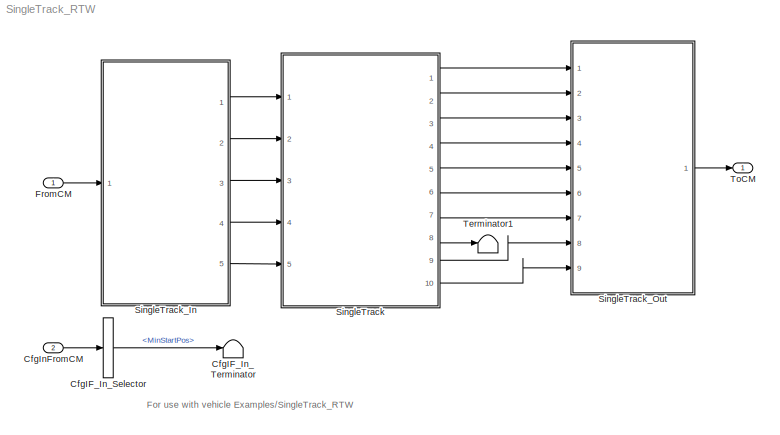
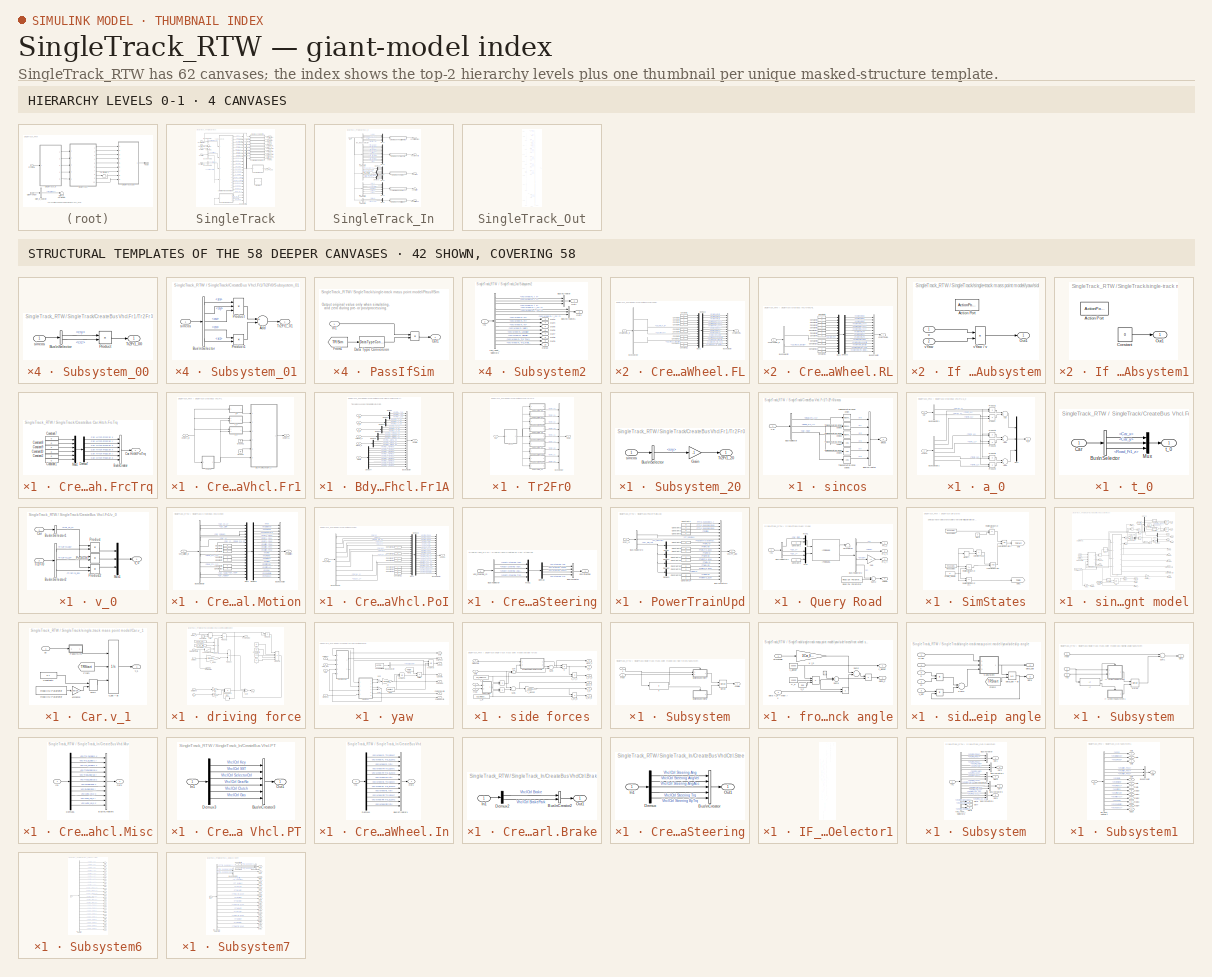
[diagram: thumbnail index - top-2 hierarchy levels (4 canvases) + 42 structural-template representatives of the remaining 58 canvases]
MODEL SingleTrack_RTW
KIND model
CONFIG InitFcn = vehicle = 'Car'; if ~length(which('cmcmd')), cmenv; end\nSingleTrack_RTW_bus
CONFIG PreLoadFcn = vehicle = 'Car'; if ~length(which('cmcmd')), cmenv; end\nSingleTrack_RTW_bus\nSingleTrack_RTW_params
BLOCK [BusSelector] CfgIF_In_Selector
  OutputSignals = MinStartPos
  Ports = [1, 1]
  SID = 9
BLOCK [Terminator] CfgIF_In_Terminator
  SID = 10
BLOCK [Inport] CfgInFromCM
  IconDisplay = Port number
  OutDataTypeStr = Bus: cmVehicle_CarCfgIn
  Port = 2
  SID = 8
BLOCK [Inport] FromCM
  IconDisplay = Port number
  OutDataTypeStr = Bus: cmVehicle_CarIn
  SID = 1
BLOCK [SubSystem] SingleTrack
  Ports = [5, 10]
  RequestExecContextInheritance = off
  SID = 255
  Variant = off
BLOCK [BusCreator] SingleTrack/Bus\nCreator
  DisplayOption = bar
  InheritFromInputs = on
  Inputs = 24
  Ports = [24, 1]
  SID = 261
BLOCK [BusSelector] SingleTrack/Bus\nSelector
  OutputSignals = VhclCtrl Steering Ang
  Ports = [1, 1]
  SID = 262
BLOCK [BusSelector] SingleTrack/Bus\nSelector1
  OutputSignals = VhclCtrl Brake
  Ports = [1, 1]
  SID = 263
BLOCK [BusSelector] SingleTrack/Bus\nSelector2
  OutputSignals = VhclCtrl Gas,VhclCtrl SelectorCtrl
  Ports = [1, 2]
  SID = 264
BLOCK [Outport] SingleTrack/Car.Hitch.FrcTrq
  IconDisplay = Port number
  Port = 8
  SID = 792
BLOCK [SubSystem] SingleTrack/CreateBus Car.Hitch.FrcTrq
  Ports = [0, 1]
  RequestExecContextInheritance = off
  SID = 265
  Variant = off
BLOCK [BusCreator] SingleTrack/CreateBus Car.Hitch.FrcTrq/Bus\nCreator
  DisplayOption = bar
  InheritFromInputs = on
  Inputs = 6
  Ports = [6, 1]
  SID = 266
BLOCK [Outport] SingleTrack/CreateBus Car.Hitch.FrcTrq/Car.Hitch.FrcTrq
  IconDisplay = Port number
  SID = 275
BLOCK [Constant] SingleTrack/CreateBus Car.Hitch.FrcTrq/Constant1
  SID = 267
  Value = 0
BLOCK [Constant] SingleTrack/CreateBus Car.Hitch.FrcTrq/Constant10
  SID = 268
  Value = 0
BLOCK [Constant] SingleTrack/CreateBus Car.Hitch.FrcTrq/Constant2
  SID = 269
  Value = 0
BLOCK [Constant] SingleTrack/CreateBus Car.Hitch.FrcTrq/Constant7
  SID = 270
  Value = 0
BLOCK [Constant] SingleTrack/CreateBus Car.Hitch.FrcTrq/Constant8
  SID = 271
  Value = 0
BLOCK [Constant] SingleTrack/CreateBus Car.Hitch.FrcTrq/Constant9
  SID = 272
  Value = 0
BLOCK [Demux] SingleTrack/CreateBus Car.Hitch.FrcTrq/Demux7
  Outputs = 6
  Ports = [1, 6]
  SID = 273
BLOCK [Mux] SingleTrack/CreateBus Car.Hitch.FrcTrq/Mux1
  DisplayOption = bar
  Inputs = 6
  Ports = [6, 1]
  SID = 274
BLOCK [SubSystem] SingleTrack/CreateBus Vhcl.Fr1
  Ports = [1, 1]
  RequestExecContextInheritance = off
  SID = 276
  Variant = off
BLOCK [SubSystem] SingleTrack/CreateBus Vhcl.Fr1/BdyFrame2Vhcl.Fr1A
  Ports = [6, 1]
  RequestExecContextInheritance = off
  SID = 278
  Variant = off
BLOCK [BusCreator] SingleTrack/CreateBus Vhcl.Fr1/BdyFrame2Vhcl.Fr1A/Bus\nCreator
  DisplayOption = bar
  InheritFromInputs = on
  Inputs = 24
  Ports = [24, 1]
  SID = 285
BLOCK [Demux] SingleTrack/CreateBus Vhcl.Fr1/BdyFrame2Vhcl.Fr1A/Demux
  DisplayOption = bar
  Outputs = 3
  Ports = [1, 3]
  SID = 286
BLOCK [Demux] SingleTrack/CreateBus Vhcl.Fr1/BdyFrame2Vhcl.Fr1A/Demux1
  DisplayOption = bar
  Outputs = 3
  Ports = [1, 3]
  SID = 287
BLOCK [Demux] SingleTrack/CreateBus Vhcl.Fr1/BdyFrame2Vhcl.Fr1A/Demux2
  DisplayOption = bar
  Outputs = 3
  Ports = [1, 3]
  SID = 288
BLOCK [Demux] SingleTrack/CreateBus Vhcl.Fr1/BdyFrame2Vhcl.Fr1A/Demux3
  DisplayOption = bar
  Outputs = 3
  Ports = [1, 3]
  SID = 289
BLOCK [Demux] SingleTrack/CreateBus Vhcl.Fr1/BdyFrame2Vhcl.Fr1A/Demux4
  DisplayOption = bar
  Outputs = 9
  Ports = [1, 9]
  SID = 290
BLOCK [Demux] SingleTrack/CreateBus Vhcl.Fr1/BdyFrame2Vhcl.Fr1A/Demux5
  DisplayOption = bar
  Outputs = 3
  Ports = [1, 3]
  SID = 291
BLOCK [Inport] SingleTrack/CreateBus Vhcl.Fr1/BdyFrame2Vhcl.Fr1A/Tr2Fr0
  IconDisplay = Port number
  Port = 6
  SID = 284
BLOCK [Outport] SingleTrack/CreateBus Vhcl.Fr1/BdyFrame2Vhcl.Fr1A/Vhcl.Fr1
  IconDisplay = Port number
  SID = 292
BLOCK [Inport] SingleTrack/CreateBus Vhcl.Fr1/BdyFrame2Vhcl.Fr1A/a_0
  IconDisplay = Port number
  Port = 3
  SID = 281
BLOCK [Inport] SingleTrack/CreateBus Vhcl.Fr1/BdyFrame2Vhcl.Fr1A/alpha_0
  IconDisplay = Port number
  Port = 5
  SID = 283
BLOCK [Inport] SingleTrack/CreateBus Vhcl.Fr1/BdyFrame2Vhcl.Fr1A/omega_0
  IconDisplay = Port number
  Port = 4
  SID = 282
BLOCK [Inport] SingleTrack/CreateBus Vhcl.Fr1/BdyFrame2Vhcl.Fr1A/t_0
  IconDisplay = Port number
  SID = 279
BLOCK [Inport] SingleTrack/CreateBus Vhcl.Fr1/BdyFrame2Vhcl.Fr1A/v_0
  IconDisplay = Port number
  Port = 2
  SID = 280
BLOCK [Ground] SingleTrack/CreateBus Vhcl.Fr1/Ground
  SID = 294
BLOCK [Ground] SingleTrack/CreateBus Vhcl.Fr1/Ground1
  SID = 295
BLOCK [SubSystem] SingleTrack/CreateBus Vhcl.Fr1/Tr2Fr0
  Ports = [1, 1]
  RequestExecContextInheritance = off
  SID = 296
  Variant = off
BLOCK [BusCreator] SingleTrack/CreateBus Vhcl.Fr1/Tr2Fr0/Bus\nCreator
  DisplayOption = bar
  InheritFromInputs = on
  Inputs = 9
  Ports = [9, 1]
  SID = 298
BLOCK [Inport] SingleTrack/CreateBus Vhcl.Fr1/Tr2Fr0/Car
  IconDisplay = Port number
  SID = 297
BLOCK [SubSystem] SingleTrack/CreateBus Vhcl.Fr1/Tr2Fr0/Subsystem_00
  Ports = [1, 1]
  RequestExecContextInheritance = off
  SID = 299
  Variant = off
BLOCK [BusSelector] SingleTrack/CreateBus Vhcl.Fr1/Tr2Fr0/Subsystem_00/Bus\nSelector
  OutputSignals = cry,crz
  Ports = [1, 2]
  SID = 301
BLOCK [Product] SingleTrack/CreateBus Vhcl.Fr1/Tr2Fr0/Subsystem_00/Product
  InputSameDT = off
  OutDataTypeStr = Inherit: Inherit via internal rule
  Ports = [2, 1]
  SID = 302
  SaturateOnIntegerOverflow = off
BLOCK [Outport] SingleTrack/CreateBus Vhcl.Fr1/Tr2Fr0/Subsystem_00/Tr2Fr1_00
  IconDisplay = Port number
  SID = 303
BLOCK [Inport] SingleTrack/CreateBus Vhcl.Fr1/Tr2Fr0/Subsystem_00/sincos
  IconDisplay = Port number
  SID = 300
BLOCK [SubSystem] SingleTrack/CreateBus Vhcl.Fr1/Tr2Fr0/Subsystem_01
  Ports = [1, 1]
  RequestExecContextInheritance = off
  SID = 304
  Variant = off
BLOCK [Sum] SingleTrack/CreateBus Vhcl.Fr1/Tr2Fr0/Subsystem_01/Add
  InputSameDT = off
  Inputs = +-
  OutDataTypeStr = Inherit: Inherit via internal rule
  Ports = [2, 1]
  SID = 306
  SaturateOnIntegerOverflow = off
BLOCK [BusSelector] SingleTrack/CreateBus Vhcl.Fr1/Tr2Fr0/Subsystem_01/Bus\nSelector
  OutputSignals = srx,sry,crz,crx,srz
  Ports = [1, 5]
  SID = 307
BLOCK [Product] SingleTrack/CreateBus Vhcl.Fr1/Tr2Fr0/Subsystem_01/Product
  InputSameDT = off
  Inputs = 3
  OutDataTypeStr = Inherit: Inherit via internal rule
  Ports = [3, 1]
  SID = 308
  SaturateOnIntegerOverflow = off
BLOCK [Product] SingleTrack/CreateBus Vhcl.Fr1/Tr2Fr0/Subsystem_01/Product1
  InputSameDT = off
  OutDataTypeStr = Inherit: Inherit via internal rule
  Ports = [2, 1]
  SID = 309
  SaturateOnIntegerOverflow = off
BLOCK [Outport] SingleTrack/CreateBus Vhcl.Fr1/Tr2Fr0/Subsystem_01/Tr2Fr1_01
  IconDisplay = Port number
  SID = 310
BLOCK [Inport] SingleTrack/CreateBus Vhcl.Fr1/Tr2Fr0/Subsystem_01/sincos
  IconDisplay = Port number
  SID = 305
BLOCK [SubSystem] SingleTrack/CreateBus Vhcl.Fr1/Tr2Fr0/Subsystem_02
  Ports = [1, 1]
  RequestExecContextInheritance = off
  SID = 311
  Variant = off
BLOCK [Sum] SingleTrack/CreateBus Vhcl.Fr1/Tr2Fr0/Subsystem_02/Add
  InputSameDT = off
  OutDataTypeStr = Inherit: Inherit via internal rule
  Ports = [2, 1]
  SID = 313
  SaturateOnIntegerOverflow = off
BLOCK [BusSelector] SingleTrack/CreateBus Vhcl.Fr1/Tr2Fr0/Subsystem_02/Bus\nSelector
  OutputSignals = crx,sry,crz,srx,srz
  Ports = [1, 5]
  SID = 314
BLOCK [Product] SingleTrack/CreateBus Vhcl.Fr1/Tr2Fr0/Subsystem_02/Product
  InputSameDT = off
  Inputs = 3
  OutDataTypeStr = Inherit: Inherit via internal rule
  Ports = [3, 1]
  SID = 315
  SaturateOnIntegerOverflow = off
BLOCK [Product] SingleTrack/CreateBus Vhcl.Fr1/Tr2Fr0/Subsystem_02/Product1
  InputSameDT = off
  OutDataTypeStr = Inherit: Inherit via internal rule
  Ports = [2, 1]
  SID = 316
  SaturateOnIntegerOverflow = off
BLOCK [Outport] SingleTrack/CreateBus Vhcl.Fr1/Tr2Fr0/Subsystem_02/Tr2Fr1_02
  IconDisplay = Port number
  SID = 317
BLOCK [Inport] SingleTrack/CreateBus Vhcl.Fr1/Tr2Fr0/Subsystem_02/sincos
  IconDisplay = Port number
  SID = 312
BLOCK [SubSystem] SingleTrack/CreateBus Vhcl.Fr1/Tr2Fr0/Subsystem_10
  Ports = [1, 1]
  RequestExecContextInheritance = off
  SID = 318
  Variant = off
BLOCK [BusSelector] SingleTrack/CreateBus Vhcl.Fr1/Tr2Fr0/Subsystem_10/Bus\nSelector
  OutputSignals = cry,srz
  Ports = [1, 2]
  SID = 320
BLOCK [Product] SingleTrack/CreateBus Vhcl.Fr1/Tr2Fr0/Subsystem_10/Product
  InputSameDT = off
  OutDataTypeStr = Inherit: Inherit via internal rule
  Ports = [2, 1]
  SID = 321
  SaturateOnIntegerOverflow = off
BLOCK [Outport] SingleTrack/CreateBus Vhcl.Fr1/Tr2Fr0/Subsystem_10/Tr2Fr1_10
  IconDisplay = Port number
  SID = 322
BLOCK [Inport] SingleTrack/CreateBus Vhcl.Fr1/Tr2Fr0/Subsystem_10/sincos
  IconDisplay = Port number
  SID = 319
BLOCK [SubSystem] SingleTrack/CreateBus Vhcl.Fr1/Tr2Fr0/Subsystem_11
  Ports = [1, 1]
  RequestExecContextInheritance = off
  SID = 323
  Variant = off
BLOCK [Sum] SingleTrack/CreateBus Vhcl.Fr1/Tr2Fr0/Subsystem_11/Add
  InputSameDT = off
  OutDataTypeStr = Inherit: Inherit via internal rule
  Ports = [2, 1]
  SID = 325
  SaturateOnIntegerOverflow = off
BLOCK [BusSelector] SingleTrack/CreateBus Vhcl.Fr1/Tr2Fr0/Subsystem_11/Bus\nSelector
  OutputSignals = srx,sry,srz,crx,crz
  Ports = [1, 5]
  SID = 326
BLOCK [Product] SingleTrack/CreateBus Vhcl.Fr1/Tr2Fr0/Subsystem_11/Product
  InputSameDT = off
  Inputs = 3
  OutDataTypeStr = Inherit: Inherit via internal rule
  Ports = [3, 1]
  SID = 327
  SaturateOnIntegerOverflow = off
BLOCK [Product] SingleTrack/CreateBus Vhcl.Fr1/Tr2Fr0/Subsystem_11/Product1
  InputSameDT = off
  OutDataTypeStr = Inherit: Inherit via internal rule
  Ports = [2, 1]
  SID = 328
  SaturateOnIntegerOverflow = off
BLOCK [Outport] SingleTrack/CreateBus Vhcl.Fr1/Tr2Fr0/Subsystem_11/Tr2Fr1_11
  IconDisplay = Port number
  SID = 329
BLOCK [Inport] SingleTrack/CreateBus Vhcl.Fr1/Tr2Fr0/Subsystem_11/sincos
  IconDisplay = Port number
  SID = 324
BLOCK [SubSystem] SingleTrack/CreateBus Vhcl.Fr1/Tr2Fr0/Subsystem_12
  Ports = [1, 1]
  RequestExecContextInheritance = off
  SID = 330
  Variant = off
BLOCK [Sum] SingleTrack/CreateBus Vhcl.Fr1/Tr2Fr0/Subsystem_12/Add
  InputSameDT = off
  Inputs = +-
  OutDataTypeStr = Inherit: Inherit via internal rule
  Ports = [2, 1]
  SID = 332
  SaturateOnIntegerOverflow = off
BLOCK [BusSelector] SingleTrack/CreateBus Vhcl.Fr1/Tr2Fr0/Subsystem_12/Bus\nSelector
  OutputSignals = crx,sry,srz,srx,crz
  Ports = [1, 5]
  SID = 333
BLOCK [Product] SingleTrack/CreateBus Vhcl.Fr1/Tr2Fr0/Subsystem_12/Product
  InputSameDT = off
  Inputs = 3
  OutDataTypeStr = Inherit: Inherit via internal rule
  Ports = [3, 1]
  SID = 334
  SaturateOnIntegerOverflow = off
BLOCK [Product] SingleTrack/CreateBus Vhcl.Fr1/Tr2Fr0/Subsystem_12/Product1
  InputSameDT = off
  OutDataTypeStr = Inherit: Inherit via internal rule
  Ports = [2, 1]
  SID = 335
  SaturateOnIntegerOverflow = off
BLOCK [Outport] SingleTrack/CreateBus Vhcl.Fr1/Tr2Fr0/Subsystem_12/Tr2Fr1_12
  IconDisplay = Port number
  SID = 336
BLOCK [Inport] SingleTrack/CreateBus Vhcl.Fr1/Tr2Fr0/Subsystem_12/sincos
  IconDisplay = Port number
  SID = 331
BLOCK [SubSystem] SingleTrack/CreateBus Vhcl.Fr1/Tr2Fr0/Subsystem_20
  Ports = [1, 1]
  RequestExecContextInheritance = off
  SID = 337
  Variant = off
BLOCK [BusSelector] SingleTrack/CreateBus Vhcl.Fr1/Tr2Fr0/Subsystem_20/Bus\nSelector
  OutputSignals = sry
  Ports = [1, 1]
  SID = 339
BLOCK [Gain] SingleTrack/CreateBus Vhcl.Fr1/Tr2Fr0/Subsystem_20/Gain
  Gain = -1
  OutDataTypeStr = Inherit: Inherit via internal rule
  ParamDataTypeStr = Inherit: Inherit via internal rule
  SID = 340
  SaturateOnIntegerOverflow = off
BLOCK [Outport] SingleTrack/CreateBus Vhcl.Fr1/Tr2Fr0/Subsystem_20/Tr2Fr1_20
  IconDisplay = Port number
  SID = 341
BLOCK [Inport] SingleTrack/CreateBus Vhcl.Fr1/Tr2Fr0/Subsystem_20/sincos
  IconDisplay = Port number
  SID = 338
BLOCK [SubSystem] SingleTrack/CreateBus Vhcl.Fr1/Tr2Fr0/Subsystem_21
  Ports = [1, 1]
  RequestExecContextInheritance = off
  SID = 342
  Variant = off
BLOCK [BusSelector] SingleTrack/CreateBus Vhcl.Fr1/Tr2Fr0/Subsystem_21/Bus\nSelector
  OutputSignals = srx,cry
  Ports = [1, 2]
  SID = 344
BLOCK [Product] SingleTrack/CreateBus Vhcl.Fr1/Tr2Fr0/Subsystem_21/Product
  InputSameDT = off
  OutDataTypeStr = Inherit: Inherit via internal rule
  Ports = [2, 1]
  SID = 345
  SaturateOnIntegerOverflow = off
BLOCK [Outport] SingleTrack/CreateBus Vhcl.Fr1/Tr2Fr0/Subsystem_21/Tr2Fr1_21
  IconDisplay = Port number
  SID = 346
BLOCK [Inport] SingleTrack/CreateBus Vhcl.Fr1/Tr2Fr0/Subsystem_21/sincos
  IconDisplay = Port number
  SID = 343
BLOCK [SubSystem] SingleTrack/CreateBus Vhcl.Fr1/Tr2Fr0/Subsystem_22
  Ports = [1, 1]
  RequestExecContextInheritance = off
  SID = 347
  Variant = off
BLOCK [BusSelector] SingleTrack/CreateBus Vhcl.Fr1/Tr2Fr0/Subsystem_22/Bus\nSelector
  OutputSignals = crx,cry
  Ports = [1, 2]
  SID = 349
BLOCK [Product] SingleTrack/CreateBus Vhcl.Fr1/Tr2Fr0/Subsystem_22/Product
  InputSameDT = off
  OutDataTypeStr = Inherit: Inherit via internal rule
  Ports = [2, 1]
  SID = 350
  SaturateOnIntegerOverflow = off
BLOCK [Outport] SingleTrack/CreateBus Vhcl.Fr1/Tr2Fr0/Subsystem_22/Tr2Fr1_22
  IconDisplay = Port number
  SID = 351
BLOCK [Inport] SingleTrack/CreateBus Vhcl.Fr1/Tr2Fr0/Subsystem_22/sincos
  IconDisplay = Port number
  SID = 348
BLOCK [Outport] SingleTrack/CreateBus Vhcl.Fr1/Tr2Fr0/Tr2Fr0
  IconDisplay = Port number
  SID = 363
BLOCK [SubSystem] SingleTrack/CreateBus Vhcl.Fr1/Tr2Fr0/sincos
  Ports = [1, 1]
  RequestExecContextInheritance = off
  SID = 352
  Variant = off
BLOCK [BusCreator] SingleTrack/CreateBus Vhcl.Fr1/Tr2Fr0/sincos/Bus\nCreator
  DisplayOption = bar
  InheritFromInputs = on
  Inputs = 6
  Ports = [6, 1]
  SID = 354
BLOCK [BusSelector] SingleTrack/CreateBus Vhcl.Fr1/Tr2Fr0/sincos/Bus\nSelector
  OutputSignals = Road_Fr1_rx,Road_Fr1_ry,Car_Yaw
  Ports = [1, 3]
  SID = 355
BLOCK [Inport] SingleTrack/CreateBus Vhcl.Fr1/Tr2Fr0/sincos/Car
  IconDisplay = Port number
  SID = 353
BLOCK [Trigonometry] SingleTrack/CreateBus Vhcl.Fr1/Tr2Fr0/sincos/Trigonometric\nFunction
  Ports = [1, 1]
  SID = 356
BLOCK [Trigonometry] SingleTrack/CreateBus Vhcl.Fr1/Tr2Fr0/sincos/Trigonometric\nFunction1
  Operator = cos
  Ports = [1, 1]
  SID = 357
BLOCK [Trigonometry] SingleTrack/CreateBus Vhcl.Fr1/Tr2Fr0/sincos/Trigonometric\nFunction2
  Ports = [1, 1]
  SID = 358
BLOCK [Trigonometry] SingleTrack/CreateBus Vhcl.Fr1/Tr2Fr0/sincos/Trigonometric\nFunction3
  Ports = [1, 1]
  SID = 359
BLOCK [Trigonometry] SingleTrack/CreateBus Vhcl.Fr1/Tr2Fr0/sincos/Trigonometric\nFunction4
  Operator = cos
  Ports = [1, 1]
  SID = 360
BLOCK [Trigonometry] SingleTrack/CreateBus Vhcl.Fr1/Tr2Fr0/sincos/Trigonometric\nFunction5
  Operator = cos
  Ports = [1, 1]
  SID = 361
BLOCK [Outport] SingleTrack/CreateBus Vhcl.Fr1/Tr2Fr0/sincos/sincos
  IconDisplay = Port number
  SID = 362
BLOCK [Outport] SingleTrack/CreateBus Vhcl.Fr1/Vhcl.Fr1A
  IconDisplay = Port number
  SID = 395
BLOCK [Inport] SingleTrack/CreateBus Vhcl.Fr1/Vhcl.Fr1_In
  IconDisplay = Port number
  SID = 277
BLOCK [SubSystem] SingleTrack/CreateBus Vhcl.Fr1/a_0
  Ports = [2, 1]
  RequestExecContextInheritance = off
  SID = 364
  Variant = off
BLOCK [Sum] SingleTrack/CreateBus Vhcl.Fr1/a_0/Add
  InputSameDT = off
  OutDataTypeStr = Inherit: Inherit via internal rule
  Ports = [2, 1]
  SID = 367
  SaturateOnIntegerOverflow = off
BLOCK [Sum] SingleTrack/CreateBus Vhcl.Fr1/a_0/Add1
  InputSameDT = off
  OutDataTypeStr = Inherit: Inherit via internal rule
  Ports = [2, 1]
  SID = 368
  SaturateOnIntegerOverflow = off
BLOCK [Sum] SingleTrack/CreateBus Vhcl.Fr1/a_0/Add2
  InputSameDT = off
  OutDataTypeStr = Inherit: Inherit via internal rule
  Ports = [2, 1]
  SID = 369
  SaturateOnIntegerOverflow = off
BLOCK [BusSelector] SingleTrack/CreateBus Vhcl.Fr1/a_0/Bus\nSelector1
  OutputSignals = Car_ax_1,Car_ay_1
  Ports = [1, 2]
  SID = 370
BLOCK [BusSelector] SingleTrack/CreateBus Vhcl.Fr1/a_0/Bus\nSelector2
  OutputSignals = Tr2Fr0_00,Tr2Fr0_01,Tr2Fr0_10,Tr2Fr1_11,Tr2Fr0_20,Tr2Fr0_21
  Ports = [1, 6]
  SID = 371
BLOCK [Inport] SingleTrack/CreateBus Vhcl.Fr1/a_0/Car
  IconDisplay = Port number
  SID = 365
BLOCK [Mux] SingleTrack/CreateBus Vhcl.Fr1/a_0/Mux1
  DisplayOption = bar
  Inputs = 3
  Ports = [3, 1]
  SID = 372
BLOCK [Product] SingleTrack/CreateBus Vhcl.Fr1/a_0/Product
  InputSameDT = off
  OutDataTypeStr = Inherit: Inherit via internal rule
  Ports = [2, 1]
  SID = 373
  SaturateOnIntegerOverflow = off
BLOCK [Product] SingleTrack/CreateBus Vhcl.Fr1/a_0/Product1
  InputSameDT = off
  OutDataTypeStr = Inherit: Inherit via internal rule
  Ports = [2, 1]
  SID = 374
  SaturateOnIntegerOverflow = off
BLOCK [Product] SingleTrack/CreateBus Vhcl.Fr1/a_0/Product2
  InputSameDT = off
  OutDataTypeStr = Inherit: Inherit via internal rule
  Ports = [2, 1]
  SID = 375
  SaturateOnIntegerOverflow = off
BLOCK [Product] SingleTrack/CreateBus Vhcl.Fr1/a_0/Product3
  InputSameDT = off
  OutDataTypeStr = Inherit: Inherit via internal rule
  Ports = [2, 1]
  SID = 376
  SaturateOnIntegerOverflow = off
BLOCK [Product] SingleTrack/CreateBus Vhcl.Fr1/a_0/Product4
  InputSameDT = off
  OutDataTypeStr = Inherit: Inherit via internal rule
  Ports = [2, 1]
  SID = 377
  SaturateOnIntegerOverflow = off
BLOCK [Product] SingleTrack/CreateBus Vhcl.Fr1/a_0/Product5
  InputSameDT = off
  OutDataTypeStr = Inherit: Inherit via internal rule
  Ports = [2, 1]
  SID = 378
  SaturateOnIntegerOverflow = off
BLOCK [Inport] SingleTrack/CreateBus Vhcl.Fr1/a_0/Tr2Fr0
  IconDisplay = Port number
  Port = 2
  SID = 366
BLOCK [Outport] SingleTrack/CreateBus Vhcl.Fr1/a_0/a_0
  IconDisplay = Port number
  SID = 379
BLOCK [SubSystem] SingleTrack/CreateBus Vhcl.Fr1/t_0
  Ports = [1, 1]
  RequestExecContextInheritance = off
  SID = 380
  Variant = off
BLOCK [BusSelector] SingleTrack/CreateBus Vhcl.Fr1/t_0/Bus\nSelector
  OutputSignals = Car_x,Car_y,Road_Fr1_z
  Ports = [1, 3]
  SID = 382
BLOCK [Inport] SingleTrack/CreateBus Vhcl.Fr1/t_0/Car
  IconDisplay = Port number
  SID = 381
BLOCK [Mux] SingleTrack/CreateBus Vhcl.Fr1/t_0/Mux
  DisplayOption = bar
  Inputs = 3
  Ports = [3, 1]
  SID = 383
BLOCK [Outport] SingleTrack/CreateBus Vhcl.Fr1/t_0/t_0
  IconDisplay = Port number
  SID = 384
BLOCK [SubSystem] SingleTrack/CreateBus Vhcl.Fr1/v_0
  Ports = [2, 1]
  RequestExecContextInheritance = off
  SID = 385
  Variant = off
BLOCK [BusSelector] SingleTrack/CreateBus Vhcl.Fr1/v_0/Bus\nSelector1
  OutputSignals = Car_vx_1
  Ports = [1, 1]
  SID = 388
BLOCK [BusSelector] SingleTrack/CreateBus Vhcl.Fr1/v_0/Bus\nSelector2
  OutputSignals = Tr2Fr0_00,Tr2Fr0_10,Tr2Fr0_20
  Ports = [1, 3]
  SID = 389
BLOCK [Inport] SingleTrack/CreateBus Vhcl.Fr1/v_0/Car
  IconDisplay = Port number
  SID = 386
BLOCK [Mux] SingleTrack/CreateBus Vhcl.Fr1/v_0/Mux1
  DisplayOption = bar
  Inputs = 3
  Ports = [3, 1]
  SID = 390
BLOCK [Product] SingleTrack/CreateBus Vhcl.Fr1/v_0/Product
  InputSameDT = off
  OutDataTypeStr = Inherit: Inherit via internal rule
  Ports = [2, 1]
  SID = 391
  SaturateOnIntegerOverflow = off
BLOCK [Product] SingleTrack/CreateBus Vhcl.Fr1/v_0/Product1
  InputSameDT = off
  OutDataTypeStr = Inherit: Inherit via internal rule
  Ports = [2, 1]
  SID = 392
  SaturateOnIntegerOverflow = off
BLOCK [Product] SingleTrack/CreateBus Vhcl.Fr1/v_0/Product2
  InputSameDT = off
  OutDataTypeStr = Inherit: Inherit via internal rule
  Ports = [2, 1]
  SID = 393
  SaturateOnIntegerOverflow = off
BLOCK [Inport] SingleTrack/CreateBus Vhcl.Fr1/v_0/Tr2Fr0
  IconDisplay = Port number
  Port = 2
  SID = 387
BLOCK [Outport] SingleTrack/CreateBus Vhcl.Fr1/v_0/v_0
  IconDisplay = Port number
  SID = 394
BLOCK [SubSystem] SingleTrack/CreateBus Vhcl.Motion
  Ports = [1, 1]
  RequestExecContextInheritance = off
  SID = 396
  Variant = off
BLOCK [BusCreator] SingleTrack/CreateBus Vhcl.Motion/Bus\nCreator
  DisplayOption = bar
  InheritFromInputs = on
  Inputs = 19
  Ports = [19, 1]
  SID = 398
BLOCK [BusSelector] SingleTrack/CreateBus Vhcl.Motion/Bus\nSelector
  OutputSignals = Car_vx_1,Car_Dist,Car_sRoad,Car_x,Car_y,Road_Fr1_z,Road_Fr1_rx,Road_Fr1_ry,Car_Yaw,Car_Yawp,Car_Yawpp
  Ports = [1, 11]
  SID = 399
BLOCK [Constant] SingleTrack/CreateBus Vhcl.Motion/Constant10
  SID = 400
  Value = 0
BLOCK [Constant] SingleTrack/CreateBus Vhcl.Motion/Constant2
  SID = 401
  Value = 0
BLOCK [Constant] SingleTrack/CreateBus Vhcl.Motion/Constant3
  SID = 402
  Value = 0
BLOCK [Constant] SingleTrack/CreateBus Vhcl.Motion/Constant4
  SID = 403
  Value = 0
BLOCK [Constant] SingleTrack/CreateBus Vhcl.Motion/Constant6
  SID = 404
  Value = 0
BLOCK [Constant] SingleTrack/CreateBus Vhcl.Motion/Constant7
  SID = 405
  Value = 0
BLOCK [Constant] SingleTrack/CreateBus Vhcl.Motion/Constant9
  SID = 406
  Value = 0
BLOCK [Demux] SingleTrack/CreateBus Vhcl.Motion/Demux3
  Outputs = 19
  Ports = [1, 19]
  SID = 407
BLOCK [Mux] SingleTrack/CreateBus Vhcl.Motion/Mux1
  DisplayOption = bar
  Inputs = 19
  Ports = [19, 1]
  SID = 408
BLOCK [Outport] SingleTrack/CreateBus Vhcl.Motion/Vhcl .Motion
  IconDisplay = Port number
  SID = 409
BLOCK [Inport] SingleTrack/CreateBus Vhcl.Motion/Vhcl_Motion_In
  IconDisplay = Port number
  SID = 397
BLOCK [SubSystem] SingleTrack/CreateBus Vhcl.PoI
  Ports = [1, 1]
  RequestExecContextInheritance = off
  SID = 410
  Variant = off
BLOCK [BusCreator] SingleTrack/CreateBus Vhcl.PoI/Bus\nCreator
  DisplayOption = bar
  InheritFromInputs = on
  Inputs = 18
  Ports = [18, 1]
  SID = 412
BLOCK [BusSelector] SingleTrack/CreateBus Vhcl.PoI/Bus\nSelector
  OutputSignals = Car_x,Car_y,Road_Fr1_z,Car_vx,Car_vy,Car_ax,Car_ay,Car_vx_1,Car_ax_1,Car_ay_1
  Ports = [1, 10]
  SID = 413
BLOCK [Constant] SingleTrack/CreateBus Vhcl.PoI/Constant11
  SID = 414
  Value = 0
BLOCK [Constant] SingleTrack/CreateBus Vhcl.PoI/Constant12
  SID = 415
  Value = 0
BLOCK [Constant] SingleTrack/CreateBus Vhcl.PoI/Constant13
  SID = 416
  Value = 0
BLOCK [Constant] SingleTrack/CreateBus Vhcl.PoI/Constant15
  SID = 417
  Value = 0
BLOCK [Constant] SingleTrack/CreateBus Vhcl.PoI/Constant16
  SID = 418
  Value = 0
BLOCK [Constant] SingleTrack/CreateBus Vhcl.PoI/Constant17
  SID = 419
  Value = 0
BLOCK [Constant] SingleTrack/CreateBus Vhcl.PoI/Constant18
  SID = 420
  Value = 0
BLOCK [Constant] SingleTrack/CreateBus Vhcl.PoI/Constant19
  SID = 421
  Value = 0
BLOCK [Demux] SingleTrack/CreateBus Vhcl.PoI/Demux3
  Outputs = 18
  Ports = [1, 18]
  SID = 422
BLOCK [Mux] SingleTrack/CreateBus Vhcl.PoI/Mux1
  DisplayOption = bar
  Inputs = 18
  Ports = [18, 1]
  SID = 423
BLOCK [Outport] SingleTrack/CreateBus Vhcl.PoI/Vhcl.PoI
  IconDisplay = Port number
  SID = 424
BLOCK [Inport] SingleTrack/CreateBus Vhcl.PoI/Vhcl_POI_In
  IconDisplay = Port number
  SID = 411
BLOCK [SubSystem] SingleTrack/CreateBus Vhcl.Steering
  Ports = [1, 1]
  RequestExecContextInheritance = off
  SID = 425
  Variant = off
BLOCK [BusCreator] SingleTrack/CreateBus Vhcl.Steering/Bus\nCreator
  DisplayOption = bar
  InheritFromInputs = on
  Inputs = 4
  Ports = [4, 1]
  SID = 427
BLOCK [BusSelector] SingleTrack/CreateBus Vhcl.Steering/Bus\nSelector
  OutputSignals = VhclCtrl Steering Ang,VhclCtrl Steering AngVel,VhclCtrl Steering AngAcc,VhclCtrl Steering Trq
  Ports = [1, 4]
  SID = 428
BLOCK [Demux] SingleTrack/CreateBus Vhcl.Steering/Demux
  Ports = [1, 4]
  SID = 429
BLOCK [Mux] SingleTrack/CreateBus Vhcl.Steering/Mux1
  DisplayOption = bar
  Ports = [4, 1]
  SID = 430
BLOCK [Outport] SingleTrack/CreateBus Vhcl.Steering/Vhcl.Steering
  IconDisplay = Port number
  SID = 431
BLOCK [Inport] SingleTrack/CreateBus Vhcl.Steering/Vhcl_Steering_In
  IconDisplay = Port number
  SID = 426
BLOCK [SubSystem] SingleTrack/CreateBus Vhcl.Wheel.FL
  Ports = [1, 1]
  RequestExecContextInheritance = off
  SID = 432
  Variant = off
BLOCK [BusCreator] SingleTrack/CreateBus Vhcl.Wheel.FL/Bus\nCreator
  DisplayOption = bar
  InheritFromInputs = on
  Inputs = 14
  Ports = [14, 1]
  SID = 434
BLOCK [BusSelector] SingleTrack/CreateBus Vhcl.Wheel.FL/Bus\nSelector
  OutputSignals = Car_Whl_F_rz,Car_Whl_Fz,Car_Whl_F_SideSlip
  Ports = [1, 3]
  SID = 435
BLOCK [Constant] SingleTrack/CreateBus Vhcl.Wheel.FL/Constant1
  SID = 436
  Value = 0
BLOCK [Constant] SingleTrack/CreateBus Vhcl.Wheel.FL/Constant10
  SID = 437
  Value = 0
BLOCK [Constant] SingleTrack/CreateBus Vhcl.Wheel.FL/Constant11
  SID = 438
  Value = 0
BLOCK [Constant] SingleTrack/CreateBus Vhcl.Wheel.FL/Constant12
  SID = 439
  Value = 0
BLOCK [Constant] SingleTrack/CreateBus Vhcl.Wheel.FL/Constant2
  SID = 440
  Value = 0
BLOCK [Constant] SingleTrack/CreateBus Vhcl.Wheel.FL/Constant3
  SID = 441
  Value = 0
BLOCK [Constant] SingleTrack/CreateBus Vhcl.Wheel.FL/Constant4
  SID = 442
  Value = 0
BLOCK [Constant] SingleTrack/CreateBus Vhcl.Wheel.FL/Constant5
  SID = 443
  Value = 0
BLOCK [Constant] SingleTrack/CreateBus Vhcl.Wheel.FL/Constant6
  SID = 444
  Value = 0
BLOCK [Constant] SingleTrack/CreateBus Vhcl.Wheel.FL/Constant8
  SID = 445
  Value = 0
BLOCK [Constant] SingleTrack/CreateBus Vhcl.Wheel.FL/Constant9
  SID = 446
  Value = 0
BLOCK [Demux] SingleTrack/CreateBus Vhcl.Wheel.FL/Demux3
  Outputs = 14
  Ports = [1, 14]
  SID = 447
BLOCK [Mux] SingleTrack/CreateBus Vhcl.Wheel.FL/Mux1
  DisplayOption = bar
  Inputs = 14
  Ports = [14, 1]
  SID = 448
BLOCK [Outport] SingleTrack/CreateBus Vhcl.Wheel.FL/Vhcl.Wheel.FL
  IconDisplay = Port number
  SID = 449
BLOCK [Inport] SingleTrack/CreateBus Vhcl.Wheel.FL/Vhcl.Wheel.FL_In
  IconDisplay = Port number
  SID = 433
BLOCK [SubSystem] SingleTrack/CreateBus Vhcl.Wheel.FR
  Ports = [1, 1]
  RequestExecContextInheritance = off
  SID = 450
  Variant = off
BLOCK [BusCreator] SingleTrack/CreateBus Vhcl.Wheel.FR/Bus\nCreator
  DisplayOption = bar
  InheritFromInputs = on
  Inputs = 14
  Ports = [14, 1]
  SID = 452
BLOCK [BusSelector] SingleTrack/CreateBus Vhcl.Wheel.FR/Bus\nSelector
  OutputSignals = Car_Whl_F_rz,Car_Whl_Fz,Car_Whl_F_SideSlip
  Ports = [1, 3]
  SID = 453
BLOCK [Constant] SingleTrack/CreateBus Vhcl.Wheel.FR/Constant1
  SID = 454
  Value = 0
BLOCK [Constant] SingleTrack/CreateBus Vhcl.Wheel.FR/Constant10
  SID = 455
  Value = 0
BLOCK [Constant] SingleTrack/CreateBus Vhcl.Wheel.FR/Constant11
  SID = 456
  Value = 0
BLOCK [Constant] SingleTrack/CreateBus Vhcl.Wheel.FR/Constant12
  SID = 457
  Value = 0
BLOCK [Constant] SingleTrack/CreateBus Vhcl.Wheel.FR/Constant2
  SID = 458
  Value = 0
BLOCK [Constant] SingleTrack/CreateBus Vhcl.Wheel.FR/Constant3
  SID = 459
  Value = 0
BLOCK [Constant] SingleTrack/CreateBus Vhcl.Wheel.FR/Constant4
  SID = 460
  Value = 0
BLOCK [Constant] SingleTrack/CreateBus Vhcl.Wheel.FR/Constant5
  SID = 461
  Value = 0
BLOCK [Constant] SingleTrack/CreateBus Vhcl.Wheel.FR/Constant6
  SID = 462
  Value = 0
BLOCK [Constant] SingleTrack/CreateBus Vhcl.Wheel.FR/Constant7
  SID = 463
  Value = 0
BLOCK [Constant] SingleTrack/CreateBus Vhcl.Wheel.FR/Constant9
  SID = 464
  Value = 0
BLOCK [Demux] SingleTrack/CreateBus Vhcl.Wheel.FR/Demux3
  Outputs = 14
  Ports = [1, 14]
  SID = 465
BLOCK [Mux] SingleTrack/CreateBus Vhcl.Wheel.FR/Mux1
  DisplayOption = bar
  Inputs = 14
  Ports = [14, 1]
  SID = 466
BLOCK [Outport] SingleTrack/CreateBus Vhcl.Wheel.FR/Vhcl.Wheel.FR
  IconDisplay = Port number
  SID = 467
BLOCK [Inport] SingleTrack/CreateBus Vhcl.Wheel.FR/Vhcl.Wheel.FR_In
  IconDisplay = Port number
  SID = 451
BLOCK [SubSystem] SingleTrack/CreateBus Vhcl.Wheel.RL
  Ports = [1, 1]
  RequestExecContextInheritance = off
  SID = 468
  Variant = off
BLOCK [BusCreator] SingleTrack/CreateBus Vhcl.Wheel.RL/Bus\nCreator
  DisplayOption = bar
  InheritFromInputs = on
  Inputs = 14
  Ports = [14, 1]
  SID = 470
BLOCK [BusSelector] SingleTrack/CreateBus Vhcl.Wheel.RL/Bus\nSelector
  OutputSignals = Car_Whl_Fz,Car_Whl_R_SideSlip
  Ports = [1, 2]
  SID = 471
BLOCK [Constant] SingleTrack/CreateBus Vhcl.Wheel.RL/Constant1
  SID = 472
  Value = 0
BLOCK [Constant] SingleTrack/CreateBus Vhcl.Wheel.RL/Constant10
  SID = 473
  Value = 0
BLOCK [Constant] SingleTrack/CreateBus Vhcl.Wheel.RL/Constant11
  SID = 474
  Value = 0
BLOCK [Constant] SingleTrack/CreateBus Vhcl.Wheel.RL/Constant12
  SID = 475
  Value = 0
BLOCK [Constant] SingleTrack/CreateBus Vhcl.Wheel.RL/Constant13
  SID = 476
  Value = 0
BLOCK [Constant] SingleTrack/CreateBus Vhcl.Wheel.RL/Constant2
  SID = 477
  Value = 0
BLOCK [Constant] SingleTrack/CreateBus Vhcl.Wheel.RL/Constant3
  SID = 478
  Value = 0
BLOCK [Constant] SingleTrack/CreateBus Vhcl.Wheel.RL/Constant4
  SID = 479
  Value = 0
BLOCK [Constant] SingleTrack/CreateBus Vhcl.Wheel.RL/Constant5
  SID = 480
  Value = 0
BLOCK [Constant] SingleTrack/CreateBus Vhcl.Wheel.RL/Constant6
  SID = 481
  Value = 0
BLOCK [Constant] SingleTrack/CreateBus Vhcl.Wheel.RL/Constant7
  SID = 482
  Value = 0
BLOCK [Constant] SingleTrack/CreateBus Vhcl.Wheel.RL/Constant9
  SID = 483
  Value = 0
BLOCK [Demux] SingleTrack/CreateBus Vhcl.Wheel.RL/Demux3
  Outputs = 14
  Ports = [1, 14]
  SID = 484
BLOCK [Mux] SingleTrack/CreateBus Vhcl.Wheel.RL/Mux1
  DisplayOption = bar
  Inputs = 14
  Ports = [14, 1]
  SID = 485
BLOCK [Outport] SingleTrack/CreateBus Vhcl.Wheel.RL/Vhcl.Wheel.RL
  IconDisplay = Port number
  SID = 486
BLOCK [Inport] SingleTrack/CreateBus Vhcl.Wheel.RL/Vhcl.Wheel.RL_In
  IconDisplay = Port number
  SID = 469
BLOCK [SubSystem] SingleTrack/CreateBus Vhcl.Wheel.RR
  Ports = [1, 1]
  RequestExecContextInheritance = off
  SID = 487
  Variant = off
BLOCK [BusCreator] SingleTrack/CreateBus Vhcl.Wheel.RR/Bus\nCreator
  DisplayOption = bar
  InheritFromInputs = on
  Inputs = 14
  Ports = [14, 1]
  SID = 489
BLOCK [BusSelector] SingleTrack/CreateBus Vhcl.Wheel.RR/Bus\nSelector
  OutputSignals = Car_Whl_Fz,Car_Whl_R_SideSlip
  Ports = [1, 2]
  SID = 490
BLOCK [Constant] SingleTrack/CreateBus Vhcl.Wheel.RR/Constant1
  SID = 491
  Value = 0
BLOCK [Constant] SingleTrack/CreateBus Vhcl.Wheel.RR/Constant10
  SID = 492
  Value = 0
BLOCK [Constant] SingleTrack/CreateBus Vhcl.Wheel.RR/Constant11
  SID = 493
  Value = 0
BLOCK [Constant] SingleTrack/CreateBus Vhcl.Wheel.RR/Constant12
  SID = 494
  Value = 0
BLOCK [Constant] SingleTrack/CreateBus Vhcl.Wheel.RR/Constant13
  SID = 495
  Value = 0
BLOCK [Constant] SingleTrack/CreateBus Vhcl.Wheel.RR/Constant2
  SID = 496
  Value = 0
BLOCK [Constant] SingleTrack/CreateBus Vhcl.Wheel.RR/Constant3
  SID = 497
  Value = 0
BLOCK [Constant] SingleTrack/CreateBus Vhcl.Wheel.RR/Constant4
  SID = 498
  Value = 0
BLOCK [Constant] SingleTrack/CreateBus Vhcl.Wheel.RR/Constant5
  SID = 499
  Value = 0
BLOCK [Constant] SingleTrack/CreateBus Vhcl.Wheel.RR/Constant6
  SID = 500
  Value = 0
BLOCK [Constant] SingleTrack/CreateBus Vhcl.Wheel.RR/Constant7
  SID = 501
  Value = 0
BLOCK [Constant] SingleTrack/CreateBus Vhcl.Wheel.RR/Constant9
  SID = 502
  Value = 0
BLOCK [Demux] SingleTrack/CreateBus Vhcl.Wheel.RR/Demux3
  Outputs = 14
  Ports = [1, 14]
  SID = 503
BLOCK [Mux] SingleTrack/CreateBus Vhcl.Wheel.RR/Mux1
  DisplayOption = bar
  Inputs = 14
  Ports = [14, 1]
  SID = 504
BLOCK [Outport] SingleTrack/CreateBus Vhcl.Wheel.RR/Vhcl.Wheel.RR
  IconDisplay = Port number
  SID = 505
BLOCK [Inport] SingleTrack/CreateBus Vhcl.Wheel.RR/Vhcl.Wheel.RR_In
  IconDisplay = Port number
  SID = 488
BLOCK [SubSystem] SingleTrack/PowerTrainUpd
  Ports = [1, 1]
  RequestExecContextInheritance = off
  SID = 506
  Variant = off
BLOCK [BusCreator] SingleTrack/PowerTrainUpd/Bus\nCreator3
  DisplayOption = bar
  InheritFromInputs = on
  Inputs = 19
  Ports = [19, 1]
  SID = 508
BLOCK [BusSelector] SingleTrack/PowerTrainUpd/Bus\nSelector3
  OutputSignals = PT_nEngine,PT_GearNo,Car_Whl_rot
  Ports = [1, 3]
  SID = 509
BLOCK [Constant] SingleTrack/PowerTrainUpd/Constant1
  SID = 510
  Value = 0
BLOCK [Constant] SingleTrack/PowerTrainUpd/Constant17
  SID = 511
  Value = 0
BLOCK [Constant] SingleTrack/PowerTrainUpd/Constant18
  SID = 512
  Value = 0
BLOCK [Constant] SingleTrack/PowerTrainUpd/Constant2
  SID = 513
  Value = 0
BLOCK [Constant] SingleTrack/PowerTrainUpd/Constant20
  SID = 514
  Value = 0
BLOCK [Constant] SingleTrack/PowerTrainUpd/Constant21
  SID = 515
  Value = 0
BLOCK [Constant] SingleTrack/PowerTrainUpd/Constant23
  SID = 516
  Value = 0
BLOCK [Constant] SingleTrack/PowerTrainUpd/Constant24
  SID = 517
  Value = 0
BLOCK [Constant] SingleTrack/PowerTrainUpd/Constant3
  SID = 518
  Value = 0
BLOCK [Constant] SingleTrack/PowerTrainUpd/Constant5
  SID = 519
BLOCK [Constant] SingleTrack/PowerTrainUpd/Constant6
  SID = 520
  Value = 0
BLOCK [Constant] SingleTrack/PowerTrainUpd/Constant7
  SID = 521
  Value = 0
BLOCK [Constant] SingleTrack/PowerTrainUpd/Constant8
  SID = 522
  Value = 0
BLOCK [Demux] SingleTrack/PowerTrainUpd/Demux
  DisplayOption = bar
  Outputs = 1
  Ports = [1, 1]
  SID = 523
BLOCK [Demux] SingleTrack/PowerTrainUpd/Demux1
  DisplayOption = bar
  Outputs = 1
  Ports = [1, 1]
  SID = 524
BLOCK [Demux] SingleTrack/PowerTrainUpd/Demux2
  DisplayOption = bar
  Outputs = 1
  Ports = [1, 1]
  SID = 525
BLOCK [Demux] SingleTrack/PowerTrainUpd/Demux3
  DisplayOption = bar
  Outputs = 1
  Ports = [1, 1]
  SID = 526
BLOCK [Inport] SingleTrack/PowerTrainUpd/Sync_In
  IconDisplay = Port number
  SID = 507
BLOCK [Outport] SingleTrack/PowerTrainUpd/Vhcl.PT_Upd
  IconDisplay = Port number
  SID = 527
BLOCK [SubSystem] SingleTrack/Query Road
  Ports = [1, 4]
  RequestExecContextInheritance = off
  SID = 528
  Variant = off
BLOCK [BusSelector] SingleTrack/Query Road/Bus\nSelector1
  OutputSignals = Car_Dist,Car_x,Car_y
  Ports = [1, 3]
  SID = 530
BLOCK [BusSelector] SingleTrack/Query Road/Bus\nSelector2
  OutputSignals = z,slope,grade,s
  Ports = [1, 4]
  SID = 531
BLOCK [Constant] SingleTrack/Query Road/Constant1
  SID = 532
  Value = 0
BLOCK [Constant] SingleTrack/Query Road/Constant2
  SID = 533
  Value = 0
BLOCK [Outport] SingleTrack/Query Road/Fr1_rx
  IconDisplay = Port number
  Port = 2
  SID = 542
BLOCK [Outport] SingleTrack/Query Road/Fr1_ry
  IconDisplay = Port number
  Port = 3
  SID = 543
BLOCK [Outport] SingleTrack/Query Road/Fr1_z
  IconDisplay = Port number
  SID = 541
BLOCK [Reference] SingleTrack/Query Road/IPGRoad5  REF=CarMaker4SL/IPGRoad5
  Ports = [2, 2]
  SID = 534
  SourceBlock = CarMaker4SL/IPGRoad5
  SourceType = Query IPGRoad
  xabort = on
  xconsiderbumps = off
  xevalmode = RouteEval XY_SZ
  xname = IPG Road
  xusepath = off
  xwithcurve = off
BLOCK [Inport] SingleTrack/Query Road/In1
  IconDisplay = Port number
  SID = 529
BLOCK [Mux] SingleTrack/Query Road/Mux
  DisplayOption = bar
  Inputs = 3
  Ports = [3, 1]
  SID = 535
BLOCK [Mux] SingleTrack/Query Road/Mux1
  DisplayOption = bar
  Inputs = 2
  Ports = [2, 1]
  SID = 536
BLOCK [Reference] SingleTrack/Query Road/Read CM Parameter  REF=CarMaker4SL/Read CM Parameter
  Ports = [0, 1]
  SID = 537
  SourceBlock = CarMaker4SL/Read CM Parameter
  SourceType = Read CarMaker Infofile Parameter
  xdefaults = 0
  xfile = Vehicle
  xkey = Wheel.fl.pos
  xmuxed = on
  xnout = 1
BLOCK [Sum] SingleTrack/Query Road/Sum2
  Ports = [2, 1]
  SID = 538
BLOCK [Terminator] SingleTrack/Query Road/Terminator
  SID = 539
BLOCK [Gain] SingleTrack/Query Road/neg
  Gain = -1
  SID = 540
BLOCK [Outport] SingleTrack/Query Road/sRoad
  IconDisplay = Port number
  Port = 4
  SID = 544
BLOCK [SubSystem] SingleTrack/SimStates
  Ports = []
  RequestExecContextInheritance = off
  SID = 545
  Variant = off
BLOCK [Goto] SingleTrack/SimStates/Goto
  GotoTag = TRStart
  SID = 546
  TagVisibility = global
BLOCK [Goto] SingleTrack/SimStates/Goto1
  GotoTag = TRSim
  SID = 547
  TagVisibility = global
BLOCK [Logic] SingleTrack/SimStates/Logical\nOperator
  AllPortsSameDT = off
  OutDataTypeStr = boolean
  Ports = [2, 1]
  SID = 548
BLOCK [Logic] SingleTrack/SimStates/Logical\nOperator1
  AllPortsSameDT = off
  Operator = OR
  OutDataTypeStr = boolean
  Ports = [2, 1]
  SID = 549
BLOCK [Memory] SingleTrack/SimStates/Memory
  SID = 550
BLOCK [Reference] SingleTrack/SimStates/Read CM Dict  REF=CarMaker4SL/Read CM Dict
  Ports = [0, 1]
  SID = 551
  SourceBlock = CarMaker4SL/Read CM Dict
  SourceType = Read CarMaker Dictionary Variable(s)
  xname = SC.State
  xsync = off
BLOCK [Reference] SingleTrack/SimStates/Read CM Dict1  REF=CarMaker4SL/Read CM Dict
  Ports = [0, 1]
  SID = 552
  SourceBlock = CarMaker4SL/Read CM Dict
  SourceType = Read CarMaker Dictionary Variable(s)
  xname = Time
  xsync = off
BLOCK [RelationalOperator] SingleTrack/SimStates/Relational\nOperator
  InputSameDT = off
  Operator = <=
  OutDataTypeStr = boolean
  Ports = [2, 1]
  SID = 553
BLOCK [RelationalOperator] SingleTrack/SimStates/Relational\nOperator1
  InputSameDT = off
  Operator = ==
  OutDataTypeStr = boolean
  Ports = [2, 1]
  SID = 554
BLOCK [RelationalOperator] SingleTrack/SimStates/Relational\nOperator2
  InputSameDT = off
  Operator = ==
  OutDataTypeStr = boolean
  Ports = [2, 1]
  SID = 555
BLOCK [Constant] SingleTrack/SimStates/SCState_Simulate
  SID = 556
  Value = 8
BLOCK [Constant] SingleTrack/SimStates/Zero
  SID = 557
  Value = 0
BLOCK [RelationalOperator] SingleTrack/SimStates/detect increase
  InputSameDT = off
  Operator = >
  OutDataTypeStr = boolean
  Ports = [2, 1]
  SID = 558
BLOCK [Terminator] SingleTrack/Terminator
  SID = 560
BLOCK [Terminator] SingleTrack/Terminator1
  SID = 561
BLOCK [Outport] SingleTrack/Vhcl.Fr1A
  IconDisplay = Port number
  Port = 9
  SID = 793
BLOCK [Inport] SingleTrack/Vhcl.Misc
  IconDisplay = Port number
  Port = 3
  SID = 258
BLOCK [Outport] SingleTrack/Vhcl.Motion
  IconDisplay = Port number
  Port = 2
  SID = 786
BLOCK [Outport] SingleTrack/Vhcl.POI
  IconDisplay = Port number
  Port = 3
  SID = 787
BLOCK [Outport] SingleTrack/Vhcl.Steering
  IconDisplay = Port number
  SID = 785
BLOCK [Outport] SingleTrack/Vhcl.Wheel.FL
  IconDisplay = Port number
  Port = 4
  SID = 788
BLOCK [Outport] SingleTrack/Vhcl.Wheel.FR
  IconDisplay = Port number
  Port = 5
  SID = 789
BLOCK [Inport] SingleTrack/Vhcl.Wheel.In
  IconDisplay = Port number
  Port = 2
  SID = 257
BLOCK [Outport] SingleTrack/Vhcl.Wheel.RL
  IconDisplay = Port number
  Port = 6
  SID = 790
BLOCK [Outport] SingleTrack/Vhcl.Wheel.RR
  IconDisplay = Port number
  Port = 7
  SID = 791
BLOCK [Inport] SingleTrack/VhclCtrl.Brake
  IconDisplay = Port number
  Port = 4
  SID = 259
BLOCK [Inport] SingleTrack/VhclCtrl.PT
  IconDisplay = Port number
  Port = 5
  SID = 260
BLOCK [Inport] SingleTrack/VhclCtrl.Steering
  IconDisplay = Port number
  SID = 256
BLOCK [Outport] SingleTrack/Vhcl_PT_Upd
  IconDisplay = Port number
  Port = 10
  SID = 794
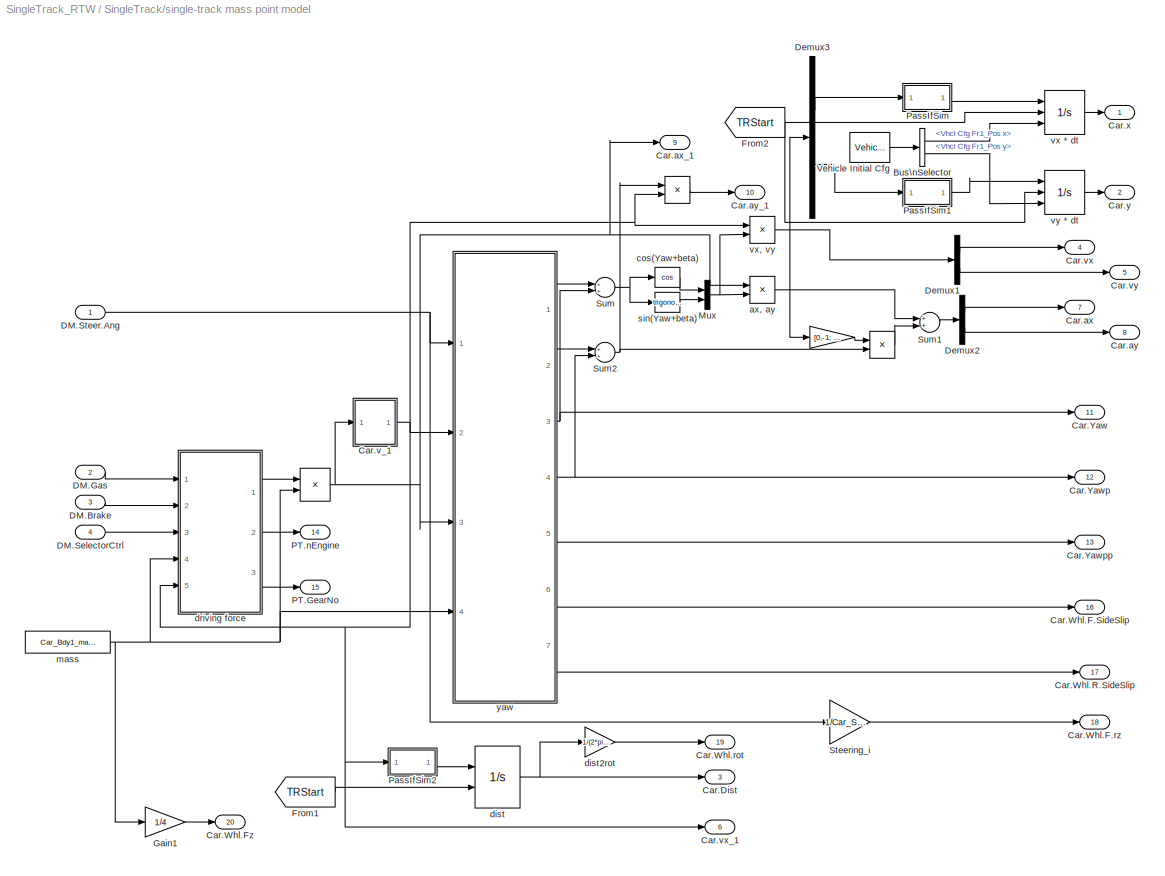
BLOCK [SubSystem] SingleTrack/single-track mass point model
  Ports = [4, 20]
  RequestExecContextInheritance = off
  SID = 562
  Variant = off
BLOCK [Gain] SingleTrack/single-track mass point model/ 
  Gain = [0,-1; 1,0]
  Multiplication = Matrix(K*u)
  SID = 567
BLOCK [Product] SingleTrack/single-track mass point model/   
  Ports = [2, 1]
  RndMeth = Floor
  SID = 568
BLOCK [Product] SingleTrack/single-track mass point model/     
  Ports = [2, 1]
  RndMeth = Floor
  SID = 569
BLOCK [Product] SingleTrack/single-track mass point model/      
  Inputs = */
  Ports = [2, 1]
  RndMeth = Floor
  SID = 570
BLOCK [BusSelector] SingleTrack/single-track mass point model/Bus\nSelector
  OutputSignals = Vhcl Cfg Fr1_Pos x,Vhcl Cfg Fr1_Pos y
  Ports = [1, 2]
  SID = 571
BLOCK [Outport] SingleTrack/single-track mass point model/Car.Dist
  IconDisplay = Port number
  Port = 3
  SID = 767
BLOCK [Outport] SingleTrack/single-track mass point model/Car.Whl.F.SideSlip
  IconDisplay = Port number
  Port = 16
  SID = 780
BLOCK [Outport] SingleTrack/single-track mass point model/Car.Whl.F.rz
  IconDisplay = Port number
  Port = 18
  SID = 782
BLOCK [Outport] SingleTrack/single-track mass point model/Car.Whl.Fz
  IconDisplay = Port number
  Port = 20
  SID = 784
BLOCK [Outport] SingleTrack/single-track mass point model/Car.Whl.R.SideSlip
  IconDisplay = Port number
  Port = 17
  SID = 781
BLOCK [Outport] SingleTrack/single-track mass point model/Car.Whl.rot
  IconDisplay = Port number
  Port = 19
  SID = 783
BLOCK [Outport] SingleTrack/single-track mass point model/Car.Yaw 
  IconDisplay = Port number
  Port = 11
  SID = 775
BLOCK [Outport] SingleTrack/single-track mass point model/Car.Yawp
  IconDisplay = Port number
  Port = 12
  SID = 776
BLOCK [Outport] SingleTrack/single-track mass point model/Car.Yawpp
  IconDisplay = Port number
  Port = 13
  SID = 777
BLOCK [Outport] SingleTrack/single-track mass point model/Car.ax
  IconDisplay = Port number
  Port = 7
  SID = 771
BLOCK [Outport] SingleTrack/single-track mass point model/Car.ax_1
  IconDisplay = Port number
  Port = 9
  SID = 773
BLOCK [Outport] SingleTrack/single-track mass point model/Car.ay
  IconDisplay = Port number
  Port = 8
  SID = 772
BLOCK [Outport] SingleTrack/single-track mass point model/Car.ay_1
  IconDisplay = Port number
  Port = 10
  SID = 774
BLOCK [SubSystem] SingleTrack/single-track mass point model/Car.v_1
  Ports = [1, 1]
  RequestExecContextInheritance = off
  SID = 572
  Variant = off
BLOCK [Constant] SingleTrack/single-track mass point model/Car.v_1/Constant1
  SID = 574
  Value = 0.1
BLOCK [From] SingleTrack/single-track mass point model/Car.v_1/From
  CloseFcn = tagdialog Close
  GotoTag = TRStart
  SID = 575
  TagVisibility = global
BLOCK [SubSystem] SingleTrack/single-track mass point model/Car.v_1/PassIfSim
  Ports = [1, 1]
  RequestExecContextInheritance = off
  SID = 576
  Variant = off
BLOCK [Product] SingleTrack/single-track mass point model/Car.v_1/PassIfSim/   
  Ports = [2, 1]
  RndMeth = Floor
  SID = 578
BLOCK [DataTypeConversion] SingleTrack/single-track mass point model/Car.v_1/PassIfSim/Data Type Conversion
  RndMeth = Floor
  SID = 579
  SaturateOnIntegerOverflow = off
BLOCK [From] SingleTrack/single-track mass point model/Car.v_1/PassIfSim/From1
  CloseFcn = tagdialog Close
  GotoTag = TRSim
  SID = 580
  TagVisibility = global
BLOCK [Inport] SingleTrack/single-track mass point model/Car.v_1/PassIfSim/In1
  IconDisplay = Port number
  SID = 577
BLOCK [Outport] SingleTrack/single-track mass point model/Car.v_1/PassIfSim/Out1
  IconDisplay = Port number
  SID = 581
BLOCK [Reference] SingleTrack/single-track mass point model/Car.v_1/Read CM Parameter  REF=CarMaker4SL/Read CM Parameter
  Ports = [0, 1]
  SID = 583
  SourceBlock = CarMaker4SL/Read CM Parameter
  SourceType = Read CarMaker Infofile Parameter
  xdefaults = 0
  xfile = Testrun
  xkey = DrivMan.Init.Velocity
  xmuxed = on
  xnout = 1
BLOCK [Inport] SingleTrack/single-track mass point model/Car.v_1/ax
  IconDisplay = Port number
  SID = 573
BLOCK [Gain] SingleTrack/single-track mass point model/Car.v_1/kmh2ms
  Gain = 1000/3600
  OutDataTypeStr = Inherit: Inherit via back propagation
  SID = 584
BLOCK [MinMax] SingleTrack/single-track mass point model/Car.v_1/vMin
  Function = max
  Inputs = 2
  Ports = [2, 1]
  SID = 585
BLOCK [Outport] SingleTrack/single-track mass point model/Car.v_1/v_1
  IconDisplay = Port number
  PortDimensions = 1
  SID = 587
BLOCK [Integrator] SingleTrack/single-track mass point model/Car.v_1/v_dot * dt
  ExternalReset = level
  InitialCondition = 22.222
  InitialConditionSource = external
  Ports = [3, 1]
  SID = 586
BLOCK [Outport] SingleTrack/single-track mass point model/Car.vx
  IconDisplay = Port number
  Port = 4
  SID = 768
BLOCK [Outport] SingleTrack/single-track mass point model/Car.vx_1
  IconDisplay = Port number
  Port = 6
  SID = 770
BLOCK [Outport] SingleTrack/single-track mass point model/Car.vy
  IconDisplay = Port number
  Port = 5
  SID = 769
BLOCK [Outport] SingleTrack/single-track mass point model/Car.x
  IconDisplay = Port number
  SID = 765
BLOCK [Outport] SingleTrack/single-track mass point model/Car.y
  IconDisplay = Port number
  Port = 2
  SID = 766
BLOCK [Inport] SingleTrack/single-track mass point model/DM.Brake
  IconDisplay = Port number
  Port = 3
  SID = 565
BLOCK [Inport] SingleTrack/single-track mass point model/DM.Gas
  IconDisplay = Port number
  Port = 2
  SID = 564
BLOCK [Inport] SingleTrack/single-track mass point model/DM.SelectorCtrl
  IconDisplay = Port number
  Port = 4
  SID = 566
BLOCK [Inport] SingleTrack/single-track mass point model/DM.Steer.Ang
  IconDisplay = Port number
  SID = 563
BLOCK [Demux] SingleTrack/single-track mass point model/Demux1
  Outputs = 2
  Ports = [1, 2]
  SID = 588
BLOCK [Demux] SingleTrack/single-track mass point model/Demux2
  Outputs = 2
  Ports = [1, 2]
  SID = 589
BLOCK [Demux] SingleTrack/single-track mass point model/Demux3
  Outputs = 2
  Ports = [1, 2]
  SID = 590
BLOCK [From] SingleTrack/single-track mass point model/From1
  CloseFcn = tagdialog Close
  GotoTag = TRStart
  SID = 591
  TagVisibility = global
BLOCK [From] SingleTrack/single-track mass point model/From2
  CloseFcn = tagdialog Close
  GotoTag = TRStart
  SID = 592
  TagVisibility = global
BLOCK [Gain] SingleTrack/single-track mass point model/Gain1
  Gain = 1/4
  OutDataTypeStr = Inherit: Inherit via internal rule
  ParamDataTypeStr = Inherit: Inherit via internal rule
  SID = 593
  SaturateOnIntegerOverflow = off
BLOCK [Mux] SingleTrack/single-track mass point model/Mux
  DisplayOption = bar
  Inputs = 2
  Ports = [2, 1]
  SID = 594
BLOCK [Outport] SingleTrack/single-track mass point model/PT.GearNo
  IconDisplay = Port number
  Port = 15
  SID = 779
BLOCK [Outport] SingleTrack/single-track mass point model/PT.nEngine
  IconDisplay = Port number
  Port = 14
  SID = 778
BLOCK [SubSystem] SingleTrack/single-track mass point model/PassIfSim
  Ports = [1, 1]
  RequestExecContextInheritance = off
  SID = 595
  Variant = off
BLOCK [Product] SingleTrack/single-track mass point model/PassIfSim/   
  Ports = [2, 1]
  RndMeth = Floor
  SID = 597
BLOCK [DataTypeConversion] SingleTrack/single-track mass point model/PassIfSim/Data Type Conversion
  RndMeth = Floor
  SID = 598
  SaturateOnIntegerOverflow = off
BLOCK [From] SingleTrack/single-track mass point model/PassIfSim/From1
  CloseFcn = tagdialog Close
  GotoTag = TRSim
  SID = 599
  TagVisibility = global
BLOCK [Inport] SingleTrack/single-track mass point model/PassIfSim/In1
  IconDisplay = Port number
  SID = 596
BLOCK [Outport] SingleTrack/single-track mass point model/PassIfSim/Out1
  IconDisplay = Port number
  SID = 600
BLOCK [SubSystem] SingleTrack/single-track mass point model/PassIfSim1
  Ports = [1, 1]
  RequestExecContextInheritance = off
  SID = 602
  Variant = off
BLOCK [Product] SingleTrack/single-track mass point model/PassIfSim1/   
  Ports = [2, 1]
  RndMeth = Floor
  SID = 604
BLOCK [DataTypeConversion] SingleTrack/single-track mass point model/PassIfSim1/Data Type Conversion
  RndMeth = Floor
  SID = 605
  SaturateOnIntegerOverflow = off
BLOCK [From] SingleTrack/single-track mass point model/PassIfSim1/From1
  CloseFcn = tagdialog Close
  GotoTag = TRSim
  SID = 606
  TagVisibility = global
BLOCK [Inport] SingleTrack/single-track mass point model/PassIfSim1/In1
  IconDisplay = Port number
  SID = 603
BLOCK [Outport] SingleTrack/single-track mass point model/PassIfSim1/Out1
  IconDisplay = Port number
  SID = 607
BLOCK [SubSystem] SingleTrack/single-track mass point model/PassIfSim2
  Ports = [1, 1]
  RequestExecContextInheritance = off
  SID = 609
  Variant = off
BLOCK [Product] SingleTrack/single-track mass point model/PassIfSim2/   
  Ports = [2, 1]
  RndMeth = Floor
  SID = 611
BLOCK [DataTypeConversion] SingleTrack/single-track mass point model/PassIfSim2/Data Type Conversion
  RndMeth = Floor
  SID = 612
  SaturateOnIntegerOverflow = off
BLOCK [From] SingleTrack/single-track mass point model/PassIfSim2/From1
  CloseFcn = tagdialog Close
  GotoTag = TRSim
  SID = 613
  TagVisibility = global
BLOCK [Inport] SingleTrack/single-track mass point model/PassIfSim2/In1
  IconDisplay = Port number
  SID = 610
BLOCK [Outport] SingleTrack/single-track mass point model/PassIfSim2/Out1
  IconDisplay = Port number
  SID = 614
BLOCK [Gain] SingleTrack/single-track mass point model/Steering_i 
  Gain = 1/Car_Steering_i
  SID = 616
BLOCK [Sum] SingleTrack/single-track mass point model/Sum
  Ports = [2, 1]
  SID = 617
BLOCK [Sum] SingleTrack/single-track mass point model/Sum1
  Ports = [2, 1]
  SID = 618
BLOCK [Sum] SingleTrack/single-track mass point model/Sum2
  Ports = [2, 1]
  SID = 619
BLOCK [Reference] SingleTrack/single-track mass point model/Vehicle Initial Cfg  REF=CarMaker4SL/Vehicle Initial Cfg
  Ports = [0, 1]
  SID = 620
  SourceBlock = CarMaker4SL/Vehicle Initial Cfg
  SourceType = Vehicle Initial Configuration Values
BLOCK [Product] SingleTrack/single-track mass point model/ax, ay
  Ports = [2, 1]
  RndMeth = Floor
  SID = 621
BLOCK [Trigonometry] SingleTrack/single-track mass point model/cos(Yaw+beta)
  Operator = cos
  Ports = [1, 1]
  SID = 622
BLOCK [Integrator] SingleTrack/single-track mass point model/dist
  ExternalReset = level
  Ports = [2, 1]
  SID = 623
BLOCK [Gain] SingleTrack/single-track mass point model/dist2rot
  Gain = 1/(2*pi*Car_Whl_Radius)
  SID = 624
BLOCK [SubSystem] SingleTrack/single-track mass point model/driving force
  Ports = [5, 3]
  RequestExecContextInheritance = off
  SID = 625
  Variant = off
BLOCK [Constant] SingleTrack/single-track mass point model/driving force/A
  SID = 631
  Value = 1.7
BLOCK [Inport] SingleTrack/single-track mass point model/driving force/Car.vx_1
  IconDisplay = Port number
  Port = 5
  SID = 630
BLOCK [Constant] SingleTrack/single-track mass point model/driving force/Constant1
  SID = 632
  Value = 3
BLOCK [Constant] SingleTrack/single-track mass point model/driving force/Constant3
  SID = 633
  Value = PT_DL_iDiff
BLOCK [Constant] SingleTrack/single-track mass point model/driving force/Constant4
  SID = 634
  Value = Car_Whl_Radius
BLOCK [Constant] SingleTrack/single-track mass point model/driving force/Constant6
  SID = 635
  Value = 0.5
BLOCK [Inport] SingleTrack/single-track mass point model/driving force/DM.Brake
  IconDisplay = Port number
  Port = 2
  SID = 627
BLOCK [Inport] SingleTrack/single-track mass point model/driving force/DM.Gas
  IconDisplay = Port number
  SID = 626
BLOCK [Inport] SingleTrack/single-track mass point model/driving force/DM.SelectorCtrl
  IconDisplay = Port number
  Port = 3
  SID = 628
BLOCK [Outport] SingleTrack/single-track mass point model/driving force/F_D
  IconDisplay = Port number
  SID = 651
BLOCK [Gain] SingleTrack/single-track mass point model/driving force/F_Mmax 
  Gain = mEngineMax
  SID = 636
BLOCK [Lookup] SingleTrack/single-track mass point model/driving force/Look-Up\nTable
  InputValues = [0 1 2 3 4 5 6]
  LookUpMeth = Interpolation-Use End Values
  SID = 637
  Table = PT_GearBox_iForwardGears
BLOCK [Outport] SingleTrack/single-track mass point model/driving force/PT.GearNo
  IconDisplay = Port number
  Port = 3
  SID = 653
BLOCK [Outport] SingleTrack/single-track mass point model/driving force/PT.nEngine
  IconDisplay = Port number
  Port = 2
  SID = 652
BLOCK [Product] SingleTrack/single-track mass point model/driving force/Product
  Inputs = **
  Ports = [2, 1]
  RndMeth = Floor
  SID = 638
BLOCK [Product] SingleTrack/single-track mass point model/driving force/Product1
  Inputs = /**
  Ports = [3, 1]
  RndMeth = Floor
  SID = 639
BLOCK [Product] SingleTrack/single-track mass point model/driving force/Product2
  Ports = [2, 1]
  RndMeth = Floor
  SID = 640
BLOCK [Product] SingleTrack/single-track mass point model/driving force/Product3
  Inputs = 5
  Ports = [5, 1]
  RndMeth = Floor
  SID = 641
BLOCK [Product] SingleTrack/single-track mass point model/driving force/Product4
  Ports = [2, 1]
  RndMeth = Floor
  SID = 642
BLOCK [Signum] SingleTrack/single-track mass point model/driving force/Sign
  SID = 643
BLOCK [Sum] SingleTrack/single-track mass point model/driving force/Sum
  Inputs = +--
  Ports = [3, 1]
  SID = 644
BLOCK [Product] SingleTrack/single-track mass point model/driving force/braking force
  Inputs = 3
  Ports = [3, 1]
  RndMeth = Floor
  SID = 645
BLOCK [Constant] SingleTrack/single-track mass point model/driving force/cW
  SID = 646
  Value = 0.5
BLOCK [Gain] SingleTrack/single-track mass point model/driving force/g
  Gain = 9.81
  SID = 647
BLOCK [Inport] SingleTrack/single-track mass point model/driving force/m
  IconDisplay = Port number
  Port = 4
  SID = 629
BLOCK [Gain] SingleTrack/single-track mass point model/driving force/mu
  Gain = 0.8
  SID = 648
BLOCK [Constant] SingleTrack/single-track mass point model/driving force/rho
  SID = 649
  Value = 1.205
BLOCK [MinMax] SingleTrack/single-track mass point model/driving force/vMin
  Function = max
  Inputs = 2
  Ports = [2, 1]
  SID = 650
BLOCK [Constant] SingleTrack/single-track mass point model/mass
  SID = 654
  Value = Car_Bdy1_mass
BLOCK [Trigonometry] SingleTrack/single-track mass point model/sin(Yaw+beta)
  Ports = [1, 1]
  SID = 655
BLOCK [Integrator] SingleTrack/single-track mass point model/vx * dt
  ExternalReset = level
  InitialCondition = [0,0]
  InitialConditionSource = external
  Ports = [3, 1]
  SID = 656
BLOCK [Product] SingleTrack/single-track mass point model/vx, vy
  Ports = [2, 1]
  RndMeth = Floor
  SID = 657
BLOCK [Integrator] SingleTrack/single-track mass point model/vy * dt
  ExternalReset = level
  InitialCondition = [0,0]
  InitialConditionSource = external
  Ports = [3, 1]
  SID = 658
BLOCK [SubSystem] SingleTrack/single-track mass point model/yaw
  Ports = [4, 7]
  RequestExecContextInheritance = off
  SID = 659
  Variant = off
BLOCK [Gain] SingleTrack/single-track mass point model/yaw/1// J
  Gain = 1/1322.5
  SID = 664
BLOCK [BusSelector] SingleTrack/single-track mass point model/yaw/Bus\nSelector
  OutputSignals = Vhcl Cfg Yaw
  Ports = [1, 1]
  SID = 665
BLOCK [Outport] SingleTrack/single-track mass point model/yaw/Car.Whl.F.SideSlip
  IconDisplay = Port number
  Port = 6
  SID = 763
BLOCK [Outport] SingleTrack/single-track mass point model/yaw/Car.Whl.SideSlip
  IconDisplay = Port number
  Port = 7
  SID = 764
BLOCK [Outport] SingleTrack/single-track mass point model/yaw/Car.Yaw
  IconDisplay = Port number
  Port = 3
  SID = 760
BLOCK [Outport] SingleTrack/single-track mass point model/yaw/Car.Yawp
  IconDisplay = Port number
  Port = 4
  SID = 761
BLOCK [Outport] SingleTrack/single-track mass point model/yaw/Car.Yawpp
  IconDisplay = Port number
  Port = 5
  SID = 762
BLOCK [Inport] SingleTrack/single-track mass point model/yaw/Car.mass
  IconDisplay = Port number
  Port = 4
  SID = 663
BLOCK [Inport] SingleTrack/single-track mass point model/yaw/Car.v
  IconDisplay = Port number
  Port = 2
  SID = 661
BLOCK [Inport] SingleTrack/single-track mass point model/yaw/Car.v_dot
  IconDisplay = Port number
  Port = 3
  SID = 662
BLOCK [From] SingleTrack/single-track mass point model/yaw/From
  CloseFcn = tagdialog Close
  GotoTag = TRStart
  SID = 666
  TagVisibility = global
BLOCK [From] SingleTrack/single-track mass point model/yaw/From1
  CloseFcn = tagdialog Close
  GotoTag = TRSim
  SID = 667
  TagVisibility = global
BLOCK [Product] SingleTrack/single-track mass point model/yaw/Multiply
  InputSameDT = off
  Inputs = **
  OutDataTypeStr = double
  Ports = [2, 1]
  RndMeth = Floor
  SID = 668
  SaturateOnIntegerOverflow = off
BLOCK [Inport] SingleTrack/single-track mass point model/yaw/Steer.Ang
  IconDisplay = Port number
  SID = 660
BLOCK [Sum] SingleTrack/single-track mass point model/yaw/Sum
  Inputs = +-
  Ports = [2, 1]
  SID = 669
BLOCK [Sum] SingleTrack/single-track mass point model/yaw/Sum1
  Ports = [2, 1]
  SID = 670
BLOCK [Reference] SingleTrack/single-track mass point model/yaw/Vehicle Initial Cfg  REF=CarMaker4SL/Vehicle Initial Cfg
  Ports = [0, 1]
  SID = 671
  SourceBlock = CarMaker4SL/Vehicle Initial Cfg
  SourceType = Vehicle Initial Configuration Values
BLOCK [Integrator] SingleTrack/single-track mass point model/yaw/aYaw * dt
  ExternalReset = level
  Ports = [2, 1]
  SID = 672
BLOCK [Outport] SingleTrack/single-track mass point model/yaw/beta
  IconDisplay = Port number
  SID = 758
BLOCK [Outport] SingleTrack/single-track mass point model/yaw/beta_dot
  IconDisplay = Port number
  Port = 2
  SID = 759
BLOCK [SubSystem] SingleTrack/single-track mass point model/yaw/side forces
  Ports = [4, 6]
  RequestExecContextInheritance = off
  SID = 673
  Variant = off
BLOCK [Product] SingleTrack/single-track mass point model/yaw/side forces/ 
  Ports = [2, 1]
  RndMeth = Floor
  SID = 678
BLOCK [Product] SingleTrack/single-track mass point model/yaw/side forces/  
  Ports = [2, 1]
  RndMeth = Floor
  SID = 679
BLOCK [Product] SingleTrack/single-track mass point model/yaw/side forces/      \n     
  Ports = [2, 1]
  RndMeth = Floor
  SID = 680
BLOCK [Outport] SingleTrack/single-track mass point model/yaw/side forces/S_F * l_F
  IconDisplay = Port number
  SID = 720
BLOCK [Outport] SingleTrack/single-track mass point model/yaw/side forces/S_R
  IconDisplay = Port number
  Port = 4
  SID = 723
BLOCK [Outport] SingleTrack/single-track mass point model/yaw/side forces/S_R * l_R
  IconDisplay = Port number
  Port = 2
  SID = 721
BLOCK [Product] SingleTrack/single-track mass point model/yaw/side forces/S_R * l_R 
  Ports = [2, 1]
  RndMeth = Floor
  SID = 681
BLOCK [Outport] SingleTrack/single-track mass point model/yaw/side forces/S_V
  IconDisplay = Port number
  Port = 3
  SID = 722
BLOCK [Product] SingleTrack/single-track mass point model/yaw/side forces/S_V * l_V 
  Ports = [2, 1]
  RndMeth = Floor
  SID = 682
BLOCK [Inport] SingleTrack/single-track mass point model/yaw/side forces/StWhlAngle
  IconDisplay = Port number
  Port = 4
  SID = 677
BLOCK [SubSystem] SingleTrack/single-track mass point model/yaw/side forces/Subsystem
  Ports = [2, 1]
  RequestExecContextInheritance = off
  SID = 683
  Variant = off
BLOCK [If] SingleTrack/single-track mass point model/yaw/side forces/Subsystem/If
  IfExpression = u1 > 0.1 | u1 < -0.1
  Ports = [1, 2]
  SID = 686
BLOCK [SubSystem] SingleTrack/single-track mass point model/yaw/side forces/Subsystem/If Action\nSubsystem
  Ports = [2, 1, 0, 0, 0, 0, 0, 1]
  RequestExecContextInheritance = off
  SID = 687
  TreatAsAtomicUnit = on
  Variant = off
BLOCK [ActionPort] SingleTrack/single-track mass point model/yaw/side forces/Subsystem/If Action\nSubsystem/Action Port
  ActionType = then
  SID = 690
BLOCK [Outport] SingleTrack/single-track mass point model/yaw/side forces/Subsystem/If Action\nSubsystem/Out1
  IconDisplay = Port number
  InitialOutput = 0
  SID = 692
BLOCK [Inport] SingleTrack/single-track mass point model/yaw/side forces/Subsystem/If Action\nSubsystem/v
  IconDisplay = Port number
  SID = 688
BLOCK [Inport] SingleTrack/single-track mass point model/yaw/side forces/Subsystem/If Action\nSubsystem/vYaw
  IconDisplay = Port number
  Port = 2
  SID = 689
BLOCK [Product] SingleTrack/single-track mass point model/yaw/side forces/Subsystem/If Action\nSubsystem/vYaw // v
  Inputs = /*
  Ports = [2, 1]
  RndMeth = Floor
  SID = 691
BLOCK [SubSystem] SingleTrack/single-track mass point model/yaw/side forces/Subsystem/If Action\nSubsystem1
  Ports = [0, 1, 0, 0, 0, 0, 0, 1]
  RequestExecContextInheritance = off
  SID = 693
  TreatAsAtomicUnit = on
  Variant = off
BLOCK [ActionPort] SingleTrack/single-track mass point model/yaw/side forces/Subsystem/If Action\nSubsystem1/Action Port
  ActionType = else
  SID = 694
BLOCK [Constant] SingleTrack/single-track mass point model/yaw/side forces/Subsystem/If Action\nSubsystem1/Constant
  SID = 695
  Value = 0
BLOCK [Outport] SingleTrack/single-track mass point model/yaw/side forces/Subsystem/If Action\nSubsystem1/Out1
  IconDisplay = Port number
  InitialOutput = 0
  SID = 696
BLOCK [Merge] SingleTrack/single-track mass point model/yaw/side forces/Subsystem/Merge
  InitialOutput = 0
  Ports = [2, 1]
  SID = 697
BLOCK [Inport] SingleTrack/single-track mass point model/yaw/side forces/Subsystem/v
  IconDisplay = Port number
  SID = 684
BLOCK [Inport] SingleTrack/single-track mass point model/yaw/side forces/Subsystem/vYaw
  IconDisplay = Port number
  Port = 2
  SID = 685
BLOCK [Outport] SingleTrack/single-track mass point model/yaw/side forces/Subsystem/vYaw//v
  IconDisplay = Port number
  SID = 698
BLOCK [Sum] SingleTrack/single-track mass point model/yaw/side forces/Sum
  Ports = [2, 1]
  SID = 699
BLOCK [Sum] SingleTrack/single-track mass point model/yaw/side forces/Sum1
  Inputs = -+
  Ports = [2, 1]
  SID = 700
BLOCK [Sum] SingleTrack/single-track mass point model/yaw/side forces/Sum4
  Inputs = +-
  Ports = [2, 1]
  SID = 701
BLOCK [Outport] SingleTrack/single-track mass point model/yaw/side forces/alpha_F
  IconDisplay = Port number
  Port = 5
  SID = 724
BLOCK [Outport] SingleTrack/single-track mass point model/yaw/side forces/alpha_R
  IconDisplay = Port number
  Port = 6
  SID = 725
BLOCK [Inport] SingleTrack/single-track mass point model/yaw/side forces/beta
  IconDisplay = Port number
  Port = 2
  SID = 675
BLOCK [Gain] SingleTrack/single-track mass point model/yaw/side forces/c_alphaR
  Gain = 50000
  SID = 702
BLOCK [SubSystem] SingleTrack/single-track mass point model/yaw/side forces/front wheel steering lock angle
  Ports = [2, 2]
  RequestExecContextInheritance = off
  SID = 703
  Variant = off
BLOCK [Product] SingleTrack/single-track mass point model/yaw/side forces/front wheel steering lock angle/   
  Ports = [2, 1]
  RndMeth = Floor
  SID = 706
BLOCK [Constant] SingleTrack/single-track mass point model/yaw/side forces/front wheel steering lock angle/     
  SID = 707
BLOCK [Product] SingleTrack/single-track mass point model/yaw/side forces/front wheel steering lock angle/      
  Inputs = */
  Ports = [2, 1]
  RndMeth = Floor
  SID = 708
BLOCK [Product] SingleTrack/single-track mass point model/yaw/side forces/front wheel steering lock angle/       
  Inputs = */*
  Ports = [3, 1]
  RndMeth = Floor
  SID = 709
BLOCK [Gain] SingleTrack/single-track mass point model/yaw/side forces/front wheel steering lock angle/1// i_S
  Gain = 1/Car_Steering_i
  SID = 710
BLOCK [Constant] SingleTrack/single-track mass point model/yaw/side forces/front wheel steering lock angle/C_S
  SID = 711
  Value = 10000
BLOCK [Inport] SingleTrack/single-track mass point model/yaw/side forces/front wheel steering lock angle/StWhlAngle
  IconDisplay = Port number
  SID = 704
BLOCK [Sum] SingleTrack/single-track mass point model/yaw/side forces/front wheel steering lock angle/Sum2
  Ports = [2, 1]
  SID = 712
BLOCK [Sum] SingleTrack/single-track mass point model/yaw/side forces/front wheel steering lock angle/Sum3
  Ports = [2, 1]
  SID = 713
BLOCK [Inport] SingleTrack/single-track mass point model/yaw/side forces/front wheel steering lock angle/beta + l_F * vYaw // v
  IconDisplay = Port number
  Port = 2
  SID = 705
BLOCK [Outport] SingleTrack/single-track mass point model/yaw/side forces/front wheel steering lock angle/c_alphaF
  IconDisplay = Port number
  SID = 716
BLOCK [Constant] SingleTrack/single-track mass point model/yaw/side forces/front wheel steering lock angle/c_alphaF 
  SID = 714
  Value = 50000
BLOCK [Outport] SingleTrack/single-track mass point model/yaw/side forces/front wheel steering lock angle/delta_F
  IconDisplay = Port number
  Port = 2
  SID = 717
BLOCK [Constant] SingleTrack/single-track mass point model/yaw/side forces/front wheel steering lock angle/n_F
  SID = 715
  Value = 0.06
BLOCK [Constant] SingleTrack/single-track mass point model/yaw/side forces/l__F
  SID = 718
  Value = Car_WhlBaseF
BLOCK [Constant] SingleTrack/single-track mass point model/yaw/side forces/l__R
  SID = 719
  Value = -Car_WhlBaseR
BLOCK [Inport] SingleTrack/single-track mass point model/yaw/side forces/v
  IconDisplay = Port number
  Port = 3
  SID = 676
BLOCK [Inport] SingleTrack/single-track mass point model/yaw/side forces/vYaw
  IconDisplay = Port number
  SID = 674
BLOCK [SubSystem] SingleTrack/single-track mass point model/yaw/sideslip angle
  Ports = [5, 2]
  RequestExecContextInheritance = off
  SID = 726
  Variant = off
BLOCK [Product] SingleTrack/single-track mass point model/yaw/sideslip angle/ 
  Inputs = */
  Ports = [2, 1]
  RndMeth = Floor
  SID = 732
BLOCK [Product] SingleTrack/single-track mass point model/yaw/sideslip angle/  
  Ports = [2, 1]
  RndMeth = Floor
  SID = 733
BLOCK [From] SingleTrack/single-track mass point model/yaw/sideslip angle/From2
  CloseFcn = tagdialog Close
  GotoTag = TRStart
  SID = 734
  TagVisibility = global
BLOCK [Inport] SingleTrack/single-track mass point model/yaw/sideslip angle/S
  IconDisplay = Port number
  Port = 5
  SID = 731
BLOCK [SubSystem] SingleTrack/single-track mass point model/yaw/sideslip angle/Subsystem
  Ports = [3, 1]
  RequestExecContextInheritance = off
  SID = 735
  Variant = off
BLOCK [If] SingleTrack/single-track mass point model/yaw/sideslip angle/Subsystem/If
  IfExpression = u1 > 0.1 | u1 < -0.1
  Ports = [1, 2]
  SID = 739
BLOCK [SubSystem] SingleTrack/single-track mass point model/yaw/sideslip angle/Subsystem/If Action\nSubsystem
  Ports = [2, 1, 0, 0, 0, 0, 0, 1]
  RequestExecContextInheritance = off
  SID = 740
  TreatAsAtomicUnit = on
  Variant = off
BLOCK [Product] SingleTrack/single-track mass point model/yaw/sideslip angle/Subsystem/If Action\nSubsystem/    
  Inputs = /*
  Ports = [2, 1]
  RndMeth = Floor
  SID = 744
BLOCK [ActionPort] SingleTrack/single-track mass point model/yaw/sideslip angle/Subsystem/If Action\nSubsystem/Action Port
  ActionType = then
  SID = 743
BLOCK [Inport] SingleTrack/single-track mass point model/yaw/sideslip angle/Subsystem/If Action\nSubsystem/In3
  IconDisplay = Port number
  Port = 2
  SID = 742
BLOCK [Outport] SingleTrack/single-track mass point model/yaw/sideslip angle/Subsystem/If Action\nSubsystem/Out1
  IconDisplay = Port number
  InitialOutput = 0
  SID = 745
BLOCK [Inport] SingleTrack/single-track mass point model/yaw/sideslip angle/Subsystem/If Action\nSubsystem/v
  IconDisplay = Port number
  SID = 741
BLOCK [SubSystem] SingleTrack/single-track mass point model/yaw/sideslip angle/Subsystem/If Action\nSubsystem1
  Ports = [0, 1, 0, 0, 0, 0, 0, 1]
  RequestExecContextInheritance = off
  SID = 746
  TreatAsAtomicUnit = on
  Variant = off
BLOCK [ActionPort] SingleTrack/single-track mass point model/yaw/sideslip angle/Subsystem/If Action\nSubsystem1/Action Port
  ActionType = else
  SID = 747
BLOCK [Constant] SingleTrack/single-track mass point model/yaw/sideslip angle/Subsystem/If Action\nSubsystem1/Constant
  SID = 748
  Value = 0
BLOCK [Outport] SingleTrack/single-track mass point model/yaw/sideslip angle/Subsystem/If Action\nSubsystem1/Out1
  IconDisplay = Port number
  InitialOutput = 0
  SID = 749
BLOCK [Inport] SingleTrack/single-track mass point model/yaw/sideslip angle/Subsystem/In3
  IconDisplay = Port number
  Port = 3
  SID = 738
BLOCK [Merge] SingleTrack/single-track mass point model/yaw/sideslip angle/Subsystem/Merge
  Ports = [2, 1]
  SID = 750
BLOCK [Outport] SingleTrack/single-track mass point model/yaw/sideslip angle/Subsystem/Out1
  IconDisplay = Port number
  SID = 752
BLOCK [Sum] SingleTrack/single-track mass point model/yaw/sideslip angle/Subsystem/Sum1
  Inputs = -+
  Ports = [2, 1]
  SID = 751
BLOCK [Inport] SingleTrack/single-track mass point model/yaw/sideslip angle/Subsystem/v
  IconDisplay = Port number
  Port = 2
  SID = 737
BLOCK [Inport] SingleTrack/single-track mass point model/yaw/sideslip angle/Subsystem/vYaw
  IconDisplay = Port number
  SID = 736
BLOCK [Sum] SingleTrack/single-track mass point model/yaw/sideslip angle/Sum2
  Inputs = +-
  Ports = [2, 1]
  SID = 753
BLOCK [Outport] SingleTrack/single-track mass point model/yaw/sideslip angle/beta
  IconDisplay = Port number
  Port = 2
  SID = 756
BLOCK [Outport] SingleTrack/single-track mass point model/yaw/sideslip angle/beta_dot
  IconDisplay = Port number
  SID = 755
BLOCK [Integrator] SingleTrack/single-track mass point model/yaw/sideslip angle/beta_dot * dt
  ExternalReset = level
  Ports = [2, 1]
  SID = 754
BLOCK [Inport] SingleTrack/single-track mass point model/yaw/sideslip angle/m
  IconDisplay = Port number
  Port = 2
  SID = 728
BLOCK [Inport] SingleTrack/single-track mass point model/yaw/sideslip angle/v
  IconDisplay = Port number
  Port = 4
  SID = 730
BLOCK [Inport] SingleTrack/single-track mass point model/yaw/sideslip angle/vYaw
  IconDisplay = Port number
  SID = 727
BLOCK [Inport] SingleTrack/single-track mass point model/yaw/sideslip angle/v_dot
  IconDisplay = Port number
  Port = 3
  SID = 729
BLOCK [Integrator] SingleTrack/single-track mass point model/yaw/vYaw * dt
  ExternalReset = level
  InitialConditionSource = external
  Ports = [3, 1]
  SID = 757
BLOCK [SubSystem] SingleTrack_In
  Ports = [1, 5]
  RequestExecContextInheritance = off
  SID = 796
  Variant = off
BLOCK [SubSystem] SingleTrack_In/CreateBus Vhcl.Misc
  Ports = [1, 1]
  RequestExecContextInheritance = off
  SID = 798
  Variant = off
BLOCK [BusCreator] SingleTrack_In/CreateBus Vhcl.Misc/Bus\nCreator5
  DisplayOption = bar
  InheritFromInputs = on
  Inputs = 11
  Ports = [11, 1]
  SID = 800
BLOCK [Demux] SingleTrack_In/CreateBus Vhcl.Misc/Demux5
  Outputs = 11
  Ports = [1, 11]
  SID = 801
BLOCK [Inport] SingleTrack_In/CreateBus Vhcl.Misc/In1
  IconDisplay = Port number
  SID = 799
BLOCK [Outport] SingleTrack_In/CreateBus Vhcl.Misc/Out1
  IconDisplay = Port number
  SID = 802
BLOCK [SubSystem] SingleTrack_In/CreateBus Vhcl.PT
  Ports = [1, 1]
  RequestExecContextInheritance = off
  SID = 803
  Variant = off
BLOCK [BusCreator] SingleTrack_In/CreateBus Vhcl.PT/Bus\nCreator3
  DisplayOption = bar
  InheritFromInputs = on
  Inputs = 6
  Ports = [6, 1]
  SID = 805
BLOCK [Demux] SingleTrack_In/CreateBus Vhcl.PT/Demux3
  Outputs = 6
  Ports = [1, 6]
  SID = 806
BLOCK [Inport] SingleTrack_In/CreateBus Vhcl.PT/In1
  IconDisplay = Port number
  SID = 804
BLOCK [Outport] SingleTrack_In/CreateBus Vhcl.PT/Out1
  IconDisplay = Port number
  SID = 807
BLOCK [SubSystem] SingleTrack_In/CreateBus Vhcl.Wheel.In
  Ports = [1, 1]
  RequestExecContextInheritance = off
  SID = 808
  Variant = off
BLOCK [BusCreator] SingleTrack_In/CreateBus Vhcl.Wheel.In/Bus\nCreator1
  DisplayOption = bar
  InheritFromInputs = on
  Inputs = 12
  Ports = [12, 1]
  SID = 810
BLOCK [Demux] SingleTrack_In/CreateBus Vhcl.Wheel.In/Demux1
  Outputs = 12
  Ports = [1, 12]
  SID = 811
BLOCK [Inport] SingleTrack_In/CreateBus Vhcl.Wheel.In/In1
  IconDisplay = Port number
  SID = 809
BLOCK [Outport] SingleTrack_In/CreateBus Vhcl.Wheel.In/Out1
  IconDisplay = Port number
  SID = 812
BLOCK [SubSystem] SingleTrack_In/CreateBus VhclCtrl.Brake
  Ports = [1, 1]
  RequestExecContextInheritance = off
  SID = 813
  Variant = off
BLOCK [BusCreator] SingleTrack_In/CreateBus VhclCtrl.Brake/Bus\nCreator2
  DisplayOption = bar
  InheritFromInputs = on
  Inputs = 2
  Ports = [2, 1]
  SID = 815
BLOCK [Demux] SingleTrack_In/CreateBus VhclCtrl.Brake/Demux2
  Outputs = 2
  Ports = [1, 2]
  SID = 816
BLOCK [Inport] SingleTrack_In/CreateBus VhclCtrl.Brake/In1
  IconDisplay = Port number
  SID = 814
BLOCK [Outport] SingleTrack_In/CreateBus VhclCtrl.Brake/Out1
  IconDisplay = Port number
  SID = 817
BLOCK [SubSystem] SingleTrack_In/CreateBus VhclCtrl.Steering
  Ports = [1, 1]
  RequestExecContextInheritance = off
  SID = 818
  Variant = off
BLOCK [BusCreator] SingleTrack_In/CreateBus VhclCtrl.Steering/Bus\nCreator
  DisplayOption = bar
  InheritFromInputs = on
  Inputs = 5
  Ports = [5, 1]
  SID = 820
BLOCK [Demux] SingleTrack_In/CreateBus VhclCtrl.Steering/Demux
  Outputs = 5
  Ports = [1, 5]
  SID = 821
BLOCK [Inport] SingleTrack_In/CreateBus VhclCtrl.Steering/In1
  IconDisplay = Port number
  SID = 819
BLOCK [Outport] SingleTrack_In/CreateBus VhclCtrl.Steering/Out1
  IconDisplay = Port number
  SID = 822
BLOCK [Demux] SingleTrack_In/Demux1
  Outputs = 3
  Ports = [1, 3]
  SID = 823
BLOCK [Demux] SingleTrack_In/Demux2
  Outputs = 3
  Ports = [1, 3]
  SID = 824
BLOCK [Demux] SingleTrack_In/Demux3
  Outputs = 3
  Ports = [1, 3]
  SID = 825
BLOCK [Demux] SingleTrack_In/Demux4
  Outputs = 2
  Ports = [1, 2]
  SID = 826
BLOCK [Inport] SingleTrack_In/In1
  IconDisplay = Port number
  SID = 797
BLOCK [Mux] SingleTrack_In/Mux1
  DisplayOption = bar
  Inputs = 5
  Ports = [5, 1]
  SID = 827
BLOCK [Mux] SingleTrack_In/Mux2
  DisplayOption = bar
  Inputs = 11
  Ports = [11, 1]
  SID = 828
BLOCK [Mux] SingleTrack_In/Mux3
  DisplayOption = bar
  Inputs = 12
  Ports = [12, 1]
  SID = 829
BLOCK [Mux] SingleTrack_In/Mux4
  DisplayOption = bar
  Inputs = 6
  Ports = [6, 1]
  SID = 830
BLOCK [Mux] SingleTrack_In/Mux5
  DisplayOption = bar
  Inputs = 2
  Ports = [2, 1]
  SID = 831
BLOCK [Outport] SingleTrack_In/Vhcl.Misc
  IconDisplay = Port number
  Port = 3
  SID = 839
BLOCK [Outport] SingleTrack_In/Vhcl.Wheel.In
  IconDisplay = Port number
  Port = 2
  SID = 838
BLOCK [Outport] SingleTrack_In/VhclCtrl.Brake
  IconDisplay = Port number
  Port = 4
  SID = 840
BLOCK [Outport] SingleTrack_In/VhclCtrl.PT
  IconDisplay = Port number
  Port = 5
  SID = 841
BLOCK [Outport] SingleTrack_In/VhclCtrl.Steering
  IconDisplay = Port number
  SID = 837
BLOCK [BusSelector] SingleTrack_In/foo_Input_Selector
  OutputSignals = VhclCtrl.Steering.Ang,VhclCtrl.Steering.AngVel,VhclCtrl.Steering.AngAcc,VhclCtrl.Steering.Trq,VhclCtrl.Steering.SteerByTrq
  Ports = [1, 5]
  SID = 832
BLOCK [BusSelector] SingleTrack_In/foo_Input_Selector1
  OutputSignals = VhclCtrl.Brake,VhclCtrl.BrakePark
  Ports = [1, 2]
  SID = 833
BLOCK [BusSelector] SingleTrack_In/foo_Input_Selector2
  OutputSignals = Vhcl.Wheel.FL.Trq_B2WC,Vhcl.Wheel.FL.Trq_DL2WC,Vhcl.Wheel.FL.rotv,Vhcl.Wheel.FR.Trq_B2WC,Vhcl.Wheel.FR.Trq_DL2WC,Vhcl.Wheel.FR.rotv,Vhcl.Wheel.RL.Trq_B2WC,Vhcl.Wheel.RL.Trq_DL2WC,Vhcl.Wheel.RL.rotv,Vhcl.Wheel.RR.Trq_B2WC,Vhcl.Wheel.RR.Trq_DL2WC,Vhcl.Wheel.RR.rotv
  Ports = [1, 12]
  SID = 834
BLOCK [BusSelector] SingleTrack_In/foo_Input_Selector3
  OutputSignals = VhclCtrl.Key,VhclCtrl.SST,VhclCtrl.SelectorCtrl,VhclCtrl.GearNo,VhclCtrl.Clutch,VhclCtrl.Gas
  Ports = [1, 6]
  SID = 835
BLOCK [BusSelector] SingleTrack_In/foo_Input_Selector4
  OutputSignals = Vhcl.Trq_DL2Bdy1,Vhcl.Trq_DL2Bdy1B,Vhcl.Trq_DL2BdyEng,Vhcl.Wind_vel_0
  Ports = [1, 4]
  SID = 836
BLOCK [SubSystem] SingleTrack_Out
  Ports = [9, 1]
  RequestExecContextInheritance = off
  SID = 842
  Variant = off
BLOCK [Ground] SingleTrack_Out/Ground2
  SID = 852
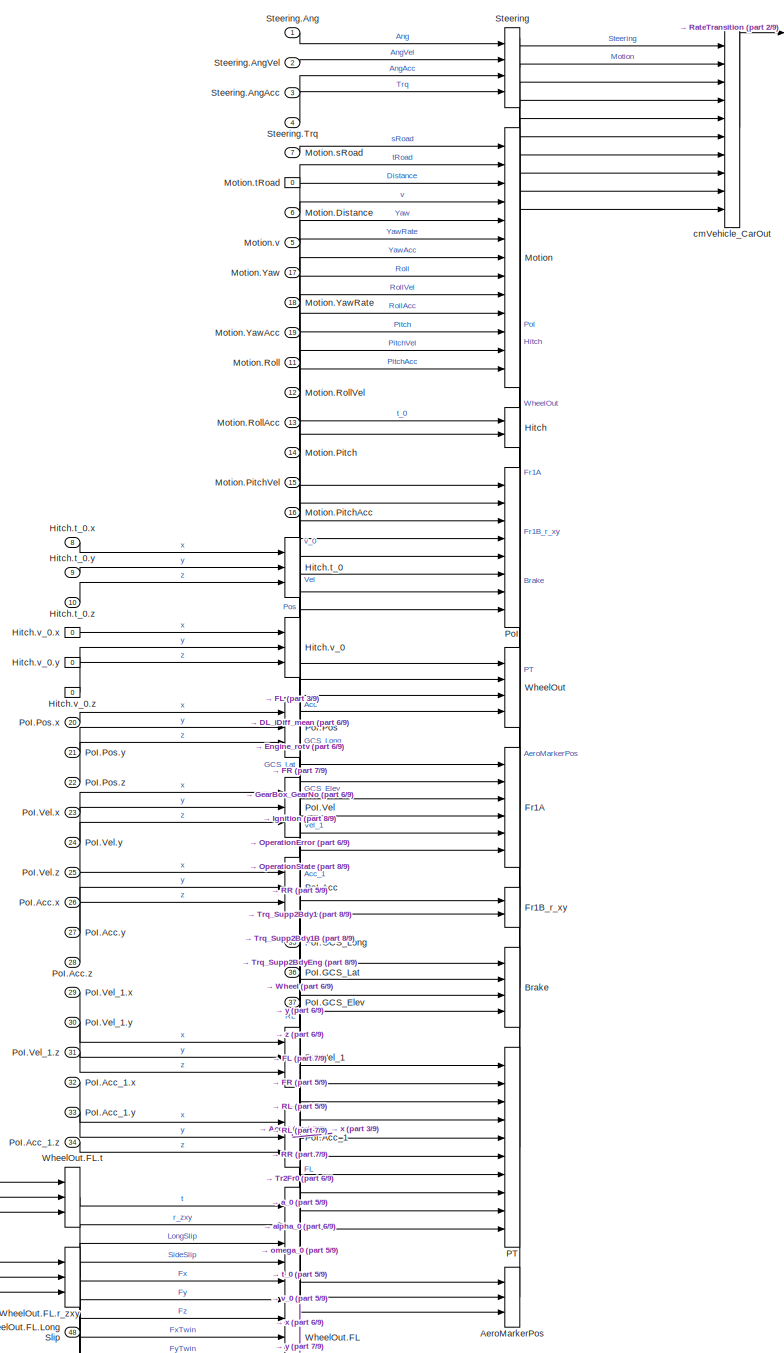
[diagram: SingleTrack_Out/IF_Out_Selector1 - part 1/9, top center region]
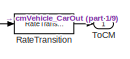
[diagram: SingleTrack_Out/IF_Out_Selector1 - part 2/9, top right region]
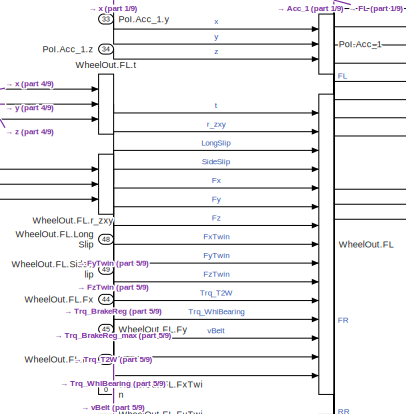
[diagram: SingleTrack_Out/IF_Out_Selector1 - part 3/9, top center region]
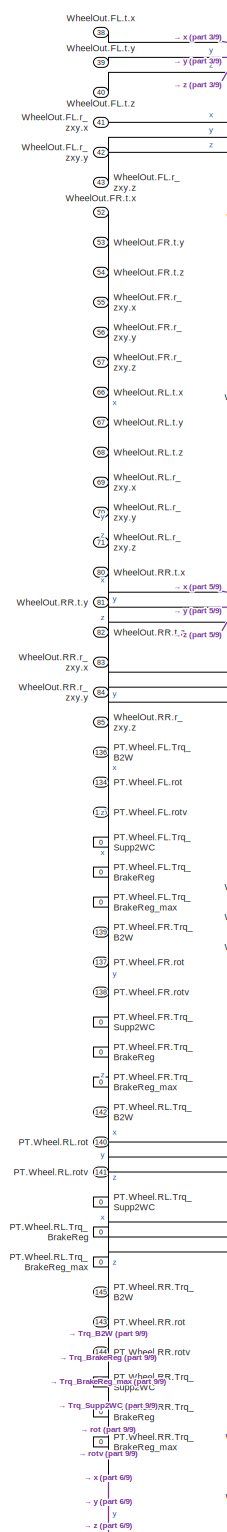
[diagram: SingleTrack_Out/IF_Out_Selector1 - part 4/9, middle left region]
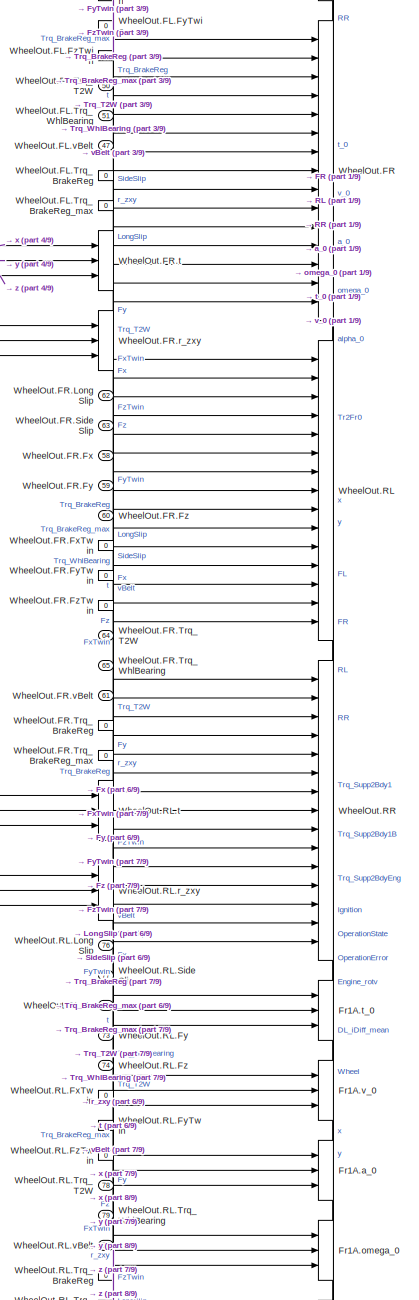
[diagram: SingleTrack_Out/IF_Out_Selector1 - part 5/9, central region]
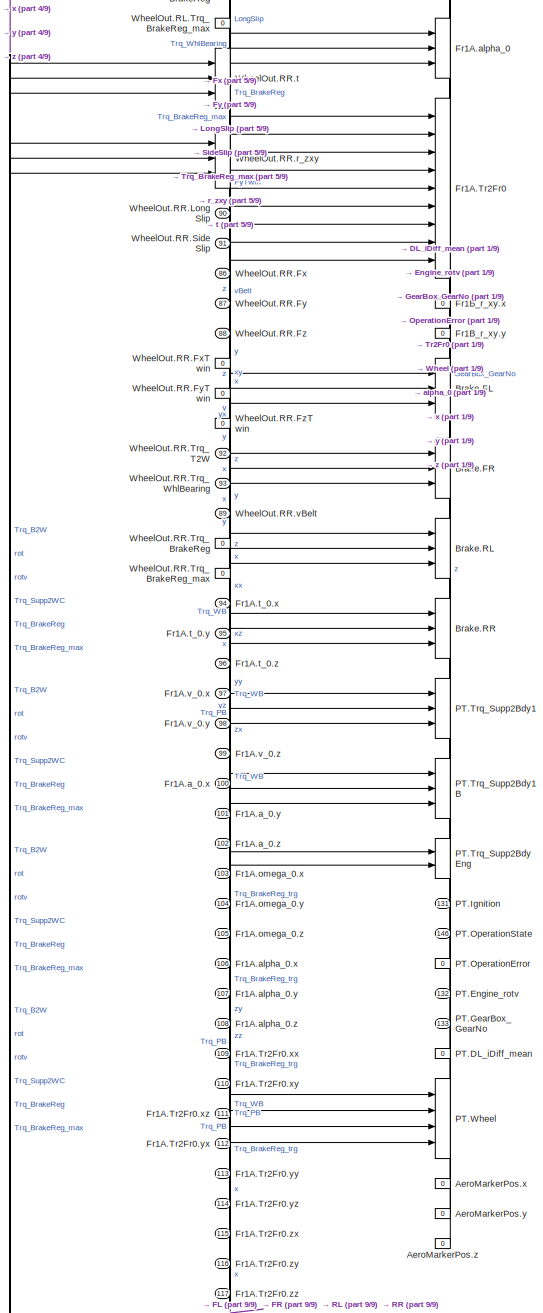
[diagram: SingleTrack_Out/IF_Out_Selector1 - part 6/9, middle left region]
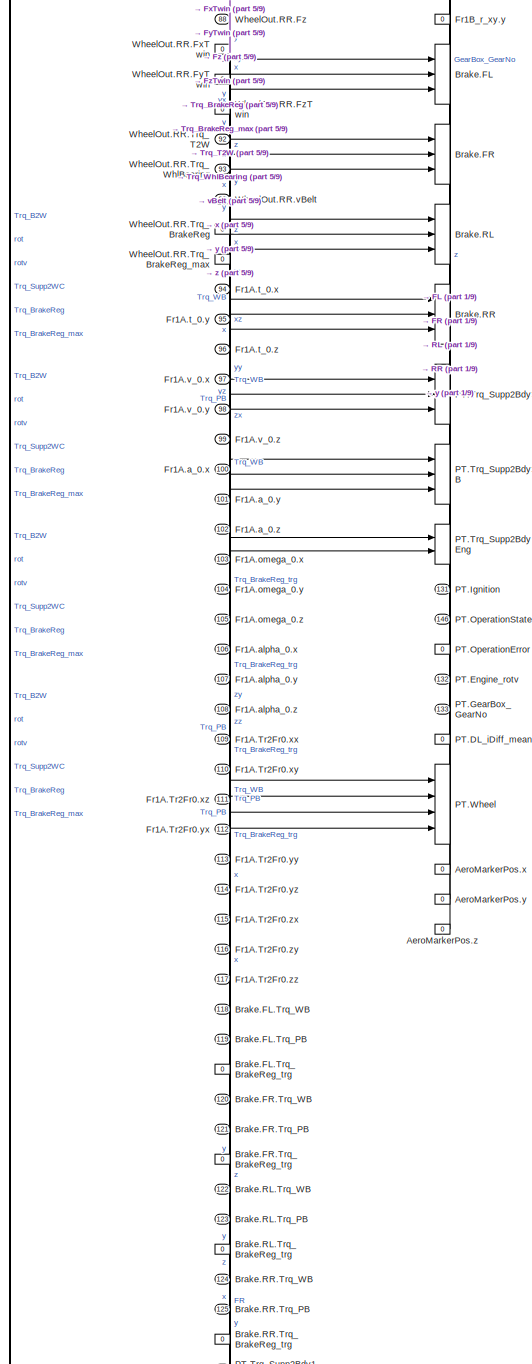
[diagram: SingleTrack_Out/IF_Out_Selector1 - part 7/9, bottom left region]
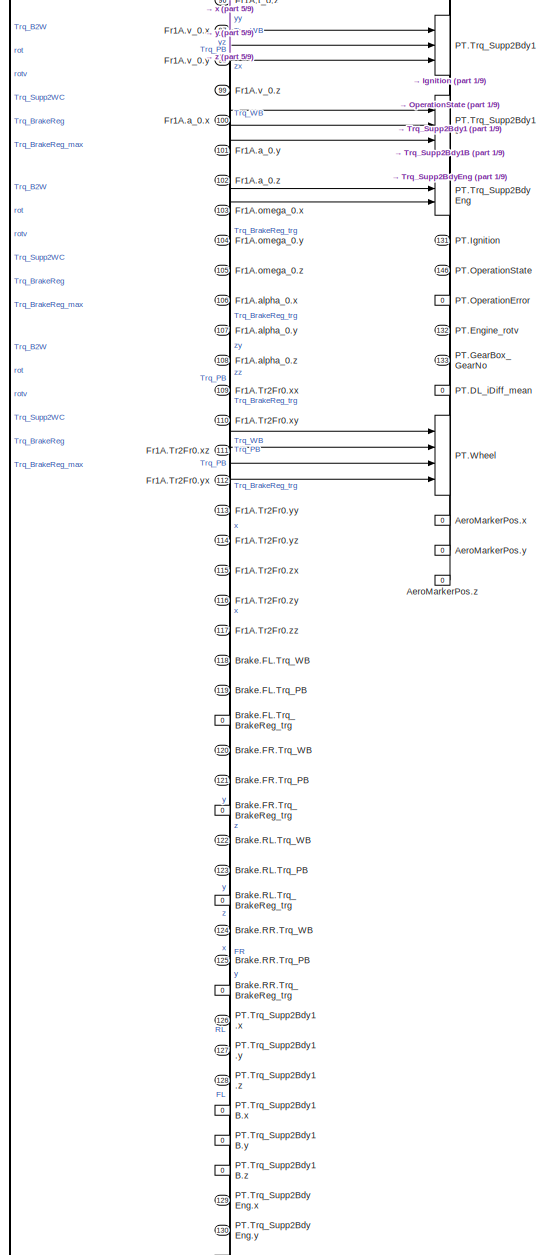
[diagram: SingleTrack_Out/IF_Out_Selector1 - part 8/9, bottom left region]
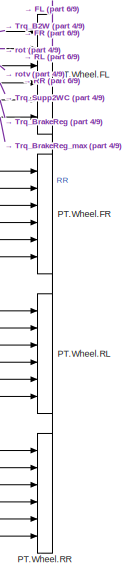
[diagram: SingleTrack_Out/IF_Out_Selector1 - part 9/9, bottom left region]
BLOCK [SubSystem] SingleTrack_Out/IF_Out_Selector1
  OpenFcn = cmSignalSelect('SignalSelection_CB',gcb)
  Ports = [146, 1]
  RequestExecContextInheritance = off
  SID = 1254
  UserData = DataTag0
  UserDataPersistent = on
  Variant = off
BLOCK [BusCreator] SingleTrack_Out/IF_Out_Selector1/AeroMarkerPos
  InheritFromInputs = on
  Inputs = 3
  Ports = [3, 1]
  SID = 1255
BLOCK [Constant] SingleTrack_Out/IF_Out_Selector1/AeroMarkerPos.x
  SID = 1256
  Value = 0
BLOCK [Constant] SingleTrack_Out/IF_Out_Selector1/AeroMarkerPos.y
  SID = 1257
  Value = 0
BLOCK [Constant] SingleTrack_Out/IF_Out_Selector1/AeroMarkerPos.z
  SID = 1258
  Value = 0
BLOCK [BusCreator] SingleTrack_Out/IF_Out_Selector1/Brake
  InheritFromInputs = on
  Inputs = 4
  Ports = [4, 1]
  SID = 1259
BLOCK [BusCreator] SingleTrack_Out/IF_Out_Selector1/Brake.FL
  InheritFromInputs = on
  Inputs = 3
  Ports = [3, 1]
  SID = 1260
BLOCK [Constant] SingleTrack_Out/IF_Out_Selector1/Brake.FL.Trq_BrakeReg_trg
  SID = 1261
  Value = 0
BLOCK [Inport] SingleTrack_Out/IF_Out_Selector1/Brake.FL.Trq_PB
  IconDisplay = Port number
  Port = 119
  SID = 1640
BLOCK [Inport] SingleTrack_Out/IF_Out_Selector1/Brake.FL.Trq_WB
  IconDisplay = Port number
  Port = 118
  SID = 1639
BLOCK [BusCreator] SingleTrack_Out/IF_Out_Selector1/Brake.FR
  InheritFromInputs = on
  Inputs = 3
  Ports = [3, 1]
  SID = 1264
BLOCK [Constant] SingleTrack_Out/IF_Out_Selector1/Brake.FR.Trq_BrakeReg_trg
  SID = 1265
  Value = 0
BLOCK [Inport] SingleTrack_Out/IF_Out_Selector1/Brake.FR.Trq_PB
  IconDisplay = Port number
  Port = 121
  SID = 1642
BLOCK [Inport] SingleTrack_Out/IF_Out_Selector1/Brake.FR.Trq_WB
  IconDisplay = Port number
  Port = 120
  SID = 1641
BLOCK [BusCreator] SingleTrack_Out/IF_Out_Selector1/Brake.RL
  InheritFromInputs = on
  Inputs = 3
  Ports = [3, 1]
  SID = 1268
BLOCK [Constant] SingleTrack_Out/IF_Out_Selector1/Brake.RL.Trq_BrakeReg_trg
  SID = 1269
  Value = 0
BLOCK [Inport] SingleTrack_Out/IF_Out_Selector1/Brake.RL.Trq_PB
  IconDisplay = Port number
  Port = 123
  SID = 1644
BLOCK [Inport] SingleTrack_Out/IF_Out_Selector1/Brake.RL.Trq_WB
  IconDisplay = Port number
  Port = 122
  SID = 1643
BLOCK [BusCreator] SingleTrack_Out/IF_Out_Selector1/Brake.RR
  InheritFromInputs = on
  Inputs = 3
  Ports = [3, 1]
  SID = 1272
BLOCK [Constant] SingleTrack_Out/IF_Out_Selector1/Brake.RR.Trq_BrakeReg_trg
  SID = 1273
  Value = 0
BLOCK [Inport] SingleTrack_Out/IF_Out_Selector1/Brake.RR.Trq_PB
  IconDisplay = Port number
  Port = 125
  SID = 1646
BLOCK [Inport] SingleTrack_Out/IF_Out_Selector1/Brake.RR.Trq_WB
  IconDisplay = Port number
  Port = 124
  SID = 1645
BLOCK [BusCreator] SingleTrack_Out/IF_Out_Selector1/Fr1A
  InheritFromInputs = on
  Inputs = 6
  Ports = [6, 1]
  SID = 1276
BLOCK [BusCreator] SingleTrack_Out/IF_Out_Selector1/Fr1A.Tr2Fr0
  InheritFromInputs = on
  Inputs = 9
  Ports = [9, 1]
  SID = 1277
BLOCK [Inport] SingleTrack_Out/IF_Out_Selector1/Fr1A.Tr2Fr0.xx
  IconDisplay = Port number
  Port = 109
  SID = 1610
BLOCK [Inport] SingleTrack_Out/IF_Out_Selector1/Fr1A.Tr2Fr0.xy
  IconDisplay = Port number
  Port = 110
  SID = 1611
BLOCK [Inport] SingleTrack_Out/IF_Out_Selector1/Fr1A.Tr2Fr0.xz
  IconDisplay = Port number
  Port = 111
  SID = 1612
BLOCK [Inport] SingleTrack_Out/IF_Out_Selector1/Fr1A.Tr2Fr0.yx
  IconDisplay = Port number
  Port = 112
  SID = 1613
BLOCK [Inport] SingleTrack_Out/IF_Out_Selector1/Fr1A.Tr2Fr0.yy
  IconDisplay = Port number
  Port = 113
  SID = 1614
BLOCK [Inport] SingleTrack_Out/IF_Out_Selector1/Fr1A.Tr2Fr0.yz
  IconDisplay = Port number
  Port = 114
  SID = 1615
BLOCK [Inport] SingleTrack_Out/IF_Out_Selector1/Fr1A.Tr2Fr0.zx
  IconDisplay = Port number
  Port = 115
  SID = 1616
BLOCK [Inport] SingleTrack_Out/IF_Out_Selector1/Fr1A.Tr2Fr0.zy
  IconDisplay = Port number
  Port = 116
  SID = 1617
BLOCK [Inport] SingleTrack_Out/IF_Out_Selector1/Fr1A.Tr2Fr0.zz
  IconDisplay = Port number
  Port = 117
  SID = 1618
BLOCK [BusCreator] SingleTrack_Out/IF_Out_Selector1/Fr1A.a_0
  InheritFromInputs = on
  Inputs = 3
  Ports = [3, 1]
  SID = 1287
BLOCK [Inport] SingleTrack_Out/IF_Out_Selector1/Fr1A.a_0.x
  IconDisplay = Port number
  Port = 100
  SID = 1601
BLOCK [Inport] SingleTrack_Out/IF_Out_Selector1/Fr1A.a_0.y
  IconDisplay = Port number
  Port = 101
  SID = 1602
BLOCK [Inport] SingleTrack_Out/IF_Out_Selector1/Fr1A.a_0.z
  IconDisplay = Port number
  Port = 102
  SID = 1603
BLOCK [BusCreator] SingleTrack_Out/IF_Out_Selector1/Fr1A.alpha_0
  InheritFromInputs = on
  Inputs = 3
  Ports = [3, 1]
  SID = 1291
BLOCK [Inport] SingleTrack_Out/IF_Out_Selector1/Fr1A.alpha_0.x
  IconDisplay = Port number
  Port = 106
  SID = 1607
BLOCK [Inport] SingleTrack_Out/IF_Out_Selector1/Fr1A.alpha_0.y
  IconDisplay = Port number
  Port = 107
  SID = 1608
BLOCK [Inport] SingleTrack_Out/IF_Out_Selector1/Fr1A.alpha_0.z
  IconDisplay = Port number
  Port = 108
  SID = 1609
BLOCK [BusCreator] SingleTrack_Out/IF_Out_Selector1/Fr1A.omega_0
  InheritFromInputs = on
  Inputs = 3
  Ports = [3, 1]
  SID = 1295
BLOCK [Inport] SingleTrack_Out/IF_Out_Selector1/Fr1A.omega_0.x
  IconDisplay = Port number
  Port = 103
  SID = 1604
BLOCK [Inport] SingleTrack_Out/IF_Out_Selector1/Fr1A.omega_0.y
  IconDisplay = Port number
  Port = 104
  SID = 1605
BLOCK [Inport] SingleTrack_Out/IF_Out_Selector1/Fr1A.omega_0.z
  IconDisplay = Port number
  Port = 105
  SID = 1606
BLOCK [BusCreator] SingleTrack_Out/IF_Out_Selector1/Fr1A.t_0
  InheritFromInputs = on
  Inputs = 3
  Ports = [3, 1]
  SID = 1299
BLOCK [Inport] SingleTrack_Out/IF_Out_Selector1/Fr1A.t_0.x
  IconDisplay = Port number
  Port = 94
  SID = 1595
BLOCK [Inport] SingleTrack_Out/IF_Out_Selector1/Fr1A.t_0.y
  IconDisplay = Port number
  Port = 95
  SID = 1596
BLOCK [Inport] SingleTrack_Out/IF_Out_Selector1/Fr1A.t_0.z
  IconDisplay = Port number
  Port = 96
  SID = 1597
BLOCK [BusCreator] SingleTrack_Out/IF_Out_Selector1/Fr1A.v_0
  InheritFromInputs = on
  Inputs = 3
  Ports = [3, 1]
  SID = 1303
BLOCK [Inport] SingleTrack_Out/IF_Out_Selector1/Fr1A.v_0.x
  IconDisplay = Port number
  Port = 97
  SID = 1598
BLOCK [Inport] SingleTrack_Out/IF_Out_Selector1/Fr1A.v_0.y
  IconDisplay = Port number
  Port = 98
  SID = 1599
BLOCK [Inport] SingleTrack_Out/IF_Out_Selector1/Fr1A.v_0.z
  IconDisplay = Port number
  Port = 99
  SID = 1600
BLOCK [BusCreator] SingleTrack_Out/IF_Out_Selector1/Fr1B_r_xy
  InheritFromInputs = on
  Inputs = 2
  Ports = [2, 1]
  SID = 1307
BLOCK [Constant] SingleTrack_Out/IF_Out_Selector1/Fr1B_r_xy.x
  SID = 1308
  Value = 0
BLOCK [Constant] SingleTrack_Out/IF_Out_Selector1/Fr1B_r_xy.y
  SID = 1309
  Value = 0
BLOCK [BusCreator] SingleTrack_Out/IF_Out_Selector1/Hitch
  InheritFromInputs = on
  Inputs = 2
  Ports = [2, 1]
  SID = 1310
BLOCK [BusCreator] SingleTrack_Out/IF_Out_Selector1/Hitch.t_0
  InheritFromInputs = on
  Inputs = 3
  Ports = [3, 1]
  SID = 1311
BLOCK [Inport] SingleTrack_Out/IF_Out_Selector1/Hitch.t_0.x
  IconDisplay = Port number
  Port = 8
  SID = 1508
BLOCK [Inport] SingleTrack_Out/IF_Out_Selector1/Hitch.t_0.y
  IconDisplay = Port number
  Port = 9
  SID = 1509
BLOCK [Inport] SingleTrack_Out/IF_Out_Selector1/Hitch.t_0.z
  IconDisplay = Port number
  Port = 10
  SID = 1510
BLOCK [BusCreator] SingleTrack_Out/IF_Out_Selector1/Hitch.v_0
  InheritFromInputs = on
  Inputs = 3
  Ports = [3, 1]
  SID = 1315
BLOCK [Constant] SingleTrack_Out/IF_Out_Selector1/Hitch.v_0.x
  SID = 1316
  Value = 0
BLOCK [Constant] SingleTrack_Out/IF_Out_Selector1/Hitch.v_0.y
  SID = 1317
  Value = 0
BLOCK [Constant] SingleTrack_Out/IF_Out_Selector1/Hitch.v_0.z
  SID = 1318
  Value = 0
BLOCK [BusCreator] SingleTrack_Out/IF_Out_Selector1/Motion
  InheritFromInputs = on
  Inputs = 13
  Ports = [13, 1]
  SID = 1319
BLOCK [Inport] SingleTrack_Out/IF_Out_Selector1/Motion.Distance
  IconDisplay = Port number
  Port = 6
  SID = 1506
BLOCK [Inport] SingleTrack_Out/IF_Out_Selector1/Motion.Pitch
  IconDisplay = Port number
  Port = 14
  SID = 1514
BLOCK [Inport] SingleTrack_Out/IF_Out_Selector1/Motion.PitchAcc
  IconDisplay = Port number
  Port = 16
  SID = 1516
BLOCK [Inport] SingleTrack_Out/IF_Out_Selector1/Motion.PitchVel
  IconDisplay = Port number
  Port = 15
  SID = 1515
BLOCK [Inport] SingleTrack_Out/IF_Out_Selector1/Motion.Roll
  IconDisplay = Port number
  Port = 11
  SID = 1511
BLOCK [Inport] SingleTrack_Out/IF_Out_Selector1/Motion.RollAcc
  IconDisplay = Port number
  Port = 13
  SID = 1513
BLOCK [Inport] SingleTrack_Out/IF_Out_Selector1/Motion.RollVel
  IconDisplay = Port number
  Port = 12
  SID = 1512
BLOCK [Inport] SingleTrack_Out/IF_Out_Selector1/Motion.Yaw
  IconDisplay = Port number
  Port = 17
  SID = 1517
BLOCK [Inport] SingleTrack_Out/IF_Out_Selector1/Motion.YawAcc
  IconDisplay = Port number
  Port = 19
  SID = 1519
BLOCK [Inport] SingleTrack_Out/IF_Out_Selector1/Motion.YawRate
  IconDisplay = Port number
  Port = 18
  SID = 1518
BLOCK [Inport] SingleTrack_Out/IF_Out_Selector1/Motion.sRoad
  IconDisplay = Port number
  Port = 7
  SID = 1507
BLOCK [Constant] SingleTrack_Out/IF_Out_Selector1/Motion.tRoad
  SID = 1331
  Value = 0
BLOCK [Inport] SingleTrack_Out/IF_Out_Selector1/Motion.v
  IconDisplay = Port number
  Port = 5
  SID = 1505
BLOCK [BusCreator] SingleTrack_Out/IF_Out_Selector1/PT
  InheritFromInputs = on
  Inputs = 10
  Ports = [10, 1]
  SID = 1333
BLOCK [Constant] SingleTrack_Out/IF_Out_Selector1/PT.DL_iDiff_mean
  SID = 1334
  Value = 0
BLOCK [Inport] SingleTrack_Out/IF_Out_Selector1/PT.Engine_rotv
  IconDisplay = Port number
  Port = 132
  SID = 1625
BLOCK [Inport] SingleTrack_Out/IF_Out_Selector1/PT.GearBox_GearNo
  IconDisplay = Port number
  Port = 133
  SID = 1626
BLOCK [Inport] SingleTrack_Out/IF_Out_Selector1/PT.Ignition
  IconDisplay = Port number
  Port = 131
  SID = 1624
BLOCK [Constant] SingleTrack_Out/IF_Out_Selector1/PT.OperationError
  SID = 1338
  Value = 0
BLOCK [Inport] SingleTrack_Out/IF_Out_Selector1/PT.OperationState
  IconDisplay = Port number
  Port = 146
  SID = 1647
BLOCK [BusCreator] SingleTrack_Out/IF_Out_Selector1/PT.Trq_Supp2Bdy1
  InheritFromInputs = on
  Inputs = 3
  Ports = [3, 1]
  SID = 1340
BLOCK [Inport] SingleTrack_Out/IF_Out_Selector1/PT.Trq_Supp2Bdy1.x
  IconDisplay = Port number
  Port = 126
  SID = 1619
BLOCK [Inport] SingleTrack_Out/IF_Out_Selector1/PT.Trq_Supp2Bdy1.y
  IconDisplay = Port number
  Port = 127
  SID = 1620
BLOCK [Inport] SingleTrack_Out/IF_Out_Selector1/PT.Trq_Supp2Bdy1.z
  IconDisplay = Port number
  Port = 128
  SID = 1621
BLOCK [BusCreator] SingleTrack_Out/IF_Out_Selector1/PT.Trq_Supp2Bdy1B
  InheritFromInputs = on
  Inputs = 3
  Ports = [3, 1]
  SID = 1344
BLOCK [Constant] SingleTrack_Out/IF_Out_Selector1/PT.Trq_Supp2Bdy1B.x
  SID = 1345
  Value = 0
BLOCK [Constant] SingleTrack_Out/IF_Out_Selector1/PT.Trq_Supp2Bdy1B.y
  SID = 1346
  Value = 0
BLOCK [Constant] SingleTrack_Out/IF_Out_Selector1/PT.Trq_Supp2Bdy1B.z
  SID = 1347
  Value = 0
BLOCK [BusCreator] SingleTrack_Out/IF_Out_Selector1/PT.Trq_Supp2BdyEng
  InheritFromInputs = on
  Inputs = 2
  Ports = [2, 1]
  SID = 1348
BLOCK [Inport] SingleTrack_Out/IF_Out_Selector1/PT.Trq_Supp2BdyEng.x
  IconDisplay = Port number
  Port = 129
  SID = 1622
BLOCK [Inport] SingleTrack_Out/IF_Out_Selector1/PT.Trq_Supp2BdyEng.y
  IconDisplay = Port number
  Port = 130
  SID = 1623
BLOCK [BusCreator] SingleTrack_Out/IF_Out_Selector1/PT.Wheel
  InheritFromInputs = on
  Inputs = 4
  Ports = [4, 1]
  SID = 1351
BLOCK [BusCreator] SingleTrack_Out/IF_Out_Selector1/PT.Wheel.FL
  InheritFromInputs = on
  Inputs = 6
  Ports = [6, 1]
  SID = 1352
BLOCK [Inport] SingleTrack_Out/IF_Out_Selector1/PT.Wheel.FL.Trq_B2W
  IconDisplay = Port number
  Port = 136
  SID = 1629
BLOCK [Constant] SingleTrack_Out/IF_Out_Selector1/PT.Wheel.FL.Trq_BrakeReg
  SID = 1354
  Value = 0
BLOCK [Constant] SingleTrack_Out/IF_Out_Selector1/PT.Wheel.FL.Trq_BrakeReg_max
  SID = 1355
  Value = 0
BLOCK [Constant] SingleTrack_Out/IF_Out_Selector1/PT.Wheel.FL.Trq_Supp2WC
  SID = 1356
  Value = 0
BLOCK [Inport] SingleTrack_Out/IF_Out_Selector1/PT.Wheel.FL.rot
  IconDisplay = Port number
  Port = 134
  SID = 1627
BLOCK [Inport] SingleTrack_Out/IF_Out_Selector1/PT.Wheel.FL.rotv
  IconDisplay = Port number
  Port = 135
  SID = 1628
BLOCK [BusCreator] SingleTrack_Out/IF_Out_Selector1/PT.Wheel.FR
  InheritFromInputs = on
  Inputs = 6
  Ports = [6, 1]
  SID = 1359
BLOCK [Inport] SingleTrack_Out/IF_Out_Selector1/PT.Wheel.FR.Trq_B2W
  IconDisplay = Port number
  Port = 139
  SID = 1632
BLOCK [Constant] SingleTrack_Out/IF_Out_Selector1/PT.Wheel.FR.Trq_BrakeReg
  SID = 1361
  Value = 0
BLOCK [Constant] SingleTrack_Out/IF_Out_Selector1/PT.Wheel.FR.Trq_BrakeReg_max
  SID = 1362
  Value = 0
BLOCK [Constant] SingleTrack_Out/IF_Out_Selector1/PT.Wheel.FR.Trq_Supp2WC
  SID = 1363
  Value = 0
BLOCK [Inport] SingleTrack_Out/IF_Out_Selector1/PT.Wheel.FR.rot
  IconDisplay = Port number
  Port = 137
  SID = 1630
BLOCK [Inport] SingleTrack_Out/IF_Out_Selector1/PT.Wheel.FR.rotv
  IconDisplay = Port number
  Port = 138
  SID = 1631
BLOCK [BusCreator] SingleTrack_Out/IF_Out_Selector1/PT.Wheel.RL
  InheritFromInputs = on
  Inputs = 6
  Ports = [6, 1]
  SID = 1366
BLOCK [Inport] SingleTrack_Out/IF_Out_Selector1/PT.Wheel.RL.Trq_B2W
  IconDisplay = Port number
  Port = 142
  SID = 1635
BLOCK [Constant] SingleTrack_Out/IF_Out_Selector1/PT.Wheel.RL.Trq_BrakeReg
  SID = 1368
  Value = 0
BLOCK [Constant] SingleTrack_Out/IF_Out_Selector1/PT.Wheel.RL.Trq_BrakeReg_max
  SID = 1369
  Value = 0
BLOCK [Constant] SingleTrack_Out/IF_Out_Selector1/PT.Wheel.RL.Trq_Supp2WC
  SID = 1370
  Value = 0
BLOCK [Inport] SingleTrack_Out/IF_Out_Selector1/PT.Wheel.RL.rot
  IconDisplay = Port number
  Port = 140
  SID = 1633
BLOCK [Inport] SingleTrack_Out/IF_Out_Selector1/PT.Wheel.RL.rotv
  IconDisplay = Port number
  Port = 141
  SID = 1634
BLOCK [BusCreator] SingleTrack_Out/IF_Out_Selector1/PT.Wheel.RR
  InheritFromInputs = on
  Inputs = 6
  Ports = [6, 1]
  SID = 1373
BLOCK [Inport] SingleTrack_Out/IF_Out_Selector1/PT.Wheel.RR.Trq_B2W
  IconDisplay = Port number
  Port = 145
  SID = 1638
BLOCK [Constant] SingleTrack_Out/IF_Out_Selector1/PT.Wheel.RR.Trq_BrakeReg
  SID = 1375
  Value = 0
BLOCK [Constant] SingleTrack_Out/IF_Out_Selector1/PT.Wheel.RR.Trq_BrakeReg_max
  SID = 1376
  Value = 0
BLOCK [Constant] SingleTrack_Out/IF_Out_Selector1/PT.Wheel.RR.Trq_Supp2WC
  SID = 1377
  Value = 0
BLOCK [Inport] SingleTrack_Out/IF_Out_Selector1/PT.Wheel.RR.rot
  IconDisplay = Port number
  Port = 143
  SID = 1636
BLOCK [Inport] SingleTrack_Out/IF_Out_Selector1/PT.Wheel.RR.rotv
  IconDisplay = Port number
  Port = 144
  SID = 1637
BLOCK [BusCreator] SingleTrack_Out/IF_Out_Selector1/PoI
  InheritFromInputs = on
  Inputs = 8
  Ports = [8, 1]
  SID = 1380
BLOCK [BusCreator] SingleTrack_Out/IF_Out_Selector1/PoI.Acc
  InheritFromInputs = on
  Inputs = 3
  Ports = [3, 1]
  SID = 1381
BLOCK [Inport] SingleTrack_Out/IF_Out_Selector1/PoI.Acc.x
  IconDisplay = Port number
  Port = 26
  SID = 1526
BLOCK [Inport] SingleTrack_Out/IF_Out_Selector1/PoI.Acc.y
  IconDisplay = Port number
  Port = 27
  SID = 1527
BLOCK [Inport] SingleTrack_Out/IF_Out_Selector1/PoI.Acc.z
  IconDisplay = Port number
  Port = 28
  SID = 1528
BLOCK [BusCreator] SingleTrack_Out/IF_Out_Selector1/PoI.Acc_1
  InheritFromInputs = on
  Inputs = 3
  Ports = [3, 1]
  SID = 1385
BLOCK [Inport] SingleTrack_Out/IF_Out_Selector1/PoI.Acc_1.x
  IconDisplay = Port number
  Port = 32
  SID = 1532
BLOCK [Inport] SingleTrack_Out/IF_Out_Selector1/PoI.Acc_1.y
  IconDisplay = Port number
  Port = 33
  SID = 1533
BLOCK [Inport] SingleTrack_Out/IF_Out_Selector1/PoI.Acc_1.z
  IconDisplay = Port number
  Port = 34
  SID = 1534
BLOCK [Inport] SingleTrack_Out/IF_Out_Selector1/PoI.GCS_Elev
  IconDisplay = Port number
  Port = 37
  SID = 1537
BLOCK [Inport] SingleTrack_Out/IF_Out_Selector1/PoI.GCS_Lat
  IconDisplay = Port number
  Port = 36
  SID = 1536
BLOCK [Inport] SingleTrack_Out/IF_Out_Selector1/PoI.GCS_Long
  IconDisplay = Port number
  Port = 35
  SID = 1535
BLOCK [BusCreator] SingleTrack_Out/IF_Out_Selector1/PoI.Pos
  InheritFromInputs = on
  Inputs = 3
  Ports = [3, 1]
  SID = 1392
BLOCK [Inport] SingleTrack_Out/IF_Out_Selector1/PoI.Pos.x
  IconDisplay = Port number
  Port = 20
  SID = 1520
BLOCK [Inport] SingleTrack_Out/IF_Out_Selector1/PoI.Pos.y
  IconDisplay = Port number
  Port = 21
  SID = 1521
BLOCK [Inport] SingleTrack_Out/IF_Out_Selector1/PoI.Pos.z
  IconDisplay = Port number
  Port = 22
  SID = 1522
BLOCK [BusCreator] SingleTrack_Out/IF_Out_Selector1/PoI.Vel
  InheritFromInputs = on
  Inputs = 3
  Ports = [3, 1]
  SID = 1396
BLOCK [Inport] SingleTrack_Out/IF_Out_Selector1/PoI.Vel.x
  IconDisplay = Port number
  Port = 23
  SID = 1523
BLOCK [Inport] SingleTrack_Out/IF_Out_Selector1/PoI.Vel.y
  IconDisplay = Port number
  Port = 24
  SID = 1524
BLOCK [Inport] SingleTrack_Out/IF_Out_Selector1/PoI.Vel.z
  IconDisplay = Port number
  Port = 25
  SID = 1525
BLOCK [BusCreator] SingleTrack_Out/IF_Out_Selector1/PoI.Vel_1
  InheritFromInputs = on
  Inputs = 3
  Ports = [3, 1]
  SID = 1400
BLOCK [Inport] SingleTrack_Out/IF_Out_Selector1/PoI.Vel_1.x
  IconDisplay = Port number
  Port = 29
  SID = 1529
BLOCK [Inport] SingleTrack_Out/IF_Out_Selector1/PoI.Vel_1.y
  IconDisplay = Port number
  Port = 30
  SID = 1530
BLOCK [Inport] SingleTrack_Out/IF_Out_Selector1/PoI.Vel_1.z
  IconDisplay = Port number
  Port = 31
  SID = 1531
BLOCK [RateTransition] SingleTrack_Out/IF_Out_Selector1/RateTransition
  OutPortSampleTime = str2num(get_param(bdroot,'FixedStep'))
  SID = 1404
BLOCK [BusCreator] SingleTrack_Out/IF_Out_Selector1/Steering
  InheritFromInputs = on
  Inputs = 4
  Ports = [4, 1]
  SID = 1405
BLOCK [Inport] SingleTrack_Out/IF_Out_Selector1/Steering.Ang
  IconDisplay = Port number
  SID = 1501
BLOCK [Inport] SingleTrack_Out/IF_Out_Selector1/Steering.AngAcc
  IconDisplay = Port number
  Port = 3
  SID = 1503
BLOCK [Inport] SingleTrack_Out/IF_Out_Selector1/Steering.AngVel
  IconDisplay = Port number
  Port = 2
  SID = 1502
BLOCK [Inport] SingleTrack_Out/IF_Out_Selector1/Steering.Trq
  IconDisplay = Port number
  Port = 4
  SID = 1504
BLOCK [Outport] SingleTrack_Out/IF_Out_Selector1/ToCM
  IconDisplay = Port number
  SID = 1500
BLOCK [BusCreator] SingleTrack_Out/IF_Out_Selector1/WheelOut
  InheritFromInputs = on
  Inputs = 4
  Ports = [4, 1]
  SID = 1410
BLOCK [BusCreator] SingleTrack_Out/IF_Out_Selector1/WheelOut.FL
  InheritFromInputs = on
  Inputs = 15
  Ports = [15, 1]
  SID = 1411
BLOCK [Inport] SingleTrack_Out/IF_Out_Selector1/WheelOut.FL.Fx
  IconDisplay = Port number
  Port = 44
  SID = 1544
BLOCK [Constant] SingleTrack_Out/IF_Out_Selector1/WheelOut.FL.FxTwin
  SID = 1413
  Value = 0
BLOCK [Inport] SingleTrack_Out/IF_Out_Selector1/WheelOut.FL.Fy
  IconDisplay = Port number
  Port = 45
  SID = 1545
BLOCK [Constant] SingleTrack_Out/IF_Out_Selector1/WheelOut.FL.FyTwin
  SID = 1415
  Value = 0
BLOCK [Inport] SingleTrack_Out/IF_Out_Selector1/WheelOut.FL.Fz
  IconDisplay = Port number
  Port = 46
  SID = 1546
BLOCK [Constant] SingleTrack_Out/IF_Out_Selector1/WheelOut.FL.FzTwin
  SID = 1417
  Value = 0
BLOCK [Inport] SingleTrack_Out/IF_Out_Selector1/WheelOut.FL.LongSlip
  IconDisplay = Port number
  Port = 48
  SID = 1548
BLOCK [Inport] SingleTrack_Out/IF_Out_Selector1/WheelOut.FL.SideSlip
  IconDisplay = Port number
  Port = 49
  SID = 1549
BLOCK [Constant] SingleTrack_Out/IF_Out_Selector1/WheelOut.FL.Trq_BrakeReg
  SID = 1420
  Value = 0
BLOCK [Constant] SingleTrack_Out/IF_Out_Selector1/WheelOut.FL.Trq_BrakeReg_max
  SID = 1421
  Value = 0
BLOCK [Inport] SingleTrack_Out/IF_Out_Selector1/WheelOut.FL.Trq_T2W
  IconDisplay = Port number
  Port = 50
  SID = 1550
BLOCK [Inport] SingleTrack_Out/IF_Out_Selector1/WheelOut.FL.Trq_WhlBearing
  IconDisplay = Port number
  Port = 51
  SID = 1551
BLOCK [BusCreator] SingleTrack_Out/IF_Out_Selector1/WheelOut.FL.r_zxy
  InheritFromInputs = on
  Inputs = 3
  Ports = [3, 1]
  SID = 1424
BLOCK [Inport] SingleTrack_Out/IF_Out_Selector1/WheelOut.FL.r_zxy.x
  IconDisplay = Port number
  Port = 41
  SID = 1541
BLOCK [Inport] SingleTrack_Out/IF_Out_Selector1/WheelOut.FL.r_zxy.y
  IconDisplay = Port number
  Port = 42
  SID = 1542
BLOCK [Inport] SingleTrack_Out/IF_Out_Selector1/WheelOut.FL.r_zxy.z
  IconDisplay = Port number
  Port = 43
  SID = 1543
BLOCK [BusCreator] SingleTrack_Out/IF_Out_Selector1/WheelOut.FL.t
  InheritFromInputs = on
  Inputs = 3
  Ports = [3, 1]
  SID = 1428
BLOCK [Inport] SingleTrack_Out/IF_Out_Selector1/WheelOut.FL.t.x
  IconDisplay = Port number
  Port = 38
  SID = 1538
BLOCK [Inport] SingleTrack_Out/IF_Out_Selector1/WheelOut.FL.t.y
  IconDisplay = Port number
  Port = 39
  SID = 1539
BLOCK [Inport] SingleTrack_Out/IF_Out_Selector1/WheelOut.FL.t.z
  IconDisplay = Port number
  Port = 40
  SID = 1540
BLOCK [Inport] SingleTrack_Out/IF_Out_Selector1/WheelOut.FL.vBelt
  IconDisplay = Port number
  Port = 47
  SID = 1547
BLOCK [BusCreator] SingleTrack_Out/IF_Out_Selector1/WheelOut.FR
  InheritFromInputs = on
  Inputs = 15
  Ports = [15, 1]
  SID = 1433
BLOCK [Inport] SingleTrack_Out/IF_Out_Selector1/WheelOut.FR.Fx
  IconDisplay = Port number
  Port = 58
  SID = 1559
BLOCK [Constant] SingleTrack_Out/IF_Out_Selector1/WheelOut.FR.FxTwin
  SID = 1435
  Value = 0
BLOCK [Inport] SingleTrack_Out/IF_Out_Selector1/WheelOut.FR.Fy
  IconDisplay = Port number
  Port = 59
  SID = 1560
BLOCK [Constant] SingleTrack_Out/IF_Out_Selector1/WheelOut.FR.FyTwin
  SID = 1437
  Value = 0
BLOCK [Inport] SingleTrack_Out/IF_Out_Selector1/WheelOut.FR.Fz
  IconDisplay = Port number
  Port = 60
  SID = 1561
BLOCK [Constant] SingleTrack_Out/IF_Out_Selector1/WheelOut.FR.FzTwin
  SID = 1439
  Value = 0
BLOCK [Inport] SingleTrack_Out/IF_Out_Selector1/WheelOut.FR.LongSlip
  IconDisplay = Port number
  Port = 62
  SID = 1567
BLOCK [Inport] SingleTrack_Out/IF_Out_Selector1/WheelOut.FR.SideSlip
  IconDisplay = Port number
  Port = 63
  SID = 1568
BLOCK [Constant] SingleTrack_Out/IF_Out_Selector1/WheelOut.FR.Trq_BrakeReg
  SID = 1442
  Value = 0
BLOCK [Constant] SingleTrack_Out/IF_Out_Selector1/WheelOut.FR.Trq_BrakeReg_max
  SID = 1443
  Value = 0
BLOCK [Inport] SingleTrack_Out/IF_Out_Selector1/WheelOut.FR.Trq_T2W
  IconDisplay = Port number
  Port = 64
  SID = 1569
BLOCK [Inport] SingleTrack_Out/IF_Out_Selector1/WheelOut.FR.Trq_WhlBearing
  IconDisplay = Port number
  Port = 65
  SID = 1570
BLOCK [BusCreator] SingleTrack_Out/IF_Out_Selector1/WheelOut.FR.r_zxy
  InheritFromInputs = on
  Inputs = 3
  Ports = [3, 1]
  SID = 1446
BLOCK [Inport] SingleTrack_Out/IF_Out_Selector1/WheelOut.FR.r_zxy.x
  IconDisplay = Port number
  Port = 55
  SID = 1556
BLOCK [Inport] SingleTrack_Out/IF_Out_Selector1/WheelOut.FR.r_zxy.y
  IconDisplay = Port number
  Port = 56
  SID = 1557
BLOCK [Inport] SingleTrack_Out/IF_Out_Selector1/WheelOut.FR.r_zxy.z
  IconDisplay = Port number
  Port = 57
  SID = 1558
BLOCK [BusCreator] SingleTrack_Out/IF_Out_Selector1/WheelOut.FR.t
  InheritFromInputs = on
  Inputs = 3
  Ports = [3, 1]
  SID = 1450
BLOCK [Inport] SingleTrack_Out/IF_Out_Selector1/WheelOut.FR.t.x
  IconDisplay = Port number
  Port = 52
  SID = 1553
BLOCK [Inport] SingleTrack_Out/IF_Out_Selector1/WheelOut.FR.t.y
  IconDisplay = Port number
  Port = 53
  SID = 1554
BLOCK [Inport] SingleTrack_Out/IF_Out_Selector1/WheelOut.FR.t.z
  IconDisplay = Port number
  Port = 54
  SID = 1555
BLOCK [Inport] SingleTrack_Out/IF_Out_Selector1/WheelOut.FR.vBelt
  IconDisplay = Port number
  Port = 61
  SID = 1562
BLOCK [BusCreator] SingleTrack_Out/IF_Out_Selector1/WheelOut.RL
  InheritFromInputs = on
  Inputs = 15
  Ports = [15, 1]
  SID = 1455
BLOCK [Inport] SingleTrack_Out/IF_Out_Selector1/WheelOut.RL.Fx
  IconDisplay = Port number
  Port = 72
  SID = 1577
BLOCK [Constant] SingleTrack_Out/IF_Out_Selector1/WheelOut.RL.FxTwin
  SID = 1457
  Value = 0
BLOCK [Inport] SingleTrack_Out/IF_Out_Selector1/WheelOut.RL.Fy
  IconDisplay = Port number
  Port = 73
  SID = 1578
BLOCK [Constant] SingleTrack_Out/IF_Out_Selector1/WheelOut.RL.FyTwin
  SID = 1459
  Value = 0
BLOCK [Inport] SingleTrack_Out/IF_Out_Selector1/WheelOut.RL.Fz
  IconDisplay = Port number
  Port = 74
  SID = 1579
BLOCK [Constant] SingleTrack_Out/IF_Out_Selector1/WheelOut.RL.FzTwin
  SID = 1461
  Value = 0
BLOCK [Inport] SingleTrack_Out/IF_Out_Selector1/WheelOut.RL.LongSlip
  IconDisplay = Port number
  Port = 76
  SID = 1563
BLOCK [Inport] SingleTrack_Out/IF_Out_Selector1/WheelOut.RL.SideSlip
  IconDisplay = Port number
  Port = 77
  SID = 1564
BLOCK [Constant] SingleTrack_Out/IF_Out_Selector1/WheelOut.RL.Trq_BrakeReg
  SID = 1464
  Value = 0
BLOCK [Constant] SingleTrack_Out/IF_Out_Selector1/WheelOut.RL.Trq_BrakeReg_max
  SID = 1465
  Value = 0
BLOCK [Inport] SingleTrack_Out/IF_Out_Selector1/WheelOut.RL.Trq_T2W
  IconDisplay = Port number
  Port = 78
  SID = 1565
BLOCK [Inport] SingleTrack_Out/IF_Out_Selector1/WheelOut.RL.Trq_WhlBearing
  IconDisplay = Port number
  Port = 79
  SID = 1566
BLOCK [BusCreator] SingleTrack_Out/IF_Out_Selector1/WheelOut.RL.r_zxy
  InheritFromInputs = on
  Inputs = 3
  Ports = [3, 1]
  SID = 1468
BLOCK [Inport] SingleTrack_Out/IF_Out_Selector1/WheelOut.RL.r_zxy.x
  IconDisplay = Port number
  Port = 69
  SID = 1574
BLOCK [Inport] SingleTrack_Out/IF_Out_Selector1/WheelOut.RL.r_zxy.y
  IconDisplay = Port number
  Port = 70
  SID = 1575
BLOCK [Inport] SingleTrack_Out/IF_Out_Selector1/WheelOut.RL.r_zxy.z
  IconDisplay = Port number
  Port = 71
  SID = 1576
BLOCK [BusCreator] SingleTrack_Out/IF_Out_Selector1/WheelOut.RL.t
  InheritFromInputs = on
  Inputs = 3
  Ports = [3, 1]
  SID = 1472
BLOCK [Inport] SingleTrack_Out/IF_Out_Selector1/WheelOut.RL.t.x
  IconDisplay = Port number
  Port = 66
  SID = 1571
BLOCK [Inport] SingleTrack_Out/IF_Out_Selector1/WheelOut.RL.t.y
  IconDisplay = Port number
  Port = 67
  SID = 1572
BLOCK [Inport] SingleTrack_Out/IF_Out_Selector1/WheelOut.RL.t.z
  IconDisplay = Port number
  Port = 68
  SID = 1573
BLOCK [Inport] SingleTrack_Out/IF_Out_Selector1/WheelOut.RL.vBelt
  IconDisplay = Port number
  Port = 75
  SID = 1580
BLOCK [BusCreator] SingleTrack_Out/IF_Out_Selector1/WheelOut.RR
  InheritFromInputs = on
  Inputs = 15
  Ports = [15, 1]
  SID = 1477
BLOCK [Inport] SingleTrack_Out/IF_Out_Selector1/WheelOut.RR.Fx
  IconDisplay = Port number
  Port = 86
  SID = 1587
BLOCK [Constant] SingleTrack_Out/IF_Out_Selector1/WheelOut.RR.FxTwin
  SID = 1479
  Value = 0
BLOCK [Inport] SingleTrack_Out/IF_Out_Selector1/WheelOut.RR.Fy
  IconDisplay = Port number
  Port = 87
  SID = 1588
BLOCK [Constant] SingleTrack_Out/IF_Out_Selector1/WheelOut.RR.FyTwin
  SID = 1481
  Value = 0
BLOCK [Inport] SingleTrack_Out/IF_Out_Selector1/WheelOut.RR.Fz
  IconDisplay = Port number
  Port = 88
  SID = 1589
BLOCK [Constant] SingleTrack_Out/IF_Out_Selector1/WheelOut.RR.FzTwin
  SID = 1483
  Value = 0
BLOCK [Inport] SingleTrack_Out/IF_Out_Selector1/WheelOut.RR.LongSlip
  IconDisplay = Port number
  Port = 90
  SID = 1591
BLOCK [Inport] SingleTrack_Out/IF_Out_Selector1/WheelOut.RR.SideSlip
  IconDisplay = Port number
  Port = 91
  SID = 1592
BLOCK [Constant] SingleTrack_Out/IF_Out_Selector1/WheelOut.RR.Trq_BrakeReg
  SID = 1486
  Value = 0
BLOCK [Constant] SingleTrack_Out/IF_Out_Selector1/WheelOut.RR.Trq_BrakeReg_max
  SID = 1487
  Value = 0
BLOCK [Inport] SingleTrack_Out/IF_Out_Selector1/WheelOut.RR.Trq_T2W
  IconDisplay = Port number
  Port = 92
  SID = 1593
BLOCK [Inport] SingleTrack_Out/IF_Out_Selector1/WheelOut.RR.Trq_WhlBearing
  IconDisplay = Port number
  Port = 93
  SID = 1594
BLOCK [BusCreator] SingleTrack_Out/IF_Out_Selector1/WheelOut.RR.r_zxy
  InheritFromInputs = on
  Inputs = 3
  Ports = [3, 1]
  SID = 1490
BLOCK [Inport] SingleTrack_Out/IF_Out_Selector1/WheelOut.RR.r_zxy.x
  IconDisplay = Port number
  Port = 83
  SID = 1584
BLOCK [Inport] SingleTrack_Out/IF_Out_Selector1/WheelOut.RR.r_zxy.y
  IconDisplay = Port number
  Port = 84
  SID = 1585
BLOCK [Inport] SingleTrack_Out/IF_Out_Selector1/WheelOut.RR.r_zxy.z
  IconDisplay = Port number
  Port = 85
  SID = 1586
BLOCK [BusCreator] SingleTrack_Out/IF_Out_Selector1/WheelOut.RR.t
  InheritFromInputs = on
  Inputs = 3
  Ports = [3, 1]
  SID = 1494
BLOCK [Inport] SingleTrack_Out/IF_Out_Selector1/WheelOut.RR.t.x
  IconDisplay = Port number
  Port = 80
  SID = 1581
BLOCK [Inport] SingleTrack_Out/IF_Out_Selector1/WheelOut.RR.t.y
  IconDisplay = Port number
  Port = 81
  SID = 1582
BLOCK [Inport] SingleTrack_Out/IF_Out_Selector1/WheelOut.RR.t.z
  IconDisplay = Port number
  Port = 82
  SID = 1583
BLOCK [Inport] SingleTrack_Out/IF_Out_Selector1/WheelOut.RR.vBelt
  IconDisplay = Port number
  Port = 89
  SID = 1590
BLOCK [BusCreator] SingleTrack_Out/IF_Out_Selector1/cmVehicle_CarOut
  InheritFromInputs = on
  Inputs = 10
  Ports = [10, 1]
  SID = 1499
BLOCK [Constant] SingleTrack_Out/OperState_Driving
  SID = 1089
  Value = 4
BLOCK [Outport] SingleTrack_Out/Out1
  IconDisplay = Port number
  SID = 1252
BLOCK [SubSystem] SingleTrack_Out/Subsystem
  Ports = [1, 8]
  RequestExecContextInheritance = off
  SID = 1090
  Variant = off
BLOCK [BusCreator] SingleTrack_Out/Subsystem/Bus\nCreator
  DisplayOption = bar
  InheritFromInputs = on
  Inputs = 3
  Ports = [3, 1]
  SID = 1092
BLOCK [BusCreator] SingleTrack_Out/Subsystem/Bus\nCreator1
  DisplayOption = bar
  InheritFromInputs = on
  Inputs = 3
  Ports = [3, 1]
  SID = 1093
BLOCK [BusCreator] SingleTrack_Out/Subsystem/Bus\nCreator2
  DisplayOption = bar
  InheritFromInputs = on
  Inputs = 3
  Ports = [3, 1]
  SID = 1094
BLOCK [BusCreator] SingleTrack_Out/Subsystem/Bus\nCreator3
  DisplayOption = bar
  InheritFromInputs = on
  Inputs = 3
  Ports = [3, 1]
  SID = 1095
BLOCK [BusCreator] SingleTrack_Out/Subsystem/Bus\nCreator4
  DisplayOption = bar
  InheritFromInputs = on
  Inputs = 3
  Ports = [3, 1]
  SID = 1096
BLOCK [Inport] SingleTrack_Out/Subsystem/In1
  IconDisplay = Port number
  SID = 1091
BLOCK [Outport] SingleTrack_Out/Subsystem/Out1
  IconDisplay = Port number
  SID = 1098
BLOCK [Outport] SingleTrack_Out/Subsystem/Out2
  IconDisplay = Port number
  Port = 2
  SID = 1099
BLOCK [Outport] SingleTrack_Out/Subsystem/Out3
  IconDisplay = Port number
  Port = 3
  SID = 1100
BLOCK [Outport] SingleTrack_Out/Subsystem/Out4
  IconDisplay = Port number
  Port = 4
  SID = 1101
BLOCK [Outport] SingleTrack_Out/Subsystem/Out5
  IconDisplay = Port number
  Port = 5
  SID = 1102
BLOCK [Outport] SingleTrack_Out/Subsystem/Out6
  IconDisplay = Port number
  Port = 6
  SID = 1103
BLOCK [Outport] SingleTrack_Out/Subsystem/Out7
  IconDisplay = Port number
  Port = 7
  SID = 1104
BLOCK [Outport] SingleTrack_Out/Subsystem/Out8
  IconDisplay = Port number
  Port = 8
  SID = 1105
BLOCK [BusSelector] SingleTrack_Out/Subsystem/foo_Input_Selector2
  OutputSignals = Vhcl PoI_Pos x,Vhcl PoI_Pos y,Vhcl PoI_Pos z,Vhcl PoI_Vel x,Vhcl PoI_Vel y,Vhcl PoI_Vel z,Vhcl PoI_Acc x,Vhcl PoI_Acc y,Vhcl PoI_Acc z,Vhcl PoI_Vel_1 x,Vhcl PoI_Vel_1 y,Vhcl PoI_Vel_1 z,Vhcl PoI_Acc_1 x,Vhcl PoI_Acc_1 y,Vhcl PoI_Acc_1 z,Vhcl PoI_GCS Long,Vhcl PoI_GCS Lat,Vhcl PoI_GCS Elev
  Ports = [1, 18]
  SID = 1097
BLOCK [SubSystem] SingleTrack_Out/Subsystem1
  Ports = [1, 13]
  RequestExecContextInheritance = off
  SID = 1106
  Variant = off
BLOCK [BusCreator] SingleTrack_Out/Subsystem1/Bus\nCreator
  DisplayOption = bar
  InheritFromInputs = on
  Inputs = 3
  Ports = [3, 1]
  SID = 1108
BLOCK [Inport] SingleTrack_Out/Subsystem1/In1
  IconDisplay = Port number
  SID = 1107
BLOCK [Outport] SingleTrack_Out/Subsystem1/Out1
  IconDisplay = Port number
  SID = 1110
BLOCK [Outport] SingleTrack_Out/Subsystem1/Out10
  IconDisplay = Port number
  Port = 8
  SID = 1118
BLOCK [Outport] SingleTrack_Out/Subsystem1/Out11
  IconDisplay = Port number
  Port = 9
  SID = 1119
BLOCK [Outport] SingleTrack_Out/Subsystem1/Out12
  IconDisplay = Port number
  Port = 10
  SID = 1120
BLOCK [Outport] SingleTrack_Out/Subsystem1/Out13
  IconDisplay = Port number
  Port = 11
  SID = 1121
BLOCK [Outport] SingleTrack_Out/Subsystem1/Out14
  IconDisplay = Port number
  Port = 12
  SID = 1122
BLOCK [Outport] SingleTrack_Out/Subsystem1/Out15
  IconDisplay = Port number
  Port = 13
  SID = 1123
BLOCK [Outport] SingleTrack_Out/Subsystem1/Out2
  IconDisplay = Port number
  Port = 2
  SID = 1111
BLOCK [Outport] SingleTrack_Out/Subsystem1/Out3
  IconDisplay = Port number
  Port = 3
  SID = 1112
BLOCK [Outport] SingleTrack_Out/Subsystem1/Out6
  IconDisplay = Port number
  Port = 4
  SID = 1114
BLOCK [Outport] SingleTrack_Out/Subsystem1/Out7
  IconDisplay = Port number
  Port = 5
  SID = 1115
BLOCK [Outport] SingleTrack_Out/Subsystem1/Out8
  IconDisplay = Port number
  Port = 6
  SID = 1116
BLOCK [Outport] SingleTrack_Out/Subsystem1/Out9
  IconDisplay = Port number
  Port = 7
  SID = 1117
BLOCK [BusSelector] SingleTrack_Out/Subsystem1/foo_Input_Selector1
  OutputSignals = Vhcl v,Vhcl Distance,Vhcl sRoad,Vhcl sRoadAero,Vhcl Hitch_Pos x,Vhcl Hitch_Pos y,Vhcl Hitch_Pos z,Vhcl Roll,Vhcl RollVel,Vhcl RollAcc,Vhcl Pitch,Vhcl PitchVel,Vhcl PitchAcc,Vhcl Yaw,Vhcl YawRate,Vhcl YawAcc
  Ports = [1, 16]
  SID = 1109
BLOCK [SubSystem] SingleTrack_Out/Subsystem2
  Ports = [1, 10]
  RequestExecContextInheritance = off
  SID = 1124
  Variant = off
BLOCK [BusCreator] SingleTrack_Out/Subsystem2/Bus\nCreator
  DisplayOption = bar
  InheritFromInputs = on
  Inputs = 3
  Ports = [3, 1]
  SID = 1126
BLOCK [BusCreator] SingleTrack_Out/Subsystem2/Bus\nCreator1
  DisplayOption = bar
  InheritFromInputs = on
  Inputs = 3
  Ports = [3, 1]
  SID = 1127
BLOCK [Inport] SingleTrack_Out/Subsystem2/In1
  IconDisplay = Port number
  SID = 1125
BLOCK [Outport] SingleTrack_Out/Subsystem2/Out1
  IconDisplay = Port number
  SID = 1129
BLOCK [Outport] SingleTrack_Out/Subsystem2/Out10
  IconDisplay = Port number
  Port = 10
  SID = 1138
BLOCK [Outport] SingleTrack_Out/Subsystem2/Out2
  IconDisplay = Port number
  Port = 2
  SID = 1130
BLOCK [Outport] SingleTrack_Out/Subsystem2/Out3
  IconDisplay = Port number
  Port = 3
  SID = 1131
BLOCK [Outport] SingleTrack_Out/Subsystem2/Out4
  IconDisplay = Port number
  Port = 4
  SID = 1132
BLOCK [Outport] SingleTrack_Out/Subsystem2/Out5
  IconDisplay = Port number
  Port = 5
  SID = 1133
BLOCK [Outport] SingleTrack_Out/Subsystem2/Out6
  IconDisplay = Port number
  Port = 6
  SID = 1134
BLOCK [Outport] SingleTrack_Out/Subsystem2/Out7
  IconDisplay = Port number
  Port = 7
  SID = 1135
BLOCK [Outport] SingleTrack_Out/Subsystem2/Out8
  IconDisplay = Port number
  Port = 8
  SID = 1136
BLOCK [Outport] SingleTrack_Out/Subsystem2/Out9
  IconDisplay = Port number
  Port = 9
  SID = 1137
BLOCK [BusSelector] SingleTrack_Out/Subsystem2/foo_Input_Selector3
  OutputSignals = Vhcl Wheel FL t x,Vhcl Wheel FL t y,Vhcl Wheel FL t z,Vhcl Wheel FL r_zxy x,Vhcl Wheel FL r_zxy y,Vhcl Wheel FL r_zxy z,Vhcl Wheel FL Fx,Vhcl Wheel FL Fy,Vhcl Wheel FL Fz,Vhcl Wheel FL vBelt,Vhcl Wheel FL LongSlip,Vhcl Wheel FL SideSlip,Vhcl Wheel FL Trq_T2W,Vhcl Wheel FL Trq_WhlBearing
  Ports = [1, 14]
  SID = 1128
BLOCK [SubSystem] SingleTrack_Out/Subsystem3
  Ports = [1, 10]
  RequestExecContextInheritance = off
  SID = 1139
  Variant = off
BLOCK [BusCreator] SingleTrack_Out/Subsystem3/Bus\nCreator
  DisplayOption = bar
  InheritFromInputs = on
  Inputs = 3
  Ports = [3, 1]
  SID = 1141
BLOCK [BusCreator] SingleTrack_Out/Subsystem3/Bus\nCreator1
  DisplayOption = bar
  InheritFromInputs = on
  Inputs = 3
  Ports = [3, 1]
  SID = 1142
BLOCK [Inport] SingleTrack_Out/Subsystem3/In1
  IconDisplay = Port number
  SID = 1140
BLOCK [Outport] SingleTrack_Out/Subsystem3/Out1
  IconDisplay = Port number
  SID = 1144
BLOCK [Outport] SingleTrack_Out/Subsystem3/Out10
  IconDisplay = Port number
  Port = 10
  SID = 1153
BLOCK [Outport] SingleTrack_Out/Subsystem3/Out2
  IconDisplay = Port number
  Port = 2
  SID = 1145
BLOCK [Outport] SingleTrack_Out/Subsystem3/Out3
  IconDisplay = Port number
  Port = 3
  SID = 1146
BLOCK [Outport] SingleTrack_Out/Subsystem3/Out4
  IconDisplay = Port number
  Port = 4
  SID = 1147
BLOCK [Outport] SingleTrack_Out/Subsystem3/Out5
  IconDisplay = Port number
  Port = 5
  SID = 1148
BLOCK [Outport] SingleTrack_Out/Subsystem3/Out6
  IconDisplay = Port number
  Port = 6
  SID = 1149
BLOCK [Outport] SingleTrack_Out/Subsystem3/Out7
  IconDisplay = Port number
  Port = 7
  SID = 1150
BLOCK [Outport] SingleTrack_Out/Subsystem3/Out8
  IconDisplay = Port number
  Port = 8
  SID = 1151
BLOCK [Outport] SingleTrack_Out/Subsystem3/Out9
  IconDisplay = Port number
  Port = 9
  SID = 1152
BLOCK [BusSelector] SingleTrack_Out/Subsystem3/foo_Input_Selector3
  OutputSignals = Vhcl Wheel FR t x,Vhcl Wheel FR t y,Vhcl Wheel FR t z,Vhcl Wheel FR r_zxy x,Vhcl Wheel FR r_zxy y,Vhcl Wheel FR r_zxy z,Vhcl Wheel FR Fx,Vhcl Wheel FR Fy,Vhcl Wheel FR Fz,Vhcl Wheel FR vBelt,Vhcl Wheel FR LongSlip,Vhcl Wheel FR SideSlip,Vhcl Wheel FR Trq_T2W,Vhcl Wheel FR Trq_WhlBearing
  Ports = [1, 14]
  SID = 1143
BLOCK [SubSystem] SingleTrack_Out/Subsystem4
  Ports = [1, 10]
  RequestExecContextInheritance = off
  SID = 1154
  Variant = off
BLOCK [BusCreator] SingleTrack_Out/Subsystem4/Bus\nCreator
  DisplayOption = bar
  InheritFromInputs = on
  Inputs = 3
  Ports = [3, 1]
  SID = 1156
BLOCK [BusCreator] SingleTrack_Out/Subsystem4/Bus\nCreator1
  DisplayOption = bar
  InheritFromInputs = on
  Inputs = 3
  Ports = [3, 1]
  SID = 1157
BLOCK [Inport] SingleTrack_Out/Subsystem4/In1
  IconDisplay = Port number
  SID = 1155
BLOCK [Outport] SingleTrack_Out/Subsystem4/Out1
  IconDisplay = Port number
  SID = 1159
BLOCK [Outport] SingleTrack_Out/Subsystem4/Out10
  IconDisplay = Port number
  Port = 10
  SID = 1168
BLOCK [Outport] SingleTrack_Out/Subsystem4/Out2
  IconDisplay = Port number
  Port = 2
  SID = 1160
BLOCK [Outport] SingleTrack_Out/Subsystem4/Out3
  IconDisplay = Port number
  Port = 3
  SID = 1161
BLOCK [Outport] SingleTrack_Out/Subsystem4/Out4
  IconDisplay = Port number
  Port = 4
  SID = 1162
BLOCK [Outport] SingleTrack_Out/Subsystem4/Out5
  IconDisplay = Port number
  Port = 5
  SID = 1163
BLOCK [Outport] SingleTrack_Out/Subsystem4/Out6
  IconDisplay = Port number
  Port = 6
  SID = 1164
BLOCK [Outport] SingleTrack_Out/Subsystem4/Out7
  IconDisplay = Port number
  Port = 7
  SID = 1165
BLOCK [Outport] SingleTrack_Out/Subsystem4/Out8
  IconDisplay = Port number
  Port = 8
  SID = 1166
BLOCK [Outport] SingleTrack_Out/Subsystem4/Out9
  IconDisplay = Port number
  Port = 9
  SID = 1167
BLOCK [BusSelector] SingleTrack_Out/Subsystem4/foo_Input_Selector3
  OutputSignals = Vhcl Wheel RL t x,Vhcl Wheel RL t y,Vhcl Wheel RL t z,Vhcl Wheel RL r_zxy x,Vhcl Wheel RL r_zxy y,Vhcl Wheel RL r_zxy z,Vhcl Wheel RL Fx,Vhcl Wheel RL Fy,Vhcl Wheel RL Fz,Vhcl Wheel RL vBelt,Vhcl Wheel RL LongSlip,Vhcl Wheel RL SideSlip,Vhcl Wheel RL Trq_T2W,Vhcl Wheel RL Trq_WhlBearing
  Ports = [1, 14]
  SID = 1158
BLOCK [SubSystem] SingleTrack_Out/Subsystem5
  Ports = [1, 10]
  RequestExecContextInheritance = off
  SID = 1169
  Variant = off
BLOCK [BusCreator] SingleTrack_Out/Subsystem5/Bus\nCreator
  DisplayOption = bar
  InheritFromInputs = on
  Inputs = 3
  Ports = [3, 1]
  SID = 1171
BLOCK [BusCreator] SingleTrack_Out/Subsystem5/Bus\nCreator1
  DisplayOption = bar
  InheritFromInputs = on
  Inputs = 3
  Ports = [3, 1]
  SID = 1172
BLOCK [Inport] SingleTrack_Out/Subsystem5/In1
  IconDisplay = Port number
  SID = 1170
BLOCK [Outport] SingleTrack_Out/Subsystem5/Out1
  IconDisplay = Port number
  SID = 1174
BLOCK [Outport] SingleTrack_Out/Subsystem5/Out10
  IconDisplay = Port number
  Port = 10
  SID = 1183
BLOCK [Outport] SingleTrack_Out/Subsystem5/Out2
  IconDisplay = Port number
  Port = 2
  SID = 1175
BLOCK [Outport] SingleTrack_Out/Subsystem5/Out3
  IconDisplay = Port number
  Port = 3
  SID = 1176
BLOCK [Outport] SingleTrack_Out/Subsystem5/Out4
  IconDisplay = Port number
  Port = 4
  SID = 1177
BLOCK [Outport] SingleTrack_Out/Subsystem5/Out5
  IconDisplay = Port number
  Port = 5
  SID = 1178
BLOCK [Outport] SingleTrack_Out/Subsystem5/Out6
  IconDisplay = Port number
  Port = 6
  SID = 1179
BLOCK [Outport] SingleTrack_Out/Subsystem5/Out7
  IconDisplay = Port number
  Port = 7
  SID = 1180
BLOCK [Outport] SingleTrack_Out/Subsystem5/Out8
  IconDisplay = Port number
  Port = 8
  SID = 1181
BLOCK [Outport] SingleTrack_Out/Subsystem5/Out9
  IconDisplay = Port number
  Port = 9
  SID = 1182
BLOCK [BusSelector] SingleTrack_Out/Subsystem5/foo_Input_Selector3
  OutputSignals = Vhcl Wheel RR t x,Vhcl Wheel RR t y,Vhcl Wheel RR t z,Vhcl Wheel RR r_zxy x,Vhcl Wheel RR r_zxy y,Vhcl Wheel RR r_zxy z,Vhcl Wheel RR Fx,Vhcl Wheel RR Fy,Vhcl Wheel RR Fz,Vhcl Wheel RR vBelt,Vhcl Wheel RR LongSlip,Vhcl Wheel RR SideSlip,Vhcl Wheel RR Trq_T2W,Vhcl Wheel RR Trq_WhlBearing
  Ports = [1, 14]
  SID = 1173
BLOCK [SubSystem] SingleTrack_Out/Subsystem6
  Ports = [1, 24]
  RequestExecContextInheritance = off
  SID = 1184
  Variant = off
BLOCK [Inport] SingleTrack_Out/Subsystem6/In1
  IconDisplay = Port number
  SID = 1185
BLOCK [Outport] SingleTrack_Out/Subsystem6/Out1
  IconDisplay = Port number
  SID = 1187
BLOCK [Outport] SingleTrack_Out/Subsystem6/Out10
  IconDisplay = Port number
  Port = 10
  SID = 1196
BLOCK [Outport] SingleTrack_Out/Subsystem6/Out11
  IconDisplay = Port number
  Port = 11
  SID = 1197
BLOCK [Outport] SingleTrack_Out/Subsystem6/Out12
  IconDisplay = Port number
  Port = 12
  SID = 1198
BLOCK [Outport] SingleTrack_Out/Subsystem6/Out13
  IconDisplay = Port number
  Port = 13
  SID = 1199
BLOCK [Outport] SingleTrack_Out/Subsystem6/Out14
  IconDisplay = Port number
  Port = 14
  SID = 1200
BLOCK [Outport] SingleTrack_Out/Subsystem6/Out15
  IconDisplay = Port number
  Port = 15
  SID = 1201
BLOCK [Outport] SingleTrack_Out/Subsystem6/Out16
  IconDisplay = Port number
  Port = 16
  SID = 1202
BLOCK [Outport] SingleTrack_Out/Subsystem6/Out17
  IconDisplay = Port number
  Port = 17
  SID = 1203
BLOCK [Outport] SingleTrack_Out/Subsystem6/Out18
  IconDisplay = Port number
  Port = 18
  SID = 1204
BLOCK [Outport] SingleTrack_Out/Subsystem6/Out19
  IconDisplay = Port number
  Port = 19
  SID = 1205
BLOCK [Outport] SingleTrack_Out/Subsystem6/Out2
  IconDisplay = Port number
  Port = 2
  SID = 1188
BLOCK [Outport] SingleTrack_Out/Subsystem6/Out20
  IconDisplay = Port number
  Port = 20
  SID = 1206
BLOCK [Outport] SingleTrack_Out/Subsystem6/Out21
  IconDisplay = Port number
  Port = 21
  SID = 1207
BLOCK [Outport] SingleTrack_Out/Subsystem6/Out22
  IconDisplay = Port number
  Port = 22
  SID = 1208
BLOCK [Outport] SingleTrack_Out/Subsystem6/Out23
  IconDisplay = Port number
  Port = 23
  SID = 1209
BLOCK [Outport] SingleTrack_Out/Subsystem6/Out24
  IconDisplay = Port number
  Port = 24
  SID = 1210
BLOCK [Outport] SingleTrack_Out/Subsystem6/Out3
  IconDisplay = Port number
  Port = 3
  SID = 1189
BLOCK [Outport] SingleTrack_Out/Subsystem6/Out4
  IconDisplay = Port number
  Port = 4
  SID = 1190
BLOCK [Outport] SingleTrack_Out/Subsystem6/Out5
  IconDisplay = Port number
  Port = 5
  SID = 1191
BLOCK [Outport] SingleTrack_Out/Subsystem6/Out6
  IconDisplay = Port number
  Port = 6
  SID = 1192
BLOCK [Outport] SingleTrack_Out/Subsystem6/Out7
  IconDisplay = Port number
  Port = 7
  SID = 1193
BLOCK [Outport] SingleTrack_Out/Subsystem6/Out8
  IconDisplay = Port number
  Port = 8
  SID = 1194
BLOCK [Outport] SingleTrack_Out/Subsystem6/Out9
  IconDisplay = Port number
  Port = 9
  SID = 1195
BLOCK [BusSelector] SingleTrack_Out/Subsystem6/foo_Input_Selector1
  OutputSignals = Vhcl Fr1 A_t_0 x,Vhcl Fr1A_t_0 y,Vhcl Fr1A_t_0 z,Vhcl Fr1A_v_0 x,Vhcl Fr1A_v_0 y,Vhcl Fr1A_v_0 z,Vhcl Fr1A_a_0 x,Vhcl Fr1A_a_0 y,Vhcl Fr1A_a_0 z,Vhcl Fr1A_omega_0 x,Vhcl Fr1A_omega_0 y,Vhcl Fr1A_omega_0 z,Vhcl Fr1A_alpha_0 x,Vhcl Fr1A_alpha_0 y,Vhcl Fr1A_alpha_0 z,Vhcl Fr1A_Tr2Fr0 00,Vhcl Fr1A_Tr2Fr0 01,Vhcl Fr1A_Tr2Fr0 02,Vhcl Fr1A_Tr2Fr0 10,Vhcl Fr1A_Tr2Fr0 11,Vhcl Fr1A_Tr2Fr0 12,Vhcl Fr1A_Tr2Fr...<+44ch>
  Ports = [1, 24]
  SID = 1186
BLOCK [SubSystem] SingleTrack_Out/Subsystem7
  Ports = [1, 17]
  RequestExecContextInheritance = off
  SID = 1211
  Variant = off
BLOCK [BusCreator] SingleTrack_Out/Subsystem7/Bus\nCreator
  DisplayOption = bar
  InheritFromInputs = on
  Inputs = 3
  Ports = [3, 1]
  SID = 1213
BLOCK [BusCreator] SingleTrack_Out/Subsystem7/Bus\nCreator1
  DisplayOption = bar
  InheritFromInputs = on
  Inputs = 2
  Ports = [2, 1]
  SID = 1214
BLOCK [Constant] SingleTrack_Out/Subsystem7/Constant1
  SID = 1215
  Value = 0
BLOCK [Constant] SingleTrack_Out/Subsystem7/Constant8
  SID = 1216
  Value = 0
BLOCK [Inport] SingleTrack_Out/Subsystem7/In1
  IconDisplay = Port number
  SID = 1212
BLOCK [Outport] SingleTrack_Out/Subsystem7/Out1
  IconDisplay = Port number
  SID = 1218
BLOCK [Outport] SingleTrack_Out/Subsystem7/Out10
  IconDisplay = Port number
  Port = 16
  SID = 1233
BLOCK [Outport] SingleTrack_Out/Subsystem7/Out11
  IconDisplay = Port number
  Port = 17
  SID = 1234
BLOCK [Outport] SingleTrack_Out/Subsystem7/Out12
  IconDisplay = Port number
  Port = 10
  SID = 1227
BLOCK [Outport] SingleTrack_Out/Subsystem7/Out13
  IconDisplay = Port number
  Port = 11
  SID = 1228
BLOCK [Outport] SingleTrack_Out/Subsystem7/Out16
  IconDisplay = Port number
  Port = 12
  SID = 1229
BLOCK [Outport] SingleTrack_Out/Subsystem7/Out17
  IconDisplay = Port number
  Port = 13
  SID = 1230
BLOCK [Outport] SingleTrack_Out/Subsystem7/Out2
  IconDisplay = Port number
  Port = 2
  SID = 1219
BLOCK [Outport] SingleTrack_Out/Subsystem7/Out20
  IconDisplay = Port number
  Port = 14
  SID = 1231
BLOCK [Outport] SingleTrack_Out/Subsystem7/Out21
  IconDisplay = Port number
  Port = 15
  SID = 1232
BLOCK [Outport] SingleTrack_Out/Subsystem7/Out3
  IconDisplay = Port number
  Port = 3
  SID = 1220
BLOCK [Outport] SingleTrack_Out/Subsystem7/Out4
  IconDisplay = Port number
  Port = 4
  SID = 1221
BLOCK [Outport] SingleTrack_Out/Subsystem7/Out5
  IconDisplay = Port number
  Port = 5
  SID = 1222
BLOCK [Outport] SingleTrack_Out/Subsystem7/Out6
  IconDisplay = Port number
  Port = 6
  SID = 1223
BLOCK [Outport] SingleTrack_Out/Subsystem7/Out7
  IconDisplay = Port number
  Port = 7
  SID = 1224
BLOCK [Outport] SingleTrack_Out/Subsystem7/Out8
  IconDisplay = Port number
  Port = 8
  SID = 1225
BLOCK [Outport] SingleTrack_Out/Subsystem7/Out9
  IconDisplay = Port number
  Port = 9
  SID = 1226
BLOCK [BusSelector] SingleTrack_Out/Subsystem7/foo_Input_Selector2
  OutputSignals = PT Trq_Supp2Bdy1_y,PT Trq_Supp2BdyEng x,PT Trq_Supp2BdyEng y,PT Ignition,PT_nEngine,PT_GearNo,PT WFL rot,PT WFL rotv,PT WFL Trq_B2W,PT WFR rot,PT WFR rotv,PT WFR Trq_B2W,PT WRL rot,PT WRL rotv,PT WRL Trq_B2W,PT WRR rot,PT WRR rotv,PT WRR Trq_B2W
  Ports = [1, 18]
  SID = 1217
BLOCK [Inport] SingleTrack_Out/Vhcl.Fr1A
  IconDisplay = Port number
  Port = 8
  SID = 850
BLOCK [Inport] SingleTrack_Out/Vhcl.Motion
  IconDisplay = Port number
  Port = 2
  SID = 844
BLOCK [Inport] SingleTrack_Out/Vhcl.POI
  IconDisplay = Port number
  Port = 3
  SID = 845
BLOCK [Inport] SingleTrack_Out/Vhcl.PTUpd
  IconDisplay = Port number
  Port = 9
  SID = 851
BLOCK [Inport] SingleTrack_Out/Vhcl.Steering
  IconDisplay = Port number
  SID = 843
BLOCK [Inport] SingleTrack_Out/Vhcl.Wheel.FL
  IconDisplay = Port number
  Port = 4
  SID = 846
BLOCK [Inport] SingleTrack_Out/Vhcl.Wheel.FR
  IconDisplay = Port number
  Port = 5
  SID = 847
BLOCK [Inport] SingleTrack_Out/Vhcl.Wheel.RL
  IconDisplay = Port number
  Port = 6
  SID = 848
BLOCK [Inport] SingleTrack_Out/Vhcl.Wheel.RR
  IconDisplay = Port number
  Port = 7
  SID = 849
BLOCK [BusSelector] SingleTrack_Out/foo_Input_Selector
  OutputSignals = Vhcl Steering Ang,Vhcl Steering AngVel,Vhcl Steering AngAcc,Vhcl Steering Trq
  Ports = [1, 4]
  SID = 1235
BLOCK [BusSelector] SingleTrack_Out/foo_Input_Selector1
  OutputSignals = Vhcl Hitch_Pos x,Vhcl Hitch_Pos y,Vhcl Hitch_Pos z
  Ports = [1, 3]
  SID = 1236
BLOCK [BusSelector] SingleTrack_Out/foo_Input_Selector10
  OutputSignals = Vhcl Wheel FR r_zxy x,Vhcl Wheel FR r_zxy y,Vhcl Wheel FR r_zxy z
  Ports = [1, 3]
  SID = 1237
BLOCK [BusSelector] SingleTrack_Out/foo_Input_Selector11
  OutputSignals = Vhcl Wheel RL t x,Vhcl Wheel RL t y,Vhcl Wheel RL t z
  Ports = [1, 3]
  SID = 1238
BLOCK [BusSelector] SingleTrack_Out/foo_Input_Selector12
  OutputSignals = Vhcl Wheel RL r_zxy x,Vhcl Wheel RL r_zxy y,Vhcl Wheel RL r_zxy z
  Ports = [1, 3]
  SID = 1239
BLOCK [BusSelector] SingleTrack_Out/foo_Input_Selector13
  OutputSignals = Vhcl Wheel RR t x,Vhcl Wheel RR t y,Vhcl Wheel RR t z
  Ports = [1, 3]
  SID = 1240
BLOCK [BusSelector] SingleTrack_Out/foo_Input_Selector14
  OutputSignals = Vhcl Wheel RR r_zxy x,Vhcl Wheel RR r_zxy y,Vhcl Wheel RR r_zxy z
  Ports = [1, 3]
  SID = 1241
BLOCK [BusSelector] SingleTrack_Out/foo_Input_Selector15
  OutputSignals = PT Trq_Supp2Bdy1_x,PT Trq_Supp2Bdy1_y,PT Trq_Supp2Bdy1_z
  Ports = [1, 3]
  SID = 1242
BLOCK [BusSelector] SingleTrack_Out/foo_Input_Selector16
  OutputSignals = PT Trq_Supp2BdyEng x,PT Trq_Supp2BdyEng y
  Ports = [1, 2]
  SID = 1243
BLOCK [BusSelector] SingleTrack_Out/foo_Input_Selector2
  OutputSignals = Vhcl PoI_Pos x,Vhcl PoI_Pos y,Vhcl PoI_Pos z
  Ports = [1, 3]
  SID = 1244
BLOCK [BusSelector] SingleTrack_Out/foo_Input_Selector3
  OutputSignals = Vhcl PoI_Vel x,Vhcl PoI_Vel y,Vhcl PoI_Vel z
  Ports = [1, 3]
  SID = 1245
BLOCK [BusSelector] SingleTrack_Out/foo_Input_Selector4
  OutputSignals = Vhcl PoI_Acc x,Vhcl PoI_Acc y,Vhcl PoI_Acc z
  Ports = [1, 3]
  SID = 1246
BLOCK [BusSelector] SingleTrack_Out/foo_Input_Selector5
  OutputSignals = Vhcl PoI_Vel_1 x,Vhcl PoI_Vel_1 y,Vhcl PoI_Vel_1 z
  Ports = [1, 3]
  SID = 1247
BLOCK [BusSelector] SingleTrack_Out/foo_Input_Selector6
  OutputSignals = Vhcl PoI_Acc_1 x,Vhcl PoI_Acc_1 y,Vhcl PoI_Acc_1 z
  Ports = [1, 3]
  SID = 1248
BLOCK [BusSelector] SingleTrack_Out/foo_Input_Selector7
  OutputSignals = Vhcl Wheel FL t x,Vhcl Wheel FL t y,Vhcl Wheel FL t z
  Ports = [1, 3]
  SID = 1249
BLOCK [BusSelector] SingleTrack_Out/foo_Input_Selector8
  OutputSignals = Vhcl Wheel FL r_zxy x,Vhcl Wheel FL r_zxy y,Vhcl Wheel FL r_zxy z
  Ports = [1, 3]
  SID = 1250
BLOCK [BusSelector] SingleTrack_Out/foo_Input_Selector9
  OutputSignals = Vhcl Wheel FR t x,Vhcl Wheel FR t y,Vhcl Wheel FR t z
  Ports = [1, 3]
  SID = 1251
BLOCK [Terminator] Terminator1
  SID = 1253
BLOCK [Outport] ToCM
  IconDisplay = Port number
  OutDataTypeStr = Bus: cmVehicle_CarOut
  SID = 4
ANNOTATION (root): For use with vehicle Examples/SingleTrack_RTW
ANNOTATION SingleTrack: Your vehicle here.
ANNOTATION SingleTrack/CreateBus Vhcl.Fr1/BdyFrame2Vhcl.Fr1A: Translate pseudo BdyFrame interface to Vhcl.Fr1
ANNOTATION SingleTrack/SimStates: Detect CarMaker states and transistions relevant for initialization at the start of a new testrun.
ANNOTATION SingleTrack/single-track mass point model/Car.v_1/PassIfSim: Output original value only when simulating,\nand zero during pre- or postprocessing.
ANNOTATION SingleTrack/single-track mass point model/PassIfSim: Output original value only when simulating,\nand zero during pre- or postprocessing.
ANNOTATION SingleTrack/single-track mass point model/PassIfSim1: Output original value only when simulating,\nand zero during pre- or postprocessing.
ANNOTATION SingleTrack/single-track mass point model/PassIfSim2: Output original value only when simulating,\nand zero during pre- or postprocessing.
LINE CfgIF_In_Selector:1 -> CfgIF_In_Terminator:1
LINE CfgInFromCM:1 -> CfgIF_In_Selector:1
LINE FromCM:1 -> SingleTrack_In:1
NET SingleTrack/Bus\nCreator:1 -> SingleTrack/CreateBus Vhcl.Fr1:1, SingleTrack/CreateBus Vhcl.Motion:1, SingleTrack/CreateBus Vhcl.PoI:1, SingleTrack/CreateBus Vhcl.Wheel.FL:1, SingleTrack/CreateBus Vhcl.Wheel.FR:1, SingleTrack/CreateBus Vhcl.Wheel.RL:1, SingleTrack/CreateBus Vhcl.Wheel.RR:1, SingleTrack/PowerTrainUpd:1, SingleTrack/Query Road:1
LINE SingleTrack/Bus\nSelector1:1 -> SingleTrack/single-track mass point model:3
LINE SingleTrack/Bus\nSelector2:1 -> SingleTrack/single-track mass point model:2
LINE SingleTrack/Bus\nSelector2:2 -> SingleTrack/single-track mass point model:4
LINE SingleTrack/Bus\nSelector:1 -> SingleTrack/single-track mass point model:1
LINE SingleTrack/CreateBus Car.Hitch.FrcTrq/Bus\nCreator:1 -> SingleTrack/CreateBus Car.Hitch.FrcTrq/Car.Hitch.FrcTrq:1
LINE SingleTrack/CreateBus Car.Hitch.FrcTrq/Constant10:1 -> SingleTrack/CreateBus Car.Hitch.FrcTrq/Mux1:4
LINE SingleTrack/CreateBus Car.Hitch.FrcTrq/Constant1:1 -> SingleTrack/CreateBus Car.Hitch.FrcTrq/Mux1:6
LINE SingleTrack/CreateBus Car.Hitch.FrcTrq/Constant2:1 -> SingleTrack/CreateBus Car.Hitch.FrcTrq/Mux1:5
LINE SingleTrack/CreateBus Car.Hitch.FrcTrq/Constant7:1 -> SingleTrack/CreateBus Car.Hitch.FrcTrq/Mux1:1
LINE SingleTrack/CreateBus Car.Hitch.FrcTrq/Constant8:1 -> SingleTrack/CreateBus Car.Hitch.FrcTrq/Mux1:2
LINE SingleTrack/CreateBus Car.Hitch.FrcTrq/Constant9:1 -> SingleTrack/CreateBus Car.Hitch.FrcTrq/Mux1:3
LINE SingleTrack/CreateBus Car.Hitch.FrcTrq/Demux7:1 -> SingleTrack/CreateBus Car.Hitch.FrcTrq/Bus\nCreator:1
LINE SingleTrack/CreateBus Car.Hitch.FrcTrq/Demux7:2 -> SingleTrack/CreateBus Car.Hitch.FrcTrq/Bus\nCreator:2
LINE SingleTrack/CreateBus Car.Hitch.FrcTrq/Demux7:3 -> SingleTrack/CreateBus Car.Hitch.FrcTrq/Bus\nCreator:3
LINE SingleTrack/CreateBus Car.Hitch.FrcTrq/Demux7:4 -> SingleTrack/CreateBus Car.Hitch.FrcTrq/Bus\nCreator:4
LINE SingleTrack/CreateBus Car.Hitch.FrcTrq/Demux7:5 -> SingleTrack/CreateBus Car.Hitch.FrcTrq/Bus\nCreator:5
LINE SingleTrack/CreateBus Car.Hitch.FrcTrq/Demux7:6 -> SingleTrack/CreateBus Car.Hitch.FrcTrq/Bus\nCreator:6
LINE SingleTrack/CreateBus Car.Hitch.FrcTrq/Mux1:1 -> SingleTrack/CreateBus Car.Hitch.FrcTrq/Demux7:1
LINE SingleTrack/CreateBus Car.Hitch.FrcTrq:1 -> SingleTrack/Car.Hitch.FrcTrq:1
LINE SingleTrack/CreateBus Vhcl.Fr1/BdyFrame2Vhcl.Fr1A/Bus\nCreator:1 -> SingleTrack/CreateBus Vhcl.Fr1/BdyFrame2Vhcl.Fr1A/Vhcl.Fr1:1
LINE SingleTrack/CreateBus Vhcl.Fr1/BdyFrame2Vhcl.Fr1A/Demux1:1 -> SingleTrack/CreateBus Vhcl.Fr1/BdyFrame2Vhcl.Fr1A/Bus\nCreator:4
LINE SingleTrack/CreateBus Vhcl.Fr1/BdyFrame2Vhcl.Fr1A/Demux1:2 -> SingleTrack/CreateBus Vhcl.Fr1/BdyFrame2Vhcl.Fr1A/Bus\nCreator:5
LINE SingleTrack/CreateBus Vhcl.Fr1/BdyFrame2Vhcl.Fr1A/Demux1:3 -> SingleTrack/CreateBus Vhcl.Fr1/BdyFrame2Vhcl.Fr1A/Bus\nCreator:6
LINE SingleTrack/CreateBus Vhcl.Fr1/BdyFrame2Vhcl.Fr1A/Demux2:1 -> SingleTrack/CreateBus Vhcl.Fr1/BdyFrame2Vhcl.Fr1A/Bus\nCreator:7
LINE SingleTrack/CreateBus Vhcl.Fr1/BdyFrame2Vhcl.Fr1A/Demux2:2 -> SingleTrack/CreateBus Vhcl.Fr1/BdyFrame2Vhcl.Fr1A/Bus\nCreator:8
LINE SingleTrack/CreateBus Vhcl.Fr1/BdyFrame2Vhcl.Fr1A/Demux2:3 -> SingleTrack/CreateBus Vhcl.Fr1/BdyFrame2Vhcl.Fr1A/Bus\nCreator:9
LINE SingleTrack/CreateBus Vhcl.Fr1/BdyFrame2Vhcl.Fr1A/Demux3:1 -> SingleTrack/CreateBus Vhcl.Fr1/BdyFrame2Vhcl.Fr1A/Bus\nCreator:10
LINE SingleTrack/CreateBus Vhcl.Fr1/BdyFrame2Vhcl.Fr1A/Demux3:2 -> SingleTrack/CreateBus Vhcl.Fr1/BdyFrame2Vhcl.Fr1A/Bus\nCreator:11
LINE SingleTrack/CreateBus Vhcl.Fr1/BdyFrame2Vhcl.Fr1A/Demux3:3 -> SingleTrack/CreateBus Vhcl.Fr1/BdyFrame2Vhcl.Fr1A/Bus\nCreator:12
LINE SingleTrack/CreateBus Vhcl.Fr1/BdyFrame2Vhcl.Fr1A/Demux4:1 -> SingleTrack/CreateBus Vhcl.Fr1/BdyFrame2Vhcl.Fr1A/Bus\nCreator:16
LINE SingleTrack/CreateBus Vhcl.Fr1/BdyFrame2Vhcl.Fr1A/Demux4:2 -> SingleTrack/CreateBus Vhcl.Fr1/BdyFrame2Vhcl.Fr1A/Bus\nCreator:17
LINE SingleTrack/CreateBus Vhcl.Fr1/BdyFrame2Vhcl.Fr1A/Demux4:3 -> SingleTrack/CreateBus Vhcl.Fr1/BdyFrame2Vhcl.Fr1A/Bus\nCreator:18
LINE SingleTrack/CreateBus Vhcl.Fr1/BdyFrame2Vhcl.Fr1A/Demux4:4 -> SingleTrack/CreateBus Vhcl.Fr1/BdyFrame2Vhcl.Fr1A/Bus\nCreator:19
LINE SingleTrack/CreateBus Vhcl.Fr1/BdyFrame2Vhcl.Fr1A/Demux4:5 -> SingleTrack/CreateBus Vhcl.Fr1/BdyFrame2Vhcl.Fr1A/Bus\nCreator:20
LINE SingleTrack/CreateBus Vhcl.Fr1/BdyFrame2Vhcl.Fr1A/Demux4:6 -> SingleTrack/CreateBus Vhcl.Fr1/BdyFrame2Vhcl.Fr1A/Bus\nCreator:21
LINE SingleTrack/CreateBus Vhcl.Fr1/BdyFrame2Vhcl.Fr1A/Demux4:7 -> SingleTrack/CreateBus Vhcl.Fr1/BdyFrame2Vhcl.Fr1A/Bus\nCreator:22
LINE SingleTrack/CreateBus Vhcl.Fr1/BdyFrame2Vhcl.Fr1A/Demux4:8 -> SingleTrack/CreateBus Vhcl.Fr1/BdyFrame2Vhcl.Fr1A/Bus\nCreator:23
LINE SingleTrack/CreateBus Vhcl.Fr1/BdyFrame2Vhcl.Fr1A/Demux4:9 -> SingleTrack/CreateBus Vhcl.Fr1/BdyFrame2Vhcl.Fr1A/Bus\nCreator:24
LINE SingleTrack/CreateBus Vhcl.Fr1/BdyFrame2Vhcl.Fr1A/Demux5:1 -> SingleTrack/CreateBus Vhcl.Fr1/BdyFrame2Vhcl.Fr1A/Bus\nCreator:13
LINE SingleTrack/CreateBus Vhcl.Fr1/BdyFrame2Vhcl.Fr1A/Demux5:2 -> SingleTrack/CreateBus Vhcl.Fr1/BdyFrame2Vhcl.Fr1A/Bus\nCreator:14
LINE SingleTrack/CreateBus Vhcl.Fr1/BdyFrame2Vhcl.Fr1A/Demux5:3 -> SingleTrack/CreateBus Vhcl.Fr1/BdyFrame2Vhcl.Fr1A/Bus\nCreator:15
LINE SingleTrack/CreateBus Vhcl.Fr1/BdyFrame2Vhcl.Fr1A/Demux:1 -> SingleTrack/CreateBus Vhcl.Fr1/BdyFrame2Vhcl.Fr1A/Bus\nCreator:1
LINE SingleTrack/CreateBus Vhcl.Fr1/BdyFrame2Vhcl.Fr1A/Demux:2 -> SingleTrack/CreateBus Vhcl.Fr1/BdyFrame2Vhcl.Fr1A/Bus\nCreator:2
LINE SingleTrack/CreateBus Vhcl.Fr1/BdyFrame2Vhcl.Fr1A/Demux:3 -> SingleTrack/CreateBus Vhcl.Fr1/BdyFrame2Vhcl.Fr1A/Bus\nCreator:3
LINE SingleTrack/CreateBus Vhcl.Fr1/BdyFrame2Vhcl.Fr1A/Tr2Fr0:1 -> SingleTrack/CreateBus Vhcl.Fr1/BdyFrame2Vhcl.Fr1A/Demux4:1
LINE SingleTrack/CreateBus Vhcl.Fr1/BdyFrame2Vhcl.Fr1A/a_0:1 -> SingleTrack/CreateBus Vhcl.Fr1/BdyFrame2Vhcl.Fr1A/Demux2:1
LINE SingleTrack/CreateBus Vhcl.Fr1/BdyFrame2Vhcl.Fr1A/alpha_0:1 -> SingleTrack/CreateBus Vhcl.Fr1/BdyFrame2Vhcl.Fr1A/Demux5:1
LINE SingleTrack/CreateBus Vhcl.Fr1/BdyFrame2Vhcl.Fr1A/omega_0:1 -> SingleTrack/CreateBus Vhcl.Fr1/BdyFrame2Vhcl.Fr1A/Demux3:1
LINE SingleTrack/CreateBus Vhcl.Fr1/BdyFrame2Vhcl.Fr1A/t_0:1 -> SingleTrack/CreateBus Vhcl.Fr1/BdyFrame2Vhcl.Fr1A/Demux:1
LINE SingleTrack/CreateBus Vhcl.Fr1/BdyFrame2Vhcl.Fr1A/v_0:1 -> SingleTrack/CreateBus Vhcl.Fr1/BdyFrame2Vhcl.Fr1A/Demux1:1
LINE SingleTrack/CreateBus Vhcl.Fr1/BdyFrame2Vhcl.Fr1A:1 -> SingleTrack/CreateBus Vhcl.Fr1/Vhcl.Fr1A:1
LINE SingleTrack/CreateBus Vhcl.Fr1/Ground1:1 -> SingleTrack/CreateBus Vhcl.Fr1/BdyFrame2Vhcl.Fr1A:4
LINE SingleTrack/CreateBus Vhcl.Fr1/Ground:1 -> SingleTrack/CreateBus Vhcl.Fr1/BdyFrame2Vhcl.Fr1A:5
LINE SingleTrack/CreateBus Vhcl.Fr1/Tr2Fr0/Bus\nCreator:1 -> SingleTrack/CreateBus Vhcl.Fr1/Tr2Fr0/Tr2Fr0:1
LINE SingleTrack/CreateBus Vhcl.Fr1/Tr2Fr0/Car:1 -> SingleTrack/CreateBus Vhcl.Fr1/Tr2Fr0/sincos:1
LINE SingleTrack/CreateBus Vhcl.Fr1/Tr2Fr0/Subsystem_00/Bus\nSelector:1 -> SingleTrack/CreateBus Vhcl.Fr1/Tr2Fr0/Subsystem_00/Product:1
LINE SingleTrack/CreateBus Vhcl.Fr1/Tr2Fr0/Subsystem_00/Bus\nSelector:2 -> SingleTrack/CreateBus Vhcl.Fr1/Tr2Fr0/Subsystem_00/Product:2
LINE SingleTrack/CreateBus Vhcl.Fr1/Tr2Fr0/Subsystem_00/Product:1 -> SingleTrack/CreateBus Vhcl.Fr1/Tr2Fr0/Subsystem_00/Tr2Fr1_00:1
LINE SingleTrack/CreateBus Vhcl.Fr1/Tr2Fr0/Subsystem_00/sincos:1 -> SingleTrack/CreateBus Vhcl.Fr1/Tr2Fr0/Subsystem_00/Bus\nSelector:1
LINE SingleTrack/CreateBus Vhcl.Fr1/Tr2Fr0/Subsystem_00:1 -> SingleTrack/CreateBus Vhcl.Fr1/Tr2Fr0/Bus\nCreator:1
LINE SingleTrack/CreateBus Vhcl.Fr1/Tr2Fr0/Subsystem_01/Add:1 -> SingleTrack/CreateBus Vhcl.Fr1/Tr2Fr0/Subsystem_01/Tr2Fr1_01:1
LINE SingleTrack/CreateBus Vhcl.Fr1/Tr2Fr0/Subsystem_01/Bus\nSelector:1 -> SingleTrack/CreateBus Vhcl.Fr1/Tr2Fr0/Subsystem_01/Product:1
LINE SingleTrack/CreateBus Vhcl.Fr1/Tr2Fr0/Subsystem_01/Bus\nSelector:2 -> SingleTrack/CreateBus Vhcl.Fr1/Tr2Fr0/Subsystem_01/Product:2
LINE SingleTrack/CreateBus Vhcl.Fr1/Tr2Fr0/Subsystem_01/Bus\nSelector:3 -> SingleTrack/CreateBus Vhcl.Fr1/Tr2Fr0/Subsystem_01/Product:3
LINE SingleTrack/CreateBus Vhcl.Fr1/Tr2Fr0/Subsystem_01/Bus\nSelector:4 -> SingleTrack/CreateBus Vhcl.Fr1/Tr2Fr0/Subsystem_01/Product1:1
LINE SingleTrack/CreateBus Vhcl.Fr1/Tr2Fr0/Subsystem_01/Bus\nSelector:5 -> SingleTrack/CreateBus Vhcl.Fr1/Tr2Fr0/Subsystem_01/Product1:2
LINE SingleTrack/CreateBus Vhcl.Fr1/Tr2Fr0/Subsystem_01/Product1:1 -> SingleTrack/CreateBus Vhcl.Fr1/Tr2Fr0/Subsystem_01/Add:2
LINE SingleTrack/CreateBus Vhcl.Fr1/Tr2Fr0/Subsystem_01/Product:1 -> SingleTrack/CreateBus Vhcl.Fr1/Tr2Fr0/Subsystem_01/Add:1
LINE SingleTrack/CreateBus Vhcl.Fr1/Tr2Fr0/Subsystem_01/sincos:1 -> SingleTrack/CreateBus Vhcl.Fr1/Tr2Fr0/Subsystem_01/Bus\nSelector:1
LINE SingleTrack/CreateBus Vhcl.Fr1/Tr2Fr0/Subsystem_01:1 -> SingleTrack/CreateBus Vhcl.Fr1/Tr2Fr0/Bus\nCreator:2
LINE SingleTrack/CreateBus Vhcl.Fr1/Tr2Fr0/Subsystem_02/Add:1 -> SingleTrack/CreateBus Vhcl.Fr1/Tr2Fr0/Subsystem_02/Tr2Fr1_02:1
LINE SingleTrack/CreateBus Vhcl.Fr1/Tr2Fr0/Subsystem_02/Bus\nSelector:1 -> SingleTrack/CreateBus Vhcl.Fr1/Tr2Fr0/Subsystem_02/Product:1
LINE SingleTrack/CreateBus Vhcl.Fr1/Tr2Fr0/Subsystem_02/Bus\nSelector:2 -> SingleTrack/CreateBus Vhcl.Fr1/Tr2Fr0/Subsystem_02/Product:2
LINE SingleTrack/CreateBus Vhcl.Fr1/Tr2Fr0/Subsystem_02/Bus\nSelector:3 -> SingleTrack/CreateBus Vhcl.Fr1/Tr2Fr0/Subsystem_02/Product:3
LINE SingleTrack/CreateBus Vhcl.Fr1/Tr2Fr0/Subsystem_02/Bus\nSelector:4 -> SingleTrack/CreateBus Vhcl.Fr1/Tr2Fr0/Subsystem_02/Product1:1
LINE SingleTrack/CreateBus Vhcl.Fr1/Tr2Fr0/Subsystem_02/Bus\nSelector:5 -> SingleTrack/CreateBus Vhcl.Fr1/Tr2Fr0/Subsystem_02/Product1:2
LINE SingleTrack/CreateBus Vhcl.Fr1/Tr2Fr0/Subsystem_02/Product1:1 -> SingleTrack/CreateBus Vhcl.Fr1/Tr2Fr0/Subsystem_02/Add:2
LINE SingleTrack/CreateBus Vhcl.Fr1/Tr2Fr0/Subsystem_02/Product:1 -> SingleTrack/CreateBus Vhcl.Fr1/Tr2Fr0/Subsystem_02/Add:1
LINE SingleTrack/CreateBus Vhcl.Fr1/Tr2Fr0/Subsystem_02/sincos:1 -> SingleTrack/CreateBus Vhcl.Fr1/Tr2Fr0/Subsystem_02/Bus\nSelector:1
LINE SingleTrack/CreateBus Vhcl.Fr1/Tr2Fr0/Subsystem_02:1 -> SingleTrack/CreateBus Vhcl.Fr1/Tr2Fr0/Bus\nCreator:3
LINE SingleTrack/CreateBus Vhcl.Fr1/Tr2Fr0/Subsystem_10/Bus\nSelector:1 -> SingleTrack/CreateBus Vhcl.Fr1/Tr2Fr0/Subsystem_10/Product:1
LINE SingleTrack/CreateBus Vhcl.Fr1/Tr2Fr0/Subsystem_10/Bus\nSelector:2 -> SingleTrack/CreateBus Vhcl.Fr1/Tr2Fr0/Subsystem_10/Product:2
LINE SingleTrack/CreateBus Vhcl.Fr1/Tr2Fr0/Subsystem_10/Product:1 -> SingleTrack/CreateBus Vhcl.Fr1/Tr2Fr0/Subsystem_10/Tr2Fr1_10:1
LINE SingleTrack/CreateBus Vhcl.Fr1/Tr2Fr0/Subsystem_10/sincos:1 -> SingleTrack/CreateBus Vhcl.Fr1/Tr2Fr0/Subsystem_10/Bus\nSelector:1
LINE SingleTrack/CreateBus Vhcl.Fr1/Tr2Fr0/Subsystem_10:1 -> SingleTrack/CreateBus Vhcl.Fr1/Tr2Fr0/Bus\nCreator:4
LINE SingleTrack/CreateBus Vhcl.Fr1/Tr2Fr0/Subsystem_11/Add:1 -> SingleTrack/CreateBus Vhcl.Fr1/Tr2Fr0/Subsystem_11/Tr2Fr1_11:1
LINE SingleTrack/CreateBus Vhcl.Fr1/Tr2Fr0/Subsystem_11/Bus\nSelector:1 -> SingleTrack/CreateBus Vhcl.Fr1/Tr2Fr0/Subsystem_11/Product:1
LINE SingleTrack/CreateBus Vhcl.Fr1/Tr2Fr0/Subsystem_11/Bus\nSelector:2 -> SingleTrack/CreateBus Vhcl.Fr1/Tr2Fr0/Subsystem_11/Product:2
LINE SingleTrack/CreateBus Vhcl.Fr1/Tr2Fr0/Subsystem_11/Bus\nSelector:3 -> SingleTrack/CreateBus Vhcl.Fr1/Tr2Fr0/Subsystem_11/Product:3
LINE SingleTrack/CreateBus Vhcl.Fr1/Tr2Fr0/Subsystem_11/Bus\nSelector:4 -> SingleTrack/CreateBus Vhcl.Fr1/Tr2Fr0/Subsystem_11/Product1:1
LINE SingleTrack/CreateBus Vhcl.Fr1/Tr2Fr0/Subsystem_11/Bus\nSelector:5 -> SingleTrack/CreateBus Vhcl.Fr1/Tr2Fr0/Subsystem_11/Product1:2
LINE SingleTrack/CreateBus Vhcl.Fr1/Tr2Fr0/Subsystem_11/Product1:1 -> SingleTrack/CreateBus Vhcl.Fr1/Tr2Fr0/Subsystem_11/Add:2
LINE SingleTrack/CreateBus Vhcl.Fr1/Tr2Fr0/Subsystem_11/Product:1 -> SingleTrack/CreateBus Vhcl.Fr1/Tr2Fr0/Subsystem_11/Add:1
LINE SingleTrack/CreateBus Vhcl.Fr1/Tr2Fr0/Subsystem_11/sincos:1 -> SingleTrack/CreateBus Vhcl.Fr1/Tr2Fr0/Subsystem_11/Bus\nSelector:1
LINE SingleTrack/CreateBus Vhcl.Fr1/Tr2Fr0/Subsystem_11:1 -> SingleTrack/CreateBus Vhcl.Fr1/Tr2Fr0/Bus\nCreator:5
LINE SingleTrack/CreateBus Vhcl.Fr1/Tr2Fr0/Subsystem_12/Add:1 -> SingleTrack/CreateBus Vhcl.Fr1/Tr2Fr0/Subsystem_12/Tr2Fr1_12:1
LINE SingleTrack/CreateBus Vhcl.Fr1/Tr2Fr0/Subsystem_12/Bus\nSelector:1 -> SingleTrack/CreateBus Vhcl.Fr1/Tr2Fr0/Subsystem_12/Product:1
LINE SingleTrack/CreateBus Vhcl.Fr1/Tr2Fr0/Subsystem_12/Bus\nSelector:2 -> SingleTrack/CreateBus Vhcl.Fr1/Tr2Fr0/Subsystem_12/Product:2
LINE SingleTrack/CreateBus Vhcl.Fr1/Tr2Fr0/Subsystem_12/Bus\nSelector:3 -> SingleTrack/CreateBus Vhcl.Fr1/Tr2Fr0/Subsystem_12/Product:3
LINE SingleTrack/CreateBus Vhcl.Fr1/Tr2Fr0/Subsystem_12/Bus\nSelector:4 -> SingleTrack/CreateBus Vhcl.Fr1/Tr2Fr0/Subsystem_12/Product1:1
LINE SingleTrack/CreateBus Vhcl.Fr1/Tr2Fr0/Subsystem_12/Bus\nSelector:5 -> SingleTrack/CreateBus Vhcl.Fr1/Tr2Fr0/Subsystem_12/Product1:2
LINE SingleTrack/CreateBus Vhcl.Fr1/Tr2Fr0/Subsystem_12/Product1:1 -> SingleTrack/CreateBus Vhcl.Fr1/Tr2Fr0/Subsystem_12/Add:2
LINE SingleTrack/CreateBus Vhcl.Fr1/Tr2Fr0/Subsystem_12/Product:1 -> SingleTrack/CreateBus Vhcl.Fr1/Tr2Fr0/Subsystem_12/Add:1
LINE SingleTrack/CreateBus Vhcl.Fr1/Tr2Fr0/Subsystem_12/sincos:1 -> SingleTrack/CreateBus Vhcl.Fr1/Tr2Fr0/Subsystem_12/Bus\nSelector:1
LINE SingleTrack/CreateBus Vhcl.Fr1/Tr2Fr0/Subsystem_12:1 -> SingleTrack/CreateBus Vhcl.Fr1/Tr2Fr0/Bus\nCreator:6
LINE SingleTrack/CreateBus Vhcl.Fr1/Tr2Fr0/Subsystem_20/Bus\nSelector:1 -> SingleTrack/CreateBus Vhcl.Fr1/Tr2Fr0/Subsystem_20/Gain:1
LINE SingleTrack/CreateBus Vhcl.Fr1/Tr2Fr0/Subsystem_20/Gain:1 -> SingleTrack/CreateBus Vhcl.Fr1/Tr2Fr0/Subsystem_20/Tr2Fr1_20:1
LINE SingleTrack/CreateBus Vhcl.Fr1/Tr2Fr0/Subsystem_20/sincos:1 -> SingleTrack/CreateBus Vhcl.Fr1/Tr2Fr0/Subsystem_20/Bus\nSelector:1
LINE SingleTrack/CreateBus Vhcl.Fr1/Tr2Fr0/Subsystem_20:1 -> SingleTrack/CreateBus Vhcl.Fr1/Tr2Fr0/Bus\nCreator:7
LINE SingleTrack/CreateBus Vhcl.Fr1/Tr2Fr0/Subsystem_21/Bus\nSelector:1 -> SingleTrack/CreateBus Vhcl.Fr1/Tr2Fr0/Subsystem_21/Product:1
LINE SingleTrack/CreateBus Vhcl.Fr1/Tr2Fr0/Subsystem_21/Bus\nSelector:2 -> SingleTrack/CreateBus Vhcl.Fr1/Tr2Fr0/Subsystem_21/Product:2
LINE SingleTrack/CreateBus Vhcl.Fr1/Tr2Fr0/Subsystem_21/Product:1 -> SingleTrack/CreateBus Vhcl.Fr1/Tr2Fr0/Subsystem_21/Tr2Fr1_21:1
LINE SingleTrack/CreateBus Vhcl.Fr1/Tr2Fr0/Subsystem_21/sincos:1 -> SingleTrack/CreateBus Vhcl.Fr1/Tr2Fr0/Subsystem_21/Bus\nSelector:1
LINE SingleTrack/CreateBus Vhcl.Fr1/Tr2Fr0/Subsystem_21:1 -> SingleTrack/CreateBus Vhcl.Fr1/Tr2Fr0/Bus\nCreator:8
LINE SingleTrack/CreateBus Vhcl.Fr1/Tr2Fr0/Subsystem_22/Bus\nSelector:1 -> SingleTrack/CreateBus Vhcl.Fr1/Tr2Fr0/Subsystem_22/Product:1
LINE SingleTrack/CreateBus Vhcl.Fr1/Tr2Fr0/Subsystem_22/Bus\nSelector:2 -> SingleTrack/CreateBus Vhcl.Fr1/Tr2Fr0/Subsystem_22/Product:2
LINE SingleTrack/CreateBus Vhcl.Fr1/Tr2Fr0/Subsystem_22/Product:1 -> SingleTrack/CreateBus Vhcl.Fr1/Tr2Fr0/Subsystem_22/Tr2Fr1_22:1
LINE SingleTrack/CreateBus Vhcl.Fr1/Tr2Fr0/Subsystem_22/sincos:1 -> SingleTrack/CreateBus Vhcl.Fr1/Tr2Fr0/Subsystem_22/Bus\nSelector:1
LINE SingleTrack/CreateBus Vhcl.Fr1/Tr2Fr0/Subsystem_22:1 -> SingleTrack/CreateBus Vhcl.Fr1/Tr2Fr0/Bus\nCreator:9
LINE SingleTrack/CreateBus Vhcl.Fr1/Tr2Fr0/sincos/Bus\nCreator:1 -> SingleTrack/CreateBus Vhcl.Fr1/Tr2Fr0/sincos/sincos:1
NET SingleTrack/CreateBus Vhcl.Fr1/Tr2Fr0/sincos/Bus\nSelector:1 -> SingleTrack/CreateBus Vhcl.Fr1/Tr2Fr0/sincos/Trigonometric\nFunction1:1, SingleTrack/CreateBus Vhcl.Fr1/Tr2Fr0/sincos/Trigonometric\nFunction:1
NET SingleTrack/CreateBus Vhcl.Fr1/Tr2Fr0/sincos/Bus\nSelector:2 -> SingleTrack/CreateBus Vhcl.Fr1/Tr2Fr0/sincos/Trigonometric\nFunction3:1, SingleTrack/CreateBus Vhcl.Fr1/Tr2Fr0/sincos/Trigonometric\nFunction4:1
NET SingleTrack/CreateBus Vhcl.Fr1/Tr2Fr0/sincos/Bus\nSelector:3 -> SingleTrack/CreateBus Vhcl.Fr1/Tr2Fr0/sincos/Trigonometric\nFunction2:1, SingleTrack/CreateBus Vhcl.Fr1/Tr2Fr0/sincos/Trigonometric\nFunction5:1
LINE SingleTrack/CreateBus Vhcl.Fr1/Tr2Fr0/sincos/Car:1 -> SingleTrack/CreateBus Vhcl.Fr1/Tr2Fr0/sincos/Bus\nSelector:1
LINE SingleTrack/CreateBus Vhcl.Fr1/Tr2Fr0/sincos/Trigonometric\nFunction1:1 -> SingleTrack/CreateBus Vhcl.Fr1/Tr2Fr0/sincos/Bus\nCreator:4
LINE SingleTrack/CreateBus Vhcl.Fr1/Tr2Fr0/sincos/Trigonometric\nFunction2:1 -> SingleTrack/CreateBus Vhcl.Fr1/Tr2Fr0/sincos/Bus\nCreator:3
LINE SingleTrack/CreateBus Vhcl.Fr1/Tr2Fr0/sincos/Trigonometric\nFunction3:1 -> SingleTrack/CreateBus Vhcl.Fr1/Tr2Fr0/sincos/Bus\nCreator:2
LINE SingleTrack/CreateBus Vhcl.Fr1/Tr2Fr0/sincos/Trigonometric\nFunction4:1 -> SingleTrack/CreateBus Vhcl.Fr1/Tr2Fr0/sincos/Bus\nCreator:5
LINE SingleTrack/CreateBus Vhcl.Fr1/Tr2Fr0/sincos/Trigonometric\nFunction5:1 -> SingleTrack/CreateBus Vhcl.Fr1/Tr2Fr0/sincos/Bus\nCreator:6
LINE SingleTrack/CreateBus Vhcl.Fr1/Tr2Fr0/sincos/Trigonometric\nFunction:1 -> SingleTrack/CreateBus Vhcl.Fr1/Tr2Fr0/sincos/Bus\nCreator:1
NET SingleTrack/CreateBus Vhcl.Fr1/Tr2Fr0/sincos:1 -> SingleTrack/CreateBus Vhcl.Fr1/Tr2Fr0/Subsystem_00:1, SingleTrack/CreateBus Vhcl.Fr1/Tr2Fr0/Subsystem_01:1, SingleTrack/CreateBus Vhcl.Fr1/Tr2Fr0/Subsystem_02:1, SingleTrack/CreateBus Vhcl.Fr1/Tr2Fr0/Subsystem_10:1, SingleTrack/CreateBus Vhcl.Fr1/Tr2Fr0/Subsystem_11:1, SingleTrack/CreateBus Vhcl.Fr1/Tr2Fr0/Subsystem_12:1, SingleTrack/CreateBus Vhcl.Fr1/Tr2Fr0/Subsystem_20:1, SingleTrack/CreateBus Vhcl.Fr1/Tr2Fr0/Subsystem_21:1, SingleTrack/CreateBus Vhcl.Fr1/Tr2Fr0/Subsystem_22:1
NET SingleTrack/CreateBus Vhcl.Fr1/Tr2Fr0:1 -> SingleTrack/CreateBus Vhcl.Fr1/BdyFrame2Vhcl.Fr1A:6, SingleTrack/CreateBus Vhcl.Fr1/a_0:2, SingleTrack/CreateBus Vhcl.Fr1/v_0:2
NET SingleTrack/CreateBus Vhcl.Fr1/Vhcl.Fr1_In:1 -> SingleTrack/CreateBus Vhcl.Fr1/Tr2Fr0:1, SingleTrack/CreateBus Vhcl.Fr1/a_0:1, SingleTrack/CreateBus Vhcl.Fr1/t_0:1, SingleTrack/CreateBus Vhcl.Fr1/v_0:1
LINE SingleTrack/CreateBus Vhcl.Fr1/a_0/Add1:1 -> SingleTrack/CreateBus Vhcl.Fr1/a_0/Mux1:2
LINE SingleTrack/CreateBus Vhcl.Fr1/a_0/Add2:1 -> SingleTrack/CreateBus Vhcl.Fr1/a_0/Mux1:3
LINE SingleTrack/CreateBus Vhcl.Fr1/a_0/Add:1 -> SingleTrack/CreateBus Vhcl.Fr1/a_0/Mux1:1
NET SingleTrack/CreateBus Vhcl.Fr1/a_0/Bus\nSelector1:1 -> SingleTrack/CreateBus Vhcl.Fr1/a_0/Product1:1, SingleTrack/CreateBus Vhcl.Fr1/a_0/Product3:1, SingleTrack/CreateBus Vhcl.Fr1/a_0/Product5:1
NET SingleTrack/CreateBus Vhcl.Fr1/a_0/Bus\nSelector1:2 -> SingleTrack/CreateBus Vhcl.Fr1/a_0/Product2:1, SingleTrack/CreateBus Vhcl.Fr1/a_0/Product4:1, SingleTrack/CreateBus Vhcl.Fr1/a_0/Product:1
LINE SingleTrack/CreateBus Vhcl.Fr1/a_0/Bus\nSelector2:1 -> SingleTrack/CreateBus Vhcl.Fr1/a_0/Product1:2
LINE SingleTrack/CreateBus Vhcl.Fr1/a_0/Bus\nSelector2:2 -> SingleTrack/CreateBus Vhcl.Fr1/a_0/Product:2
LINE SingleTrack/CreateBus Vhcl.Fr1/a_0/Bus\nSelector2:3 -> SingleTrack/CreateBus Vhcl.Fr1/a_0/Product3:2
LINE SingleTrack/CreateBus Vhcl.Fr1/a_0/Bus\nSelector2:4 -> SingleTrack/CreateBus Vhcl.Fr1/a_0/Product2:2
LINE SingleTrack/CreateBus Vhcl.Fr1/a_0/Bus\nSelector2:5 -> SingleTrack/CreateBus Vhcl.Fr1/a_0/Product5:2
LINE SingleTrack/CreateBus Vhcl.Fr1/a_0/Bus\nSelector2:6 -> SingleTrack/CreateBus Vhcl.Fr1/a_0/Product4:2
LINE SingleTrack/CreateBus Vhcl.Fr1/a_0/Car:1 -> SingleTrack/CreateBus Vhcl.Fr1/a_0/Bus\nSelector1:1
LINE SingleTrack/CreateBus Vhcl.Fr1/a_0/Mux1:1 -> SingleTrack/CreateBus Vhcl.Fr1/a_0/a_0:1
LINE SingleTrack/CreateBus Vhcl.Fr1/a_0/Product1:1 -> SingleTrack/CreateBus Vhcl.Fr1/a_0/Add:1
LINE SingleTrack/CreateBus Vhcl.Fr1/a_0/Product2:1 -> SingleTrack/CreateBus Vhcl.Fr1/a_0/Add1:2
LINE SingleTrack/CreateBus Vhcl.Fr1/a_0/Product3:1 -> SingleTrack/CreateBus Vhcl.Fr1/a_0/Add1:1
LINE SingleTrack/CreateBus Vhcl.Fr1/a_0/Product4:1 -> SingleTrack/CreateBus Vhcl.Fr1/a_0/Add2:2
LINE SingleTrack/CreateBus Vhcl.Fr1/a_0/Product5:1 -> SingleTrack/CreateBus Vhcl.Fr1/a_0/Add2:1
LINE SingleTrack/CreateBus Vhcl.Fr1/a_0/Product:1 -> SingleTrack/CreateBus Vhcl.Fr1/a_0/Add:2
LINE SingleTrack/CreateBus Vhcl.Fr1/a_0/Tr2Fr0:1 -> SingleTrack/CreateBus Vhcl.Fr1/a_0/Bus\nSelector2:1
LINE SingleTrack/CreateBus Vhcl.Fr1/a_0:1 -> SingleTrack/CreateBus Vhcl.Fr1/BdyFrame2Vhcl.Fr1A:3
LINE SingleTrack/CreateBus Vhcl.Fr1/t_0/Bus\nSelector:1 -> SingleTrack/CreateBus Vhcl.Fr1/t_0/Mux:1
LINE SingleTrack/CreateBus Vhcl.Fr1/t_0/Bus\nSelector:2 -> SingleTrack/CreateBus Vhcl.Fr1/t_0/Mux:2
LINE SingleTrack/CreateBus Vhcl.Fr1/t_0/Bus\nSelector:3 -> SingleTrack/CreateBus Vhcl.Fr1/t_0/Mux:3
LINE SingleTrack/CreateBus Vhcl.Fr1/t_0/Car:1 -> SingleTrack/CreateBus Vhcl.Fr1/t_0/Bus\nSelector:1
LINE SingleTrack/CreateBus Vhcl.Fr1/t_0/Mux:1 -> SingleTrack/CreateBus Vhcl.Fr1/t_0/t_0:1
LINE SingleTrack/CreateBus Vhcl.Fr1/t_0:1 -> SingleTrack/CreateBus Vhcl.Fr1/BdyFrame2Vhcl.Fr1A:1
NET SingleTrack/CreateBus Vhcl.Fr1/v_0/Bus\nSelector1:1 -> SingleTrack/CreateBus Vhcl.Fr1/v_0/Product1:1, SingleTrack/CreateBus Vhcl.Fr1/v_0/Product2:1, SingleTrack/CreateBus Vhcl.Fr1/v_0/Product:1
LINE SingleTrack/CreateBus Vhcl.Fr1/v_0/Bus\nSelector2:1 -> SingleTrack/CreateBus Vhcl.Fr1/v_0/Product:2
LINE SingleTrack/CreateBus Vhcl.Fr1/v_0/Bus\nSelector2:2 -> SingleTrack/CreateBus Vhcl.Fr1/v_0/Product1:2
LINE SingleTrack/CreateBus Vhcl.Fr1/v_0/Bus\nSelector2:3 -> SingleTrack/CreateBus Vhcl.Fr1/v_0/Product2:2
LINE SingleTrack/CreateBus Vhcl.Fr1/v_0/Car:1 -> SingleTrack/CreateBus Vhcl.Fr1/v_0/Bus\nSelector1:1
LINE SingleTrack/CreateBus Vhcl.Fr1/v_0/Mux1:1 -> SingleTrack/CreateBus Vhcl.Fr1/v_0/v_0:1
LINE SingleTrack/CreateBus Vhcl.Fr1/v_0/Product1:1 -> SingleTrack/CreateBus Vhcl.Fr1/v_0/Mux1:2
LINE SingleTrack/CreateBus Vhcl.Fr1/v_0/Product2:1 -> SingleTrack/CreateBus Vhcl.Fr1/v_0/Mux1:3
LINE SingleTrack/CreateBus Vhcl.Fr1/v_0/Product:1 -> SingleTrack/CreateBus Vhcl.Fr1/v_0/Mux1:1
LINE SingleTrack/CreateBus Vhcl.Fr1/v_0/Tr2Fr0:1 -> SingleTrack/CreateBus Vhcl.Fr1/v_0/Bus\nSelector2:1
LINE SingleTrack/CreateBus Vhcl.Fr1/v_0:1 -> SingleTrack/CreateBus Vhcl.Fr1/BdyFrame2Vhcl.Fr1A:2
LINE SingleTrack/CreateBus Vhcl.Fr1:1 -> SingleTrack/Vhcl.Fr1A:1
LINE SingleTrack/CreateBus Vhcl.Motion/Bus\nCreator:1 -> SingleTrack/CreateBus Vhcl.Motion/Vhcl .Motion:1
LINE SingleTrack/CreateBus Vhcl.Motion/Bus\nSelector:1 -> SingleTrack/CreateBus Vhcl.Motion/Mux1:1
LINE SingleTrack/CreateBus Vhcl.Motion/Bus\nSelector:10 -> SingleTrack/CreateBus Vhcl.Motion/Mux1:18
LINE SingleTrack/CreateBus Vhcl.Motion/Bus\nSelector:11 -> SingleTrack/CreateBus Vhcl.Motion/Mux1:19
LINE SingleTrack/CreateBus Vhcl.Motion/Bus\nSelector:2 -> SingleTrack/CreateBus Vhcl.Motion/Mux1:2
NET SingleTrack/CreateBus Vhcl.Motion/Bus\nSelector:3 -> SingleTrack/CreateBus Vhcl.Motion/Mux1:3, SingleTrack/CreateBus Vhcl.Motion/Mux1:4
LINE SingleTrack/CreateBus Vhcl.Motion/Bus\nSelector:4 -> SingleTrack/CreateBus Vhcl.Motion/Mux1:5
LINE SingleTrack/CreateBus Vhcl.Motion/Bus\nSelector:5 -> SingleTrack/CreateBus Vhcl.Motion/Mux1:6
LINE SingleTrack/CreateBus Vhcl.Motion/Bus\nSelector:6 -> SingleTrack/CreateBus Vhcl.Motion/Mux1:7
LINE SingleTrack/CreateBus Vhcl.Motion/Bus\nSelector:7 -> SingleTrack/CreateBus Vhcl.Motion/Mux1:11
LINE SingleTrack/CreateBus Vhcl.Motion/Bus\nSelector:8 -> SingleTrack/CreateBus Vhcl.Motion/Mux1:14
LINE SingleTrack/CreateBus Vhcl.Motion/Bus\nSelector:9 -> SingleTrack/CreateBus Vhcl.Motion/Mux1:17
LINE SingleTrack/CreateBus Vhcl.Motion/Constant10:1 -> SingleTrack/CreateBus Vhcl.Motion/Mux1:16
LINE SingleTrack/CreateBus Vhcl.Motion/Constant2:1 -> SingleTrack/CreateBus Vhcl.Motion/Mux1:8
LINE SingleTrack/CreateBus Vhcl.Motion/Constant3:1 -> SingleTrack/CreateBus Vhcl.Motion/Mux1:9
LINE SingleTrack/CreateBus Vhcl.Motion/Constant4:1 -> SingleTrack/CreateBus Vhcl.Motion/Mux1:10
LINE SingleTrack/CreateBus Vhcl.Motion/Constant6:1 -> SingleTrack/CreateBus Vhcl.Motion/Mux1:12
LINE SingleTrack/CreateBus Vhcl.Motion/Constant7:1 -> SingleTrack/CreateBus Vhcl.Motion/Mux1:13
LINE SingleTrack/CreateBus Vhcl.Motion/Constant9:1 -> SingleTrack/CreateBus Vhcl.Motion/Mux1:15
LINE SingleTrack/CreateBus Vhcl.Motion/Demux3:1 -> SingleTrack/CreateBus Vhcl.Motion/Bus\nCreator:1
LINE SingleTrack/CreateBus Vhcl.Motion/Demux3:10 -> SingleTrack/CreateBus Vhcl.Motion/Bus\nCreator:10
LINE SingleTrack/CreateBus Vhcl.Motion/Demux3:11 -> SingleTrack/CreateBus Vhcl.Motion/Bus\nCreator:11
LINE SingleTrack/CreateBus Vhcl.Motion/Demux3:12 -> SingleTrack/CreateBus Vhcl.Motion/Bus\nCreator:12
LINE SingleTrack/CreateBus Vhcl.Motion/Demux3:13 -> SingleTrack/CreateBus Vhcl.Motion/Bus\nCreator:13
LINE SingleTrack/CreateBus Vhcl.Motion/Demux3:14 -> SingleTrack/CreateBus Vhcl.Motion/Bus\nCreator:14
LINE SingleTrack/CreateBus Vhcl.Motion/Demux3:15 -> SingleTrack/CreateBus Vhcl.Motion/Bus\nCreator:15
LINE SingleTrack/CreateBus Vhcl.Motion/Demux3:16 -> SingleTrack/CreateBus Vhcl.Motion/Bus\nCreator:16
LINE SingleTrack/CreateBus Vhcl.Motion/Demux3:17 -> SingleTrack/CreateBus Vhcl.Motion/Bus\nCreator:17
LINE SingleTrack/CreateBus Vhcl.Motion/Demux3:18 -> SingleTrack/CreateBus Vhcl.Motion/Bus\nCreator:18
LINE SingleTrack/CreateBus Vhcl.Motion/Demux3:19 -> SingleTrack/CreateBus Vhcl.Motion/Bus\nCreator:19
LINE SingleTrack/CreateBus Vhcl.Motion/Demux3:2 -> SingleTrack/CreateBus Vhcl.Motion/Bus\nCreator:2
LINE SingleTrack/CreateBus Vhcl.Motion/Demux3:3 -> SingleTrack/CreateBus Vhcl.Motion/Bus\nCreator:3
LINE SingleTrack/CreateBus Vhcl.Motion/Demux3:4 -> SingleTrack/CreateBus Vhcl.Motion/Bus\nCreator:4
LINE SingleTrack/CreateBus Vhcl.Motion/Demux3:5 -> SingleTrack/CreateBus Vhcl.Motion/Bus\nCreator:5
LINE SingleTrack/CreateBus Vhcl.Motion/Demux3:6 -> SingleTrack/CreateBus Vhcl.Motion/Bus\nCreator:6
LINE SingleTrack/CreateBus Vhcl.Motion/Demux3:7 -> SingleTrack/CreateBus Vhcl.Motion/Bus\nCreator:7
LINE SingleTrack/CreateBus Vhcl.Motion/Demux3:8 -> SingleTrack/CreateBus Vhcl.Motion/Bus\nCreator:8
LINE SingleTrack/CreateBus Vhcl.Motion/Demux3:9 -> SingleTrack/CreateBus Vhcl.Motion/Bus\nCreator:9
LINE SingleTrack/CreateBus Vhcl.Motion/Mux1:1 -> SingleTrack/CreateBus Vhcl.Motion/Demux3:1
LINE SingleTrack/CreateBus Vhcl.Motion/Vhcl_Motion_In:1 -> SingleTrack/CreateBus Vhcl.Motion/Bus\nSelector:1
LINE SingleTrack/CreateBus Vhcl.Motion:1 -> SingleTrack/Vhcl.Motion:1
LINE SingleTrack/CreateBus Vhcl.PoI/Bus\nCreator:1 -> SingleTrack/CreateBus Vhcl.PoI/Vhcl.PoI:1
LINE SingleTrack/CreateBus Vhcl.PoI/Bus\nSelector:1 -> SingleTrack/CreateBus Vhcl.PoI/Mux1:1
LINE SingleTrack/CreateBus Vhcl.PoI/Bus\nSelector:10 -> SingleTrack/CreateBus Vhcl.PoI/Mux1:14
LINE SingleTrack/CreateBus Vhcl.PoI/Bus\nSelector:2 -> SingleTrack/CreateBus Vhcl.PoI/Mux1:2
LINE SingleTrack/CreateBus Vhcl.PoI/Bus\nSelector:3 -> SingleTrack/CreateBus Vhcl.PoI/Mux1:3
LINE SingleTrack/CreateBus Vhcl.PoI/Bus\nSelector:4 -> SingleTrack/CreateBus Vhcl.PoI/Mux1:4
LINE SingleTrack/CreateBus Vhcl.PoI/Bus\nSelector:5 -> SingleTrack/CreateBus Vhcl.PoI/Mux1:5
LINE SingleTrack/CreateBus Vhcl.PoI/Bus\nSelector:6 -> SingleTrack/CreateBus Vhcl.PoI/Mux1:7
LINE SingleTrack/CreateBus Vhcl.PoI/Bus\nSelector:7 -> SingleTrack/CreateBus Vhcl.PoI/Mux1:8
LINE SingleTrack/CreateBus Vhcl.PoI/Bus\nSelector:8 -> SingleTrack/CreateBus Vhcl.PoI/Mux1:10
LINE SingleTrack/CreateBus Vhcl.PoI/Bus\nSelector:9 -> SingleTrack/CreateBus Vhcl.PoI/Mux1:13
LINE SingleTrack/CreateBus Vhcl.PoI/Constant11:1 -> SingleTrack/CreateBus Vhcl.PoI/Mux1:18
LINE SingleTrack/CreateBus Vhcl.PoI/Constant12:1 -> SingleTrack/CreateBus Vhcl.PoI/Mux1:16
LINE SingleTrack/CreateBus Vhcl.PoI/Constant13:1 -> SingleTrack/CreateBus Vhcl.PoI/Mux1:17
LINE SingleTrack/CreateBus Vhcl.PoI/Constant15:1 -> SingleTrack/CreateBus Vhcl.PoI/Mux1:6
LINE SingleTrack/CreateBus Vhcl.PoI/Constant16:1 -> SingleTrack/CreateBus Vhcl.PoI/Mux1:9
LINE SingleTrack/CreateBus Vhcl.PoI/Constant17:1 -> SingleTrack/CreateBus Vhcl.PoI/Mux1:11
LINE SingleTrack/CreateBus Vhcl.PoI/Constant18:1 -> SingleTrack/CreateBus Vhcl.PoI/Mux1:12
LINE SingleTrack/CreateBus Vhcl.PoI/Constant19:1 -> SingleTrack/CreateBus Vhcl.PoI/Mux1:15
LINE SingleTrack/CreateBus Vhcl.PoI/Demux3:1 -> SingleTrack/CreateBus Vhcl.PoI/Bus\nCreator:1
LINE SingleTrack/CreateBus Vhcl.PoI/Demux3:10 -> SingleTrack/CreateBus Vhcl.PoI/Bus\nCreator:10
LINE SingleTrack/CreateBus Vhcl.PoI/Demux3:11 -> SingleTrack/CreateBus Vhcl.PoI/Bus\nCreator:11
LINE SingleTrack/CreateBus Vhcl.PoI/Demux3:12 -> SingleTrack/CreateBus Vhcl.PoI/Bus\nCreator:12
LINE SingleTrack/CreateBus Vhcl.PoI/Demux3:13 -> SingleTrack/CreateBus Vhcl.PoI/Bus\nCreator:13
LINE SingleTrack/CreateBus Vhcl.PoI/Demux3:14 -> SingleTrack/CreateBus Vhcl.PoI/Bus\nCreator:14
LINE SingleTrack/CreateBus Vhcl.PoI/Demux3:15 -> SingleTrack/CreateBus Vhcl.PoI/Bus\nCreator:15
LINE SingleTrack/CreateBus Vhcl.PoI/Demux3:16 -> SingleTrack/CreateBus Vhcl.PoI/Bus\nCreator:16
LINE SingleTrack/CreateBus Vhcl.PoI/Demux3:17 -> SingleTrack/CreateBus Vhcl.PoI/Bus\nCreator:17
LINE SingleTrack/CreateBus Vhcl.PoI/Demux3:18 -> SingleTrack/CreateBus Vhcl.PoI/Bus\nCreator:18
LINE SingleTrack/CreateBus Vhcl.PoI/Demux3:2 -> SingleTrack/CreateBus Vhcl.PoI/Bus\nCreator:2
LINE SingleTrack/CreateBus Vhcl.PoI/Demux3:3 -> SingleTrack/CreateBus Vhcl.PoI/Bus\nCreator:3
LINE SingleTrack/CreateBus Vhcl.PoI/Demux3:4 -> SingleTrack/CreateBus Vhcl.PoI/Bus\nCreator:4
LINE SingleTrack/CreateBus Vhcl.PoI/Demux3:5 -> SingleTrack/CreateBus Vhcl.PoI/Bus\nCreator:5
LINE SingleTrack/CreateBus Vhcl.PoI/Demux3:6 -> SingleTrack/CreateBus Vhcl.PoI/Bus\nCreator:6
LINE SingleTrack/CreateBus Vhcl.PoI/Demux3:7 -> SingleTrack/CreateBus Vhcl.PoI/Bus\nCreator:7
LINE SingleTrack/CreateBus Vhcl.PoI/Demux3:8 -> SingleTrack/CreateBus Vhcl.PoI/Bus\nCreator:8
LINE SingleTrack/CreateBus Vhcl.PoI/Demux3:9 -> SingleTrack/CreateBus Vhcl.PoI/Bus\nCreator:9
LINE SingleTrack/CreateBus Vhcl.PoI/Mux1:1 -> SingleTrack/CreateBus Vhcl.PoI/Demux3:1
LINE SingleTrack/CreateBus Vhcl.PoI/Vhcl_POI_In:1 -> SingleTrack/CreateBus Vhcl.PoI/Bus\nSelector:1
LINE SingleTrack/CreateBus Vhcl.PoI:1 -> SingleTrack/Vhcl.POI:1
LINE SingleTrack/CreateBus Vhcl.Steering/Bus\nCreator:1 -> SingleTrack/CreateBus Vhcl.Steering/Vhcl.Steering:1
LINE SingleTrack/CreateBus Vhcl.Steering/Bus\nSelector:1 -> SingleTrack/CreateBus Vhcl.Steering/Mux1:1
LINE SingleTrack/CreateBus Vhcl.Steering/Bus\nSelector:2 -> SingleTrack/CreateBus Vhcl.Steering/Mux1:2
LINE SingleTrack/CreateBus Vhcl.Steering/Bus\nSelector:3 -> SingleTrack/CreateBus Vhcl.Steering/Mux1:3
LINE SingleTrack/CreateBus Vhcl.Steering/Bus\nSelector:4 -> SingleTrack/CreateBus Vhcl.Steering/Mux1:4
LINE SingleTrack/CreateBus Vhcl.Steering/Demux:1 -> SingleTrack/CreateBus Vhcl.Steering/Bus\nCreator:1
LINE SingleTrack/CreateBus Vhcl.Steering/Demux:2 -> SingleTrack/CreateBus Vhcl.Steering/Bus\nCreator:2
LINE SingleTrack/CreateBus Vhcl.Steering/Demux:3 -> SingleTrack/CreateBus Vhcl.Steering/Bus\nCreator:3
LINE SingleTrack/CreateBus Vhcl.Steering/Demux:4 -> SingleTrack/CreateBus Vhcl.Steering/Bus\nCreator:4
LINE SingleTrack/CreateBus Vhcl.Steering/Mux1:1 -> SingleTrack/CreateBus Vhcl.Steering/Demux:1
LINE SingleTrack/CreateBus Vhcl.Steering/Vhcl_Steering_In:1 -> SingleTrack/CreateBus Vhcl.Steering/Bus\nSelector:1
LINE SingleTrack/CreateBus Vhcl.Steering:1 -> SingleTrack/Vhcl.Steering:1
LINE SingleTrack/CreateBus Vhcl.Wheel.FL/Bus\nCreator:1 -> SingleTrack/CreateBus Vhcl.Wheel.FL/Vhcl.Wheel.FL:1
LINE SingleTrack/CreateBus Vhcl.Wheel.FL/Bus\nSelector:1 -> SingleTrack/CreateBus Vhcl.Wheel.FL/Mux1:6
LINE SingleTrack/CreateBus Vhcl.Wheel.FL/Bus\nSelector:2 -> SingleTrack/CreateBus Vhcl.Wheel.FL/Mux1:9
LINE SingleTrack/CreateBus Vhcl.Wheel.FL/Bus\nSelector:3 -> SingleTrack/CreateBus Vhcl.Wheel.FL/Mux1:12
LINE SingleTrack/CreateBus Vhcl.Wheel.FL/Constant10:1 -> SingleTrack/CreateBus Vhcl.Wheel.FL/Mux1:11
LINE SingleTrack/CreateBus Vhcl.Wheel.FL/Constant11:1 -> SingleTrack/CreateBus Vhcl.Wheel.FL/Mux1:14
LINE SingleTrack/CreateBus Vhcl.Wheel.FL/Constant12:1 -> SingleTrack/CreateBus Vhcl.Wheel.FL/Mux1:13
LINE SingleTrack/CreateBus Vhcl.Wheel.FL/Constant1:1 -> SingleTrack/CreateBus Vhcl.Wheel.FL/Mux1:1
LINE SingleTrack/CreateBus Vhcl.Wheel.FL/Constant2:1 -> SingleTrack/CreateBus Vhcl.Wheel.FL/Mux1:2
LINE SingleTrack/CreateBus Vhcl.Wheel.FL/Constant3:1 -> SingleTrack/CreateBus Vhcl.Wheel.FL/Mux1:3
LINE SingleTrack/CreateBus Vhcl.Wheel.FL/Constant4:1 -> SingleTrack/CreateBus Vhcl.Wheel.FL/Mux1:4
LINE SingleTrack/CreateBus Vhcl.Wheel.FL/Constant5:1 -> SingleTrack/CreateBus Vhcl.Wheel.FL/Mux1:5
LINE SingleTrack/CreateBus Vhcl.Wheel.FL/Constant6:1 -> SingleTrack/CreateBus Vhcl.Wheel.FL/Mux1:7
LINE SingleTrack/CreateBus Vhcl.Wheel.FL/Constant8:1 -> SingleTrack/CreateBus Vhcl.Wheel.FL/Mux1:8
LINE SingleTrack/CreateBus Vhcl.Wheel.FL/Constant9:1 -> SingleTrack/CreateBus Vhcl.Wheel.FL/Mux1:10
LINE SingleTrack/CreateBus Vhcl.Wheel.FL/Demux3:1 -> SingleTrack/CreateBus Vhcl.Wheel.FL/Bus\nCreator:1
LINE SingleTrack/CreateBus Vhcl.Wheel.FL/Demux3:10 -> SingleTrack/CreateBus Vhcl.Wheel.FL/Bus\nCreator:10
LINE SingleTrack/CreateBus Vhcl.Wheel.FL/Demux3:11 -> SingleTrack/CreateBus Vhcl.Wheel.FL/Bus\nCreator:11
LINE SingleTrack/CreateBus Vhcl.Wheel.FL/Demux3:12 -> SingleTrack/CreateBus Vhcl.Wheel.FL/Bus\nCreator:12
LINE SingleTrack/CreateBus Vhcl.Wheel.FL/Demux3:13 -> SingleTrack/CreateBus Vhcl.Wheel.FL/Bus\nCreator:13
LINE SingleTrack/CreateBus Vhcl.Wheel.FL/Demux3:14 -> SingleTrack/CreateBus Vhcl.Wheel.FL/Bus\nCreator:14
LINE SingleTrack/CreateBus Vhcl.Wheel.FL/Demux3:2 -> SingleTrack/CreateBus Vhcl.Wheel.FL/Bus\nCreator:2
LINE SingleTrack/CreateBus Vhcl.Wheel.FL/Demux3:3 -> SingleTrack/CreateBus Vhcl.Wheel.FL/Bus\nCreator:3
LINE SingleTrack/CreateBus Vhcl.Wheel.FL/Demux3:4 -> SingleTrack/CreateBus Vhcl.Wheel.FL/Bus\nCreator:4
LINE SingleTrack/CreateBus Vhcl.Wheel.FL/Demux3:5 -> SingleTrack/CreateBus Vhcl.Wheel.FL/Bus\nCreator:5
LINE SingleTrack/CreateBus Vhcl.Wheel.FL/Demux3:6 -> SingleTrack/CreateBus Vhcl.Wheel.FL/Bus\nCreator:6
LINE SingleTrack/CreateBus Vhcl.Wheel.FL/Demux3:7 -> SingleTrack/CreateBus Vhcl.Wheel.FL/Bus\nCreator:7
LINE SingleTrack/CreateBus Vhcl.Wheel.FL/Demux3:8 -> SingleTrack/CreateBus Vhcl.Wheel.FL/Bus\nCreator:8
LINE SingleTrack/CreateBus Vhcl.Wheel.FL/Demux3:9 -> SingleTrack/CreateBus Vhcl.Wheel.FL/Bus\nCreator:9
LINE SingleTrack/CreateBus Vhcl.Wheel.FL/Mux1:1 -> SingleTrack/CreateBus Vhcl.Wheel.FL/Demux3:1
LINE SingleTrack/CreateBus Vhcl.Wheel.FL/Vhcl.Wheel.FL_In:1 -> SingleTrack/CreateBus Vhcl.Wheel.FL/Bus\nSelector:1
LINE SingleTrack/CreateBus Vhcl.Wheel.FL:1 -> SingleTrack/Vhcl.Wheel.FL:1
LINE SingleTrack/CreateBus Vhcl.Wheel.FR/Bus\nCreator:1 -> SingleTrack/CreateBus Vhcl.Wheel.FR/Vhcl.Wheel.FR:1
LINE SingleTrack/CreateBus Vhcl.Wheel.FR/Bus\nSelector:1 -> SingleTrack/CreateBus Vhcl.Wheel.FR/Mux1:6
LINE SingleTrack/CreateBus Vhcl.Wheel.FR/Bus\nSelector:2 -> SingleTrack/CreateBus Vhcl.Wheel.FR/Mux1:9
LINE SingleTrack/CreateBus Vhcl.Wheel.FR/Bus\nSelector:3 -> SingleTrack/CreateBus Vhcl.Wheel.FR/Mux1:12
LINE SingleTrack/CreateBus Vhcl.Wheel.FR/Constant10:1 -> SingleTrack/CreateBus Vhcl.Wheel.FR/Mux1:11
LINE SingleTrack/CreateBus Vhcl.Wheel.FR/Constant11:1 -> SingleTrack/CreateBus Vhcl.Wheel.FR/Mux1:14
LINE SingleTrack/CreateBus Vhcl.Wheel.FR/Constant12:1 -> SingleTrack/CreateBus Vhcl.Wheel.FR/Mux1:13
LINE SingleTrack/CreateBus Vhcl.Wheel.FR/Constant1:1 -> SingleTrack/CreateBus Vhcl.Wheel.FR/Mux1:1
LINE SingleTrack/CreateBus Vhcl.Wheel.FR/Constant2:1 -> SingleTrack/CreateBus Vhcl.Wheel.FR/Mux1:2
LINE SingleTrack/CreateBus Vhcl.Wheel.FR/Constant3:1 -> SingleTrack/CreateBus Vhcl.Wheel.FR/Mux1:3
LINE SingleTrack/CreateBus Vhcl.Wheel.FR/Constant4:1 -> SingleTrack/CreateBus Vhcl.Wheel.FR/Mux1:4
LINE SingleTrack/CreateBus Vhcl.Wheel.FR/Constant5:1 -> SingleTrack/CreateBus Vhcl.Wheel.FR/Mux1:5
LINE SingleTrack/CreateBus Vhcl.Wheel.FR/Constant6:1 -> SingleTrack/CreateBus Vhcl.Wheel.FR/Mux1:7
LINE SingleTrack/CreateBus Vhcl.Wheel.FR/Constant7:1 -> SingleTrack/CreateBus Vhcl.Wheel.FR/Mux1:8
LINE SingleTrack/CreateBus Vhcl.Wheel.FR/Constant9:1 -> SingleTrack/CreateBus Vhcl.Wheel.FR/Mux1:10
LINE SingleTrack/CreateBus Vhcl.Wheel.FR/Demux3:1 -> SingleTrack/CreateBus Vhcl.Wheel.FR/Bus\nCreator:1
LINE SingleTrack/CreateBus Vhcl.Wheel.FR/Demux3:10 -> SingleTrack/CreateBus Vhcl.Wheel.FR/Bus\nCreator:10
LINE SingleTrack/CreateBus Vhcl.Wheel.FR/Demux3:11 -> SingleTrack/CreateBus Vhcl.Wheel.FR/Bus\nCreator:11
LINE SingleTrack/CreateBus Vhcl.Wheel.FR/Demux3:12 -> SingleTrack/CreateBus Vhcl.Wheel.FR/Bus\nCreator:12
LINE SingleTrack/CreateBus Vhcl.Wheel.FR/Demux3:13 -> SingleTrack/CreateBus Vhcl.Wheel.FR/Bus\nCreator:13
LINE SingleTrack/CreateBus Vhcl.Wheel.FR/Demux3:14 -> SingleTrack/CreateBus Vhcl.Wheel.FR/Bus\nCreator:14
LINE SingleTrack/CreateBus Vhcl.Wheel.FR/Demux3:2 -> SingleTrack/CreateBus Vhcl.Wheel.FR/Bus\nCreator:2
LINE SingleTrack/CreateBus Vhcl.Wheel.FR/Demux3:3 -> SingleTrack/CreateBus Vhcl.Wheel.FR/Bus\nCreator:3
LINE SingleTrack/CreateBus Vhcl.Wheel.FR/Demux3:4 -> SingleTrack/CreateBus Vhcl.Wheel.FR/Bus\nCreator:4
LINE SingleTrack/CreateBus Vhcl.Wheel.FR/Demux3:5 -> SingleTrack/CreateBus Vhcl.Wheel.FR/Bus\nCreator:5
LINE SingleTrack/CreateBus Vhcl.Wheel.FR/Demux3:6 -> SingleTrack/CreateBus Vhcl.Wheel.FR/Bus\nCreator:6
LINE SingleTrack/CreateBus Vhcl.Wheel.FR/Demux3:7 -> SingleTrack/CreateBus Vhcl.Wheel.FR/Bus\nCreator:7
LINE SingleTrack/CreateBus Vhcl.Wheel.FR/Demux3:8 -> SingleTrack/CreateBus Vhcl.Wheel.FR/Bus\nCreator:8
LINE SingleTrack/CreateBus Vhcl.Wheel.FR/Demux3:9 -> SingleTrack/CreateBus Vhcl.Wheel.FR/Bus\nCreator:9
LINE SingleTrack/CreateBus Vhcl.Wheel.FR/Mux1:1 -> SingleTrack/CreateBus Vhcl.Wheel.FR/Demux3:1
LINE SingleTrack/CreateBus Vhcl.Wheel.FR/Vhcl.Wheel.FR_In:1 -> SingleTrack/CreateBus Vhcl.Wheel.FR/Bus\nSelector:1
LINE SingleTrack/CreateBus Vhcl.Wheel.FR:1 -> SingleTrack/Vhcl.Wheel.FR:1
LINE SingleTrack/CreateBus Vhcl.Wheel.RL/Bus\nCreator:1 -> SingleTrack/CreateBus Vhcl.Wheel.RL/Vhcl.Wheel.RL:1
LINE SingleTrack/CreateBus Vhcl.Wheel.RL/Bus\nSelector:1 -> SingleTrack/CreateBus Vhcl.Wheel.RL/Mux1:9
LINE SingleTrack/CreateBus Vhcl.Wheel.RL/Bus\nSelector:2 -> SingleTrack/CreateBus Vhcl.Wheel.RL/Mux1:12
LINE SingleTrack/CreateBus Vhcl.Wheel.RL/Constant10:1 -> SingleTrack/CreateBus Vhcl.Wheel.RL/Mux1:11
LINE SingleTrack/CreateBus Vhcl.Wheel.RL/Constant11:1 -> SingleTrack/CreateBus Vhcl.Wheel.RL/Mux1:14
LINE SingleTrack/CreateBus Vhcl.Wheel.RL/Constant12:1 -> SingleTrack/CreateBus Vhcl.Wheel.RL/Mux1:13
LINE SingleTrack/CreateBus Vhcl.Wheel.RL/Constant13:1 -> SingleTrack/CreateBus Vhcl.Wheel.RL/Mux1:6
LINE SingleTrack/CreateBus Vhcl.Wheel.RL/Constant1:1 -> SingleTrack/CreateBus Vhcl.Wheel.RL/Mux1:1
LINE SingleTrack/CreateBus Vhcl.Wheel.RL/Constant2:1 -> SingleTrack/CreateBus Vhcl.Wheel.RL/Mux1:2
LINE SingleTrack/CreateBus Vhcl.Wheel.RL/Constant3:1 -> SingleTrack/CreateBus Vhcl.Wheel.RL/Mux1:3
LINE SingleTrack/CreateBus Vhcl.Wheel.RL/Constant4:1 -> SingleTrack/CreateBus Vhcl.Wheel.RL/Mux1:4
LINE SingleTrack/CreateBus Vhcl.Wheel.RL/Constant5:1 -> SingleTrack/CreateBus Vhcl.Wheel.RL/Mux1:5
LINE SingleTrack/CreateBus Vhcl.Wheel.RL/Constant6:1 -> SingleTrack/CreateBus Vhcl.Wheel.RL/Mux1:7
LINE SingleTrack/CreateBus Vhcl.Wheel.RL/Constant7:1 -> SingleTrack/CreateBus Vhcl.Wheel.RL/Mux1:8
LINE SingleTrack/CreateBus Vhcl.Wheel.RL/Constant9:1 -> SingleTrack/CreateBus Vhcl.Wheel.RL/Mux1:10
LINE SingleTrack/CreateBus Vhcl.Wheel.RL/Demux3:1 -> SingleTrack/CreateBus Vhcl.Wheel.RL/Bus\nCreator:1
LINE SingleTrack/CreateBus Vhcl.Wheel.RL/Demux3:10 -> SingleTrack/CreateBus Vhcl.Wheel.RL/Bus\nCreator:10
LINE SingleTrack/CreateBus Vhcl.Wheel.RL/Demux3:11 -> SingleTrack/CreateBus Vhcl.Wheel.RL/Bus\nCreator:11
LINE SingleTrack/CreateBus Vhcl.Wheel.RL/Demux3:12 -> SingleTrack/CreateBus Vhcl.Wheel.RL/Bus\nCreator:12
LINE SingleTrack/CreateBus Vhcl.Wheel.RL/Demux3:13 -> SingleTrack/CreateBus Vhcl.Wheel.RL/Bus\nCreator:13
LINE SingleTrack/CreateBus Vhcl.Wheel.RL/Demux3:14 -> SingleTrack/CreateBus Vhcl.Wheel.RL/Bus\nCreator:14
LINE SingleTrack/CreateBus Vhcl.Wheel.RL/Demux3:2 -> SingleTrack/CreateBus Vhcl.Wheel.RL/Bus\nCreator:2
LINE SingleTrack/CreateBus Vhcl.Wheel.RL/Demux3:3 -> SingleTrack/CreateBus Vhcl.Wheel.RL/Bus\nCreator:3
LINE SingleTrack/CreateBus Vhcl.Wheel.RL/Demux3:4 -> SingleTrack/CreateBus Vhcl.Wheel.RL/Bus\nCreator:4
LINE SingleTrack/CreateBus Vhcl.Wheel.RL/Demux3:5 -> SingleTrack/CreateBus Vhcl.Wheel.RL/Bus\nCreator:5
LINE SingleTrack/CreateBus Vhcl.Wheel.RL/Demux3:6 -> SingleTrack/CreateBus Vhcl.Wheel.RL/Bus\nCreator:6
LINE SingleTrack/CreateBus Vhcl.Wheel.RL/Demux3:7 -> SingleTrack/CreateBus Vhcl.Wheel.RL/Bus\nCreator:7
LINE SingleTrack/CreateBus Vhcl.Wheel.RL/Demux3:8 -> SingleTrack/CreateBus Vhcl.Wheel.RL/Bus\nCreator:8
LINE SingleTrack/CreateBus Vhcl.Wheel.RL/Demux3:9 -> SingleTrack/CreateBus Vhcl.Wheel.RL/Bus\nCreator:9
LINE SingleTrack/CreateBus Vhcl.Wheel.RL/Mux1:1 -> SingleTrack/CreateBus Vhcl.Wheel.RL/Demux3:1
LINE SingleTrack/CreateBus Vhcl.Wheel.RL/Vhcl.Wheel.RL_In:1 -> SingleTrack/CreateBus Vhcl.Wheel.RL/Bus\nSelector:1
LINE SingleTrack/CreateBus Vhcl.Wheel.RL:1 -> SingleTrack/Vhcl.Wheel.RL:1
LINE SingleTrack/CreateBus Vhcl.Wheel.RR/Bus\nCreator:1 -> SingleTrack/CreateBus Vhcl.Wheel.RR/Vhcl.Wheel.RR:1
LINE SingleTrack/CreateBus Vhcl.Wheel.RR/Bus\nSelector:1 -> SingleTrack/CreateBus Vhcl.Wheel.RR/Mux1:9
LINE SingleTrack/CreateBus Vhcl.Wheel.RR/Bus\nSelector:2 -> SingleTrack/CreateBus Vhcl.Wheel.RR/Mux1:12
LINE SingleTrack/CreateBus Vhcl.Wheel.RR/Constant10:1 -> SingleTrack/CreateBus Vhcl.Wheel.RR/Mux1:11
LINE SingleTrack/CreateBus Vhcl.Wheel.RR/Constant11:1 -> SingleTrack/CreateBus Vhcl.Wheel.RR/Mux1:14
LINE SingleTrack/CreateBus Vhcl.Wheel.RR/Constant12:1 -> SingleTrack/CreateBus Vhcl.Wheel.RR/Mux1:13
LINE SingleTrack/CreateBus Vhcl.Wheel.RR/Constant13:1 -> SingleTrack/CreateBus Vhcl.Wheel.RR/Mux1:6
LINE SingleTrack/CreateBus Vhcl.Wheel.RR/Constant1:1 -> SingleTrack/CreateBus Vhcl.Wheel.RR/Mux1:1
LINE SingleTrack/CreateBus Vhcl.Wheel.RR/Constant2:1 -> SingleTrack/CreateBus Vhcl.Wheel.RR/Mux1:2
LINE SingleTrack/CreateBus Vhcl.Wheel.RR/Constant3:1 -> SingleTrack/CreateBus Vhcl.Wheel.RR/Mux1:3
LINE SingleTrack/CreateBus Vhcl.Wheel.RR/Constant4:1 -> SingleTrack/CreateBus Vhcl.Wheel.RR/Mux1:4
LINE SingleTrack/CreateBus Vhcl.Wheel.RR/Constant5:1 -> SingleTrack/CreateBus Vhcl.Wheel.RR/Mux1:5
LINE SingleTrack/CreateBus Vhcl.Wheel.RR/Constant6:1 -> SingleTrack/CreateBus Vhcl.Wheel.RR/Mux1:7
LINE SingleTrack/CreateBus Vhcl.Wheel.RR/Constant7:1 -> SingleTrack/CreateBus Vhcl.Wheel.RR/Mux1:8
LINE SingleTrack/CreateBus Vhcl.Wheel.RR/Constant9:1 -> SingleTrack/CreateBus Vhcl.Wheel.RR/Mux1:10
LINE SingleTrack/CreateBus Vhcl.Wheel.RR/Demux3:1 -> SingleTrack/CreateBus Vhcl.Wheel.RR/Bus\nCreator:1
LINE SingleTrack/CreateBus Vhcl.Wheel.RR/Demux3:10 -> SingleTrack/CreateBus Vhcl.Wheel.RR/Bus\nCreator:10
LINE SingleTrack/CreateBus Vhcl.Wheel.RR/Demux3:11 -> SingleTrack/CreateBus Vhcl.Wheel.RR/Bus\nCreator:11
LINE SingleTrack/CreateBus Vhcl.Wheel.RR/Demux3:12 -> SingleTrack/CreateBus Vhcl.Wheel.RR/Bus\nCreator:12
LINE SingleTrack/CreateBus Vhcl.Wheel.RR/Demux3:13 -> SingleTrack/CreateBus Vhcl.Wheel.RR/Bus\nCreator:13
LINE SingleTrack/CreateBus Vhcl.Wheel.RR/Demux3:14 -> SingleTrack/CreateBus Vhcl.Wheel.RR/Bus\nCreator:14
LINE SingleTrack/CreateBus Vhcl.Wheel.RR/Demux3:2 -> SingleTrack/CreateBus Vhcl.Wheel.RR/Bus\nCreator:2
LINE SingleTrack/CreateBus Vhcl.Wheel.RR/Demux3:3 -> SingleTrack/CreateBus Vhcl.Wheel.RR/Bus\nCreator:3
LINE SingleTrack/CreateBus Vhcl.Wheel.RR/Demux3:4 -> SingleTrack/CreateBus Vhcl.Wheel.RR/Bus\nCreator:4
LINE SingleTrack/CreateBus Vhcl.Wheel.RR/Demux3:5 -> SingleTrack/CreateBus Vhcl.Wheel.RR/Bus\nCreator:5
LINE SingleTrack/CreateBus Vhcl.Wheel.RR/Demux3:6 -> SingleTrack/CreateBus Vhcl.Wheel.RR/Bus\nCreator:6
LINE SingleTrack/CreateBus Vhcl.Wheel.RR/Demux3:7 -> SingleTrack/CreateBus Vhcl.Wheel.RR/Bus\nCreator:7
LINE SingleTrack/CreateBus Vhcl.Wheel.RR/Demux3:8 -> SingleTrack/CreateBus Vhcl.Wheel.RR/Bus\nCreator:8
LINE SingleTrack/CreateBus Vhcl.Wheel.RR/Demux3:9 -> SingleTrack/CreateBus Vhcl.Wheel.RR/Bus\nCreator:9
LINE SingleTrack/CreateBus Vhcl.Wheel.RR/Mux1:1 -> SingleTrack/CreateBus Vhcl.Wheel.RR/Demux3:1
LINE SingleTrack/CreateBus Vhcl.Wheel.RR/Vhcl.Wheel.RR_In:1 -> SingleTrack/CreateBus Vhcl.Wheel.RR/Bus\nSelector:1
LINE SingleTrack/CreateBus Vhcl.Wheel.RR:1 -> SingleTrack/Vhcl.Wheel.RR:1
LINE SingleTrack/PowerTrainUpd/Bus\nCreator3:1 -> SingleTrack/PowerTrainUpd/Vhcl.PT_Upd:1
LINE SingleTrack/PowerTrainUpd/Bus\nSelector3:1 -> SingleTrack/PowerTrainUpd/Bus\nCreator3:5
LINE SingleTrack/PowerTrainUpd/Bus\nSelector3:2 -> SingleTrack/PowerTrainUpd/Bus\nCreator3:6
NET SingleTrack/PowerTrainUpd/Bus\nSelector3:3 -> SingleTrack/PowerTrainUpd/Demux1:1, SingleTrack/PowerTrainUpd/Demux2:1, SingleTrack/PowerTrainUpd/Demux3:1, SingleTrack/PowerTrainUpd/Demux:1
LINE SingleTrack/PowerTrainUpd/Constant17:1 -> SingleTrack/PowerTrainUpd/Bus\nCreator3:12
LINE SingleTrack/PowerTrainUpd/Constant18:1 -> SingleTrack/PowerTrainUpd/Bus\nCreator3:13
LINE SingleTrack/PowerTrainUpd/Constant1:1 -> SingleTrack/PowerTrainUpd/Bus\nCreator3:1
LINE SingleTrack/PowerTrainUpd/Constant20:1 -> SingleTrack/PowerTrainUpd/Bus\nCreator3:15
LINE SingleTrack/PowerTrainUpd/Constant21:1 -> SingleTrack/PowerTrainUpd/Bus\nCreator3:16
LINE SingleTrack/PowerTrainUpd/Constant23:1 -> SingleTrack/PowerTrainUpd/Bus\nCreator3:18
LINE SingleTrack/PowerTrainUpd/Constant24:1 -> SingleTrack/PowerTrainUpd/Bus\nCreator3:19
LINE SingleTrack/PowerTrainUpd/Constant2:1 -> SingleTrack/PowerTrainUpd/Bus\nCreator3:2
LINE SingleTrack/PowerTrainUpd/Constant3:1 -> SingleTrack/PowerTrainUpd/Bus\nCreator3:3
LINE SingleTrack/PowerTrainUpd/Constant5:1 -> SingleTrack/PowerTrainUpd/Bus\nCreator3:4
LINE SingleTrack/PowerTrainUpd/Constant6:1 -> SingleTrack/PowerTrainUpd/Bus\nCreator3:7
LINE SingleTrack/PowerTrainUpd/Constant7:1 -> SingleTrack/PowerTrainUpd/Bus\nCreator3:10
LINE SingleTrack/PowerTrainUpd/Constant8:1 -> SingleTrack/PowerTrainUpd/Bus\nCreator3:9
LINE SingleTrack/PowerTrainUpd/Demux1:1 -> SingleTrack/PowerTrainUpd/Bus\nCreator3:11
LINE SingleTrack/PowerTrainUpd/Demux2:1 -> SingleTrack/PowerTrainUpd/Bus\nCreator3:14
LINE SingleTrack/PowerTrainUpd/Demux3:1 -> SingleTrack/PowerTrainUpd/Bus\nCreator3:17
LINE SingleTrack/PowerTrainUpd/Demux:1 -> SingleTrack/PowerTrainUpd/Bus\nCreator3:8
LINE SingleTrack/PowerTrainUpd/Sync_In:1 -> SingleTrack/PowerTrainUpd/Bus\nSelector3:1
LINE SingleTrack/PowerTrainUpd:1 -> SingleTrack/Vhcl_PT_Upd:1
LINE SingleTrack/Query Road/Bus\nSelector1:1 -> SingleTrack/Query Road/Mux1:1
LINE SingleTrack/Query Road/Bus\nSelector1:2 -> SingleTrack/Query Road/Mux:1
LINE SingleTrack/Query Road/Bus\nSelector1:3 -> SingleTrack/Query Road/Mux:2
LINE SingleTrack/Query Road/Bus\nSelector2:1 -> SingleTrack/Query Road/Fr1_z:1
LINE SingleTrack/Query Road/Bus\nSelector2:2 -> SingleTrack/Query Road/Fr1_rx:1
LINE SingleTrack/Query Road/Bus\nSelector2:3 -> SingleTrack/Query Road/neg:1
LINE SingleTrack/Query Road/Bus\nSelector2:4 -> SingleTrack/Query Road/Sum2:1
LINE SingleTrack/Query Road/Constant1:1 -> SingleTrack/Query Road/Mux1:2
LINE SingleTrack/Query Road/Constant2:1 -> SingleTrack/Query Road/Mux:3
LINE SingleTrack/Query Road/IPGRoad5:1 -> SingleTrack/Query Road/Terminator:1
LINE SingleTrack/Query Road/IPGRoad5:2 -> SingleTrack/Query Road/Bus\nSelector2:1
LINE SingleTrack/Query Road/In1:1 -> SingleTrack/Query Road/Bus\nSelector1:1
LINE SingleTrack/Query Road/Mux1:1 -> SingleTrack/Query Road/IPGRoad5:1
LINE SingleTrack/Query Road/Mux:1 -> SingleTrack/Query Road/IPGRoad5:2
LINE SingleTrack/Query Road/Read CM Parameter:1 -> SingleTrack/Query Road/Sum2:2
LINE SingleTrack/Query Road/Sum2:1 -> SingleTrack/Query Road/sRoad:1
LINE SingleTrack/Query Road/neg:1 -> SingleTrack/Query Road/Fr1_ry:1
LINE SingleTrack/Query Road:1 -> SingleTrack/Bus\nCreator:21
LINE SingleTrack/Query Road:2 -> SingleTrack/Bus\nCreator:22
LINE SingleTrack/Query Road:3 -> SingleTrack/Bus\nCreator:23
LINE SingleTrack/Query Road:4 -> SingleTrack/Bus\nCreator:24
LINE SingleTrack/SimStates/Logical\nOperator1:1 -> SingleTrack/SimStates/Goto:1
LINE SingleTrack/SimStates/Logical\nOperator:1 -> SingleTrack/SimStates/Logical\nOperator1:2
LINE SingleTrack/SimStates/Memory:1 -> SingleTrack/SimStates/detect increase:2
LINE SingleTrack/SimStates/Read CM Dict1:1 -> SingleTrack/SimStates/Relational\nOperator2:1
NET SingleTrack/SimStates/Read CM Dict:1 -> SingleTrack/SimStates/Memory:1, SingleTrack/SimStates/Relational\nOperator1:2, SingleTrack/SimStates/Relational\nOperator:1, SingleTrack/SimStates/detect increase:1
LINE SingleTrack/SimStates/Relational\nOperator1:1 -> SingleTrack/SimStates/Goto1:1
LINE SingleTrack/SimStates/Relational\nOperator2:1 -> SingleTrack/SimStates/Logical\nOperator1:1
LINE SingleTrack/SimStates/Relational\nOperator:1 -> SingleTrack/SimStates/Logical\nOperator:2
NET SingleTrack/SimStates/SCState_Simulate:1 -> SingleTrack/SimStates/Relational\nOperator1:1, SingleTrack/SimStates/Relational\nOperator:2
LINE SingleTrack/SimStates/Zero:1 -> SingleTrack/SimStates/Relational\nOperator2:2
LINE SingleTrack/SimStates/detect increase:1 -> SingleTrack/SimStates/Logical\nOperator:1
LINE SingleTrack/Vhcl.Misc:1 -> SingleTrack/Terminator1:1
LINE SingleTrack/Vhcl.Wheel.In:1 -> SingleTrack/Terminator:1
LINE SingleTrack/VhclCtrl.Brake:1 -> SingleTrack/Bus\nSelector1:1
LINE SingleTrack/VhclCtrl.PT:1 -> SingleTrack/Bus\nSelector2:1
NET SingleTrack/VhclCtrl.Steering:1 -> SingleTrack/Bus\nSelector:1, SingleTrack/CreateBus Vhcl.Steering:1
NET SingleTrack/single-track mass point model/      :1 -> SingleTrack/single-track mass point model/Car.ax_1:1, SingleTrack/single-track mass point model/Car.v_1:1, SingleTrack/single-track mass point model/ax, ay:1, SingleTrack/single-track mass point model/yaw:3
LINE SingleTrack/single-track mass point model/     :1 -> SingleTrack/single-track mass point model/Car.ay_1:1
LINE SingleTrack/single-track mass point model/   :1 -> SingleTrack/single-track mass point model/Sum1:2
LINE SingleTrack/single-track mass point model/ :1 -> SingleTrack/single-track mass point model/   :1
LINE SingleTrack/single-track mass point model/Bus\nSelector:1 -> SingleTrack/single-track mass point model/vx * dt:3
LINE SingleTrack/single-track mass point model/Bus\nSelector:2 -> SingleTrack/single-track mass point model/vy * dt:3
LINE SingleTrack/single-track mass point model/Car.v_1/Constant1:1 -> SingleTrack/single-track mass point model/Car.v_1/vMin:1
LINE SingleTrack/single-track mass point model/Car.v_1/From:1 -> SingleTrack/single-track mass point model/Car.v_1/v_dot * dt:2
LINE SingleTrack/single-track mass point model/Car.v_1/PassIfSim/   :1 -> SingleTrack/single-track mass point model/Car.v_1/PassIfSim/Out1:1
LINE SingleTrack/single-track mass point model/Car.v_1/PassIfSim/Data Type Conversion:1 -> SingleTrack/single-track mass point model/Car.v_1/PassIfSim/   :2
LINE SingleTrack/single-track mass point model/Car.v_1/PassIfSim/From1:1 -> SingleTrack/single-track mass point model/Car.v_1/PassIfSim/Data Type Conversion:1
LINE SingleTrack/single-track mass point model/Car.v_1/PassIfSim/In1:1 -> SingleTrack/single-track mass point model/Car.v_1/PassIfSim/   :1
LINE SingleTrack/single-track mass point model/Car.v_1/PassIfSim:1 -> SingleTrack/single-track mass point model/Car.v_1/v_dot * dt:1
LINE SingleTrack/single-track mass point model/Car.v_1/Read CM Parameter:1 -> SingleTrack/single-track mass point model/Car.v_1/kmh2ms:1
LINE SingleTrack/single-track mass point model/Car.v_1/ax:1 -> SingleTrack/single-track mass point model/Car.v_1/PassIfSim:1
LINE SingleTrack/single-track mass point model/Car.v_1/kmh2ms:1 -> SingleTrack/single-track mass point model/Car.v_1/vMin:2
LINE SingleTrack/single-track mass point model/Car.v_1/vMin:1 -> SingleTrack/single-track mass point model/Car.v_1/v_dot * dt:3
LINE SingleTrack/single-track mass point model/Car.v_1/v_dot * dt:1 -> SingleTrack/single-track mass point model/Car.v_1/v_1:1
NET SingleTrack/single-track mass point model/Car.v_1:1 -> SingleTrack/single-track mass point model/     :2, SingleTrack/single-track mass point model/Car.vx_1:1, SingleTrack/single-track mass point model/PassIfSim2:1, SingleTrack/single-track mass point model/driving force:5, SingleTrack/single-track mass point model/vx, vy:1, SingleTrack/single-track mass point model/yaw:2
LINE SingleTrack/single-track mass point model/DM.Brake:1 -> SingleTrack/single-track mass point model/driving force:2
LINE SingleTrack/single-track mass point model/DM.Gas:1 -> SingleTrack/single-track mass point model/driving force:1
LINE SingleTrack/single-track mass point model/DM.SelectorCtrl:1 -> SingleTrack/single-track mass point model/driving force:3
NET SingleTrack/single-track mass point model/DM.Steer.Ang:1 -> SingleTrack/single-track mass point model/Steering_i :1, SingleTrack/single-track mass point model/yaw:1
LINE SingleTrack/single-track mass point model/Demux1:1 -> SingleTrack/single-track mass point model/Car.vx:1
LINE SingleTrack/single-track mass point model/Demux1:2 -> SingleTrack/single-track mass point model/Car.vy:1
LINE SingleTrack/single-track mass point model/Demux2:1 -> SingleTrack/single-track mass point model/Car.ax:1
LINE SingleTrack/single-track mass point model/Demux2:2 -> SingleTrack/single-track mass point model/Car.ay:1
LINE SingleTrack/single-track mass point model/Demux3:1 -> SingleTrack/single-track mass point model/PassIfSim:1
LINE SingleTrack/single-track mass point model/Demux3:2 -> SingleTrack/single-track mass point model/PassIfSim1:1
LINE SingleTrack/single-track mass point model/From1:1 -> SingleTrack/single-track mass point model/dist:2
NET SingleTrack/single-track mass point model/From2:1 -> SingleTrack/single-track mass point model/vx * dt:2, SingleTrack/single-track mass point model/vy * dt:2
LINE SingleTrack/single-track mass point model/Gain1:1 -> SingleTrack/single-track mass point model/Car.Whl.Fz:1
NET SingleTrack/single-track mass point model/Mux:1 -> SingleTrack/single-track mass point model/ax, ay:2, SingleTrack/single-track mass point model/vx, vy:2
LINE SingleTrack/single-track mass point model/PassIfSim/   :1 -> SingleTrack/single-track mass point model/PassIfSim/Out1:1
LINE SingleTrack/single-track mass point model/PassIfSim/Data Type Conversion:1 -> SingleTrack/single-track mass point model/PassIfSim/   :2
LINE SingleTrack/single-track mass point model/PassIfSim/From1:1 -> SingleTrack/single-track mass point model/PassIfSim/Data Type Conversion:1
LINE SingleTrack/single-track mass point model/PassIfSim/In1:1 -> SingleTrack/single-track mass point model/PassIfSim/   :1
LINE SingleTrack/single-track mass point model/PassIfSim1/   :1 -> SingleTrack/single-track mass point model/PassIfSim1/Out1:1
LINE SingleTrack/single-track mass point model/PassIfSim1/Data Type Conversion:1 -> SingleTrack/single-track mass point model/PassIfSim1/   :2
LINE SingleTrack/single-track mass point model/PassIfSim1/From1:1 -> SingleTrack/single-track mass point model/PassIfSim1/Data Type Conversion:1
LINE SingleTrack/single-track mass point model/PassIfSim1/In1:1 -> SingleTrack/single-track mass point model/PassIfSim1/   :1
LINE SingleTrack/single-track mass point model/PassIfSim1:1 -> SingleTrack/single-track mass point model/vy * dt:1
LINE SingleTrack/single-track mass point model/PassIfSim2/   :1 -> SingleTrack/single-track mass point model/PassIfSim2/Out1:1
LINE SingleTrack/single-track mass point model/PassIfSim2/Data Type Conversion:1 -> SingleTrack/single-track mass point model/PassIfSim2/   :2
LINE SingleTrack/single-track mass point model/PassIfSim2/From1:1 -> SingleTrack/single-track mass point model/PassIfSim2/Data Type Conversion:1
LINE SingleTrack/single-track mass point model/PassIfSim2/In1:1 -> SingleTrack/single-track mass point model/PassIfSim2/   :1
LINE SingleTrack/single-track mass point model/PassIfSim2:1 -> SingleTrack/single-track mass point model/dist:1
LINE SingleTrack/single-track mass point model/PassIfSim:1 -> SingleTrack/single-track mass point model/vx * dt:1
LINE SingleTrack/single-track mass point model/Steering_i :1 -> SingleTrack/single-track mass point model/Car.Whl.F.rz:1
LINE SingleTrack/single-track mass point model/Sum1:1 -> SingleTrack/single-track mass point model/Demux2:1
NET SingleTrack/single-track mass point model/Sum2:1 -> SingleTrack/single-track mass point model/     :1, SingleTrack/single-track mass point model/   :2
NET SingleTrack/single-track mass point model/Sum:1 -> SingleTrack/single-track mass point model/cos(Yaw+beta):1, SingleTrack/single-track mass point model/sin(Yaw+beta):1
LINE SingleTrack/single-track mass point model/Vehicle Initial Cfg:1 -> SingleTrack/single-track mass point model/Bus\nSelector:1
LINE SingleTrack/single-track mass point model/ax, ay:1 -> SingleTrack/single-track mass point model/Sum1:1
LINE SingleTrack/single-track mass point model/cos(Yaw+beta):1 -> SingleTrack/single-track mass point model/Mux:1
LINE SingleTrack/single-track mass point model/dist2rot:1 -> SingleTrack/single-track mass point model/Car.Whl.rot:1
NET SingleTrack/single-track mass point model/dist:1 -> SingleTrack/single-track mass point model/Car.Dist:1, SingleTrack/single-track mass point model/dist2rot:1
LINE SingleTrack/single-track mass point model/driving force/A:1 -> SingleTrack/single-track mass point model/driving force/Product3:5
NET SingleTrack/single-track mass point model/driving force/Car.vx_1:1 -> SingleTrack/single-track mass point model/driving force/Product4:1, SingleTrack/single-track mass point model/driving force/Product4:2, SingleTrack/single-track mass point model/driving force/Sign:1, SingleTrack/single-track mass point model/driving force/vMin:1
LINE SingleTrack/single-track mass point model/driving force/Constant1:1 -> SingleTrack/single-track mass point model/driving force/vMin:2
LINE SingleTrack/single-track mass point model/driving force/Constant3:1 -> SingleTrack/single-track mass point model/driving force/Product1:2
LINE SingleTrack/single-track mass point model/driving force/Constant4:1 -> SingleTrack/single-track mass point model/driving force/Product1:1
LINE SingleTrack/single-track mass point model/driving force/Constant6:1 -> SingleTrack/single-track mass point model/driving force/Product3:3
LINE SingleTrack/single-track mass point model/driving force/DM.Brake:1 -> SingleTrack/single-track mass point model/driving force/mu:1
LINE SingleTrack/single-track mass point model/driving force/DM.Gas:1 -> SingleTrack/single-track mass point model/driving force/F_Mmax :1
NET SingleTrack/single-track mass point model/driving force/DM.SelectorCtrl:1 -> SingleTrack/single-track mass point model/driving force/Look-Up\nTable:1, SingleTrack/single-track mass point model/driving force/PT.GearNo:1
LINE SingleTrack/single-track mass point model/driving force/F_Mmax :1 -> SingleTrack/single-track mass point model/driving force/Product:2
LINE SingleTrack/single-track mass point model/driving force/Look-Up\nTable:1 -> SingleTrack/single-track mass point model/driving force/Product1:3
NET SingleTrack/single-track mass point model/driving force/Product1:1 -> SingleTrack/single-track mass point model/driving force/Product2:2, SingleTrack/single-track mass point model/driving force/Product:1
LINE SingleTrack/single-track mass point model/driving force/Product2:1 -> SingleTrack/single-track mass point model/driving force/PT.nEngine:1
LINE SingleTrack/single-track mass point model/driving force/Product3:1 -> SingleTrack/single-track mass point model/driving force/Sum:3
LINE SingleTrack/single-track mass point model/driving force/Product4:1 -> SingleTrack/single-track mass point model/driving force/Product3:1
LINE SingleTrack/single-track mass point model/driving force/Product:1 -> SingleTrack/single-track mass point model/driving force/Sum:1
LINE SingleTrack/single-track mass point model/driving force/Sign:1 -> SingleTrack/single-track mass point model/driving force/braking force:3
LINE SingleTrack/single-track mass point model/driving force/Sum:1 -> SingleTrack/single-track mass point model/driving force/F_D:1
LINE SingleTrack/single-track mass point model/driving force/braking force:1 -> SingleTrack/single-track mass point model/driving force/Sum:2
LINE SingleTrack/single-track mass point model/driving force/cW:1 -> SingleTrack/single-track mass point model/driving force/Product3:2
LINE SingleTrack/single-track mass point model/driving force/g:1 -> SingleTrack/single-track mass point model/driving force/braking force:2
LINE SingleTrack/single-track mass point model/driving force/m:1 -> SingleTrack/single-track mass point model/driving force/g:1
LINE SingleTrack/single-track mass point model/driving force/mu:1 -> SingleTrack/single-track mass point model/driving force/braking force:1
LINE SingleTrack/single-track mass point model/driving force/rho:1 -> SingleTrack/single-track mass point model/driving force/Product3:4
LINE SingleTrack/single-track mass point model/driving force/vMin:1 -> SingleTrack/single-track mass point model/driving force/Product2:1
LINE SingleTrack/single-track mass point model/driving force:1 -> SingleTrack/single-track mass point model/      :1
LINE SingleTrack/single-track mass point model/driving force:2 -> SingleTrack/single-track mass point model/PT.nEngine:1
LINE SingleTrack/single-track mass point model/driving force:3 -> SingleTrack/single-track mass point model/PT.GearNo:1
NET SingleTrack/single-track mass point model/mass:1 -> SingleTrack/single-track mass point model/      :2, SingleTrack/single-track mass point model/Gain1:1, SingleTrack/single-track mass point model/driving force:4, SingleTrack/single-track mass point model/yaw:4
LINE SingleTrack/single-track mass point model/sin(Yaw+beta):1 -> SingleTrack/single-track mass point model/Mux:2
LINE SingleTrack/single-track mass point model/vx * dt:1 -> SingleTrack/single-track mass point model/Car.x:1
NET SingleTrack/single-track mass point model/vx, vy:1 -> SingleTrack/single-track mass point model/ :1, SingleTrack/single-track mass point model/Demux1:1, SingleTrack/single-track mass point model/Demux3:1
LINE SingleTrack/single-track mass point model/vy * dt:1 -> SingleTrack/single-track mass point model/Car.y:1
NET SingleTrack/single-track mass point model/yaw/1// J:1 -> SingleTrack/single-track mass point model/yaw/Car.Yawpp:1, SingleTrack/single-track mass point model/yaw/aYaw * dt:1
LINE SingleTrack/single-track mass point model/yaw/Bus\nSelector:1 -> SingleTrack/single-track mass point model/yaw/vYaw * dt:3
LINE SingleTrack/single-track mass point model/yaw/Car.mass:1 -> SingleTrack/single-track mass point model/yaw/sideslip angle:2
NET SingleTrack/single-track mass point model/yaw/Car.v:1 -> SingleTrack/single-track mass point model/yaw/side forces:3, SingleTrack/single-track mass point model/yaw/sideslip angle:4
LINE SingleTrack/single-track mass point model/yaw/Car.v_dot:1 -> SingleTrack/single-track mass point model/yaw/sideslip angle:3
LINE SingleTrack/single-track mass point model/yaw/From1:1 -> SingleTrack/single-track mass point model/yaw/Multiply:1
NET SingleTrack/single-track mass point model/yaw/From:1 -> SingleTrack/single-track mass point model/yaw/aYaw * dt:2, SingleTrack/single-track mass point model/yaw/vYaw * dt:2
NET SingleTrack/single-track mass point model/yaw/Multiply:1 -> SingleTrack/single-track mass point model/yaw/Car.Yawp:1, SingleTrack/single-track mass point model/yaw/side forces:1, SingleTrack/single-track mass point model/yaw/sideslip angle:1, SingleTrack/single-track mass point model/yaw/vYaw * dt:1
LINE SingleTrack/single-track mass point model/yaw/Steer.Ang:1 -> SingleTrack/single-track mass point model/yaw/side forces:4
LINE SingleTrack/single-track mass point model/yaw/Sum1:1 -> SingleTrack/single-track mass point model/yaw/sideslip angle:5
LINE SingleTrack/single-track mass point model/yaw/Sum:1 -> SingleTrack/single-track mass point model/yaw/1// J:1
LINE SingleTrack/single-track mass point model/yaw/Vehicle Initial Cfg:1 -> SingleTrack/single-track mass point model/yaw/Bus\nSelector:1
LINE SingleTrack/single-track mass point model/yaw/aYaw * dt:1 -> SingleTrack/single-track mass point model/yaw/Multiply:2
NET SingleTrack/single-track mass point model/yaw/side forces/      \n     :1 -> SingleTrack/single-track mass point model/yaw/side forces/S_V * l_V :1, SingleTrack/single-track mass point model/yaw/side forces/S_V:1
LINE SingleTrack/single-track mass point model/yaw/side forces/  :1 -> SingleTrack/single-track mass point model/yaw/side forces/Sum:2
LINE SingleTrack/single-track mass point model/yaw/side forces/ :1 -> SingleTrack/single-track mass point model/yaw/side forces/Sum1:2
LINE SingleTrack/single-track mass point model/yaw/side forces/S_R * l_R :1 -> SingleTrack/single-track mass point model/yaw/side forces/S_R * l_R:1
LINE SingleTrack/single-track mass point model/yaw/side forces/S_V * l_V :1 -> SingleTrack/single-track mass point model/yaw/side forces/S_F * l_F:1
LINE SingleTrack/single-track mass point model/yaw/side forces/StWhlAngle:1 -> SingleTrack/single-track mass point model/yaw/side forces/front wheel steering lock angle:1
LINE SingleTrack/single-track mass point model/yaw/side forces/Subsystem/If Action\nSubsystem/v:1 -> SingleTrack/single-track mass point model/yaw/side forces/Subsystem/If Action\nSubsystem/vYaw // v:1
LINE SingleTrack/single-track mass point model/yaw/side forces/Subsystem/If Action\nSubsystem/vYaw // v:1 -> SingleTrack/single-track mass point model/yaw/side forces/Subsystem/If Action\nSubsystem/Out1:1
LINE SingleTrack/single-track mass point model/yaw/side forces/Subsystem/If Action\nSubsystem/vYaw:1 -> SingleTrack/single-track mass point model/yaw/side forces/Subsystem/If Action\nSubsystem/vYaw // v:2
LINE SingleTrack/single-track mass point model/yaw/side forces/Subsystem/If Action\nSubsystem1/Constant:1 -> SingleTrack/single-track mass point model/yaw/side forces/Subsystem/If Action\nSubsystem1/Out1:1
LINE SingleTrack/single-track mass point model/yaw/side forces/Subsystem/If Action\nSubsystem1:1 -> SingleTrack/single-track mass point model/yaw/side forces/Subsystem/Merge:2
LINE SingleTrack/single-track mass point model/yaw/side forces/Subsystem/If Action\nSubsystem:1 -> SingleTrack/single-track mass point model/yaw/side forces/Subsystem/Merge:1
LINE SingleTrack/single-track mass point model/yaw/side forces/Subsystem/If:1 -> SingleTrack/single-track mass point model/yaw/side forces/Subsystem/If Action\nSubsystem:ifaction
LINE SingleTrack/single-track mass point model/yaw/side forces/Subsystem/If:2 -> SingleTrack/single-track mass point model/yaw/side forces/Subsystem/If Action\nSubsystem1:ifaction
LINE SingleTrack/single-track mass point model/yaw/side forces/Subsystem/Merge:1 -> SingleTrack/single-track mass point model/yaw/side forces/Subsystem/vYaw//v:1
NET SingleTrack/single-track mass point model/yaw/side forces/Subsystem/v:1 -> SingleTrack/single-track mass point model/yaw/side forces/Subsystem/If Action\nSubsystem:1, SingleTrack/single-track mass point model/yaw/side forces/Subsystem/If:1
LINE SingleTrack/single-track mass point model/yaw/side forces/Subsystem/vYaw:1 -> SingleTrack/single-track mass point model/yaw/side forces/Subsystem/If Action\nSubsystem:2
NET SingleTrack/single-track mass point model/yaw/side forces/Subsystem:1 -> SingleTrack/single-track mass point model/yaw/side forces/  :2, SingleTrack/single-track mass point model/yaw/side forces/ :1
NET SingleTrack/single-track mass point model/yaw/side forces/Sum1:1 -> SingleTrack/single-track mass point model/yaw/side forces/alpha_R:1, SingleTrack/single-track mass point model/yaw/side forces/c_alphaR:1
NET SingleTrack/single-track mass point model/yaw/side forces/Sum4:1 -> SingleTrack/single-track mass point model/yaw/side forces/      \n     :2, SingleTrack/single-track mass point model/yaw/side forces/alpha_F:1
NET SingleTrack/single-track mass point model/yaw/side forces/Sum:1 -> SingleTrack/single-track mass point model/yaw/side forces/Sum4:2, SingleTrack/single-track mass point model/yaw/side forces/front wheel steering lock angle:2
NET SingleTrack/single-track mass point model/yaw/side forces/beta:1 -> SingleTrack/single-track mass point model/yaw/side forces/Sum1:1, SingleTrack/single-track mass point model/yaw/side forces/Sum:1
NET SingleTrack/single-track mass point model/yaw/side forces/c_alphaR:1 -> SingleTrack/single-track mass point model/yaw/side forces/S_R * l_R :1, SingleTrack/single-track mass point model/yaw/side forces/S_R:1
NET SingleTrack/single-track mass point model/yaw/side forces/front wheel steering lock angle/       :1 -> SingleTrack/single-track mass point model/yaw/side forces/front wheel steering lock angle/   :1, SingleTrack/single-track mass point model/yaw/side forces/front wheel steering lock angle/Sum3:2
LINE SingleTrack/single-track mass point model/yaw/side forces/front wheel steering lock angle/      :1 -> SingleTrack/single-track mass point model/yaw/side forces/front wheel steering lock angle/delta_F:1
LINE SingleTrack/single-track mass point model/yaw/side forces/front wheel steering lock angle/     :1 -> SingleTrack/single-track mass point model/yaw/side forces/front wheel steering lock angle/Sum3:1
LINE SingleTrack/single-track mass point model/yaw/side forces/front wheel steering lock angle/   :1 -> SingleTrack/single-track mass point model/yaw/side forces/front wheel steering lock angle/Sum2:2
LINE SingleTrack/single-track mass point model/yaw/side forces/front wheel steering lock angle/1// i_S:1 -> SingleTrack/single-track mass point model/yaw/side forces/front wheel steering lock angle/Sum2:1
LINE SingleTrack/single-track mass point model/yaw/side forces/front wheel steering lock angle/C_S:1 -> SingleTrack/single-track mass point model/yaw/side forces/front wheel steering lock angle/       :2
LINE SingleTrack/single-track mass point model/yaw/side forces/front wheel steering lock angle/StWhlAngle:1 -> SingleTrack/single-track mass point model/yaw/side forces/front wheel steering lock angle/1// i_S:1
LINE SingleTrack/single-track mass point model/yaw/side forces/front wheel steering lock angle/Sum2:1 -> SingleTrack/single-track mass point model/yaw/side forces/front wheel steering lock angle/      :1
LINE SingleTrack/single-track mass point model/yaw/side forces/front wheel steering lock angle/Sum3:1 -> SingleTrack/single-track mass point model/yaw/side forces/front wheel steering lock angle/      :2
LINE SingleTrack/single-track mass point model/yaw/side forces/front wheel steering lock angle/beta + l_F * vYaw // v:1 -> SingleTrack/single-track mass point model/yaw/side forces/front wheel steering lock angle/   :2
NET SingleTrack/single-track mass point model/yaw/side forces/front wheel steering lock angle/c_alphaF :1 -> SingleTrack/single-track mass point model/yaw/side forces/front wheel steering lock angle/       :1, SingleTrack/single-track mass point model/yaw/side forces/front wheel steering lock angle/c_alphaF:1
LINE SingleTrack/single-track mass point model/yaw/side forces/front wheel steering lock angle/n_F:1 -> SingleTrack/single-track mass point model/yaw/side forces/front wheel steering lock angle/       :3
LINE SingleTrack/single-track mass point model/yaw/side forces/front wheel steering lock angle:1 -> SingleTrack/single-track mass point model/yaw/side forces/      \n     :1
LINE SingleTrack/single-track mass point model/yaw/side forces/front wheel steering lock angle:2 -> SingleTrack/single-track mass point model/yaw/side forces/Sum4:1
NET SingleTrack/single-track mass point model/yaw/side forces/l__F:1 -> SingleTrack/single-track mass point model/yaw/side forces/  :1, SingleTrack/single-track mass point model/yaw/side forces/S_V * l_V :2
NET SingleTrack/single-track mass point model/yaw/side forces/l__R:1 -> SingleTrack/single-track mass point model/yaw/side forces/ :2, SingleTrack/single-track mass point model/yaw/side forces/S_R * l_R :2
LINE SingleTrack/single-track mass point model/yaw/side forces/v:1 -> SingleTrack/single-track mass point model/yaw/side forces/Subsystem:1
LINE SingleTrack/single-track mass point model/yaw/side forces/vYaw:1 -> SingleTrack/single-track mass point model/yaw/side forces/Subsystem:2
LINE SingleTrack/single-track mass point model/yaw/side forces:1 -> SingleTrack/single-track mass point model/yaw/Sum:1
LINE SingleTrack/single-track mass point model/yaw/side forces:2 -> SingleTrack/single-track mass point model/yaw/Sum:2
LINE SingleTrack/single-track mass point model/yaw/side forces:3 -> SingleTrack/single-track mass point model/yaw/Sum1:1
LINE SingleTrack/single-track mass point model/yaw/side forces:4 -> SingleTrack/single-track mass point model/yaw/Sum1:2
LINE SingleTrack/single-track mass point model/yaw/side forces:5 -> SingleTrack/single-track mass point model/yaw/Car.Whl.F.SideSlip:1
LINE SingleTrack/single-track mass point model/yaw/side forces:6 -> SingleTrack/single-track mass point model/yaw/Car.Whl.SideSlip:1
LINE SingleTrack/single-track mass point model/yaw/sideslip angle/  :1 -> SingleTrack/single-track mass point model/yaw/sideslip angle/Sum2:2
LINE SingleTrack/single-track mass point model/yaw/sideslip angle/ :1 -> SingleTrack/single-track mass point model/yaw/sideslip angle/Sum2:1
LINE SingleTrack/single-track mass point model/yaw/sideslip angle/From2:1 -> SingleTrack/single-track mass point model/yaw/sideslip angle/beta_dot * dt:2
LINE SingleTrack/single-track mass point model/yaw/sideslip angle/S:1 -> SingleTrack/single-track mass point model/yaw/sideslip angle/ :1
LINE SingleTrack/single-track mass point model/yaw/sideslip angle/Subsystem/If Action\nSubsystem/    :1 -> SingleTrack/single-track mass point model/yaw/sideslip angle/Subsystem/If Action\nSubsystem/Out1:1
LINE SingleTrack/single-track mass point model/yaw/sideslip angle/Subsystem/If Action\nSubsystem/In3:1 -> SingleTrack/single-track mass point model/yaw/sideslip angle/Subsystem/If Action\nSubsystem/    :2
LINE SingleTrack/single-track mass point model/yaw/sideslip angle/Subsystem/If Action\nSubsystem/v:1 -> SingleTrack/single-track mass point model/yaw/sideslip angle/Subsystem/If Action\nSubsystem/    :1
LINE SingleTrack/single-track mass point model/yaw/sideslip angle/Subsystem/If Action\nSubsystem1/Constant:1 -> SingleTrack/single-track mass point model/yaw/sideslip angle/Subsystem/If Action\nSubsystem1/Out1:1
LINE SingleTrack/single-track mass point model/yaw/sideslip angle/Subsystem/If Action\nSubsystem1:1 -> SingleTrack/single-track mass point model/yaw/sideslip angle/Subsystem/Merge:2
LINE SingleTrack/single-track mass point model/yaw/sideslip angle/Subsystem/If Action\nSubsystem:1 -> SingleTrack/single-track mass point model/yaw/sideslip angle/Subsystem/Merge:1
LINE SingleTrack/single-track mass point model/yaw/sideslip angle/Subsystem/If:1 -> SingleTrack/single-track mass point model/yaw/sideslip angle/Subsystem/If Action\nSubsystem:ifaction
LINE SingleTrack/single-track mass point model/yaw/sideslip angle/Subsystem/If:2 -> SingleTrack/single-track mass point model/yaw/sideslip angle/Subsystem/If Action\nSubsystem1:ifaction
LINE SingleTrack/single-track mass point model/yaw/sideslip angle/Subsystem/In3:1 -> SingleTrack/single-track mass point model/yaw/sideslip angle/Subsystem/If Action\nSubsystem:2
LINE SingleTrack/single-track mass point model/yaw/sideslip angle/Subsystem/Merge:1 -> SingleTrack/single-track mass point model/yaw/sideslip angle/Subsystem/Sum1:2
LINE SingleTrack/single-track mass point model/yaw/sideslip angle/Subsystem/Sum1:1 -> SingleTrack/single-track mass point model/yaw/sideslip angle/Subsystem/Out1:1
NET SingleTrack/single-track mass point model/yaw/sideslip angle/Subsystem/v:1 -> SingleTrack/single-track mass point model/yaw/sideslip angle/Subsystem/If Action\nSubsystem:1, SingleTrack/single-track mass point model/yaw/sideslip angle/Subsystem/If:1
LINE SingleTrack/single-track mass point model/yaw/sideslip angle/Subsystem/vYaw:1 -> SingleTrack/single-track mass point model/yaw/sideslip angle/Subsystem/Sum1:1
NET SingleTrack/single-track mass point model/yaw/sideslip angle/Subsystem:1 -> SingleTrack/single-track mass point model/yaw/sideslip angle/beta_dot * dt:1, SingleTrack/single-track mass point model/yaw/sideslip angle/beta_dot:1
LINE SingleTrack/single-track mass point model/yaw/sideslip angle/Sum2:1 -> SingleTrack/single-track mass point model/yaw/sideslip angle/Subsystem:3
NET SingleTrack/single-track mass point model/yaw/sideslip angle/beta_dot * dt:1 -> SingleTrack/single-track mass point model/yaw/sideslip angle/  :2, SingleTrack/single-track mass point model/yaw/sideslip angle/beta:1
LINE SingleTrack/single-track mass point model/yaw/sideslip angle/m:1 -> SingleTrack/single-track mass point model/yaw/sideslip angle/ :2
LINE SingleTrack/single-track mass point model/yaw/sideslip angle/v:1 -> SingleTrack/single-track mass point model/yaw/sideslip angle/Subsystem:2
LINE SingleTrack/single-track mass point model/yaw/sideslip angle/vYaw:1 -> SingleTrack/single-track mass point model/yaw/sideslip angle/Subsystem:1
LINE SingleTrack/single-track mass point model/yaw/sideslip angle/v_dot:1 -> SingleTrack/single-track mass point model/yaw/sideslip angle/  :1
LINE SingleTrack/single-track mass point model/yaw/sideslip angle:1 -> SingleTrack/single-track mass point model/yaw/beta_dot:1
NET SingleTrack/single-track mass point model/yaw/sideslip angle:2 -> SingleTrack/single-track mass point model/yaw/beta:1, SingleTrack/single-track mass point model/yaw/side forces:2
LINE SingleTrack/single-track mass point model/yaw/vYaw * dt:1 -> SingleTrack/single-track mass point model/yaw/Car.Yaw:1
LINE SingleTrack/single-track mass point model/yaw:1 -> SingleTrack/single-track mass point model/Sum:1
LINE SingleTrack/single-track mass point model/yaw:2 -> SingleTrack/single-track mass point model/Sum2:1
NET SingleTrack/single-track mass point model/yaw:3 -> SingleTrack/single-track mass point model/Car.Yaw :1, SingleTrack/single-track mass point model/Sum:2
NET SingleTrack/single-track mass point model/yaw:4 -> SingleTrack/single-track mass point model/Car.Yawp:1, SingleTrack/single-track mass point model/Sum2:2
LINE SingleTrack/single-track mass point model/yaw:5 -> SingleTrack/single-track mass point model/Car.Yawpp:1
LINE SingleTrack/single-track mass point model/yaw:6 -> SingleTrack/single-track mass point model/Car.Whl.F.SideSlip:1
LINE SingleTrack/single-track mass point model/yaw:7 -> SingleTrack/single-track mass point model/Car.Whl.R.SideSlip:1
LINE SingleTrack/single-track mass point model:1 -> SingleTrack/Bus\nCreator:1
LINE SingleTrack/single-track mass point model:10 -> SingleTrack/Bus\nCreator:10
LINE SingleTrack/single-track mass point model:11 -> SingleTrack/Bus\nCreator:11
LINE SingleTrack/single-track mass point model:12 -> SingleTrack/Bus\nCreator:12
LINE SingleTrack/single-track mass point model:13 -> SingleTrack/Bus\nCreator:13
LINE SingleTrack/single-track mass point model:14 -> SingleTrack/Bus\nCreator:14
LINE SingleTrack/single-track mass point model:15 -> SingleTrack/Bus\nCreator:15
LINE SingleTrack/single-track mass point model:16 -> SingleTrack/Bus\nCreator:16
LINE SingleTrack/single-track mass point model:17 -> SingleTrack/Bus\nCreator:17
LINE SingleTrack/single-track mass point model:18 -> SingleTrack/Bus\nCreator:18
LINE SingleTrack/single-track mass point model:19 -> SingleTrack/Bus\nCreator:19
LINE SingleTrack/single-track mass point model:2 -> SingleTrack/Bus\nCreator:2
LINE SingleTrack/single-track mass point model:20 -> SingleTrack/Bus\nCreator:20
LINE SingleTrack/single-track mass point model:3 -> SingleTrack/Bus\nCreator:3
LINE SingleTrack/single-track mass point model:4 -> SingleTrack/Bus\nCreator:4
LINE SingleTrack/single-track mass point model:5 -> SingleTrack/Bus\nCreator:5
LINE SingleTrack/single-track mass point model:6 -> SingleTrack/Bus\nCreator:6
LINE SingleTrack/single-track mass point model:7 -> SingleTrack/Bus\nCreator:7
LINE SingleTrack/single-track mass point model:8 -> SingleTrack/Bus\nCreator:8
LINE SingleTrack/single-track mass point model:9 -> SingleTrack/Bus\nCreator:9
LINE SingleTrack:1 -> SingleTrack_Out:1
LINE SingleTrack:10 -> SingleTrack_Out:9
LINE SingleTrack:2 -> SingleTrack_Out:2
LINE SingleTrack:3 -> SingleTrack_Out:3
LINE SingleTrack:4 -> SingleTrack_Out:4
LINE SingleTrack:5 -> SingleTrack_Out:5
LINE SingleTrack:6 -> SingleTrack_Out:6
LINE SingleTrack:7 -> SingleTrack_Out:7
LINE SingleTrack:8 -> Terminator1:1
LINE SingleTrack:9 -> SingleTrack_Out:8
LINE SingleTrack_In/CreateBus Vhcl.Misc/Bus\nCreator5:1 -> SingleTrack_In/CreateBus Vhcl.Misc/Out1:1
LINE SingleTrack_In/CreateBus Vhcl.Misc/Demux5:1 -> SingleTrack_In/CreateBus Vhcl.Misc/Bus\nCreator5:1
LINE SingleTrack_In/CreateBus Vhcl.Misc/Demux5:10 -> SingleTrack_In/CreateBus Vhcl.Misc/Bus\nCreator5:10
LINE SingleTrack_In/CreateBus Vhcl.Misc/Demux5:11 -> SingleTrack_In/CreateBus Vhcl.Misc/Bus\nCreator5:11
LINE SingleTrack_In/CreateBus Vhcl.Misc/Demux5:2 -> SingleTrack_In/CreateBus Vhcl.Misc/Bus\nCreator5:2
LINE SingleTrack_In/CreateBus Vhcl.Misc/Demux5:3 -> SingleTrack_In/CreateBus Vhcl.Misc/Bus\nCreator5:3
LINE SingleTrack_In/CreateBus Vhcl.Misc/Demux5:4 -> SingleTrack_In/CreateBus Vhcl.Misc/Bus\nCreator5:4
LINE SingleTrack_In/CreateBus Vhcl.Misc/Demux5:5 -> SingleTrack_In/CreateBus Vhcl.Misc/Bus\nCreator5:5
LINE SingleTrack_In/CreateBus Vhcl.Misc/Demux5:6 -> SingleTrack_In/CreateBus Vhcl.Misc/Bus\nCreator5:6
LINE SingleTrack_In/CreateBus Vhcl.Misc/Demux5:7 -> SingleTrack_In/CreateBus Vhcl.Misc/Bus\nCreator5:7
LINE SingleTrack_In/CreateBus Vhcl.Misc/Demux5:8 -> SingleTrack_In/CreateBus Vhcl.Misc/Bus\nCreator5:8
LINE SingleTrack_In/CreateBus Vhcl.Misc/Demux5:9 -> SingleTrack_In/CreateBus Vhcl.Misc/Bus\nCreator5:9
LINE SingleTrack_In/CreateBus Vhcl.Misc/In1:1 -> SingleTrack_In/CreateBus Vhcl.Misc/Demux5:1
LINE SingleTrack_In/CreateBus Vhcl.Misc:1 -> SingleTrack_In/Vhcl.Misc:1
LINE SingleTrack_In/CreateBus Vhcl.PT/Bus\nCreator3:1 -> SingleTrack_In/CreateBus Vhcl.PT/Out1:1
LINE SingleTrack_In/CreateBus Vhcl.PT/Demux3:1 -> SingleTrack_In/CreateBus Vhcl.PT/Bus\nCreator3:1
LINE SingleTrack_In/CreateBus Vhcl.PT/Demux3:2 -> SingleTrack_In/CreateBus Vhcl.PT/Bus\nCreator3:2
LINE SingleTrack_In/CreateBus Vhcl.PT/Demux3:3 -> SingleTrack_In/CreateBus Vhcl.PT/Bus\nCreator3:3
LINE SingleTrack_In/CreateBus Vhcl.PT/Demux3:4 -> SingleTrack_In/CreateBus Vhcl.PT/Bus\nCreator3:4
LINE SingleTrack_In/CreateBus Vhcl.PT/Demux3:5 -> SingleTrack_In/CreateBus Vhcl.PT/Bus\nCreator3:5
LINE SingleTrack_In/CreateBus Vhcl.PT/Demux3:6 -> SingleTrack_In/CreateBus Vhcl.PT/Bus\nCreator3:6
LINE SingleTrack_In/CreateBus Vhcl.PT/In1:1 -> SingleTrack_In/CreateBus Vhcl.PT/Demux3:1
LINE SingleTrack_In/CreateBus Vhcl.PT:1 -> SingleTrack_In/VhclCtrl.PT:1
LINE SingleTrack_In/CreateBus Vhcl.Wheel.In/Bus\nCreator1:1 -> SingleTrack_In/CreateBus Vhcl.Wheel.In/Out1:1
LINE SingleTrack_In/CreateBus Vhcl.Wheel.In/Demux1:1 -> SingleTrack_In/CreateBus Vhcl.Wheel.In/Bus\nCreator1:1
LINE SingleTrack_In/CreateBus Vhcl.Wheel.In/Demux1:10 -> SingleTrack_In/CreateBus Vhcl.Wheel.In/Bus\nCreator1:10
LINE SingleTrack_In/CreateBus Vhcl.Wheel.In/Demux1:11 -> SingleTrack_In/CreateBus Vhcl.Wheel.In/Bus\nCreator1:11
LINE SingleTrack_In/CreateBus Vhcl.Wheel.In/Demux1:12 -> SingleTrack_In/CreateBus Vhcl.Wheel.In/Bus\nCreator1:12
LINE SingleTrack_In/CreateBus Vhcl.Wheel.In/Demux1:2 -> SingleTrack_In/CreateBus Vhcl.Wheel.In/Bus\nCreator1:2
LINE SingleTrack_In/CreateBus Vhcl.Wheel.In/Demux1:3 -> SingleTrack_In/CreateBus Vhcl.Wheel.In/Bus\nCreator1:3
LINE SingleTrack_In/CreateBus Vhcl.Wheel.In/Demux1:4 -> SingleTrack_In/CreateBus Vhcl.Wheel.In/Bus\nCreator1:4
LINE SingleTrack_In/CreateBus Vhcl.Wheel.In/Demux1:5 -> SingleTrack_In/CreateBus Vhcl.Wheel.In/Bus\nCreator1:5
LINE SingleTrack_In/CreateBus Vhcl.Wheel.In/Demux1:6 -> SingleTrack_In/CreateBus Vhcl.Wheel.In/Bus\nCreator1:6
LINE SingleTrack_In/CreateBus Vhcl.Wheel.In/Demux1:7 -> SingleTrack_In/CreateBus Vhcl.Wheel.In/Bus\nCreator1:7
LINE SingleTrack_In/CreateBus Vhcl.Wheel.In/Demux1:8 -> SingleTrack_In/CreateBus Vhcl.Wheel.In/Bus\nCreator1:8
LINE SingleTrack_In/CreateBus Vhcl.Wheel.In/Demux1:9 -> SingleTrack_In/CreateBus Vhcl.Wheel.In/Bus\nCreator1:9
LINE SingleTrack_In/CreateBus Vhcl.Wheel.In/In1:1 -> SingleTrack_In/CreateBus Vhcl.Wheel.In/Demux1:1
LINE SingleTrack_In/CreateBus Vhcl.Wheel.In:1 -> SingleTrack_In/Vhcl.Wheel.In:1
LINE SingleTrack_In/CreateBus VhclCtrl.Brake/Bus\nCreator2:1 -> SingleTrack_In/CreateBus VhclCtrl.Brake/Out1:1
LINE SingleTrack_In/CreateBus VhclCtrl.Brake/Demux2:1 -> SingleTrack_In/CreateBus VhclCtrl.Brake/Bus\nCreator2:1
LINE SingleTrack_In/CreateBus VhclCtrl.Brake/Demux2:2 -> SingleTrack_In/CreateBus VhclCtrl.Brake/Bus\nCreator2:2
LINE SingleTrack_In/CreateBus VhclCtrl.Brake/In1:1 -> SingleTrack_In/CreateBus VhclCtrl.Brake/Demux2:1
LINE SingleTrack_In/CreateBus VhclCtrl.Brake:1 -> SingleTrack_In/VhclCtrl.Brake:1
LINE SingleTrack_In/CreateBus VhclCtrl.Steering/Bus\nCreator:1 -> SingleTrack_In/CreateBus VhclCtrl.Steering/Out1:1
LINE SingleTrack_In/CreateBus VhclCtrl.Steering/Demux:1 -> SingleTrack_In/CreateBus VhclCtrl.Steering/Bus\nCreator:1
LINE SingleTrack_In/CreateBus VhclCtrl.Steering/Demux:2 -> SingleTrack_In/CreateBus VhclCtrl.Steering/Bus\nCreator:2
LINE SingleTrack_In/CreateBus VhclCtrl.Steering/Demux:3 -> SingleTrack_In/CreateBus VhclCtrl.Steering/Bus\nCreator:3
LINE SingleTrack_In/CreateBus VhclCtrl.Steering/Demux:4 -> SingleTrack_In/CreateBus VhclCtrl.Steering/Bus\nCreator:4
LINE SingleTrack_In/CreateBus VhclCtrl.Steering/Demux:5 -> SingleTrack_In/CreateBus VhclCtrl.Steering/Bus\nCreator:5
LINE SingleTrack_In/CreateBus VhclCtrl.Steering/In1:1 -> SingleTrack_In/CreateBus VhclCtrl.Steering/Demux:1
LINE SingleTrack_In/CreateBus VhclCtrl.Steering:1 -> SingleTrack_In/VhclCtrl.Steering:1
LINE SingleTrack_In/Demux1:1 -> SingleTrack_In/Mux2:1
LINE SingleTrack_In/Demux1:2 -> SingleTrack_In/Mux2:2
LINE SingleTrack_In/Demux1:3 -> SingleTrack_In/Mux2:3
LINE SingleTrack_In/Demux2:1 -> SingleTrack_In/Mux2:9
LINE SingleTrack_In/Demux2:2 -> SingleTrack_In/Mux2:10
LINE SingleTrack_In/Demux2:3 -> SingleTrack_In/Mux2:11
LINE SingleTrack_In/Demux3:1 -> SingleTrack_In/Mux2:4
LINE SingleTrack_In/Demux3:2 -> SingleTrack_In/Mux2:5
LINE SingleTrack_In/Demux3:3 -> SingleTrack_In/Mux2:6
LINE SingleTrack_In/Demux4:1 -> SingleTrack_In/Mux2:7
LINE SingleTrack_In/Demux4:2 -> SingleTrack_In/Mux2:8
NET SingleTrack_In/In1:1 -> SingleTrack_In/foo_Input_Selector1:1, SingleTrack_In/foo_Input_Selector2:1, SingleTrack_In/foo_Input_Selector3:1, SingleTrack_In/foo_Input_Selector4:1, SingleTrack_In/foo_Input_Selector:1
LINE SingleTrack_In/Mux1:1 -> SingleTrack_In/CreateBus VhclCtrl.Steering:1
LINE SingleTrack_In/Mux2:1 -> SingleTrack_In/CreateBus Vhcl.Misc:1
LINE SingleTrack_In/Mux3:1 -> SingleTrack_In/CreateBus Vhcl.Wheel.In:1
LINE SingleTrack_In/Mux4:1 -> SingleTrack_In/CreateBus Vhcl.PT:1
LINE SingleTrack_In/Mux5:1 -> SingleTrack_In/CreateBus VhclCtrl.Brake:1
LINE SingleTrack_In/foo_Input_Selector1:1 -> SingleTrack_In/Mux5:1
LINE SingleTrack_In/foo_Input_Selector1:2 -> SingleTrack_In/Mux5:2
LINE SingleTrack_In/foo_Input_Selector2:1 -> SingleTrack_In/Mux3:1
LINE SingleTrack_In/foo_Input_Selector2:10 -> SingleTrack_In/Mux3:10
LINE SingleTrack_In/foo_Input_Selector2:11 -> SingleTrack_In/Mux3:11
LINE SingleTrack_In/foo_Input_Selector2:12 -> SingleTrack_In/Mux3:12
LINE SingleTrack_In/foo_Input_Selector2:2 -> SingleTrack_In/Mux3:2
LINE SingleTrack_In/foo_Input_Selector2:3 -> SingleTrack_In/Mux3:3
LINE SingleTrack_In/foo_Input_Selector2:4 -> SingleTrack_In/Mux3:4
LINE SingleTrack_In/foo_Input_Selector2:5 -> SingleTrack_In/Mux3:5
LINE SingleTrack_In/foo_Input_Selector2:6 -> SingleTrack_In/Mux3:6
LINE SingleTrack_In/foo_Input_Selector2:7 -> SingleTrack_In/Mux3:7
LINE SingleTrack_In/foo_Input_Selector2:8 -> SingleTrack_In/Mux3:8
LINE SingleTrack_In/foo_Input_Selector2:9 -> SingleTrack_In/Mux3:9
LINE SingleTrack_In/foo_Input_Selector3:1 -> SingleTrack_In/Mux4:1
LINE SingleTrack_In/foo_Input_Selector3:2 -> SingleTrack_In/Mux4:2
LINE SingleTrack_In/foo_Input_Selector3:3 -> SingleTrack_In/Mux4:3
LINE SingleTrack_In/foo_Input_Selector3:4 -> SingleTrack_In/Mux4:4
LINE SingleTrack_In/foo_Input_Selector3:5 -> SingleTrack_In/Mux4:5
LINE SingleTrack_In/foo_Input_Selector3:6 -> SingleTrack_In/Mux4:6
LINE SingleTrack_In/foo_Input_Selector4:1 -> SingleTrack_In/Demux1:1
LINE SingleTrack_In/foo_Input_Selector4:2 -> SingleTrack_In/Demux3:1
LINE SingleTrack_In/foo_Input_Selector4:3 -> SingleTrack_In/Demux4:1
LINE SingleTrack_In/foo_Input_Selector4:4 -> SingleTrack_In/Demux2:1
LINE SingleTrack_In/foo_Input_Selector:1 -> SingleTrack_In/Mux1:1
LINE SingleTrack_In/foo_Input_Selector:2 -> SingleTrack_In/Mux1:2
LINE SingleTrack_In/foo_Input_Selector:3 -> SingleTrack_In/Mux1:3
LINE SingleTrack_In/foo_Input_Selector:4 -> SingleTrack_In/Mux1:4
LINE SingleTrack_In/foo_Input_Selector:5 -> SingleTrack_In/Mux1:5
LINE SingleTrack_In:1 -> SingleTrack:1
LINE SingleTrack_In:2 -> SingleTrack:2
LINE SingleTrack_In:3 -> SingleTrack:3
LINE SingleTrack_In:4 -> SingleTrack:4
LINE SingleTrack_In:5 -> SingleTrack:5
NET SingleTrack_Out/Ground2:1 -> SingleTrack_Out/IF_Out_Selector1:118, SingleTrack_Out/IF_Out_Selector1:119, SingleTrack_Out/IF_Out_Selector1:120, SingleTrack_Out/IF_Out_Selector1:121, SingleTrack_Out/IF_Out_Selector1:122, SingleTrack_Out/IF_Out_Selector1:123, SingleTrack_Out/IF_Out_Selector1:124, SingleTrack_Out/IF_Out_Selector1:125
LINE SingleTrack_Out/IF_Out_Selector1/AeroMarkerPos.x:1 -> SingleTrack_Out/IF_Out_Selector1/AeroMarkerPos:1
LINE SingleTrack_Out/IF_Out_Selector1/AeroMarkerPos.y:1 -> SingleTrack_Out/IF_Out_Selector1/AeroMarkerPos:2
LINE SingleTrack_Out/IF_Out_Selector1/AeroMarkerPos.z:1 -> SingleTrack_Out/IF_Out_Selector1/AeroMarkerPos:3
LINE SingleTrack_Out/IF_Out_Selector1/AeroMarkerPos:1 -> SingleTrack_Out/IF_Out_Selector1/cmVehicle_CarOut:10
LINE SingleTrack_Out/IF_Out_Selector1/Brake.FL.Trq_BrakeReg_trg:1 -> SingleTrack_Out/IF_Out_Selector1/Brake.FL:3
LINE SingleTrack_Out/IF_Out_Selector1/Brake.FL.Trq_PB:1 -> SingleTrack_Out/IF_Out_Selector1/Brake.FL:2
LINE SingleTrack_Out/IF_Out_Selector1/Brake.FL.Trq_WB:1 -> SingleTrack_Out/IF_Out_Selector1/Brake.FL:1
LINE SingleTrack_Out/IF_Out_Selector1/Brake.FL:1 -> SingleTrack_Out/IF_Out_Selector1/Brake:1
LINE SingleTrack_Out/IF_Out_Selector1/Brake.FR.Trq_BrakeReg_trg:1 -> SingleTrack_Out/IF_Out_Selector1/Brake.FR:3
LINE SingleTrack_Out/IF_Out_Selector1/Brake.FR.Trq_PB:1 -> SingleTrack_Out/IF_Out_Selector1/Brake.FR:2
LINE SingleTrack_Out/IF_Out_Selector1/Brake.FR.Trq_WB:1 -> SingleTrack_Out/IF_Out_Selector1/Brake.FR:1
LINE SingleTrack_Out/IF_Out_Selector1/Brake.FR:1 -> SingleTrack_Out/IF_Out_Selector1/Brake:2
LINE SingleTrack_Out/IF_Out_Selector1/Brake.RL.Trq_BrakeReg_trg:1 -> SingleTrack_Out/IF_Out_Selector1/Brake.RL:3
LINE SingleTrack_Out/IF_Out_Selector1/Brake.RL.Trq_PB:1 -> SingleTrack_Out/IF_Out_Selector1/Brake.RL:2
LINE SingleTrack_Out/IF_Out_Selector1/Brake.RL.Trq_WB:1 -> SingleTrack_Out/IF_Out_Selector1/Brake.RL:1
LINE SingleTrack_Out/IF_Out_Selector1/Brake.RL:1 -> SingleTrack_Out/IF_Out_Selector1/Brake:3
LINE SingleTrack_Out/IF_Out_Selector1/Brake.RR.Trq_BrakeReg_trg:1 -> SingleTrack_Out/IF_Out_Selector1/Brake.RR:3
LINE SingleTrack_Out/IF_Out_Selector1/Brake.RR.Trq_PB:1 -> SingleTrack_Out/IF_Out_Selector1/Brake.RR:2
LINE SingleTrack_Out/IF_Out_Selector1/Brake.RR.Trq_WB:1 -> SingleTrack_Out/IF_Out_Selector1/Brake.RR:1
LINE SingleTrack_Out/IF_Out_Selector1/Brake.RR:1 -> SingleTrack_Out/IF_Out_Selector1/Brake:4
LINE SingleTrack_Out/IF_Out_Selector1/Brake:1 -> SingleTrack_Out/IF_Out_Selector1/cmVehicle_CarOut:8
LINE SingleTrack_Out/IF_Out_Selector1/Fr1A.Tr2Fr0.xx:1 -> SingleTrack_Out/IF_Out_Selector1/Fr1A.Tr2Fr0:1
LINE SingleTrack_Out/IF_Out_Selector1/Fr1A.Tr2Fr0.xy:1 -> SingleTrack_Out/IF_Out_Selector1/Fr1A.Tr2Fr0:2
LINE SingleTrack_Out/IF_Out_Selector1/Fr1A.Tr2Fr0.xz:1 -> SingleTrack_Out/IF_Out_Selector1/Fr1A.Tr2Fr0:3
LINE SingleTrack_Out/IF_Out_Selector1/Fr1A.Tr2Fr0.yx:1 -> SingleTrack_Out/IF_Out_Selector1/Fr1A.Tr2Fr0:4
LINE SingleTrack_Out/IF_Out_Selector1/Fr1A.Tr2Fr0.yy:1 -> SingleTrack_Out/IF_Out_Selector1/Fr1A.Tr2Fr0:5
LINE SingleTrack_Out/IF_Out_Selector1/Fr1A.Tr2Fr0.yz:1 -> SingleTrack_Out/IF_Out_Selector1/Fr1A.Tr2Fr0:6
LINE SingleTrack_Out/IF_Out_Selector1/Fr1A.Tr2Fr0.zx:1 -> SingleTrack_Out/IF_Out_Selector1/Fr1A.Tr2Fr0:7
LINE SingleTrack_Out/IF_Out_Selector1/Fr1A.Tr2Fr0.zy:1 -> SingleTrack_Out/IF_Out_Selector1/Fr1A.Tr2Fr0:8
LINE SingleTrack_Out/IF_Out_Selector1/Fr1A.Tr2Fr0.zz:1 -> SingleTrack_Out/IF_Out_Selector1/Fr1A.Tr2Fr0:9
LINE SingleTrack_Out/IF_Out_Selector1/Fr1A.Tr2Fr0:1 -> SingleTrack_Out/IF_Out_Selector1/Fr1A:6
LINE SingleTrack_Out/IF_Out_Selector1/Fr1A.a_0.x:1 -> SingleTrack_Out/IF_Out_Selector1/Fr1A.a_0:1
LINE SingleTrack_Out/IF_Out_Selector1/Fr1A.a_0.y:1 -> SingleTrack_Out/IF_Out_Selector1/Fr1A.a_0:2
LINE SingleTrack_Out/IF_Out_Selector1/Fr1A.a_0.z:1 -> SingleTrack_Out/IF_Out_Selector1/Fr1A.a_0:3
LINE SingleTrack_Out/IF_Out_Selector1/Fr1A.a_0:1 -> SingleTrack_Out/IF_Out_Selector1/Fr1A:3
LINE SingleTrack_Out/IF_Out_Selector1/Fr1A.alpha_0.x:1 -> SingleTrack_Out/IF_Out_Selector1/Fr1A.alpha_0:1
LINE SingleTrack_Out/IF_Out_Selector1/Fr1A.alpha_0.y:1 -> SingleTrack_Out/IF_Out_Selector1/Fr1A.alpha_0:2
LINE SingleTrack_Out/IF_Out_Selector1/Fr1A.alpha_0.z:1 -> SingleTrack_Out/IF_Out_Selector1/Fr1A.alpha_0:3
LINE SingleTrack_Out/IF_Out_Selector1/Fr1A.alpha_0:1 -> SingleTrack_Out/IF_Out_Selector1/Fr1A:5
LINE SingleTrack_Out/IF_Out_Selector1/Fr1A.omega_0.x:1 -> SingleTrack_Out/IF_Out_Selector1/Fr1A.omega_0:1
LINE SingleTrack_Out/IF_Out_Selector1/Fr1A.omega_0.y:1 -> SingleTrack_Out/IF_Out_Selector1/Fr1A.omega_0:2
LINE SingleTrack_Out/IF_Out_Selector1/Fr1A.omega_0.z:1 -> SingleTrack_Out/IF_Out_Selector1/Fr1A.omega_0:3
LINE SingleTrack_Out/IF_Out_Selector1/Fr1A.omega_0:1 -> SingleTrack_Out/IF_Out_Selector1/Fr1A:4
LINE SingleTrack_Out/IF_Out_Selector1/Fr1A.t_0.x:1 -> SingleTrack_Out/IF_Out_Selector1/Fr1A.t_0:1
LINE SingleTrack_Out/IF_Out_Selector1/Fr1A.t_0.y:1 -> SingleTrack_Out/IF_Out_Selector1/Fr1A.t_0:2
LINE SingleTrack_Out/IF_Out_Selector1/Fr1A.t_0.z:1 -> SingleTrack_Out/IF_Out_Selector1/Fr1A.t_0:3
LINE SingleTrack_Out/IF_Out_Selector1/Fr1A.t_0:1 -> SingleTrack_Out/IF_Out_Selector1/Fr1A:1
LINE SingleTrack_Out/IF_Out_Selector1/Fr1A.v_0.x:1 -> SingleTrack_Out/IF_Out_Selector1/Fr1A.v_0:1
LINE SingleTrack_Out/IF_Out_Selector1/Fr1A.v_0.y:1 -> SingleTrack_Out/IF_Out_Selector1/Fr1A.v_0:2
LINE SingleTrack_Out/IF_Out_Selector1/Fr1A.v_0.z:1 -> SingleTrack_Out/IF_Out_Selector1/Fr1A.v_0:3
LINE SingleTrack_Out/IF_Out_Selector1/Fr1A.v_0:1 -> SingleTrack_Out/IF_Out_Selector1/Fr1A:2
LINE SingleTrack_Out/IF_Out_Selector1/Fr1A:1 -> SingleTrack_Out/IF_Out_Selector1/cmVehicle_CarOut:6
LINE SingleTrack_Out/IF_Out_Selector1/Fr1B_r_xy.x:1 -> SingleTrack_Out/IF_Out_Selector1/Fr1B_r_xy:1
LINE SingleTrack_Out/IF_Out_Selector1/Fr1B_r_xy.y:1 -> SingleTrack_Out/IF_Out_Selector1/Fr1B_r_xy:2
LINE SingleTrack_Out/IF_Out_Selector1/Fr1B_r_xy:1 -> SingleTrack_Out/IF_Out_Selector1/cmVehicle_CarOut:7
LINE SingleTrack_Out/IF_Out_Selector1/Hitch.t_0.x:1 -> SingleTrack_Out/IF_Out_Selector1/Hitch.t_0:1
LINE SingleTrack_Out/IF_Out_Selector1/Hitch.t_0.y:1 -> SingleTrack_Out/IF_Out_Selector1/Hitch.t_0:2
LINE SingleTrack_Out/IF_Out_Selector1/Hitch.t_0.z:1 -> SingleTrack_Out/IF_Out_Selector1/Hitch.t_0:3
LINE SingleTrack_Out/IF_Out_Selector1/Hitch.t_0:1 -> SingleTrack_Out/IF_Out_Selector1/Hitch:1
LINE SingleTrack_Out/IF_Out_Selector1/Hitch.v_0.x:1 -> SingleTrack_Out/IF_Out_Selector1/Hitch.v_0:1
LINE SingleTrack_Out/IF_Out_Selector1/Hitch.v_0.y:1 -> SingleTrack_Out/IF_Out_Selector1/Hitch.v_0:2
LINE SingleTrack_Out/IF_Out_Selector1/Hitch.v_0.z:1 -> SingleTrack_Out/IF_Out_Selector1/Hitch.v_0:3
LINE SingleTrack_Out/IF_Out_Selector1/Hitch.v_0:1 -> SingleTrack_Out/IF_Out_Selector1/Hitch:2
LINE SingleTrack_Out/IF_Out_Selector1/Hitch:1 -> SingleTrack_Out/IF_Out_Selector1/cmVehicle_CarOut:3
LINE SingleTrack_Out/IF_Out_Selector1/Motion.Distance:1 -> SingleTrack_Out/IF_Out_Selector1/Motion:3
LINE SingleTrack_Out/IF_Out_Selector1/Motion.Pitch:1 -> SingleTrack_Out/IF_Out_Selector1/Motion:11
LINE SingleTrack_Out/IF_Out_Selector1/Motion.PitchAcc:1 -> SingleTrack_Out/IF_Out_Selector1/Motion:13
LINE SingleTrack_Out/IF_Out_Selector1/Motion.PitchVel:1 -> SingleTrack_Out/IF_Out_Selector1/Motion:12
LINE SingleTrack_Out/IF_Out_Selector1/Motion.Roll:1 -> SingleTrack_Out/IF_Out_Selector1/Motion:8
LINE SingleTrack_Out/IF_Out_Selector1/Motion.RollAcc:1 -> SingleTrack_Out/IF_Out_Selector1/Motion:10
LINE SingleTrack_Out/IF_Out_Selector1/Motion.RollVel:1 -> SingleTrack_Out/IF_Out_Selector1/Motion:9
LINE SingleTrack_Out/IF_Out_Selector1/Motion.Yaw:1 -> SingleTrack_Out/IF_Out_Selector1/Motion:5
LINE SingleTrack_Out/IF_Out_Selector1/Motion.YawAcc:1 -> SingleTrack_Out/IF_Out_Selector1/Motion:7
LINE SingleTrack_Out/IF_Out_Selector1/Motion.YawRate:1 -> SingleTrack_Out/IF_Out_Selector1/Motion:6
LINE SingleTrack_Out/IF_Out_Selector1/Motion.sRoad:1 -> SingleTrack_Out/IF_Out_Selector1/Motion:1
LINE SingleTrack_Out/IF_Out_Selector1/Motion.tRoad:1 -> SingleTrack_Out/IF_Out_Selector1/Motion:2
LINE SingleTrack_Out/IF_Out_Selector1/Motion.v:1 -> SingleTrack_Out/IF_Out_Selector1/Motion:4
LINE SingleTrack_Out/IF_Out_Selector1/Motion:1 -> SingleTrack_Out/IF_Out_Selector1/cmVehicle_CarOut:2
LINE SingleTrack_Out/IF_Out_Selector1/PT.DL_iDiff_mean:1 -> SingleTrack_Out/IF_Out_Selector1/PT:9
LINE SingleTrack_Out/IF_Out_Selector1/PT.Engine_rotv:1 -> SingleTrack_Out/IF_Out_Selector1/PT:7
LINE SingleTrack_Out/IF_Out_Selector1/PT.GearBox_GearNo:1 -> SingleTrack_Out/IF_Out_Selector1/PT:8
LINE SingleTrack_Out/IF_Out_Selector1/PT.Ignition:1 -> SingleTrack_Out/IF_Out_Selector1/PT:4
LINE SingleTrack_Out/IF_Out_Selector1/PT.OperationError:1 -> SingleTrack_Out/IF_Out_Selector1/PT:6
LINE SingleTrack_Out/IF_Out_Selector1/PT.OperationState:1 -> SingleTrack_Out/IF_Out_Selector1/PT:5
LINE SingleTrack_Out/IF_Out_Selector1/PT.Trq_Supp2Bdy1.x:1 -> SingleTrack_Out/IF_Out_Selector1/PT.Trq_Supp2Bdy1:1
LINE SingleTrack_Out/IF_Out_Selector1/PT.Trq_Supp2Bdy1.y:1 -> SingleTrack_Out/IF_Out_Selector1/PT.Trq_Supp2Bdy1:2
LINE SingleTrack_Out/IF_Out_Selector1/PT.Trq_Supp2Bdy1.z:1 -> SingleTrack_Out/IF_Out_Selector1/PT.Trq_Supp2Bdy1:3
LINE SingleTrack_Out/IF_Out_Selector1/PT.Trq_Supp2Bdy1:1 -> SingleTrack_Out/IF_Out_Selector1/PT:1
LINE SingleTrack_Out/IF_Out_Selector1/PT.Trq_Supp2Bdy1B.x:1 -> SingleTrack_Out/IF_Out_Selector1/PT.Trq_Supp2Bdy1B:1
LINE SingleTrack_Out/IF_Out_Selector1/PT.Trq_Supp2Bdy1B.y:1 -> SingleTrack_Out/IF_Out_Selector1/PT.Trq_Supp2Bdy1B:2
LINE SingleTrack_Out/IF_Out_Selector1/PT.Trq_Supp2Bdy1B.z:1 -> SingleTrack_Out/IF_Out_Selector1/PT.Trq_Supp2Bdy1B:3
LINE SingleTrack_Out/IF_Out_Selector1/PT.Trq_Supp2Bdy1B:1 -> SingleTrack_Out/IF_Out_Selector1/PT:2
LINE SingleTrack_Out/IF_Out_Selector1/PT.Trq_Supp2BdyEng.x:1 -> SingleTrack_Out/IF_Out_Selector1/PT.Trq_Supp2BdyEng:1
LINE SingleTrack_Out/IF_Out_Selector1/PT.Trq_Supp2BdyEng.y:1 -> SingleTrack_Out/IF_Out_Selector1/PT.Trq_Supp2BdyEng:2
LINE SingleTrack_Out/IF_Out_Selector1/PT.Trq_Supp2BdyEng:1 -> SingleTrack_Out/IF_Out_Selector1/PT:3
LINE SingleTrack_Out/IF_Out_Selector1/PT.Wheel.FL.Trq_B2W:1 -> SingleTrack_Out/IF_Out_Selector1/PT.Wheel.FL:1
LINE SingleTrack_Out/IF_Out_Selector1/PT.Wheel.FL.Trq_BrakeReg:1 -> SingleTrack_Out/IF_Out_Selector1/PT.Wheel.FL:5
LINE SingleTrack_Out/IF_Out_Selector1/PT.Wheel.FL.Trq_BrakeReg_max:1 -> SingleTrack_Out/IF_Out_Selector1/PT.Wheel.FL:6
LINE SingleTrack_Out/IF_Out_Selector1/PT.Wheel.FL.Trq_Supp2WC:1 -> SingleTrack_Out/IF_Out_Selector1/PT.Wheel.FL:4
LINE SingleTrack_Out/IF_Out_Selector1/PT.Wheel.FL.rot:1 -> SingleTrack_Out/IF_Out_Selector1/PT.Wheel.FL:2
LINE SingleTrack_Out/IF_Out_Selector1/PT.Wheel.FL.rotv:1 -> SingleTrack_Out/IF_Out_Selector1/PT.Wheel.FL:3
LINE SingleTrack_Out/IF_Out_Selector1/PT.Wheel.FL:1 -> SingleTrack_Out/IF_Out_Selector1/PT.Wheel:1
LINE SingleTrack_Out/IF_Out_Selector1/PT.Wheel.FR.Trq_B2W:1 -> SingleTrack_Out/IF_Out_Selector1/PT.Wheel.FR:1
LINE SingleTrack_Out/IF_Out_Selector1/PT.Wheel.FR.Trq_BrakeReg:1 -> SingleTrack_Out/IF_Out_Selector1/PT.Wheel.FR:5
LINE SingleTrack_Out/IF_Out_Selector1/PT.Wheel.FR.Trq_BrakeReg_max:1 -> SingleTrack_Out/IF_Out_Selector1/PT.Wheel.FR:6
LINE SingleTrack_Out/IF_Out_Selector1/PT.Wheel.FR.Trq_Supp2WC:1 -> SingleTrack_Out/IF_Out_Selector1/PT.Wheel.FR:4
LINE SingleTrack_Out/IF_Out_Selector1/PT.Wheel.FR.rot:1 -> SingleTrack_Out/IF_Out_Selector1/PT.Wheel.FR:2
LINE SingleTrack_Out/IF_Out_Selector1/PT.Wheel.FR.rotv:1 -> SingleTrack_Out/IF_Out_Selector1/PT.Wheel.FR:3
LINE SingleTrack_Out/IF_Out_Selector1/PT.Wheel.FR:1 -> SingleTrack_Out/IF_Out_Selector1/PT.Wheel:2
LINE SingleTrack_Out/IF_Out_Selector1/PT.Wheel.RL.Trq_B2W:1 -> SingleTrack_Out/IF_Out_Selector1/PT.Wheel.RL:1
LINE SingleTrack_Out/IF_Out_Selector1/PT.Wheel.RL.Trq_BrakeReg:1 -> SingleTrack_Out/IF_Out_Selector1/PT.Wheel.RL:5
LINE SingleTrack_Out/IF_Out_Selector1/PT.Wheel.RL.Trq_BrakeReg_max:1 -> SingleTrack_Out/IF_Out_Selector1/PT.Wheel.RL:6
LINE SingleTrack_Out/IF_Out_Selector1/PT.Wheel.RL.Trq_Supp2WC:1 -> SingleTrack_Out/IF_Out_Selector1/PT.Wheel.RL:4
LINE SingleTrack_Out/IF_Out_Selector1/PT.Wheel.RL.rot:1 -> SingleTrack_Out/IF_Out_Selector1/PT.Wheel.RL:2
LINE SingleTrack_Out/IF_Out_Selector1/PT.Wheel.RL.rotv:1 -> SingleTrack_Out/IF_Out_Selector1/PT.Wheel.RL:3
LINE SingleTrack_Out/IF_Out_Selector1/PT.Wheel.RL:1 -> SingleTrack_Out/IF_Out_Selector1/PT.Wheel:3
LINE SingleTrack_Out/IF_Out_Selector1/PT.Wheel.RR.Trq_B2W:1 -> SingleTrack_Out/IF_Out_Selector1/PT.Wheel.RR:1
LINE SingleTrack_Out/IF_Out_Selector1/PT.Wheel.RR.Trq_BrakeReg:1 -> SingleTrack_Out/IF_Out_Selector1/PT.Wheel.RR:5
LINE SingleTrack_Out/IF_Out_Selector1/PT.Wheel.RR.Trq_BrakeReg_max:1 -> SingleTrack_Out/IF_Out_Selector1/PT.Wheel.RR:6
LINE SingleTrack_Out/IF_Out_Selector1/PT.Wheel.RR.Trq_Supp2WC:1 -> SingleTrack_Out/IF_Out_Selector1/PT.Wheel.RR:4
LINE SingleTrack_Out/IF_Out_Selector1/PT.Wheel.RR.rot:1 -> SingleTrack_Out/IF_Out_Selector1/PT.Wheel.RR:2
LINE SingleTrack_Out/IF_Out_Selector1/PT.Wheel.RR.rotv:1 -> SingleTrack_Out/IF_Out_Selector1/PT.Wheel.RR:3
LINE SingleTrack_Out/IF_Out_Selector1/PT.Wheel.RR:1 -> SingleTrack_Out/IF_Out_Selector1/PT.Wheel:4
LINE SingleTrack_Out/IF_Out_Selector1/PT.Wheel:1 -> SingleTrack_Out/IF_Out_Selector1/PT:10
LINE SingleTrack_Out/IF_Out_Selector1/PT:1 -> SingleTrack_Out/IF_Out_Selector1/cmVehicle_CarOut:9
LINE SingleTrack_Out/IF_Out_Selector1/PoI.Acc.x:1 -> SingleTrack_Out/IF_Out_Selector1/PoI.Acc:1
LINE SingleTrack_Out/IF_Out_Selector1/PoI.Acc.y:1 -> SingleTrack_Out/IF_Out_Selector1/PoI.Acc:2
LINE SingleTrack_Out/IF_Out_Selector1/PoI.Acc.z:1 -> SingleTrack_Out/IF_Out_Selector1/PoI.Acc:3
LINE SingleTrack_Out/IF_Out_Selector1/PoI.Acc:1 -> SingleTrack_Out/IF_Out_Selector1/PoI:3
LINE SingleTrack_Out/IF_Out_Selector1/PoI.Acc_1.x:1 -> SingleTrack_Out/IF_Out_Selector1/PoI.Acc_1:1
LINE SingleTrack_Out/IF_Out_Selector1/PoI.Acc_1.y:1 -> SingleTrack_Out/IF_Out_Selector1/PoI.Acc_1:2
LINE SingleTrack_Out/IF_Out_Selector1/PoI.Acc_1.z:1 -> SingleTrack_Out/IF_Out_Selector1/PoI.Acc_1:3
LINE SingleTrack_Out/IF_Out_Selector1/PoI.Acc_1:1 -> SingleTrack_Out/IF_Out_Selector1/PoI:8
LINE SingleTrack_Out/IF_Out_Selector1/PoI.GCS_Elev:1 -> SingleTrack_Out/IF_Out_Selector1/PoI:6
LINE SingleTrack_Out/IF_Out_Selector1/PoI.GCS_Lat:1 -> SingleTrack_Out/IF_Out_Selector1/PoI:5
LINE SingleTrack_Out/IF_Out_Selector1/PoI.GCS_Long:1 -> SingleTrack_Out/IF_Out_Selector1/PoI:4
LINE SingleTrack_Out/IF_Out_Selector1/PoI.Pos.x:1 -> SingleTrack_Out/IF_Out_Selector1/PoI.Pos:1
LINE SingleTrack_Out/IF_Out_Selector1/PoI.Pos.y:1 -> SingleTrack_Out/IF_Out_Selector1/PoI.Pos:2
LINE SingleTrack_Out/IF_Out_Selector1/PoI.Pos.z:1 -> SingleTrack_Out/IF_Out_Selector1/PoI.Pos:3
LINE SingleTrack_Out/IF_Out_Selector1/PoI.Pos:1 -> SingleTrack_Out/IF_Out_Selector1/PoI:1
LINE SingleTrack_Out/IF_Out_Selector1/PoI.Vel.x:1 -> SingleTrack_Out/IF_Out_Selector1/PoI.Vel:1
LINE SingleTrack_Out/IF_Out_Selector1/PoI.Vel.y:1 -> SingleTrack_Out/IF_Out_Selector1/PoI.Vel:2
LINE SingleTrack_Out/IF_Out_Selector1/PoI.Vel.z:1 -> SingleTrack_Out/IF_Out_Selector1/PoI.Vel:3
LINE SingleTrack_Out/IF_Out_Selector1/PoI.Vel:1 -> SingleTrack_Out/IF_Out_Selector1/PoI:2
LINE SingleTrack_Out/IF_Out_Selector1/PoI.Vel_1.x:1 -> SingleTrack_Out/IF_Out_Selector1/PoI.Vel_1:1
LINE SingleTrack_Out/IF_Out_Selector1/PoI.Vel_1.y:1 -> SingleTrack_Out/IF_Out_Selector1/PoI.Vel_1:2
LINE SingleTrack_Out/IF_Out_Selector1/PoI.Vel_1.z:1 -> SingleTrack_Out/IF_Out_Selector1/PoI.Vel_1:3
LINE SingleTrack_Out/IF_Out_Selector1/PoI.Vel_1:1 -> SingleTrack_Out/IF_Out_Selector1/PoI:7
LINE SingleTrack_Out/IF_Out_Selector1/PoI:1 -> SingleTrack_Out/IF_Out_Selector1/cmVehicle_CarOut:4
LINE SingleTrack_Out/IF_Out_Selector1/RateTransition:1 -> SingleTrack_Out/IF_Out_Selector1/ToCM:1
LINE SingleTrack_Out/IF_Out_Selector1/Steering.Ang:1 -> SingleTrack_Out/IF_Out_Selector1/Steering:1
LINE SingleTrack_Out/IF_Out_Selector1/Steering.AngAcc:1 -> SingleTrack_Out/IF_Out_Selector1/Steering:3
LINE SingleTrack_Out/IF_Out_Selector1/Steering.AngVel:1 -> SingleTrack_Out/IF_Out_Selector1/Steering:2
LINE SingleTrack_Out/IF_Out_Selector1/Steering.Trq:1 -> SingleTrack_Out/IF_Out_Selector1/Steering:4
LINE SingleTrack_Out/IF_Out_Selector1/Steering:1 -> SingleTrack_Out/IF_Out_Selector1/cmVehicle_CarOut:1
LINE SingleTrack_Out/IF_Out_Selector1/WheelOut.FL.Fx:1 -> SingleTrack_Out/IF_Out_Selector1/WheelOut.FL:5
LINE SingleTrack_Out/IF_Out_Selector1/WheelOut.FL.FxTwin:1 -> SingleTrack_Out/IF_Out_Selector1/WheelOut.FL:8
LINE SingleTrack_Out/IF_Out_Selector1/WheelOut.FL.Fy:1 -> SingleTrack_Out/IF_Out_Selector1/WheelOut.FL:6
LINE SingleTrack_Out/IF_Out_Selector1/WheelOut.FL.FyTwin:1 -> SingleTrack_Out/IF_Out_Selector1/WheelOut.FL:9
LINE SingleTrack_Out/IF_Out_Selector1/WheelOut.FL.Fz:1 -> SingleTrack_Out/IF_Out_Selector1/WheelOut.FL:7
LINE SingleTrack_Out/IF_Out_Selector1/WheelOut.FL.FzTwin:1 -> SingleTrack_Out/IF_Out_Selector1/WheelOut.FL:10
LINE SingleTrack_Out/IF_Out_Selector1/WheelOut.FL.LongSlip:1 -> SingleTrack_Out/IF_Out_Selector1/WheelOut.FL:3
LINE SingleTrack_Out/IF_Out_Selector1/WheelOut.FL.SideSlip:1 -> SingleTrack_Out/IF_Out_Selector1/WheelOut.FL:4
LINE SingleTrack_Out/IF_Out_Selector1/WheelOut.FL.Trq_BrakeReg:1 -> SingleTrack_Out/IF_Out_Selector1/WheelOut.FL:14
LINE SingleTrack_Out/IF_Out_Selector1/WheelOut.FL.Trq_BrakeReg_max:1 -> SingleTrack_Out/IF_Out_Selector1/WheelOut.FL:15
LINE SingleTrack_Out/IF_Out_Selector1/WheelOut.FL.Trq_T2W:1 -> SingleTrack_Out/IF_Out_Selector1/WheelOut.FL:11
LINE SingleTrack_Out/IF_Out_Selector1/WheelOut.FL.Trq_WhlBearing:1 -> SingleTrack_Out/IF_Out_Selector1/WheelOut.FL:12
LINE SingleTrack_Out/IF_Out_Selector1/WheelOut.FL.r_zxy.x:1 -> SingleTrack_Out/IF_Out_Selector1/WheelOut.FL.r_zxy:1
LINE SingleTrack_Out/IF_Out_Selector1/WheelOut.FL.r_zxy.y:1 -> SingleTrack_Out/IF_Out_Selector1/WheelOut.FL.r_zxy:2
LINE SingleTrack_Out/IF_Out_Selector1/WheelOut.FL.r_zxy.z:1 -> SingleTrack_Out/IF_Out_Selector1/WheelOut.FL.r_zxy:3
LINE SingleTrack_Out/IF_Out_Selector1/WheelOut.FL.r_zxy:1 -> SingleTrack_Out/IF_Out_Selector1/WheelOut.FL:2
LINE SingleTrack_Out/IF_Out_Selector1/WheelOut.FL.t.x:1 -> SingleTrack_Out/IF_Out_Selector1/WheelOut.FL.t:1
LINE SingleTrack_Out/IF_Out_Selector1/WheelOut.FL.t.y:1 -> SingleTrack_Out/IF_Out_Selector1/WheelOut.FL.t:2
LINE SingleTrack_Out/IF_Out_Selector1/WheelOut.FL.t.z:1 -> SingleTrack_Out/IF_Out_Selector1/WheelOut.FL.t:3
LINE SingleTrack_Out/IF_Out_Selector1/WheelOut.FL.t:1 -> SingleTrack_Out/IF_Out_Selector1/WheelOut.FL:1
LINE SingleTrack_Out/IF_Out_Selector1/WheelOut.FL.vBelt:1 -> SingleTrack_Out/IF_Out_Selector1/WheelOut.FL:13
LINE SingleTrack_Out/IF_Out_Selector1/WheelOut.FL:1 -> SingleTrack_Out/IF_Out_Selector1/WheelOut:1
LINE SingleTrack_Out/IF_Out_Selector1/WheelOut.FR.Fx:1 -> SingleTrack_Out/IF_Out_Selector1/WheelOut.FR:5
LINE SingleTrack_Out/IF_Out_Selector1/WheelOut.FR.FxTwin:1 -> SingleTrack_Out/IF_Out_Selector1/WheelOut.FR:8
LINE SingleTrack_Out/IF_Out_Selector1/WheelOut.FR.Fy:1 -> SingleTrack_Out/IF_Out_Selector1/WheelOut.FR:6
LINE SingleTrack_Out/IF_Out_Selector1/WheelOut.FR.FyTwin:1 -> SingleTrack_Out/IF_Out_Selector1/WheelOut.FR:9
LINE SingleTrack_Out/IF_Out_Selector1/WheelOut.FR.Fz:1 -> SingleTrack_Out/IF_Out_Selector1/WheelOut.FR:7
LINE SingleTrack_Out/IF_Out_Selector1/WheelOut.FR.FzTwin:1 -> SingleTrack_Out/IF_Out_Selector1/WheelOut.FR:10
LINE SingleTrack_Out/IF_Out_Selector1/WheelOut.FR.LongSlip:1 -> SingleTrack_Out/IF_Out_Selector1/WheelOut.FR:3
LINE SingleTrack_Out/IF_Out_Selector1/WheelOut.FR.SideSlip:1 -> SingleTrack_Out/IF_Out_Selector1/WheelOut.FR:4
LINE SingleTrack_Out/IF_Out_Selector1/WheelOut.FR.Trq_BrakeReg:1 -> SingleTrack_Out/IF_Out_Selector1/WheelOut.FR:14
LINE SingleTrack_Out/IF_Out_Selector1/WheelOut.FR.Trq_BrakeReg_max:1 -> SingleTrack_Out/IF_Out_Selector1/WheelOut.FR:15
LINE SingleTrack_Out/IF_Out_Selector1/WheelOut.FR.Trq_T2W:1 -> SingleTrack_Out/IF_Out_Selector1/WheelOut.FR:11
LINE SingleTrack_Out/IF_Out_Selector1/WheelOut.FR.Trq_WhlBearing:1 -> SingleTrack_Out/IF_Out_Selector1/WheelOut.FR:12
LINE SingleTrack_Out/IF_Out_Selector1/WheelOut.FR.r_zxy.x:1 -> SingleTrack_Out/IF_Out_Selector1/WheelOut.FR.r_zxy:1
LINE SingleTrack_Out/IF_Out_Selector1/WheelOut.FR.r_zxy.y:1 -> SingleTrack_Out/IF_Out_Selector1/WheelOut.FR.r_zxy:2
LINE SingleTrack_Out/IF_Out_Selector1/WheelOut.FR.r_zxy.z:1 -> SingleTrack_Out/IF_Out_Selector1/WheelOut.FR.r_zxy:3
LINE SingleTrack_Out/IF_Out_Selector1/WheelOut.FR.r_zxy:1 -> SingleTrack_Out/IF_Out_Selector1/WheelOut.FR:2
LINE SingleTrack_Out/IF_Out_Selector1/WheelOut.FR.t.x:1 -> SingleTrack_Out/IF_Out_Selector1/WheelOut.FR.t:1
LINE SingleTrack_Out/IF_Out_Selector1/WheelOut.FR.t.y:1 -> SingleTrack_Out/IF_Out_Selector1/WheelOut.FR.t:2
LINE SingleTrack_Out/IF_Out_Selector1/WheelOut.FR.t.z:1 -> SingleTrack_Out/IF_Out_Selector1/WheelOut.FR.t:3
LINE SingleTrack_Out/IF_Out_Selector1/WheelOut.FR.t:1 -> SingleTrack_Out/IF_Out_Selector1/WheelOut.FR:1
LINE SingleTrack_Out/IF_Out_Selector1/WheelOut.FR.vBelt:1 -> SingleTrack_Out/IF_Out_Selector1/WheelOut.FR:13
LINE SingleTrack_Out/IF_Out_Selector1/WheelOut.FR:1 -> SingleTrack_Out/IF_Out_Selector1/WheelOut:2
LINE SingleTrack_Out/IF_Out_Selector1/WheelOut.RL.Fx:1 -> SingleTrack_Out/IF_Out_Selector1/WheelOut.RL:5
LINE SingleTrack_Out/IF_Out_Selector1/WheelOut.RL.FxTwin:1 -> SingleTrack_Out/IF_Out_Selector1/WheelOut.RL:8
LINE SingleTrack_Out/IF_Out_Selector1/WheelOut.RL.Fy:1 -> SingleTrack_Out/IF_Out_Selector1/WheelOut.RL:6
LINE SingleTrack_Out/IF_Out_Selector1/WheelOut.RL.FyTwin:1 -> SingleTrack_Out/IF_Out_Selector1/WheelOut.RL:9
LINE SingleTrack_Out/IF_Out_Selector1/WheelOut.RL.Fz:1 -> SingleTrack_Out/IF_Out_Selector1/WheelOut.RL:7
LINE SingleTrack_Out/IF_Out_Selector1/WheelOut.RL.FzTwin:1 -> SingleTrack_Out/IF_Out_Selector1/WheelOut.RL:10
LINE SingleTrack_Out/IF_Out_Selector1/WheelOut.RL.LongSlip:1 -> SingleTrack_Out/IF_Out_Selector1/WheelOut.RL:3
LINE SingleTrack_Out/IF_Out_Selector1/WheelOut.RL.SideSlip:1 -> SingleTrack_Out/IF_Out_Selector1/WheelOut.RL:4
LINE SingleTrack_Out/IF_Out_Selector1/WheelOut.RL.Trq_BrakeReg:1 -> SingleTrack_Out/IF_Out_Selector1/WheelOut.RL:14
LINE SingleTrack_Out/IF_Out_Selector1/WheelOut.RL.Trq_BrakeReg_max:1 -> SingleTrack_Out/IF_Out_Selector1/WheelOut.RL:15
LINE SingleTrack_Out/IF_Out_Selector1/WheelOut.RL.Trq_T2W:1 -> SingleTrack_Out/IF_Out_Selector1/WheelOut.RL:11
LINE SingleTrack_Out/IF_Out_Selector1/WheelOut.RL.Trq_WhlBearing:1 -> SingleTrack_Out/IF_Out_Selector1/WheelOut.RL:12
LINE SingleTrack_Out/IF_Out_Selector1/WheelOut.RL.r_zxy.x:1 -> SingleTrack_Out/IF_Out_Selector1/WheelOut.RL.r_zxy:1
LINE SingleTrack_Out/IF_Out_Selector1/WheelOut.RL.r_zxy.y:1 -> SingleTrack_Out/IF_Out_Selector1/WheelOut.RL.r_zxy:2
LINE SingleTrack_Out/IF_Out_Selector1/WheelOut.RL.r_zxy.z:1 -> SingleTrack_Out/IF_Out_Selector1/WheelOut.RL.r_zxy:3
LINE SingleTrack_Out/IF_Out_Selector1/WheelOut.RL.r_zxy:1 -> SingleTrack_Out/IF_Out_Selector1/WheelOut.RL:2
LINE SingleTrack_Out/IF_Out_Selector1/WheelOut.RL.t.x:1 -> SingleTrack_Out/IF_Out_Selector1/WheelOut.RL.t:1
LINE SingleTrack_Out/IF_Out_Selector1/WheelOut.RL.t.y:1 -> SingleTrack_Out/IF_Out_Selector1/WheelOut.RL.t:2
LINE SingleTrack_Out/IF_Out_Selector1/WheelOut.RL.t.z:1 -> SingleTrack_Out/IF_Out_Selector1/WheelOut.RL.t:3
LINE SingleTrack_Out/IF_Out_Selector1/WheelOut.RL.t:1 -> SingleTrack_Out/IF_Out_Selector1/WheelOut.RL:1
LINE SingleTrack_Out/IF_Out_Selector1/WheelOut.RL.vBelt:1 -> SingleTrack_Out/IF_Out_Selector1/WheelOut.RL:13
LINE SingleTrack_Out/IF_Out_Selector1/WheelOut.RL:1 -> SingleTrack_Out/IF_Out_Selector1/WheelOut:3
LINE SingleTrack_Out/IF_Out_Selector1/WheelOut.RR.Fx:1 -> SingleTrack_Out/IF_Out_Selector1/WheelOut.RR:5
LINE SingleTrack_Out/IF_Out_Selector1/WheelOut.RR.FxTwin:1 -> SingleTrack_Out/IF_Out_Selector1/WheelOut.RR:8
LINE SingleTrack_Out/IF_Out_Selector1/WheelOut.RR.Fy:1 -> SingleTrack_Out/IF_Out_Selector1/WheelOut.RR:6
LINE SingleTrack_Out/IF_Out_Selector1/WheelOut.RR.FyTwin:1 -> SingleTrack_Out/IF_Out_Selector1/WheelOut.RR:9
LINE SingleTrack_Out/IF_Out_Selector1/WheelOut.RR.Fz:1 -> SingleTrack_Out/IF_Out_Selector1/WheelOut.RR:7
LINE SingleTrack_Out/IF_Out_Selector1/WheelOut.RR.FzTwin:1 -> SingleTrack_Out/IF_Out_Selector1/WheelOut.RR:10
LINE SingleTrack_Out/IF_Out_Selector1/WheelOut.RR.LongSlip:1 -> SingleTrack_Out/IF_Out_Selector1/WheelOut.RR:3
LINE SingleTrack_Out/IF_Out_Selector1/WheelOut.RR.SideSlip:1 -> SingleTrack_Out/IF_Out_Selector1/WheelOut.RR:4
LINE SingleTrack_Out/IF_Out_Selector1/WheelOut.RR.Trq_BrakeReg:1 -> SingleTrack_Out/IF_Out_Selector1/WheelOut.RR:14
LINE SingleTrack_Out/IF_Out_Selector1/WheelOut.RR.Trq_BrakeReg_max:1 -> SingleTrack_Out/IF_Out_Selector1/WheelOut.RR:15
LINE SingleTrack_Out/IF_Out_Selector1/WheelOut.RR.Trq_T2W:1 -> SingleTrack_Out/IF_Out_Selector1/WheelOut.RR:11
LINE SingleTrack_Out/IF_Out_Selector1/WheelOut.RR.Trq_WhlBearing:1 -> SingleTrack_Out/IF_Out_Selector1/WheelOut.RR:12
LINE SingleTrack_Out/IF_Out_Selector1/WheelOut.RR.r_zxy.x:1 -> SingleTrack_Out/IF_Out_Selector1/WheelOut.RR.r_zxy:1
LINE SingleTrack_Out/IF_Out_Selector1/WheelOut.RR.r_zxy.y:1 -> SingleTrack_Out/IF_Out_Selector1/WheelOut.RR.r_zxy:2
LINE SingleTrack_Out/IF_Out_Selector1/WheelOut.RR.r_zxy.z:1 -> SingleTrack_Out/IF_Out_Selector1/WheelOut.RR.r_zxy:3
LINE SingleTrack_Out/IF_Out_Selector1/WheelOut.RR.r_zxy:1 -> SingleTrack_Out/IF_Out_Selector1/WheelOut.RR:2
LINE SingleTrack_Out/IF_Out_Selector1/WheelOut.RR.t.x:1 -> SingleTrack_Out/IF_Out_Selector1/WheelOut.RR.t:1
LINE SingleTrack_Out/IF_Out_Selector1/WheelOut.RR.t.y:1 -> SingleTrack_Out/IF_Out_Selector1/WheelOut.RR.t:2
LINE SingleTrack_Out/IF_Out_Selector1/WheelOut.RR.t.z:1 -> SingleTrack_Out/IF_Out_Selector1/WheelOut.RR.t:3
LINE SingleTrack_Out/IF_Out_Selector1/WheelOut.RR.t:1 -> SingleTrack_Out/IF_Out_Selector1/WheelOut.RR:1
LINE SingleTrack_Out/IF_Out_Selector1/WheelOut.RR.vBelt:1 -> SingleTrack_Out/IF_Out_Selector1/WheelOut.RR:13
LINE SingleTrack_Out/IF_Out_Selector1/WheelOut.RR:1 -> SingleTrack_Out/IF_Out_Selector1/WheelOut:4
LINE SingleTrack_Out/IF_Out_Selector1/WheelOut:1 -> SingleTrack_Out/IF_Out_Selector1/cmVehicle_CarOut:5
LINE SingleTrack_Out/IF_Out_Selector1/cmVehicle_CarOut:1 -> SingleTrack_Out/IF_Out_Selector1/RateTransition:1
LINE SingleTrack_Out/IF_Out_Selector1:1 -> SingleTrack_Out/Out1:1
LINE SingleTrack_Out/OperState_Driving:1 -> SingleTrack_Out/IF_Out_Selector1:146
LINE SingleTrack_Out/Subsystem/Bus\nCreator1:1 -> SingleTrack_Out/Subsystem/Out2:1
LINE SingleTrack_Out/Subsystem/Bus\nCreator2:1 -> SingleTrack_Out/Subsystem/Out3:1
LINE SingleTrack_Out/Subsystem/Bus\nCreator3:1 -> SingleTrack_Out/Subsystem/Out4:1
LINE SingleTrack_Out/Subsystem/Bus\nCreator4:1 -> SingleTrack_Out/Subsystem/Out5:1
LINE SingleTrack_Out/Subsystem/Bus\nCreator:1 -> SingleTrack_Out/Subsystem/Out1:1
LINE SingleTrack_Out/Subsystem/In1:1 -> SingleTrack_Out/Subsystem/foo_Input_Selector2:1
LINE SingleTrack_Out/Subsystem/foo_Input_Selector2:1 -> SingleTrack_Out/Subsystem/Bus\nCreator:1
LINE SingleTrack_Out/Subsystem/foo_Input_Selector2:10 -> SingleTrack_Out/Subsystem/Bus\nCreator3:1
LINE SingleTrack_Out/Subsystem/foo_Input_Selector2:11 -> SingleTrack_Out/Subsystem/Bus\nCreator3:2
LINE SingleTrack_Out/Subsystem/foo_Input_Selector2:12 -> SingleTrack_Out/Subsystem/Bus\nCreator3:3
LINE SingleTrack_Out/Subsystem/foo_Input_Selector2:13 -> SingleTrack_Out/Subsystem/Bus\nCreator4:1
LINE SingleTrack_Out/Subsystem/foo_Input_Selector2:14 -> SingleTrack_Out/Subsystem/Bus\nCreator4:2
LINE SingleTrack_Out/Subsystem/foo_Input_Selector2:15 -> SingleTrack_Out/Subsystem/Bus\nCreator4:3
LINE SingleTrack_Out/Subsystem/foo_Input_Selector2:16 -> SingleTrack_Out/Subsystem/Out6:1
LINE SingleTrack_Out/Subsystem/foo_Input_Selector2:17 -> SingleTrack_Out/Subsystem/Out7:1
LINE SingleTrack_Out/Subsystem/foo_Input_Selector2:18 -> SingleTrack_Out/Subsystem/Out8:1
LINE SingleTrack_Out/Subsystem/foo_Input_Selector2:2 -> SingleTrack_Out/Subsystem/Bus\nCreator:2
LINE SingleTrack_Out/Subsystem/foo_Input_Selector2:3 -> SingleTrack_Out/Subsystem/Bus\nCreator:3
LINE SingleTrack_Out/Subsystem/foo_Input_Selector2:4 -> SingleTrack_Out/Subsystem/Bus\nCreator1:1
LINE SingleTrack_Out/Subsystem/foo_Input_Selector2:5 -> SingleTrack_Out/Subsystem/Bus\nCreator1:2
LINE SingleTrack_Out/Subsystem/foo_Input_Selector2:6 -> SingleTrack_Out/Subsystem/Bus\nCreator1:3
LINE SingleTrack_Out/Subsystem/foo_Input_Selector2:7 -> SingleTrack_Out/Subsystem/Bus\nCreator2:1
LINE SingleTrack_Out/Subsystem/foo_Input_Selector2:8 -> SingleTrack_Out/Subsystem/Bus\nCreator2:2
LINE SingleTrack_Out/Subsystem/foo_Input_Selector2:9 -> SingleTrack_Out/Subsystem/Bus\nCreator2:3
LINE SingleTrack_Out/Subsystem1/Bus\nCreator:1 -> SingleTrack_Out/Subsystem1/Out6:1
LINE SingleTrack_Out/Subsystem1/In1:1 -> SingleTrack_Out/Subsystem1/foo_Input_Selector1:1
LINE SingleTrack_Out/Subsystem1/foo_Input_Selector1:1 -> SingleTrack_Out/Subsystem1/Out1:1
LINE SingleTrack_Out/Subsystem1/foo_Input_Selector1:10 -> SingleTrack_Out/Subsystem1/Out9:1
LINE SingleTrack_Out/Subsystem1/foo_Input_Selector1:11 -> SingleTrack_Out/Subsystem1/Out10:1
LINE SingleTrack_Out/Subsystem1/foo_Input_Selector1:12 -> SingleTrack_Out/Subsystem1/Out11:1
LINE SingleTrack_Out/Subsystem1/foo_Input_Selector1:13 -> SingleTrack_Out/Subsystem1/Out12:1
LINE SingleTrack_Out/Subsystem1/foo_Input_Selector1:14 -> SingleTrack_Out/Subsystem1/Out13:1
LINE SingleTrack_Out/Subsystem1/foo_Input_Selector1:15 -> SingleTrack_Out/Subsystem1/Out14:1
LINE SingleTrack_Out/Subsystem1/foo_Input_Selector1:16 -> SingleTrack_Out/Subsystem1/Out15:1
LINE SingleTrack_Out/Subsystem1/foo_Input_Selector1:2 -> SingleTrack_Out/Subsystem1/Out2:1
LINE SingleTrack_Out/Subsystem1/foo_Input_Selector1:3 -> SingleTrack_Out/Subsystem1/Out3:1
LINE SingleTrack_Out/Subsystem1/foo_Input_Selector1:5 -> SingleTrack_Out/Subsystem1/Bus\nCreator:1
LINE SingleTrack_Out/Subsystem1/foo_Input_Selector1:6 -> SingleTrack_Out/Subsystem1/Bus\nCreator:2
LINE SingleTrack_Out/Subsystem1/foo_Input_Selector1:7 -> SingleTrack_Out/Subsystem1/Bus\nCreator:3
LINE SingleTrack_Out/Subsystem1/foo_Input_Selector1:8 -> SingleTrack_Out/Subsystem1/Out7:1
LINE SingleTrack_Out/Subsystem1/foo_Input_Selector1:9 -> SingleTrack_Out/Subsystem1/Out8:1
LINE SingleTrack_Out/Subsystem1:1 -> SingleTrack_Out/IF_Out_Selector1:5
LINE SingleTrack_Out/Subsystem1:10 -> SingleTrack_Out/IF_Out_Selector1:16
LINE SingleTrack_Out/Subsystem1:11 -> SingleTrack_Out/IF_Out_Selector1:17
LINE SingleTrack_Out/Subsystem1:12 -> SingleTrack_Out/IF_Out_Selector1:18
LINE SingleTrack_Out/Subsystem1:13 -> SingleTrack_Out/IF_Out_Selector1:19
LINE SingleTrack_Out/Subsystem1:2 -> SingleTrack_Out/IF_Out_Selector1:6
LINE SingleTrack_Out/Subsystem1:3 -> SingleTrack_Out/IF_Out_Selector1:7
LINE SingleTrack_Out/Subsystem1:4 -> SingleTrack_Out/foo_Input_Selector1:1
LINE SingleTrack_Out/Subsystem1:5 -> SingleTrack_Out/IF_Out_Selector1:11
LINE SingleTrack_Out/Subsystem1:6 -> SingleTrack_Out/IF_Out_Selector1:12
LINE SingleTrack_Out/Subsystem1:7 -> SingleTrack_Out/IF_Out_Selector1:13
LINE SingleTrack_Out/Subsystem1:8 -> SingleTrack_Out/IF_Out_Selector1:14
LINE SingleTrack_Out/Subsystem1:9 -> SingleTrack_Out/IF_Out_Selector1:15
LINE SingleTrack_Out/Subsystem2/Bus\nCreator1:1 -> SingleTrack_Out/Subsystem2/Out2:1
LINE SingleTrack_Out/Subsystem2/Bus\nCreator:1 -> SingleTrack_Out/Subsystem2/Out1:1
LINE SingleTrack_Out/Subsystem2/In1:1 -> SingleTrack_Out/Subsystem2/foo_Input_Selector3:1
LINE SingleTrack_Out/Subsystem2/foo_Input_Selector3:1 -> SingleTrack_Out/Subsystem2/Bus\nCreator:1
LINE SingleTrack_Out/Subsystem2/foo_Input_Selector3:10 -> SingleTrack_Out/Subsystem2/Out6:1
LINE SingleTrack_Out/Subsystem2/foo_Input_Selector3:11 -> SingleTrack_Out/Subsystem2/Out7:1
LINE SingleTrack_Out/Subsystem2/foo_Input_Selector3:12 -> SingleTrack_Out/Subsystem2/Out8:1
LINE SingleTrack_Out/Subsystem2/foo_Input_Selector3:13 -> SingleTrack_Out/Subsystem2/Out9:1
LINE SingleTrack_Out/Subsystem2/foo_Input_Selector3:14 -> SingleTrack_Out/Subsystem2/Out10:1
LINE SingleTrack_Out/Subsystem2/foo_Input_Selector3:2 -> SingleTrack_Out/Subsystem2/Bus\nCreator:2
LINE SingleTrack_Out/Subsystem2/foo_Input_Selector3:3 -> SingleTrack_Out/Subsystem2/Bus\nCreator:3
LINE SingleTrack_Out/Subsystem2/foo_Input_Selector3:4 -> SingleTrack_Out/Subsystem2/Bus\nCreator1:1
LINE SingleTrack_Out/Subsystem2/foo_Input_Selector3:5 -> SingleTrack_Out/Subsystem2/Bus\nCreator1:2
LINE SingleTrack_Out/Subsystem2/foo_Input_Selector3:6 -> SingleTrack_Out/Subsystem2/Bus\nCreator1:3
LINE SingleTrack_Out/Subsystem2/foo_Input_Selector3:7 -> SingleTrack_Out/Subsystem2/Out3:1
LINE SingleTrack_Out/Subsystem2/foo_Input_Selector3:8 -> SingleTrack_Out/Subsystem2/Out4:1
LINE SingleTrack_Out/Subsystem2/foo_Input_Selector3:9 -> SingleTrack_Out/Subsystem2/Out5:1
LINE SingleTrack_Out/Subsystem2:1 -> SingleTrack_Out/foo_Input_Selector7:1
LINE SingleTrack_Out/Subsystem2:10 -> SingleTrack_Out/IF_Out_Selector1:51
LINE SingleTrack_Out/Subsystem2:2 -> SingleTrack_Out/foo_Input_Selector8:1
LINE SingleTrack_Out/Subsystem2:3 -> SingleTrack_Out/IF_Out_Selector1:44
LINE SingleTrack_Out/Subsystem2:4 -> SingleTrack_Out/IF_Out_Selector1:45
LINE SingleTrack_Out/Subsystem2:5 -> SingleTrack_Out/IF_Out_Selector1:46
LINE SingleTrack_Out/Subsystem2:6 -> SingleTrack_Out/IF_Out_Selector1:47
LINE SingleTrack_Out/Subsystem2:7 -> SingleTrack_Out/IF_Out_Selector1:48
LINE SingleTrack_Out/Subsystem2:8 -> SingleTrack_Out/IF_Out_Selector1:49
LINE SingleTrack_Out/Subsystem2:9 -> SingleTrack_Out/IF_Out_Selector1:50
LINE SingleTrack_Out/Subsystem3/Bus\nCreator1:1 -> SingleTrack_Out/Subsystem3/Out2:1
LINE SingleTrack_Out/Subsystem3/Bus\nCreator:1 -> SingleTrack_Out/Subsystem3/Out1:1
LINE SingleTrack_Out/Subsystem3/In1:1 -> SingleTrack_Out/Subsystem3/foo_Input_Selector3:1
LINE SingleTrack_Out/Subsystem3/foo_Input_Selector3:1 -> SingleTrack_Out/Subsystem3/Bus\nCreator:1
LINE SingleTrack_Out/Subsystem3/foo_Input_Selector3:10 -> SingleTrack_Out/Subsystem3/Out6:1
LINE SingleTrack_Out/Subsystem3/foo_Input_Selector3:11 -> SingleTrack_Out/Subsystem3/Out7:1
LINE SingleTrack_Out/Subsystem3/foo_Input_Selector3:12 -> SingleTrack_Out/Subsystem3/Out8:1
LINE SingleTrack_Out/Subsystem3/foo_Input_Selector3:13 -> SingleTrack_Out/Subsystem3/Out9:1
LINE SingleTrack_Out/Subsystem3/foo_Input_Selector3:14 -> SingleTrack_Out/Subsystem3/Out10:1
LINE SingleTrack_Out/Subsystem3/foo_Input_Selector3:2 -> SingleTrack_Out/Subsystem3/Bus\nCreator:2
LINE SingleTrack_Out/Subsystem3/foo_Input_Selector3:3 -> SingleTrack_Out/Subsystem3/Bus\nCreator:3
LINE SingleTrack_Out/Subsystem3/foo_Input_Selector3:4 -> SingleTrack_Out/Subsystem3/Bus\nCreator1:1
LINE SingleTrack_Out/Subsystem3/foo_Input_Selector3:5 -> SingleTrack_Out/Subsystem3/Bus\nCreator1:2
LINE SingleTrack_Out/Subsystem3/foo_Input_Selector3:6 -> SingleTrack_Out/Subsystem3/Bus\nCreator1:3
LINE SingleTrack_Out/Subsystem3/foo_Input_Selector3:7 -> SingleTrack_Out/Subsystem3/Out3:1
LINE SingleTrack_Out/Subsystem3/foo_Input_Selector3:8 -> SingleTrack_Out/Subsystem3/Out4:1
LINE SingleTrack_Out/Subsystem3/foo_Input_Selector3:9 -> SingleTrack_Out/Subsystem3/Out5:1
LINE SingleTrack_Out/Subsystem3:1 -> SingleTrack_Out/foo_Input_Selector9:1
LINE SingleTrack_Out/Subsystem3:10 -> SingleTrack_Out/IF_Out_Selector1:65
LINE SingleTrack_Out/Subsystem3:2 -> SingleTrack_Out/foo_Input_Selector10:1
LINE SingleTrack_Out/Subsystem3:3 -> SingleTrack_Out/IF_Out_Selector1:58
LINE SingleTrack_Out/Subsystem3:4 -> SingleTrack_Out/IF_Out_Selector1:59
LINE SingleTrack_Out/Subsystem3:5 -> SingleTrack_Out/IF_Out_Selector1:60
LINE SingleTrack_Out/Subsystem3:6 -> SingleTrack_Out/IF_Out_Selector1:61
LINE SingleTrack_Out/Subsystem3:7 -> SingleTrack_Out/IF_Out_Selector1:62
LINE SingleTrack_Out/Subsystem3:8 -> SingleTrack_Out/IF_Out_Selector1:63
LINE SingleTrack_Out/Subsystem3:9 -> SingleTrack_Out/IF_Out_Selector1:64
LINE SingleTrack_Out/Subsystem4/Bus\nCreator1:1 -> SingleTrack_Out/Subsystem4/Out2:1
LINE SingleTrack_Out/Subsystem4/Bus\nCreator:1 -> SingleTrack_Out/Subsystem4/Out1:1
LINE SingleTrack_Out/Subsystem4/In1:1 -> SingleTrack_Out/Subsystem4/foo_Input_Selector3:1
LINE SingleTrack_Out/Subsystem4/foo_Input_Selector3:1 -> SingleTrack_Out/Subsystem4/Bus\nCreator:1
LINE SingleTrack_Out/Subsystem4/foo_Input_Selector3:10 -> SingleTrack_Out/Subsystem4/Out6:1
LINE SingleTrack_Out/Subsystem4/foo_Input_Selector3:11 -> SingleTrack_Out/Subsystem4/Out7:1
LINE SingleTrack_Out/Subsystem4/foo_Input_Selector3:12 -> SingleTrack_Out/Subsystem4/Out8:1
LINE SingleTrack_Out/Subsystem4/foo_Input_Selector3:13 -> SingleTrack_Out/Subsystem4/Out9:1
LINE SingleTrack_Out/Subsystem4/foo_Input_Selector3:14 -> SingleTrack_Out/Subsystem4/Out10:1
LINE SingleTrack_Out/Subsystem4/foo_Input_Selector3:2 -> SingleTrack_Out/Subsystem4/Bus\nCreator:2
LINE SingleTrack_Out/Subsystem4/foo_Input_Selector3:3 -> SingleTrack_Out/Subsystem4/Bus\nCreator:3
LINE SingleTrack_Out/Subsystem4/foo_Input_Selector3:4 -> SingleTrack_Out/Subsystem4/Bus\nCreator1:1
LINE SingleTrack_Out/Subsystem4/foo_Input_Selector3:5 -> SingleTrack_Out/Subsystem4/Bus\nCreator1:2
LINE SingleTrack_Out/Subsystem4/foo_Input_Selector3:6 -> SingleTrack_Out/Subsystem4/Bus\nCreator1:3
LINE SingleTrack_Out/Subsystem4/foo_Input_Selector3:7 -> SingleTrack_Out/Subsystem4/Out3:1
LINE SingleTrack_Out/Subsystem4/foo_Input_Selector3:8 -> SingleTrack_Out/Subsystem4/Out4:1
LINE SingleTrack_Out/Subsystem4/foo_Input_Selector3:9 -> SingleTrack_Out/Subsystem4/Out5:1
LINE SingleTrack_Out/Subsystem4:1 -> SingleTrack_Out/foo_Input_Selector11:1
LINE SingleTrack_Out/Subsystem4:10 -> SingleTrack_Out/IF_Out_Selector1:79
LINE SingleTrack_Out/Subsystem4:2 -> SingleTrack_Out/foo_Input_Selector12:1
LINE SingleTrack_Out/Subsystem4:3 -> SingleTrack_Out/IF_Out_Selector1:72
LINE SingleTrack_Out/Subsystem4:4 -> SingleTrack_Out/IF_Out_Selector1:73
LINE SingleTrack_Out/Subsystem4:5 -> SingleTrack_Out/IF_Out_Selector1:74
LINE SingleTrack_Out/Subsystem4:6 -> SingleTrack_Out/IF_Out_Selector1:75
LINE SingleTrack_Out/Subsystem4:7 -> SingleTrack_Out/IF_Out_Selector1:76
LINE SingleTrack_Out/Subsystem4:8 -> SingleTrack_Out/IF_Out_Selector1:77
LINE SingleTrack_Out/Subsystem4:9 -> SingleTrack_Out/IF_Out_Selector1:78
LINE SingleTrack_Out/Subsystem5/Bus\nCreator1:1 -> SingleTrack_Out/Subsystem5/Out2:1
LINE SingleTrack_Out/Subsystem5/Bus\nCreator:1 -> SingleTrack_Out/Subsystem5/Out1:1
LINE SingleTrack_Out/Subsystem5/In1:1 -> SingleTrack_Out/Subsystem5/foo_Input_Selector3:1
LINE SingleTrack_Out/Subsystem5/foo_Input_Selector3:1 -> SingleTrack_Out/Subsystem5/Bus\nCreator:1
LINE SingleTrack_Out/Subsystem5/foo_Input_Selector3:10 -> SingleTrack_Out/Subsystem5/Out6:1
LINE SingleTrack_Out/Subsystem5/foo_Input_Selector3:11 -> SingleTrack_Out/Subsystem5/Out7:1
LINE SingleTrack_Out/Subsystem5/foo_Input_Selector3:12 -> SingleTrack_Out/Subsystem5/Out8:1
LINE SingleTrack_Out/Subsystem5/foo_Input_Selector3:13 -> SingleTrack_Out/Subsystem5/Out9:1
LINE SingleTrack_Out/Subsystem5/foo_Input_Selector3:14 -> SingleTrack_Out/Subsystem5/Out10:1
LINE SingleTrack_Out/Subsystem5/foo_Input_Selector3:2 -> SingleTrack_Out/Subsystem5/Bus\nCreator:2
LINE SingleTrack_Out/Subsystem5/foo_Input_Selector3:3 -> SingleTrack_Out/Subsystem5/Bus\nCreator:3
LINE SingleTrack_Out/Subsystem5/foo_Input_Selector3:4 -> SingleTrack_Out/Subsystem5/Bus\nCreator1:1
LINE SingleTrack_Out/Subsystem5/foo_Input_Selector3:5 -> SingleTrack_Out/Subsystem5/Bus\nCreator1:2
LINE SingleTrack_Out/Subsystem5/foo_Input_Selector3:6 -> SingleTrack_Out/Subsystem5/Bus\nCreator1:3
LINE SingleTrack_Out/Subsystem5/foo_Input_Selector3:7 -> SingleTrack_Out/Subsystem5/Out3:1
LINE SingleTrack_Out/Subsystem5/foo_Input_Selector3:8 -> SingleTrack_Out/Subsystem5/Out4:1
LINE SingleTrack_Out/Subsystem5/foo_Input_Selector3:9 -> SingleTrack_Out/Subsystem5/Out5:1
LINE SingleTrack_Out/Subsystem5:1 -> SingleTrack_Out/foo_Input_Selector13:1
LINE SingleTrack_Out/Subsystem5:10 -> SingleTrack_Out/IF_Out_Selector1:93
LINE SingleTrack_Out/Subsystem5:2 -> SingleTrack_Out/foo_Input_Selector14:1
LINE SingleTrack_Out/Subsystem5:3 -> SingleTrack_Out/IF_Out_Selector1:86
LINE SingleTrack_Out/Subsystem5:4 -> SingleTrack_Out/IF_Out_Selector1:87
LINE SingleTrack_Out/Subsystem5:5 -> SingleTrack_Out/IF_Out_Selector1:88
LINE SingleTrack_Out/Subsystem5:6 -> SingleTrack_Out/IF_Out_Selector1:89
LINE SingleTrack_Out/Subsystem5:7 -> SingleTrack_Out/IF_Out_Selector1:90
LINE SingleTrack_Out/Subsystem5:8 -> SingleTrack_Out/IF_Out_Selector1:91
LINE SingleTrack_Out/Subsystem5:9 -> SingleTrack_Out/IF_Out_Selector1:92
LINE SingleTrack_Out/Subsystem6/In1:1 -> SingleTrack_Out/Subsystem6/foo_Input_Selector1:1
LINE SingleTrack_Out/Subsystem6/foo_Input_Selector1:1 -> SingleTrack_Out/Subsystem6/Out1:1
LINE SingleTrack_Out/Subsystem6/foo_Input_Selector1:10 -> SingleTrack_Out/Subsystem6/Out10:1
LINE SingleTrack_Out/Subsystem6/foo_Input_Selector1:11 -> SingleTrack_Out/Subsystem6/Out11:1
LINE SingleTrack_Out/Subsystem6/foo_Input_Selector1:12 -> SingleTrack_Out/Subsystem6/Out12:1
LINE SingleTrack_Out/Subsystem6/foo_Input_Selector1:13 -> SingleTrack_Out/Subsystem6/Out13:1
LINE SingleTrack_Out/Subsystem6/foo_Input_Selector1:14 -> SingleTrack_Out/Subsystem6/Out14:1
LINE SingleTrack_Out/Subsystem6/foo_Input_Selector1:15 -> SingleTrack_Out/Subsystem6/Out15:1
LINE SingleTrack_Out/Subsystem6/foo_Input_Selector1:16 -> SingleTrack_Out/Subsystem6/Out16:1
LINE SingleTrack_Out/Subsystem6/foo_Input_Selector1:17 -> SingleTrack_Out/Subsystem6/Out17:1
LINE SingleTrack_Out/Subsystem6/foo_Input_Selector1:18 -> SingleTrack_Out/Subsystem6/Out18:1
LINE SingleTrack_Out/Subsystem6/foo_Input_Selector1:19 -> SingleTrack_Out/Subsystem6/Out19:1
LINE SingleTrack_Out/Subsystem6/foo_Input_Selector1:2 -> SingleTrack_Out/Subsystem6/Out2:1
LINE SingleTrack_Out/Subsystem6/foo_Input_Selector1:20 -> SingleTrack_Out/Subsystem6/Out20:1
LINE SingleTrack_Out/Subsystem6/foo_Input_Selector1:21 -> SingleTrack_Out/Subsystem6/Out21:1
LINE SingleTrack_Out/Subsystem6/foo_Input_Selector1:22 -> SingleTrack_Out/Subsystem6/Out22:1
LINE SingleTrack_Out/Subsystem6/foo_Input_Selector1:23 -> SingleTrack_Out/Subsystem6/Out23:1
LINE SingleTrack_Out/Subsystem6/foo_Input_Selector1:24 -> SingleTrack_Out/Subsystem6/Out24:1
LINE SingleTrack_Out/Subsystem6/foo_Input_Selector1:3 -> SingleTrack_Out/Subsystem6/Out3:1
LINE SingleTrack_Out/Subsystem6/foo_Input_Selector1:4 -> SingleTrack_Out/Subsystem6/Out4:1
LINE SingleTrack_Out/Subsystem6/foo_Input_Selector1:5 -> SingleTrack_Out/Subsystem6/Out5:1
LINE SingleTrack_Out/Subsystem6/foo_Input_Selector1:6 -> SingleTrack_Out/Subsystem6/Out6:1
LINE SingleTrack_Out/Subsystem6/foo_Input_Selector1:7 -> SingleTrack_Out/Subsystem6/Out7:1
LINE SingleTrack_Out/Subsystem6/foo_Input_Selector1:8 -> SingleTrack_Out/Subsystem6/Out8:1
LINE SingleTrack_Out/Subsystem6/foo_Input_Selector1:9 -> SingleTrack_Out/Subsystem6/Out9:1
LINE SingleTrack_Out/Subsystem6:1 -> SingleTrack_Out/IF_Out_Selector1:94
LINE SingleTrack_Out/Subsystem6:10 -> SingleTrack_Out/IF_Out_Selector1:103
LINE SingleTrack_Out/Subsystem6:11 -> SingleTrack_Out/IF_Out_Selector1:104
LINE SingleTrack_Out/Subsystem6:12 -> SingleTrack_Out/IF_Out_Selector1:105
LINE SingleTrack_Out/Subsystem6:13 -> SingleTrack_Out/IF_Out_Selector1:106
LINE SingleTrack_Out/Subsystem6:14 -> SingleTrack_Out/IF_Out_Selector1:107
LINE SingleTrack_Out/Subsystem6:15 -> SingleTrack_Out/IF_Out_Selector1:108
LINE SingleTrack_Out/Subsystem6:16 -> SingleTrack_Out/IF_Out_Selector1:109
LINE SingleTrack_Out/Subsystem6:17 -> SingleTrack_Out/IF_Out_Selector1:110
LINE SingleTrack_Out/Subsystem6:18 -> SingleTrack_Out/IF_Out_Selector1:111
LINE SingleTrack_Out/Subsystem6:19 -> SingleTrack_Out/IF_Out_Selector1:112
LINE SingleTrack_Out/Subsystem6:2 -> SingleTrack_Out/IF_Out_Selector1:95
LINE SingleTrack_Out/Subsystem6:20 -> SingleTrack_Out/IF_Out_Selector1:113
LINE SingleTrack_Out/Subsystem6:21 -> SingleTrack_Out/IF_Out_Selector1:114
LINE SingleTrack_Out/Subsystem6:22 -> SingleTrack_Out/IF_Out_Selector1:115
LINE SingleTrack_Out/Subsystem6:23 -> SingleTrack_Out/IF_Out_Selector1:116
LINE SingleTrack_Out/Subsystem6:24 -> SingleTrack_Out/IF_Out_Selector1:117
LINE SingleTrack_Out/Subsystem6:3 -> SingleTrack_Out/IF_Out_Selector1:96
LINE SingleTrack_Out/Subsystem6:4 -> SingleTrack_Out/IF_Out_Selector1:97
LINE SingleTrack_Out/Subsystem6:5 -> SingleTrack_Out/IF_Out_Selector1:98
LINE SingleTrack_Out/Subsystem6:6 -> SingleTrack_Out/IF_Out_Selector1:99
LINE SingleTrack_Out/Subsystem6:7 -> SingleTrack_Out/IF_Out_Selector1:100
LINE SingleTrack_Out/Subsystem6:8 -> SingleTrack_Out/IF_Out_Selector1:101
LINE SingleTrack_Out/Subsystem6:9 -> SingleTrack_Out/IF_Out_Selector1:102
LINE SingleTrack_Out/Subsystem7/Bus\nCreator1:1 -> SingleTrack_Out/Subsystem7/Out2:1
LINE SingleTrack_Out/Subsystem7/Bus\nCreator:1 -> SingleTrack_Out/Subsystem7/Out1:1
LINE SingleTrack_Out/Subsystem7/Constant1:1 -> SingleTrack_Out/Subsystem7/Bus\nCreator:3
LINE SingleTrack_Out/Subsystem7/Constant8:1 -> SingleTrack_Out/Subsystem7/Bus\nCreator:1
LINE SingleTrack_Out/Subsystem7/In1:1 -> SingleTrack_Out/Subsystem7/foo_Input_Selector2:1
LINE SingleTrack_Out/Subsystem7/foo_Input_Selector2:1 -> SingleTrack_Out/Subsystem7/Bus\nCreator:2
LINE SingleTrack_Out/Subsystem7/foo_Input_Selector2:10 -> SingleTrack_Out/Subsystem7/Out9:1
LINE SingleTrack_Out/Subsystem7/foo_Input_Selector2:11 -> SingleTrack_Out/Subsystem7/Out12:1
LINE SingleTrack_Out/Subsystem7/foo_Input_Selector2:12 -> SingleTrack_Out/Subsystem7/Out13:1
LINE SingleTrack_Out/Subsystem7/foo_Input_Selector2:13 -> SingleTrack_Out/Subsystem7/Out16:1
LINE SingleTrack_Out/Subsystem7/foo_Input_Selector2:14 -> SingleTrack_Out/Subsystem7/Out17:1
LINE SingleTrack_Out/Subsystem7/foo_Input_Selector2:15 -> SingleTrack_Out/Subsystem7/Out20:1
LINE SingleTrack_Out/Subsystem7/foo_Input_Selector2:16 -> SingleTrack_Out/Subsystem7/Out21:1
LINE SingleTrack_Out/Subsystem7/foo_Input_Selector2:17 -> SingleTrack_Out/Subsystem7/Out10:1
LINE SingleTrack_Out/Subsystem7/foo_Input_Selector2:18 -> SingleTrack_Out/Subsystem7/Out11:1
LINE SingleTrack_Out/Subsystem7/foo_Input_Selector2:2 -> SingleTrack_Out/Subsystem7/Bus\nCreator1:1
LINE SingleTrack_Out/Subsystem7/foo_Input_Selector2:3 -> SingleTrack_Out/Subsystem7/Bus\nCreator1:2
LINE SingleTrack_Out/Subsystem7/foo_Input_Selector2:4 -> SingleTrack_Out/Subsystem7/Out3:1
LINE SingleTrack_Out/Subsystem7/foo_Input_Selector2:5 -> SingleTrack_Out/Subsystem7/Out4:1
LINE SingleTrack_Out/Subsystem7/foo_Input_Selector2:6 -> SingleTrack_Out/Subsystem7/Out5:1
LINE SingleTrack_Out/Subsystem7/foo_Input_Selector2:7 -> SingleTrack_Out/Subsystem7/Out6:1
LINE SingleTrack_Out/Subsystem7/foo_Input_Selector2:8 -> SingleTrack_Out/Subsystem7/Out7:1
LINE SingleTrack_Out/Subsystem7/foo_Input_Selector2:9 -> SingleTrack_Out/Subsystem7/Out8:1
LINE SingleTrack_Out/Subsystem7:1 -> SingleTrack_Out/foo_Input_Selector15:1
LINE SingleTrack_Out/Subsystem7:10 -> SingleTrack_Out/IF_Out_Selector1:138
LINE SingleTrack_Out/Subsystem7:11 -> SingleTrack_Out/IF_Out_Selector1:139
LINE SingleTrack_Out/Subsystem7:12 -> SingleTrack_Out/IF_Out_Selector1:140
LINE SingleTrack_Out/Subsystem7:13 -> SingleTrack_Out/IF_Out_Selector1:141
LINE SingleTrack_Out/Subsystem7:14 -> SingleTrack_Out/IF_Out_Selector1:142
LINE SingleTrack_Out/Subsystem7:15 -> SingleTrack_Out/IF_Out_Selector1:143
LINE SingleTrack_Out/Subsystem7:16 -> SingleTrack_Out/IF_Out_Selector1:144
LINE SingleTrack_Out/Subsystem7:17 -> SingleTrack_Out/IF_Out_Selector1:145
LINE SingleTrack_Out/Subsystem7:2 -> SingleTrack_Out/foo_Input_Selector16:1
LINE SingleTrack_Out/Subsystem7:3 -> SingleTrack_Out/IF_Out_Selector1:131
LINE SingleTrack_Out/Subsystem7:4 -> SingleTrack_Out/IF_Out_Selector1:132
LINE SingleTrack_Out/Subsystem7:5 -> SingleTrack_Out/IF_Out_Selector1:133
LINE SingleTrack_Out/Subsystem7:6 -> SingleTrack_Out/IF_Out_Selector1:134
LINE SingleTrack_Out/Subsystem7:7 -> SingleTrack_Out/IF_Out_Selector1:135
LINE SingleTrack_Out/Subsystem7:8 -> SingleTrack_Out/IF_Out_Selector1:136
LINE SingleTrack_Out/Subsystem7:9 -> SingleTrack_Out/IF_Out_Selector1:137
LINE SingleTrack_Out/Subsystem:1 -> SingleTrack_Out/foo_Input_Selector2:1
LINE SingleTrack_Out/Subsystem:2 -> SingleTrack_Out/foo_Input_Selector3:1
LINE SingleTrack_Out/Subsystem:3 -> SingleTrack_Out/foo_Input_Selector4:1
LINE SingleTrack_Out/Subsystem:4 -> SingleTrack_Out/foo_Input_Selector5:1
LINE SingleTrack_Out/Subsystem:5 -> SingleTrack_Out/foo_Input_Selector6:1
LINE SingleTrack_Out/Subsystem:6 -> SingleTrack_Out/IF_Out_Selector1:35
LINE SingleTrack_Out/Subsystem:7 -> SingleTrack_Out/IF_Out_Selector1:36
LINE SingleTrack_Out/Subsystem:8 -> SingleTrack_Out/IF_Out_Selector1:37
LINE SingleTrack_Out/Vhcl.Fr1A:1 -> SingleTrack_Out/Subsystem6:1
LINE SingleTrack_Out/Vhcl.Motion:1 -> SingleTrack_Out/Subsystem1:1
LINE SingleTrack_Out/Vhcl.POI:1 -> SingleTrack_Out/Subsystem:1
LINE SingleTrack_Out/Vhcl.PTUpd:1 -> SingleTrack_Out/Subsystem7:1
LINE SingleTrack_Out/Vhcl.Steering:1 -> SingleTrack_Out/foo_Input_Selector:1
LINE SingleTrack_Out/Vhcl.Wheel.FL:1 -> SingleTrack_Out/Subsystem2:1
LINE SingleTrack_Out/Vhcl.Wheel.FR:1 -> SingleTrack_Out/Subsystem3:1
LINE SingleTrack_Out/Vhcl.Wheel.RL:1 -> SingleTrack_Out/Subsystem4:1
LINE SingleTrack_Out/Vhcl.Wheel.RR:1 -> SingleTrack_Out/Subsystem5:1
LINE SingleTrack_Out/foo_Input_Selector10:1 -> SingleTrack_Out/IF_Out_Selector1:55
LINE SingleTrack_Out/foo_Input_Selector10:2 -> SingleTrack_Out/IF_Out_Selector1:56
LINE SingleTrack_Out/foo_Input_Selector10:3 -> SingleTrack_Out/IF_Out_Selector1:57
LINE SingleTrack_Out/foo_Input_Selector11:1 -> SingleTrack_Out/IF_Out_Selector1:66
LINE SingleTrack_Out/foo_Input_Selector11:2 -> SingleTrack_Out/IF_Out_Selector1:67
LINE SingleTrack_Out/foo_Input_Selector11:3 -> SingleTrack_Out/IF_Out_Selector1:68
LINE SingleTrack_Out/foo_Input_Selector12:1 -> SingleTrack_Out/IF_Out_Selector1:69
LINE SingleTrack_Out/foo_Input_Selector12:2 -> SingleTrack_Out/IF_Out_Selector1:70
LINE SingleTrack_Out/foo_Input_Selector12:3 -> SingleTrack_Out/IF_Out_Selector1:71
LINE SingleTrack_Out/foo_Input_Selector13:1 -> SingleTrack_Out/IF_Out_Selector1:80
LINE SingleTrack_Out/foo_Input_Selector13:2 -> SingleTrack_Out/IF_Out_Selector1:81
LINE SingleTrack_Out/foo_Input_Selector13:3 -> SingleTrack_Out/IF_Out_Selector1:82
LINE SingleTrack_Out/foo_Input_Selector14:1 -> SingleTrack_Out/IF_Out_Selector1:83
LINE SingleTrack_Out/foo_Input_Selector14:2 -> SingleTrack_Out/IF_Out_Selector1:84
LINE SingleTrack_Out/foo_Input_Selector14:3 -> SingleTrack_Out/IF_Out_Selector1:85
LINE SingleTrack_Out/foo_Input_Selector15:1 -> SingleTrack_Out/IF_Out_Selector1:126
LINE SingleTrack_Out/foo_Input_Selector15:2 -> SingleTrack_Out/IF_Out_Selector1:127
LINE SingleTrack_Out/foo_Input_Selector15:3 -> SingleTrack_Out/IF_Out_Selector1:128
LINE SingleTrack_Out/foo_Input_Selector16:1 -> SingleTrack_Out/IF_Out_Selector1:129
LINE SingleTrack_Out/foo_Input_Selector16:2 -> SingleTrack_Out/IF_Out_Selector1:130
LINE SingleTrack_Out/foo_Input_Selector1:1 -> SingleTrack_Out/IF_Out_Selector1:8
LINE SingleTrack_Out/foo_Input_Selector1:2 -> SingleTrack_Out/IF_Out_Selector1:9
LINE SingleTrack_Out/foo_Input_Selector1:3 -> SingleTrack_Out/IF_Out_Selector1:10
LINE SingleTrack_Out/foo_Input_Selector2:1 -> SingleTrack_Out/IF_Out_Selector1:20
LINE SingleTrack_Out/foo_Input_Selector2:2 -> SingleTrack_Out/IF_Out_Selector1:21
LINE SingleTrack_Out/foo_Input_Selector2:3 -> SingleTrack_Out/IF_Out_Selector1:22
LINE SingleTrack_Out/foo_Input_Selector3:1 -> SingleTrack_Out/IF_Out_Selector1:23
LINE SingleTrack_Out/foo_Input_Selector3:2 -> SingleTrack_Out/IF_Out_Selector1:24
LINE SingleTrack_Out/foo_Input_Selector3:3 -> SingleTrack_Out/IF_Out_Selector1:25
LINE SingleTrack_Out/foo_Input_Selector4:1 -> SingleTrack_Out/IF_Out_Selector1:26
LINE SingleTrack_Out/foo_Input_Selector4:2 -> SingleTrack_Out/IF_Out_Selector1:27
LINE SingleTrack_Out/foo_Input_Selector4:3 -> SingleTrack_Out/IF_Out_Selector1:28
LINE SingleTrack_Out/foo_Input_Selector5:1 -> SingleTrack_Out/IF_Out_Selector1:29
LINE SingleTrack_Out/foo_Input_Selector5:2 -> SingleTrack_Out/IF_Out_Selector1:30
LINE SingleTrack_Out/foo_Input_Selector5:3 -> SingleTrack_Out/IF_Out_Selector1:31
LINE SingleTrack_Out/foo_Input_Selector6:1 -> SingleTrack_Out/IF_Out_Selector1:32
LINE SingleTrack_Out/foo_Input_Selector6:2 -> SingleTrack_Out/IF_Out_Selector1:33
LINE SingleTrack_Out/foo_Input_Selector6:3 -> SingleTrack_Out/IF_Out_Selector1:34
LINE SingleTrack_Out/foo_Input_Selector7:1 -> SingleTrack_Out/IF_Out_Selector1:38
LINE SingleTrack_Out/foo_Input_Selector7:2 -> SingleTrack_Out/IF_Out_Selector1:39
LINE SingleTrack_Out/foo_Input_Selector7:3 -> SingleTrack_Out/IF_Out_Selector1:40
LINE SingleTrack_Out/foo_Input_Selector8:1 -> SingleTrack_Out/IF_Out_Selector1:41
LINE SingleTrack_Out/foo_Input_Selector8:2 -> SingleTrack_Out/IF_Out_Selector1:42
LINE SingleTrack_Out/foo_Input_Selector8:3 -> SingleTrack_Out/IF_Out_Selector1:43
LINE SingleTrack_Out/foo_Input_Selector9:1 -> SingleTrack_Out/IF_Out_Selector1:52
LINE SingleTrack_Out/foo_Input_Selector9:2 -> SingleTrack_Out/IF_Out_Selector1:53
LINE SingleTrack_Out/foo_Input_Selector9:3 -> SingleTrack_Out/IF_Out_Selector1:54
LINE SingleTrack_Out/foo_Input_Selector:1 -> SingleTrack_Out/IF_Out_Selector1:1
LINE SingleTrack_Out/foo_Input_Selector:2 -> SingleTrack_Out/IF_Out_Selector1:2
LINE SingleTrack_Out/foo_Input_Selector:3 -> SingleTrack_Out/IF_Out_Selector1:3
LINE SingleTrack_Out/foo_Input_Selector:4 -> SingleTrack_Out/IF_Out_Selector1:4
LINE SingleTrack_Out:1 -> ToCM:1
note: NET lines group one-source signal fan-out (src -> all destinations, sorted); 1:1 wires keep LINE
